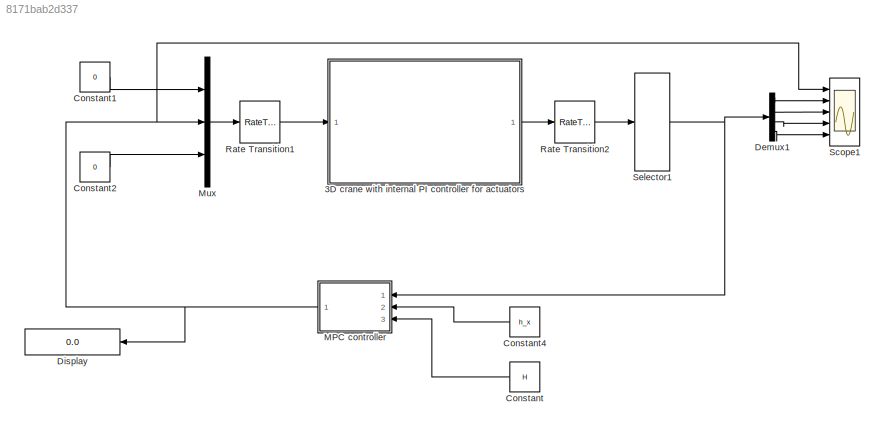
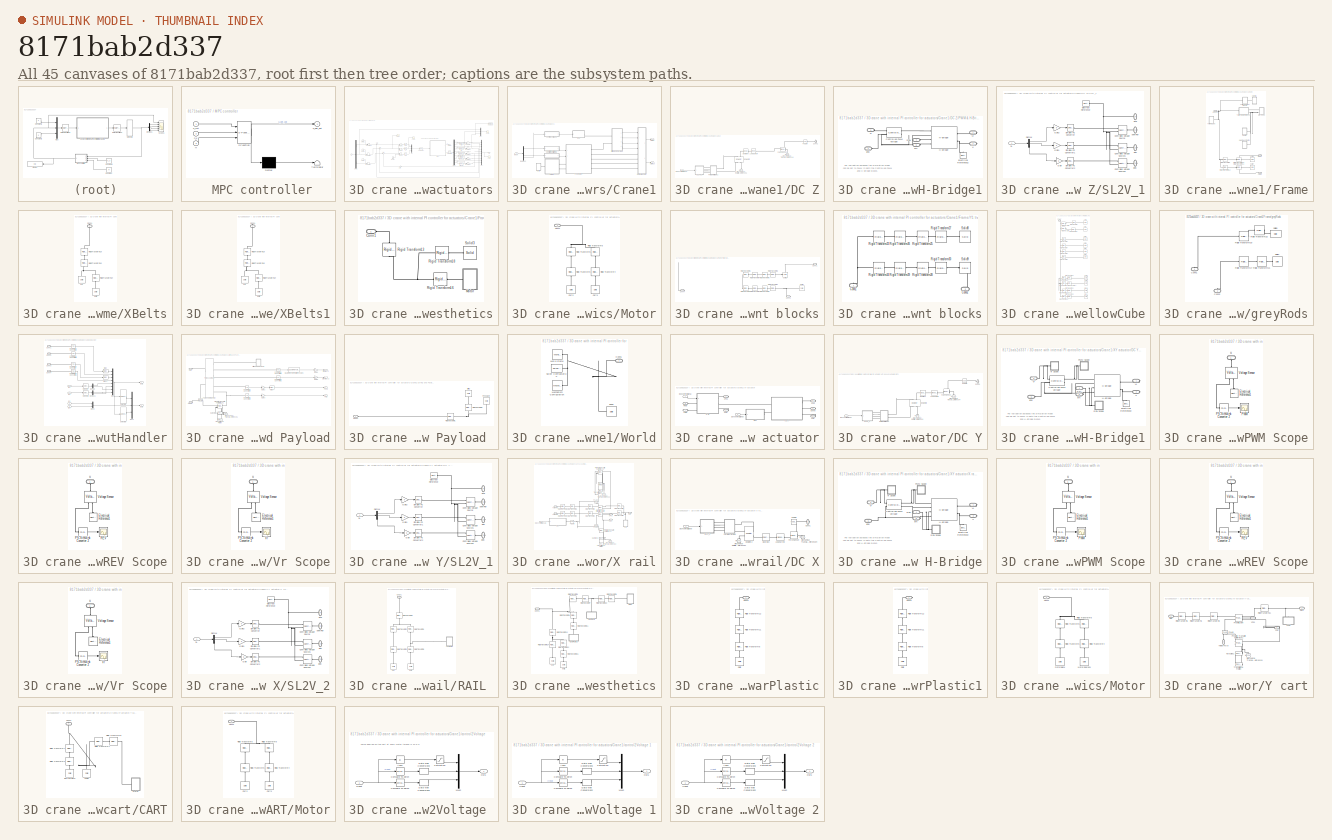
[diagram: thumbnail index - all 45 canvases of the model, root first then tree order]
MODEL slx_8171bab2d337
KIND model
CONFIG AbsTol = auto
CONFIG FixedStep = auto
CONFIG MaxStep = auto
CONFIG MinStep = auto
CONFIG RelTol = 1e-3
CONFIG SampleTimeConstraint = Unconstrained
CONFIG Solver = ode15s
CONFIG SolverMode = Auto
CONFIG SolverName = ode15s
CONFIG StartTime = 0.0
CONFIG StopTime = T
BLOCK [SubSystem]  MPC controller
  ErrorFcn = Stateflow.Translate.translate
  PermitHierarchicalResolution = ExplicitOnly
  Ports = [3, 1]
  RequestExecContextInheritance = off
  SFBlockType = MATLAB Function
  TreatAsAtomicUnit = on
BLOCK [Demux]  MPC controller/ Demux 
  Outputs = 1
  Ports = [1, 1]
BLOCK [S-Function]  MPC controller/ SFunction 
  EnableBusSupport = on
  FunctionName = sf_sfun
  PortCounts = [3 2]
  Ports = [3, 2]
  Tag = Stateflow S-Function SimscapeCrane_StepInput 2
BLOCK [Terminator]  MPC controller/ Terminator 
BLOCK [Inport]  MPC controller/H
  IconDisplay = Port number
  Port = 3
BLOCK [Inport]  MPC controller/h_x
  IconDisplay = Port number
  Port = 2
BLOCK [Outport]  MPC controller/u_opt_out
  IconDisplay = Port number
BLOCK [Inport]  MPC controller/x_init
  IconDisplay = Port number
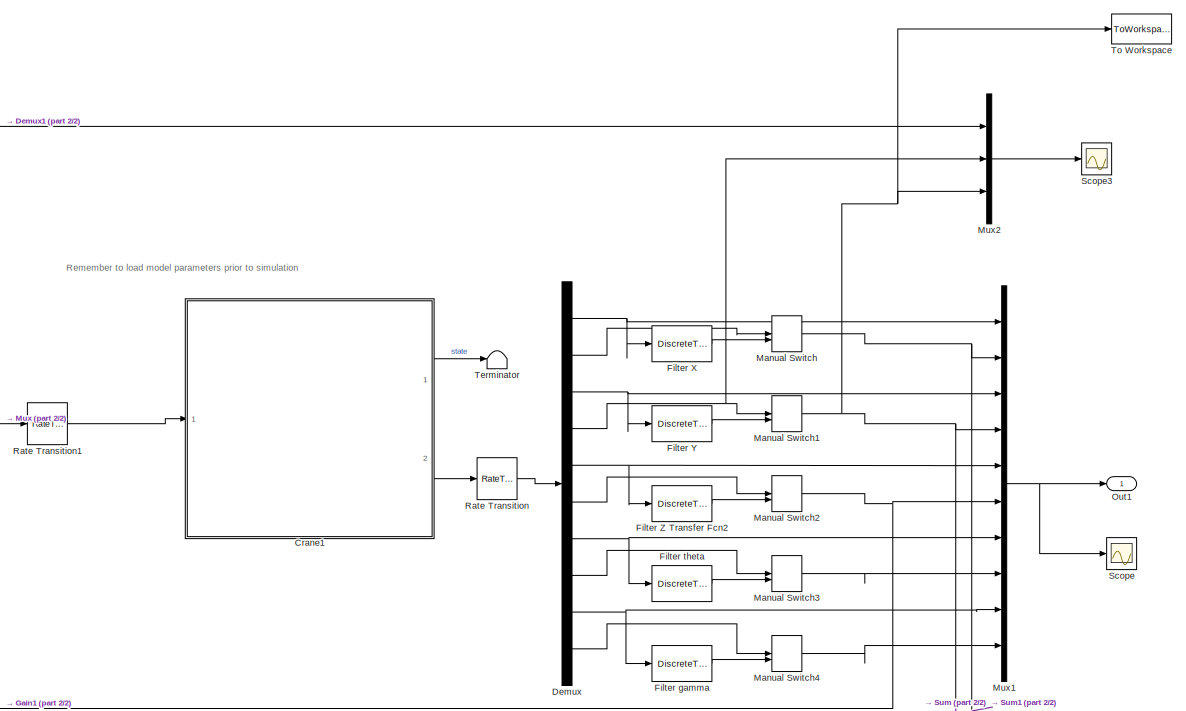
[diagram: 3D crane with internal PI controller for actuators - part 1/2, right side, full height]
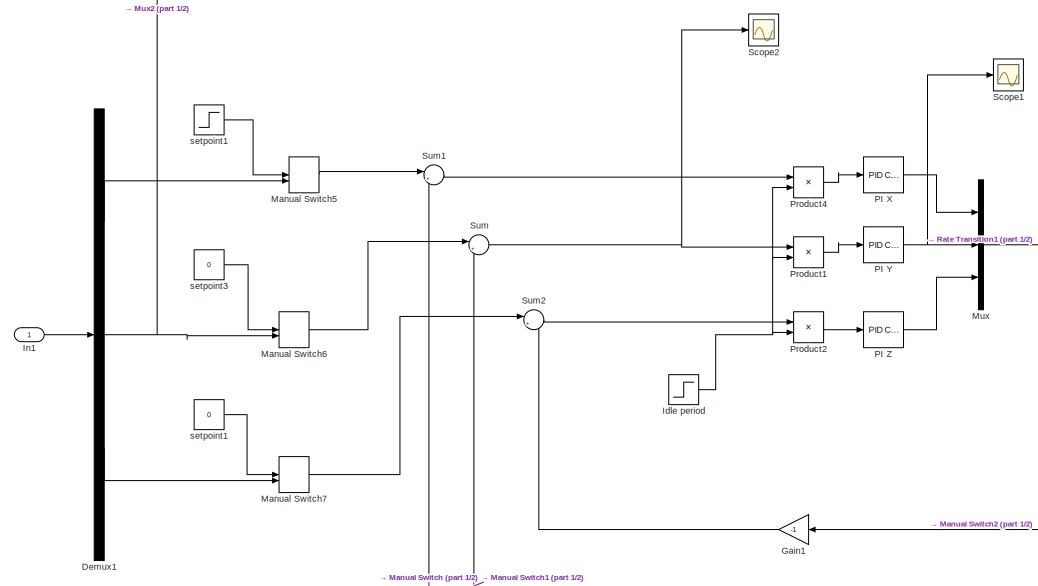
[diagram: 3D crane with internal PI controller for actuators - part 2/2, middle left region]
BLOCK [SubSystem] 3D crane with internal PI controller for actuators
  Ports = [1, 1]
  RequestExecContextInheritance = off
BLOCK [Step] 3D crane with internal PI controller for actuators/ setpoint1
  After = -0.05
  SampleTime = 0
  Time = 1.5
BLOCK [SubSystem] 3D crane with internal PI controller for actuators/Crane1
  Ports = [1, 2]
  RequestExecContextInheritance = off
BLOCK [SubSystem] 3D crane with internal PI controller for actuators/Crane1/DC Z
  Ports = [1, 0, 0, 0, 0, 0, 1]
  RequestExecContextInheritance = off
BLOCK [Reference] 3D crane with internal PI controller for actuators/Crane1/DC Z/ Lead Screw  REF=fl_lib/Mechanical/Mechanisms/Wheel and Axle
  ClassName = wheel_axle
  ComponentPath = foundation.mechanical.mechanisms.wheel_axle
  ComponentVariantNames = wheel_axle
  ComponentVariants = foundation.mechanical.mechanisms.wheel_axle
  LogSimulationData = off
  Ports = [0, 0, 0, 0, 0, 1, 1]
  R = 6
  R_unit = cm
  SchemaVersion = 1
  SourceBlock = fl_lib/Mechanical/Mechanisms/Wheel and Axle
  SourceFile = foundation.mechanical.mechanisms.wheel_axle
  SourceType = Wheel and Axle
  f = 0
  f_priority = High
  f_specify = off
  f_unit = N
  or = 1
  or_unit = 1
  orient = 1
  orient_unit = 1
  t = 0
  t_priority = High
  t_specify = off
  t_unit = N*m
BLOCK [PMIOPort] 3D crane with internal PI controller for actuators/Crane1/DC Z/Conn1
  Port = 1
  Side = Right
BLOCK [Reference] 3D crane with internal PI controller for actuators/Crane1/DC Z/DC Motor2  REF=elec_lib/Actuators & Drivers/Rotational Actuators/DC Motor
  ClassName = Simscape variant
  ComponentPath = elec.actuators.rotational.dc_motor
  ComponentVariantNames = No thermal port, Show thermal port
  ComponentVariants = elec.actuators.rotational.dc_motor, elec.actuators.rotational.dc_motor_thermal
  J = 0.01
  J_unit = g*cm^2
  Ki = 6.876e-4
  Ki_unit = N*m/A
  Kv = 7.2e-5
  Kv_unit = V/rpm
  La = 1.2e-5
  La_unit = H
  LogSimulationData = off
  P_rated = 0.08
  P_rated_unit = W
  Ports = [0, 0, 0, 0, 0, 2, 2]
  Ra = 3.9
  Ra_unit = Ohm
  SchemaVersion = 1
  SourceBlock = elec_lib/Actuators & Drivers/Rotational Actuators/DC Motor
  SourceFile = elec.actuators.rotational.dc_motor
  SourceType = DC Motor
  T_stall = 10000
  T_stall_unit = mN*m
  Tmeas = 25
  Tmeas_unit = C
  V_i_noload = 1.5
  V_i_noload_unit = V
  V_rated = 24
  V_rated_unit = V
  alpha = 0.00393
  alpha_unit = 1/K
  emf_or_torque = 1
  emf_or_torque_unit = 1
  i_noload = 0
  i_noload_unit = A
  initial_temperature = 25
  initial_temperature_unit = C
  lam = 0
  lam_param = 1
  lam_param_unit = 1
  lam_unit = N*m/(rad/s)
  parameterization = 2
  parameterization_unit = 1
  speed0 = 0
  speed0_unit = rpm
  thermal_mass = 100
  thermal_mass_unit = J/K
  w_max = 190
  w_max_unit = rpm
  w_rated = 190
  w_rated_unit = rpm
BLOCK [Inport] 3D crane with internal PI controller for actuators/Crane1/DC Z/DCZcontrolSignal
  IconDisplay = Port number
BLOCK [Reference] 3D crane with internal PI controller for actuators/Crane1/DC Z/Force Sensor  REF=fl_lib/Mechanical/Mechanical Sensors/Ideal Force Sensor
  ClassName = force
  ComponentPath = foundation.mechanical.sensors.force
  ComponentVariantNames = force
  ComponentVariants = foundation.mechanical.sensors.force
  LogSimulationData = off
  Ports = [0, 0, 0, 0, 0, 1, 2]
  SchemaVersion = 1
  SourceBlock = fl_lib/Mechanical/Mechanical Sensors/Ideal Force Sensor
  SourceFile = foundation.mechanical.sensors.force
  SourceType = Ideal Force Sensor
BLOCK [Reference] 3D crane with internal PI controller for actuators/Crane1/DC Z/Gear Box  REF=fl_lib/Mechanical/Mechanisms/Gear Box
  ClassName = gear_box
  ComponentPath = foundation.mechanical.mechanisms.gear_box
  ComponentVariantNames = gear_box
  ComponentVariants = foundation.mechanical.mechanisms.gear_box
  LogSimulationData = off
  Ports = [0, 0, 0, 0, 0, 1, 1]
  SchemaVersion = 1
  SourceBlock = fl_lib/Mechanical/Mechanisms/Gear Box
  SourceFile = foundation.mechanical.mechanisms.gear_box
  SourceType = Gear Box
  Tag = Factory Generic
  ratio = 1/30
  ratio_unit = 1
  t_in = 0
  t_in_priority = High
  t_in_specify = off
  t_in_unit = N*m
  t_out = 0
  t_out_priority = High
  t_out_specify = off
  t_out_unit = N*m
BLOCK [Reference] 3D crane with internal PI controller for actuators/Crane1/DC Z/Mechanical Rotational Reference1  REF=fl_lib/Mechanical/Rotational Elements/Mechanical
Rotational Reference
  ClassName = reference
  ComponentPath = foundation.mechanical.rotational.reference
  ComponentVariantNames = reference
  ComponentVariants = foundation.mechanical.rotational.reference
  LogSimulationData = off
  Ports = [0, 0, 0, 0, 0, 1]
  SchemaVersion = 1
  SourceBlock = fl_lib/Mechanical/Rotational Elements/Mechanical\nRotational Reference
  SourceFile = foundation.mechanical.rotational.reference
  SourceType = Mechanical\nRotational Reference
BLOCK [Reference] 3D crane with internal PI controller for actuators/Crane1/DC Z/Mechanical Translational Reference4  REF=fl_lib/Mechanical/Translational
Elements/Mechanical
Translational
Reference
  ClassName = reference
  ComponentPath = foundation.mechanical.translational.reference
  ComponentVariantNames = reference
  ComponentVariants = foundation.mechanical.translational.reference
  LogSimulationData = off
  Ports = [0, 0, 0, 0, 0, 1]
  SchemaVersion = 1
  SourceBlock = fl_lib/Mechanical/Translational\nElements/Mechanical\nTranslational\nReference
  SourceFile = foundation.mechanical.translational.reference
  SourceType = Mechanical\nTranslational\nReference
BLOCK [Reference] 3D crane with internal PI controller for actuators/Crane1/DC Z/PS Gain  REF=fl_lib/Physical Signals/Functions/PS Gain
  ClassName = gain
  ComponentPath = foundation.physical_signal.functions.gain
  ComponentVariantNames = gain
  ComponentVariants = foundation.physical_signal.functions.gain
  LogSimulationData = off
  Ports = [0, 0, 0, 0, 0, 1, 1]
  SchemaVersion = 1
  SourceBlock = fl_lib/Physical Signals/Functions/PS Gain
  SourceFile = foundation.physical_signal.functions.gain
  SourceType = PS Gain
  gain = -Uz
  gain_unit = 1
BLOCK [SubSystem] 3D crane with internal PI controller for actuators/Crane1/DC Z/PWM & H-Bridge1
  Ports = [0, 0, 0, 0, 0, 4, 2]
  RequestExecContextInheritance = off
BLOCK [Reference] 3D crane with internal PI controller for actuators/Crane1/DC Z/PWM & H-Bridge1/Controlled PWM Voltage  REF=elec_lib/Actuators & Drivers/Drivers/Controlled PWM
Voltage
  ClassName = controlled_pwm
  ComponentPath = elec.actuators.drivers.controlled_pwm
  ComponentVariantNames = controlled_pwm
  ComponentVariants = elec.actuators.drivers.controlled_pwm
  F = 10000
  F_unit = Hz
  LogSimulationData = off
  Ports = [0, 0, 0, 0, 0, 2, 2]
  SchemaVersion = 1
  SourceBlock = elec_lib/Actuators & Drivers/Drivers/Controlled PWM\nVoltage
  SourceFile = elec.actuators.drivers.controlled_pwm
  SourceType = Controlled PWM\nVoltage
  TD = 0
  TD_unit = s
  Vm = 5
  Vm_unit = V
  Vmax = 5
  Vmax_unit = V
  Vmin = 0
  Vmin_unit = V
  event_type = 1
  event_type_unit = 1
  pulse_width_offset = 0
  pulse_width_offset_unit = s
  pwm_or_av = 2
  pwm_or_av_unit = 1
  sample_time = 1e-6
  sample_time_unit = s
BLOCK [Reference] 3D crane with internal PI controller for actuators/Crane1/DC Z/PWM & H-Bridge1/Electrical Reference2  REF=fl_lib/Electrical/Electrical Elements/Electrical Reference
  ClassName = reference_electrical
  ComponentPath = foundation.electrical.elements.reference
  ComponentVariantNames = reference
  ComponentVariants = foundation.electrical.elements.reference
  LogSimulationData = off
  Ports = [0, 0, 0, 0, 0, 1]
  SchemaVersion = 1
  SourceBlock = fl_lib/Electrical/Electrical Elements/Electrical Reference
  SourceFile = foundation.electrical.elements.reference
  SourceType = Electrical Reference
BLOCK [Reference] 3D crane with internal PI controller for actuators/Crane1/DC Z/PWM & H-Bridge1/H-Bridge  REF=elec_lib/Actuators & Drivers/Drivers/H-Bridge
  ClassName = h_bridge
  ComponentPath = elec.actuators.drivers.h_bridge
  ComponentVariantNames = No thermal port, Show thermal port
  ComponentVariants = elec.actuators.drivers.h_bridge, elec.actuators.drivers.h_bridge_thermal
  Don = 0.1
  Don2 = 0.05
  Don2_unit = Ohm
  Don_unit = Ohm
  F = 10
  F_unit = kHz
  Lload = 1e-5
  Lload_unit = H
  LogSimulationData = off
  Ports = [0, 0, 0, 0, 0, 4, 2]
  Rload = 10
  Rload_unit = Ohm
  Ron = 0.1
  Ron2 = 0.1
  Ron2_unit = Ohm
  Ron_unit = Ohm
  SchemaVersion = 1
  SourceBlock = elec_lib/Actuators & Drivers/Drivers/H-Bridge
  SourceFile = elec.actuators.drivers.h_bridge
  SourceType = H-Bridge
  Tmeas = 298.15
  Tmeas2 = 398.15
  Tmeas2_unit = K
  Tmeas_unit = K
  Vbrake = 2.5
  Vbrake_unit = V
  Venable = 2.5
  Venable_unit = V
  Vm = 24
  Vm_unit = V
  Vmax = 5
  Vmax_unit = V
  Vreverse = 2.5
  Vreverse_unit = V
  discontinuous = 0
  discontinuous_unit = 1
  freewheeling_mode = 1
  freewheeling_mode_disc = 1
  freewheeling_mode_disc_unit = 1
  freewheeling_mode_unit = 1
  initial_temperature = 298.15
  initial_temperature_unit = K
  pwm_or_av = 2
  pwm_or_av_unit = 1
  thermal_mass = 100
  thermal_mass_unit = J/K
BLOCK [PMIOPort] 3D crane with internal PI controller for actuators/Crane1/DC Z/PWM & H-Bridge1/REV
  Port = 4
  Side = Left
BLOCK [PMIOPort] 3D crane with internal PI controller for actuators/Crane1/DC Z/PWM & H-Bridge1/V+
  Port = 1
  Side = Right
BLOCK [PMIOPort] 3D crane with internal PI controller for actuators/Crane1/DC Z/PWM & H-Bridge1/V-
  Port = 2
  Side = Right
BLOCK [PMIOPort] 3D crane with internal PI controller for actuators/Crane1/DC Z/PWM & H-Bridge1/Vr
  Port = 3
  Side = Left
BLOCK [PMIOPort] 3D crane with internal PI controller for actuators/Crane1/DC Z/PWM & H-Bridge1/brk 
  Port = 5
  Side = Left
BLOCK [PMIOPort] 3D crane with internal PI controller for actuators/Crane1/DC Z/PWM & H-Bridge1/gnd 
  Port = 6
  Side = Left
BLOCK [SubSystem] 3D crane with internal PI controller for actuators/Crane1/DC Z/SL2V_1
  Ports = [1, 0, 0, 0, 0, 0, 4]
  RequestExecContextInheritance = off
BLOCK [PMIOPort] 3D crane with internal PI controller for actuators/Crane1/DC Z/SL2V_1/BRK
  Port = 3
  Side = Right
BLOCK [Reference] 3D crane with internal PI controller for actuators/Crane1/DC Z/SL2V_1/Controlled Voltage Source  REF=fl_lib/Electrical/Electrical Sources/Controlled Voltage
Source
  ClassName = controlled_voltage_source
  ComponentPath = foundation.electrical.sources.controlled_voltage
  ComponentVariantNames = controlled_voltage
  ComponentVariants = foundation.electrical.sources.controlled_voltage
  LogSimulationData = off
  Ports = [0, 0, 0, 0, 0, 1, 2]
  SchemaVersion = 1
  SourceBlock = fl_lib/Electrical/Electrical Sources/Controlled Voltage\nSource
  SourceFile = foundation.electrical.sources.controlled_voltage
  SourceType = Controlled Voltage\nSource
BLOCK [Reference] 3D crane with internal PI controller for actuators/Crane1/DC Z/SL2V_1/Controlled Voltage Source1  REF=fl_lib/Electrical/Electrical Sources/Controlled Voltage
Source
  ClassName = controlled_voltage_source
  ComponentPath = foundation.electrical.sources.controlled_voltage
  ComponentVariantNames = controlled_voltage
  ComponentVariants = foundation.electrical.sources.controlled_voltage
  LogSimulationData = off
  Ports = [0, 0, 0, 0, 0, 1, 2]
  SchemaVersion = 1
  SourceBlock = fl_lib/Electrical/Electrical Sources/Controlled Voltage\nSource
  SourceFile = foundation.electrical.sources.controlled_voltage
  SourceType = Controlled Voltage\nSource
BLOCK [Reference] 3D crane with internal PI controller for actuators/Crane1/DC Z/SL2V_1/Controlled Voltage Source2  REF=fl_lib/Electrical/Electrical Sources/Controlled Voltage
Source
  ClassName = controlled_voltage_source
  ComponentPath = foundation.electrical.sources.controlled_voltage
  ComponentVariantNames = controlled_voltage
  ComponentVariants = foundation.electrical.sources.controlled_voltage
  LogSimulationData = off
  Ports = [0, 0, 0, 0, 0, 1, 2]
  SchemaVersion = 1
  SourceBlock = fl_lib/Electrical/Electrical Sources/Controlled Voltage\nSource
  SourceFile = foundation.electrical.sources.controlled_voltage
  SourceType = Controlled Voltage\nSource
BLOCK [Demux] 3D crane with internal PI controller for actuators/Crane1/DC Z/SL2V_1/Demux
  DisplayOption = bar
  Outputs = 3
  Ports = [1, 3]
BLOCK [Reference] 3D crane with internal PI controller for actuators/Crane1/DC Z/SL2V_1/Electrical Reference  REF=fl_lib/Electrical/Electrical Elements/Electrical Reference
  ClassName = reference_electrical
  ComponentPath = foundation.electrical.elements.reference
  ComponentVariantNames = reference
  ComponentVariants = foundation.electrical.elements.reference
  LogSimulationData = off
  Ports = [0, 0, 0, 0, 0, 1]
  SchemaVersion = 1
  SourceBlock = fl_lib/Electrical/Electrical Elements/Electrical Reference
  SourceFile = foundation.electrical.elements.reference
  SourceType = Electrical Reference
BLOCK [Gain] 3D crane with internal PI controller for actuators/Crane1/DC Z/SL2V_1/Gain
  Gain = 5
  OutDataTypeStr = Inherit: Inherit via internal rule
  ParamDataTypeStr = Inherit: Inherit via internal rule
  SaturateOnIntegerOverflow = off
BLOCK [Gain] 3D crane with internal PI controller for actuators/Crane1/DC Z/SL2V_1/Gain1
  Gain = 5
  OutDataTypeStr = Inherit: Inherit via internal rule
  ParamDataTypeStr = Inherit: Inherit via internal rule
  SaturateOnIntegerOverflow = off
BLOCK [Gain] 3D crane with internal PI controller for actuators/Crane1/DC Z/SL2V_1/Gain2
  Gain = 5
  OutDataTypeStr = Inherit: Inherit via internal rule
  ParamDataTypeStr = Inherit: Inherit via internal rule
  SaturateOnIntegerOverflow = off
BLOCK [PMIOPort] 3D crane with internal PI controller for actuators/Crane1/DC Z/SL2V_1/Rev
  Port = 2
  Side = Right
BLOCK [Inport] 3D crane with internal PI controller for actuators/Crane1/DC Z/SL2V_1/SL
  IconDisplay = Port number
BLOCK [Reference] 3D crane with internal PI controller for actuators/Crane1/DC Z/SL2V_1/Simulink-PS Converter  REF=nesl_utility/Simulink-PS
Converter
  AffineConversion = off
  Frequencies = []
  InputFilterTimeConstant = .001
  InputFiltering = off
  LeftPortType = input
  NoiseDistribution = none
  NoiseParameters = []
  PhysicalDomain = network_engine_domain
  Ports = [1, 0, 0, 0, 0, 0, 1]
  PseudoPeriodic = off
  RightPortType = output
  SimscapeFilterOrder = 1
  SourceBlock = nesl_utility/Simulink-PS\nConverter
  SourceType = Simulink-PS\nConverter
  SubClassName = ps_input
  UdotUserProvided = 0
  Unit = 1
BLOCK [Reference] 3D crane with internal PI controller for actuators/Crane1/DC Z/SL2V_1/Simulink-PS Converter1  REF=nesl_utility/Simulink-PS
Converter
  AffineConversion = off
  Frequencies = []
  InputFilterTimeConstant = .001
  InputFiltering = off
  LeftPortType = input
  NoiseDistribution = none
  NoiseParameters = []
  PhysicalDomain = network_engine_domain
  Ports = [1, 0, 0, 0, 0, 0, 1]
  PseudoPeriodic = off
  RightPortType = output
  SimscapeFilterOrder = 1
  SourceBlock = nesl_utility/Simulink-PS\nConverter
  SourceType = Simulink-PS\nConverter
  SubClassName = ps_input
  UdotUserProvided = 0
  Unit = 1
BLOCK [Reference] 3D crane with internal PI controller for actuators/Crane1/DC Z/SL2V_1/Simulink-PS Converter2  REF=nesl_utility/Simulink-PS
Converter
  AffineConversion = off
  Frequencies = []
  InputFilterTimeConstant = .001
  InputFiltering = off
  LeftPortType = input
  NoiseDistribution = none
  NoiseParameters = []
  PhysicalDomain = network_engine_domain
  Ports = [1, 0, 0, 0, 0, 0, 1]
  PseudoPeriodic = off
  RightPortType = output
  SimscapeFilterOrder = 1
  SourceBlock = nesl_utility/Simulink-PS\nConverter
  SourceType = Simulink-PS\nConverter
  SubClassName = ps_input
  UdotUserProvided = 0
  Unit = 1
BLOCK [PMIOPort] 3D crane with internal PI controller for actuators/Crane1/DC Z/SL2V_1/gnd 
  Port = 4
  Side = Right
BLOCK [PMIOPort] 3D crane with internal PI controller for actuators/Crane1/DC Z/SL2V_1/pwmRef
  Port = 1
  Side = Right
BLOCK [Demux] 3D crane with internal PI controller for actuators/Crane1/Demux2
  DisplayOption = bar
  Outputs = 3
  Ports = [1, 3]
BLOCK [SubSystem] 3D crane with internal PI controller for actuators/Crane1/Frame
  Ports = [0, 0, 0, 0, 0, 1, 2]
  RequestExecContextInheritance = off
BLOCK [PMIOPort] 3D crane with internal PI controller for actuators/Crane1/Frame/Conn3
  Port = 3
  Side = Left
BLOCK [PMIOPort] 3D crane with internal PI controller for actuators/Crane1/Frame/LRail
  Port = 2
  Side = Right
BLOCK [PMIOPort] 3D crane with internal PI controller for actuators/Crane1/Frame/RRail
  Port = 1
  Side = Right
BLOCK [Reference] 3D crane with internal PI controller for actuators/Crane1/Frame/Rigid Transform10  REF=sm_lib/Frames and
Transforms/Rigid
Transform
  BaseAlignAxisA = +Y
  BaseAlignAxisB = +Z
  BlockFunction = simmechanics.library.frames_transforms.rigid_transform
  ClassName = RigidTransform
  FollAlignAxisA = +X
  FollAlignAxisB = +Y
  LogSimulationData = off
  Ports = [0, 0, 0, 0, 0, 1, 1]
  RotationAngle = 90
  RotationAngleUnits = deg
  RotationArbitraryAxis = [0 0 1]
  RotationMatrix = [1 0 0; 0 1 0; 0 0 1]
  RotationMethod = StandardAxis
  RotationStandardAxis = +Y
  SourceBlock = sm_lib/Frames and\nTransforms/Rigid\nTransform
  SourceType = Rigid\nTransform
  TranslationCartesianOffset = [-0.5 1  0]
  TranslationLengthUnit = m
  TranslationMethod = None
  TranslationROffset = 0
  TranslationROffsetUnits = m
  TranslationStandardAxis = +Z
  TranslationStandardOffset = 0
  TranslationThetaOffset = 0
  TranslationThetaOffsetUnits = deg
  TranslationZOffset = 0
  TranslationZOffsetUnits = m
BLOCK [Reference] 3D crane with internal PI controller for actuators/Crane1/Frame/Rigid Transform11  REF=sm_lib/Frames and
Transforms/Rigid
Transform
  BaseAlignAxisA = +Y
  BaseAlignAxisB = +Z
  BlockFunction = simmechanics.library.frames_transforms.rigid_transform
  ClassName = RigidTransform
  FollAlignAxisA = +X
  FollAlignAxisB = +Y
  LogSimulationData = off
  Ports = [0, 0, 0, 0, 0, 1, 1]
  RotationAngle = 90
  RotationAngleUnits = deg
  RotationArbitraryAxis = [0 0 1]
  RotationMatrix = [1 0 0; 0 1 0; 0 0 1]
  RotationMethod = StandardAxis
  RotationStandardAxis = +Y
  SourceBlock = sm_lib/Frames and\nTransforms/Rigid\nTransform
  SourceType = Rigid\nTransform
  TranslationCartesianOffset = [-0.5 1  0]
  TranslationLengthUnit = m
  TranslationMethod = None
  TranslationROffset = 0
  TranslationROffsetUnits = m
  TranslationStandardAxis = +Z
  TranslationStandardOffset = 0
  TranslationThetaOffset = 0
  TranslationThetaOffsetUnits = deg
  TranslationZOffset = 0
  TranslationZOffsetUnits = m
BLOCK [Reference] 3D crane with internal PI controller for actuators/Crane1/Frame/Rigid Transform12  REF=sm_lib/Frames and
Transforms/Rigid
Transform
  BaseAlignAxisA = +Y
  BaseAlignAxisB = +Z
  BlockFunction = simmechanics.library.frames_transforms.rigid_transform
  ClassName = RigidTransform
  FollAlignAxisA = +X
  FollAlignAxisB = +Y
  LogSimulationData = off
  Ports = [0, 0, 0, 0, 0, 1, 1]
  RotationAngle = 90
  RotationAngleUnits = deg
  RotationArbitraryAxis = [0 0 1]
  RotationMatrix = [1 0 0; 0 1 0; 0 0 1]
  RotationMethod = None
  RotationStandardAxis = +X
  SourceBlock = sm_lib/Frames and\nTransforms/Rigid\nTransform
  SourceType = Rigid\nTransform
  TranslationCartesianOffset = [0 -0.5 1]
  TranslationLengthUnit = m
  TranslationMethod = Cartesian
  TranslationROffset = 0
  TranslationROffsetUnits = m
  TranslationStandardAxis = +Z
  TranslationStandardOffset = 0
  TranslationThetaOffset = 0
  TranslationThetaOffsetUnits = deg
  TranslationZOffset = 0
  TranslationZOffsetUnits = m
BLOCK [Reference] 3D crane with internal PI controller for actuators/Crane1/Frame/Rigid Transform9  REF=sm_lib/Frames and
Transforms/Rigid
Transform
  BaseAlignAxisA = +Y
  BaseAlignAxisB = +Z
  BlockFunction = simmechanics.library.frames_transforms.rigid_transform
  ClassName = RigidTransform
  FollAlignAxisA = +X
  FollAlignAxisB = +Y
  LogSimulationData = off
  Ports = [0, 0, 0, 0, 0, 1, 1]
  RotationAngle = 90
  RotationAngleUnits = deg
  RotationArbitraryAxis = [0 0 1]
  RotationMatrix = [1 0 0; 0 1 0; 0 0 1]
  RotationMethod = None
  RotationStandardAxis = +X
  SourceBlock = sm_lib/Frames and\nTransforms/Rigid\nTransform
  SourceType = Rigid\nTransform
  TranslationCartesianOffset = [0 0.5 1]
  TranslationLengthUnit = m
  TranslationMethod = Cartesian
  TranslationROffset = 0
  TranslationROffsetUnits = m
  TranslationStandardAxis = +Z
  TranslationStandardOffset = 0
  TranslationThetaOffset = 0
  TranslationThetaOffsetUnits = deg
  TranslationZOffset = 0
  TranslationZOffsetUnits = m
BLOCK [Reference] 3D crane with internal PI controller for actuators/Crane1/Frame/Solid6  REF=sm_lib/Body Elements/Solid
  BlockFunction = simmechanics.library.body_elements.solid
  BrickDimensionUnits = m
  BrickDimensions = [0.04 0.04 1.04]
  CenterOfMass = [0 0 0]
  CenterOfMassUnits = m
  ClassName = Solid
  CylinderLength = 1
  CylinderLengthUnits = m
  CylinderRadius = 0.02
  CylinderRadiusUnits = m
  Density = 1000
  DensityBased = on
  DensityUnits = kg/(m^3)
  EllipsoidRadii = [1 1 1]
  EllipsoidRadiiUnits = m
  ExtGeomFileType = STL
  ExtGeomFileUnits = m
  ExtrusionCrossSection = [1 1; -1 1; -1 -1; 1 -1]
  ExtrusionCrossSectionUnits = m
  ExtrusionLength = 1
  ExtrusionLengthUnits = m
  GeometryShape = Brick
  GraphicAmbientColor = [0.15 0.15 0.15 1.0]
  GraphicDiffuseColor = [1.0 1.0 0.2]
  GraphicEmissiveColor = [0.0 0.0 0.0 1.0]
  GraphicOpacity = 1.0
  GraphicShininess = 75
  GraphicSpecularColor = [0.5 0.5 0.5 1.0]
  GraphicType = FromGeometry
  GraphicVisPropType = SimpleVisualProperties
  InertiaType = CalculateFromGeometry
  LogSimulationData = off
  MarkerShape = Sphere
  MarkerSize = 10
  MarkerSizeUnits = m
  Mass = 1
  MassUnits = kg
  MomentsOfInertia = [1 1 1]
  MomentsOfInertiaUnits = kg*m^2
  PolygonNumSides = 3
  PolygonOuterRadius = 1
  PolygonOuterRadiusUnits = m
  Ports = [0, 0, 0, 0, 0, 0, 1]
  ProductsOfInertia = [0 0 0]
  ProductsOfInertiaUnits = kg*m^2
  RectangleSize = [1 1]
  RectangleSizeUnits = m
  RevolutionAngle = 180
  RevolutionAngleUnits = deg
  RevolutionCrossSection = [1 1; 1 -1; 2 -1; 2 1]
  RevolutionCrossSectionUnits = m
  RevolutionExtent = Full
  SourceBlock = sm_lib/Body Elements/Solid
  SourceType = Solid
  SphereRadius = 1
  SphereRadiusUnits = m
BLOCK [Reference] 3D crane with internal PI controller for actuators/Crane1/Frame/Solid7  REF=sm_lib/Body Elements/Solid
  BlockFunction = simmechanics.library.body_elements.solid
  BrickDimensionUnits = m
  BrickDimensions = [0.04 0.04 1.04]
  CenterOfMass = [0 0 0]
  CenterOfMassUnits = m
  ClassName = Solid
  CylinderLength = 1
  CylinderLengthUnits = m
  CylinderRadius = 0.02
  CylinderRadiusUnits = m
  Density = 1000
  DensityBased = on
  DensityUnits = kg/(m^3)
  EllipsoidRadii = [1 1 1]
  EllipsoidRadiiUnits = m
  ExtGeomFileType = STL
  ExtGeomFileUnits = m
  ExtrusionCrossSection = [1 1; -1 1; -1 -1; 1 -1]
  ExtrusionCrossSectionUnits = m
  ExtrusionLength = 1
  ExtrusionLengthUnits = m
  GeometryShape = Brick
  GraphicAmbientColor = [0.15 0.15 0.15 1.0]
  GraphicDiffuseColor = [1.0 1.0 0.2]
  GraphicEmissiveColor = [0.0 0.0 0.0 1.0]
  GraphicOpacity = 1.0
  GraphicShininess = 75
  GraphicSpecularColor = [0.5 0.5 0.5 1.0]
  GraphicType = FromGeometry
  GraphicVisPropType = SimpleVisualProperties
  InertiaType = CalculateFromGeometry
  LogSimulationData = off
  MarkerShape = Sphere
  MarkerSize = 10
  MarkerSizeUnits = m
  Mass = 1
  MassUnits = kg
  MomentsOfInertia = [1 1 1]
  MomentsOfInertiaUnits = kg*m^2
  PolygonNumSides = 3
  PolygonOuterRadius = 1
  PolygonOuterRadiusUnits = m
  Ports = [0, 0, 0, 0, 0, 0, 1]
  ProductsOfInertia = [0 0 0]
  ProductsOfInertiaUnits = kg*m^2
  RectangleSize = [1 1]
  RectangleSizeUnits = m
  RevolutionAngle = 180
  RevolutionAngleUnits = deg
  RevolutionCrossSection = [1 1; 1 -1; 2 -1; 2 1]
  RevolutionCrossSectionUnits = m
  RevolutionExtent = Full
  SourceBlock = sm_lib/Body Elements/Solid
  SourceType = Solid
  SphereRadius = 1
  SphereRadiusUnits = m
BLOCK [SubSystem] 3D crane with internal PI controller for actuators/Crane1/Frame/XBelts
  Ports = [0, 0, 0, 0, 0, 0, 1]
  RequestExecContextInheritance = off
BLOCK [PMIOPort] 3D crane with internal PI controller for actuators/Crane1/Frame/XBelts/Conn1
  Port = 1
  Side = Right
BLOCK [Reference] 3D crane with internal PI controller for actuators/Crane1/Frame/XBelts/Rigid Transform14  REF=sm_lib/Frames and
Transforms/Rigid
Transform
  BaseAlignAxisA = +Y
  BaseAlignAxisB = +Z
  BlockFunction = simmechanics.library.frames_transforms.rigid_transform
  ClassName = RigidTransform
  FollAlignAxisA = +X
  FollAlignAxisB = +Y
  LogSimulationData = off
  Ports = [0, 0, 0, 0, 0, 1, 1]
  RotationAngle = 90
  RotationAngleUnits = deg
  RotationArbitraryAxis = [0 0 1]
  RotationMatrix = [1 0 0; 0 1 0; 0 0 1]
  RotationMethod = None
  RotationStandardAxis = +Y
  SourceBlock = sm_lib/Frames and\nTransforms/Rigid\nTransform
  SourceType = Rigid\nTransform
  TranslationCartesianOffset = [-0.5 0  0]
  TranslationLengthUnit = m
  TranslationMethod = StandardAxis
  TranslationROffset = 0
  TranslationROffsetUnits = m
  TranslationStandardAxis = -Z
  TranslationStandardOffset = 0.06
  TranslationThetaOffset = 0
  TranslationThetaOffsetUnits = deg
  TranslationZOffset = 0
  TranslationZOffsetUnits = m
BLOCK [Reference] 3D crane with internal PI controller for actuators/Crane1/Frame/XBelts/Rigid Transform15  REF=sm_lib/Frames and
Transforms/Rigid
Transform
  BaseAlignAxisA = +Y
  BaseAlignAxisB = +Z
  BlockFunction = simmechanics.library.frames_transforms.rigid_transform
  ClassName = RigidTransform
  FollAlignAxisA = +X
  FollAlignAxisB = +Y
  LogSimulationData = off
  Ports = [0, 0, 0, 0, 0, 1, 1]
  RotationAngle = 90
  RotationAngleUnits = deg
  RotationArbitraryAxis = [0 0 1]
  RotationMatrix = [1 0 0; 0 1 0; 0 0 1]
  RotationMethod = None
  RotationStandardAxis = +Y
  SourceBlock = sm_lib/Frames and\nTransforms/Rigid\nTransform
  SourceType = Rigid\nTransform
  TranslationCartesianOffset = [-0.5 0  0]
  TranslationLengthUnit = m
  TranslationMethod = StandardAxis
  TranslationROffset = 0
  TranslationROffsetUnits = m
  TranslationStandardAxis = +Z
  TranslationStandardOffset = 0.02
  TranslationThetaOffset = 0
  TranslationThetaOffsetUnits = deg
  TranslationZOffset = 0
  TranslationZOffsetUnits = m
BLOCK [Reference] 3D crane with internal PI controller for actuators/Crane1/Frame/XBelts/Rigid Transform19  REF=sm_lib/Frames and
Transforms/Rigid
Transform
  BaseAlignAxisA = +Y
  BaseAlignAxisB = +Z
  BlockFunction = simmechanics.library.frames_transforms.rigid_transform
  ClassName = RigidTransform
  FollAlignAxisA = +X
  FollAlignAxisB = +Y
  LogSimulationData = off
  Ports = [0, 0, 0, 0, 0, 1, 1]
  RotationAngle = 90
  RotationAngleUnits = deg
  RotationArbitraryAxis = [0 0 1]
  RotationMatrix = [1 0 0; 0 1 0; 0 0 1]
  RotationMethod = None
  RotationStandardAxis = +Y
  SourceBlock = sm_lib/Frames and\nTransforms/Rigid\nTransform
  SourceType = Rigid\nTransform
  TranslationCartesianOffset = [-0.5 0  0]
  TranslationLengthUnit = m
  TranslationMethod = StandardAxis
  TranslationROffset = 0
  TranslationROffsetUnits = m
  TranslationStandardAxis = +X
  TranslationStandardOffset = 0.43
  TranslationThetaOffset = 0
  TranslationThetaOffsetUnits = deg
  TranslationZOffset = 0
  TranslationZOffsetUnits = m
BLOCK [Reference] 3D crane with internal PI controller for actuators/Crane1/Frame/XBelts/belt  REF=sm_lib/Body Elements/Solid
  BlockFunction = simmechanics.library.body_elements.solid
  BrickDimensionUnits = m
  BrickDimensions = [0.9 0.001 0.001]
  CenterOfMass = [0 0 0]
  CenterOfMassUnits = m
  ClassName = Solid
  CylinderLength = 1
  CylinderLengthUnits = m
  CylinderRadius = 0.02
  CylinderRadiusUnits = m
  Density = 1000
  DensityBased = off
  DensityUnits = kg/(m^3)
  EllipsoidRadii = [1 1 1]
  EllipsoidRadiiUnits = m
  ExtGeomFileType = STL
  ExtGeomFileUnits = m
  ExtrusionCrossSection = [1 1; -1 1; -1 -1; 1 -1]
  ExtrusionCrossSectionUnits = m
  ExtrusionLength = 1
  ExtrusionLengthUnits = m
  GeometryShape = Brick
  GraphicAmbientColor = [0.15 0.15 0.15 1.0]
  GraphicDiffuseColor = [0.0 0.0 0.8]
  GraphicEmissiveColor = [0.0 0.0 0.0 1.0]
  GraphicOpacity = 1.0
  GraphicShininess = 100
  GraphicSpecularColor = [0.5 0.5 0.5 1.0]
  GraphicType = FromGeometry
  GraphicVisPropType = SimpleVisualProperties
  InertiaType = PointMass
  LogSimulationData = off
  MarkerShape = Sphere
  MarkerSize = 10
  MarkerSizeUnits = m
  Mass = 0
  MassUnits = kg
  MomentsOfInertia = [1 1 1]
  MomentsOfInertiaUnits = kg*m^2
  PolygonNumSides = 3
  PolygonOuterRadius = 1
  PolygonOuterRadiusUnits = m
  Ports = [0, 0, 0, 0, 0, 0, 1]
  ProductsOfInertia = [0 0 0]
  ProductsOfInertiaUnits = kg*m^2
  RectangleSize = [1 1]
  RectangleSizeUnits = m
  RevolutionAngle = 180
  RevolutionAngleUnits = deg
  RevolutionCrossSection = [1 1; 1 -1; 2 -1; 2 1]
  RevolutionCrossSectionUnits = m
  RevolutionExtent = Full
  SourceBlock = sm_lib/Body Elements/Solid
  SourceType = Solid
  SphereRadius = 1
  SphereRadiusUnits = m
BLOCK [Reference] 3D crane with internal PI controller for actuators/Crane1/Frame/XBelts/betl2   REF=sm_lib/Body Elements/Solid
  BlockFunction = simmechanics.library.body_elements.solid
  BrickDimensionUnits = m
  BrickDimensions = [0.9 0.001 0.001]
  CenterOfMass = [0 0 0]
  CenterOfMassUnits = m
  ClassName = Solid
  CylinderLength = 1
  CylinderLengthUnits = m
  CylinderRadius = 0.02
  CylinderRadiusUnits = m
  Density = 1000
  DensityBased = off
  DensityUnits = kg/(m^3)
  EllipsoidRadii = [1 1 1]
  EllipsoidRadiiUnits = m
  ExtGeomFileType = STL
  ExtGeomFileUnits = m
  ExtrusionCrossSection = [1 1; -1 1; -1 -1; 1 -1]
  ExtrusionCrossSectionUnits = m
  ExtrusionLength = 1
  ExtrusionLengthUnits = m
  GeometryShape = Brick
  GraphicAmbientColor = [0.15 0.15 0.15 1.0]
  GraphicDiffuseColor = [0.0 0.0 0.8]
  GraphicEmissiveColor = [0.0 0.0 0.0 1.0]
  GraphicOpacity = 1.0
  GraphicShininess = 100
  GraphicSpecularColor = [0.5 0.5 0.5 1.0]
  GraphicType = FromGeometry
  GraphicVisPropType = SimpleVisualProperties
  InertiaType = PointMass
  LogSimulationData = off
  MarkerShape = Sphere
  MarkerSize = 10
  MarkerSizeUnits = m
  Mass = 0
  MassUnits = kg
  MomentsOfInertia = [1 1 1]
  MomentsOfInertiaUnits = kg*m^2
  PolygonNumSides = 3
  PolygonOuterRadius = 1
  PolygonOuterRadiusUnits = m
  Ports = [0, 0, 0, 0, 0, 0, 1]
  ProductsOfInertia = [0 0 0]
  ProductsOfInertiaUnits = kg*m^2
  RectangleSize = [1 1]
  RectangleSizeUnits = m
  RevolutionAngle = 180
  RevolutionAngleUnits = deg
  RevolutionCrossSection = [1 1; 1 -1; 2 -1; 2 1]
  RevolutionCrossSectionUnits = m
  RevolutionExtent = Full
  SourceBlock = sm_lib/Body Elements/Solid
  SourceType = Solid
  SphereRadius = 1
  SphereRadiusUnits = m
BLOCK [SubSystem] 3D crane with internal PI controller for actuators/Crane1/Frame/XBelts1
  Ports = [0, 0, 0, 0, 0, 0, 1]
  RequestExecContextInheritance = off
BLOCK [PMIOPort] 3D crane with internal PI controller for actuators/Crane1/Frame/XBelts1/Conn1
  Port = 1
  Side = Right
BLOCK [Reference] 3D crane with internal PI controller for actuators/Crane1/Frame/XBelts1/Rigid Transform14  REF=sm_lib/Frames and
Transforms/Rigid
Transform
  BaseAlignAxisA = +Y
  BaseAlignAxisB = +Z
  BlockFunction = simmechanics.library.frames_transforms.rigid_transform
  ClassName = RigidTransform
  FollAlignAxisA = +X
  FollAlignAxisB = +Y
  LogSimulationData = off
  Ports = [0, 0, 0, 0, 0, 1, 1]
  RotationAngle = 90
  RotationAngleUnits = deg
  RotationArbitraryAxis = [0 0 1]
  RotationMatrix = [1 0 0; 0 1 0; 0 0 1]
  RotationMethod = None
  RotationStandardAxis = +Y
  SourceBlock = sm_lib/Frames and\nTransforms/Rigid\nTransform
  SourceType = Rigid\nTransform
  TranslationCartesianOffset = [-0.5 0  0]
  TranslationLengthUnit = m
  TranslationMethod = StandardAxis
  TranslationROffset = 0
  TranslationROffsetUnits = m
  TranslationStandardAxis = -Z
  TranslationStandardOffset = 0.06
  TranslationThetaOffset = 0
  TranslationThetaOffsetUnits = deg
  TranslationZOffset = 0
  TranslationZOffsetUnits = m
BLOCK [Reference] 3D crane with internal PI controller for actuators/Crane1/Frame/XBelts1/Rigid Transform15  REF=sm_lib/Frames and
Transforms/Rigid
Transform
  BaseAlignAxisA = +Y
  BaseAlignAxisB = +Z
  BlockFunction = simmechanics.library.frames_transforms.rigid_transform
  ClassName = RigidTransform
  FollAlignAxisA = +X
  FollAlignAxisB = +Y
  LogSimulationData = off
  Ports = [0, 0, 0, 0, 0, 1, 1]
  RotationAngle = 90
  RotationAngleUnits = deg
  RotationArbitraryAxis = [0 0 1]
  RotationMatrix = [1 0 0; 0 1 0; 0 0 1]
  RotationMethod = None
  RotationStandardAxis = +Y
  SourceBlock = sm_lib/Frames and\nTransforms/Rigid\nTransform
  SourceType = Rigid\nTransform
  TranslationCartesianOffset = [-0.5 0  0]
  TranslationLengthUnit = m
  TranslationMethod = StandardAxis
  TranslationROffset = 0
  TranslationROffsetUnits = m
  TranslationStandardAxis = +Z
  TranslationStandardOffset = 0.02
  TranslationThetaOffset = 0
  TranslationThetaOffsetUnits = deg
  TranslationZOffset = 0
  TranslationZOffsetUnits = m
BLOCK [Reference] 3D crane with internal PI controller for actuators/Crane1/Frame/XBelts1/Rigid Transform19  REF=sm_lib/Frames and
Transforms/Rigid
Transform
  BaseAlignAxisA = +Y
  BaseAlignAxisB = +Z
  BlockFunction = simmechanics.library.frames_transforms.rigid_transform
  ClassName = RigidTransform
  FollAlignAxisA = +X
  FollAlignAxisB = +Y
  LogSimulationData = off
  Ports = [0, 0, 0, 0, 0, 1, 1]
  RotationAngle = 90
  RotationAngleUnits = deg
  RotationArbitraryAxis = [0 0 1]
  RotationMatrix = [1 0 0; 0 1 0; 0 0 1]
  RotationMethod = None
  RotationStandardAxis = +Y
  SourceBlock = sm_lib/Frames and\nTransforms/Rigid\nTransform
  SourceType = Rigid\nTransform
  TranslationCartesianOffset = [-0.5 0  0]
  TranslationLengthUnit = m
  TranslationMethod = StandardAxis
  TranslationROffset = 0
  TranslationROffsetUnits = m
  TranslationStandardAxis = -X
  TranslationStandardOffset = 0.43
  TranslationThetaOffset = 0
  TranslationThetaOffsetUnits = deg
  TranslationZOffset = 0
  TranslationZOffsetUnits = m
BLOCK [Reference] 3D crane with internal PI controller for actuators/Crane1/Frame/XBelts1/belt  REF=sm_lib/Body Elements/Solid
  BlockFunction = simmechanics.library.body_elements.solid
  BrickDimensionUnits = m
  BrickDimensions = [0.9 0.001 0.001]
  CenterOfMass = [0 0 0]
  CenterOfMassUnits = m
  ClassName = Solid
  CylinderLength = 1
  CylinderLengthUnits = m
  CylinderRadius = 0.02
  CylinderRadiusUnits = m
  Density = 1000
  DensityBased = off
  DensityUnits = kg/(m^3)
  EllipsoidRadii = [1 1 1]
  EllipsoidRadiiUnits = m
  ExtGeomFileType = STL
  ExtGeomFileUnits = m
  ExtrusionCrossSection = [1 1; -1 1; -1 -1; 1 -1]
  ExtrusionCrossSectionUnits = m
  ExtrusionLength = 1
  ExtrusionLengthUnits = m
  GeometryShape = Brick
  GraphicAmbientColor = [0.15 0.15 0.15 1.0]
  GraphicDiffuseColor = [0.0 0.0 0.8]
  GraphicEmissiveColor = [0.0 0.0 0.0 1.0]
  GraphicOpacity = 1.0
  GraphicShininess = 100
  GraphicSpecularColor = [0.5 0.5 0.5 1.0]
  GraphicType = FromGeometry
  GraphicVisPropType = SimpleVisualProperties
  InertiaType = PointMass
  LogSimulationData = off
  MarkerShape = Sphere
  MarkerSize = 10
  MarkerSizeUnits = m
  Mass = 0
  MassUnits = kg
  MomentsOfInertia = [1 1 1]
  MomentsOfInertiaUnits = kg*m^2
  PolygonNumSides = 3
  PolygonOuterRadius = 1
  PolygonOuterRadiusUnits = m
  Ports = [0, 0, 0, 0, 0, 0, 1]
  ProductsOfInertia = [0 0 0]
  ProductsOfInertiaUnits = kg*m^2
  RectangleSize = [1 1]
  RectangleSizeUnits = m
  RevolutionAngle = 180
  RevolutionAngleUnits = deg
  RevolutionCrossSection = [1 1; 1 -1; 2 -1; 2 1]
  RevolutionCrossSectionUnits = m
  RevolutionExtent = Full
  SourceBlock = sm_lib/Body Elements/Solid
  SourceType = Solid
  SphereRadius = 1
  SphereRadiusUnits = m
BLOCK [Reference] 3D crane with internal PI controller for actuators/Crane1/Frame/XBelts1/betl2   REF=sm_lib/Body Elements/Solid
  BlockFunction = simmechanics.library.body_elements.solid
  BrickDimensionUnits = m
  BrickDimensions = [0.9 0.001 0.001]
  CenterOfMass = [0 0 0]
  CenterOfMassUnits = m
  ClassName = Solid
  CylinderLength = 1
  CylinderLengthUnits = m
  CylinderRadius = 0.02
  CylinderRadiusUnits = m
  Density = 1000
  DensityBased = off
  DensityUnits = kg/(m^3)
  EllipsoidRadii = [1 1 1]
  EllipsoidRadiiUnits = m
  ExtGeomFileType = STL
  ExtGeomFileUnits = m
  ExtrusionCrossSection = [1 1; -1 1; -1 -1; 1 -1]
  ExtrusionCrossSectionUnits = m
  ExtrusionLength = 1
  ExtrusionLengthUnits = m
  GeometryShape = Brick
  GraphicAmbientColor = [0.15 0.15 0.15 1.0]
  GraphicDiffuseColor = [0.0 0.0 0.8]
  GraphicEmissiveColor = [0.0 0.0 0.0 1.0]
  GraphicOpacity = 1.0
  GraphicShininess = 100
  GraphicSpecularColor = [0.5 0.5 0.5 1.0]
  GraphicType = FromGeometry
  GraphicVisPropType = SimpleVisualProperties
  InertiaType = PointMass
  LogSimulationData = off
  MarkerShape = Sphere
  MarkerSize = 10
  MarkerSizeUnits = m
  Mass = 0
  MassUnits = kg
  MomentsOfInertia = [1 1 1]
  MomentsOfInertiaUnits = kg*m^2
  PolygonNumSides = 3
  PolygonOuterRadius = 1
  PolygonOuterRadiusUnits = m
  Ports = [0, 0, 0, 0, 0, 0, 1]
  ProductsOfInertia = [0 0 0]
  ProductsOfInertiaUnits = kg*m^2
  RectangleSize = [1 1]
  RectangleSizeUnits = m
  RevolutionAngle = 180
  RevolutionAngleUnits = deg
  RevolutionCrossSection = [1 1; 1 -1; 2 -1; 2 1]
  RevolutionCrossSectionUnits = m
  RevolutionExtent = Full
  SourceBlock = sm_lib/Body Elements/Solid
  SourceType = Solid
  SphereRadius = 1
  SphereRadiusUnits = m
BLOCK [SubSystem] 3D crane with internal PI controller for actuators/Crane1/Frame/XMotorAesthetics
  Ports = [0, 0, 0, 0, 0, 1]
  RequestExecContextInheritance = off
BLOCK [PMIOPort] 3D crane with internal PI controller for actuators/Crane1/Frame/XMotorAesthetics/Conn1
  Port = 1
  Side = Left
BLOCK [SubSystem] 3D crane with internal PI controller for actuators/Crane1/Frame/XMotorAesthetics/Motor
  Ports = [0, 0, 0, 0, 0, 1]
  RequestExecContextInheritance = off
BLOCK [Reference] 3D crane with internal PI controller for actuators/Crane1/Frame/XMotorAesthetics/Motor/Cart2  REF=sm_lib/Body Elements/Solid
  BlockFunction = simmechanics.library.body_elements.solid
  BrickDimensionUnits = m
  BrickDimensions = [0.06 0.12 0.12]
  CenterOfMass = [0 0 0]
  CenterOfMassUnits = m
  ClassName = Solid
  CylinderLength = 6
  CylinderLengthUnits = cm
  CylinderRadius = 1.7
  CylinderRadiusUnits = cm
  Density = 1000
  DensityBased = off
  DensityUnits = kg/(m^3)
  EllipsoidRadii = [1 1 1]
  EllipsoidRadiiUnits = m
  ExtGeomFileType = STL
  ExtGeomFileUnits = m
  ExtrusionCrossSection = [1 1; -1 1; -1 -1; 1 -1]
  ExtrusionCrossSectionUnits = m
  ExtrusionLength = 1
  ExtrusionLengthUnits = m
  GeometryShape = Cylinder
  GraphicAmbientColor = [0.15 0.2 0.3 1.0]
  GraphicDiffuseColor = [0.1 0.1 0.0]
  GraphicEmissiveColor = [0.0 0.0 0.0 1.0]
  GraphicOpacity = 1.0
  GraphicShininess = 30
  GraphicSpecularColor = [0.5 0.5 0.5 1.0]
  GraphicType = FromGeometry
  GraphicVisPropType = AdvancedVisualProperties
  InertiaType = PointMass
  LogSimulationData = off
  MarkerShape = Sphere
  MarkerSize = 10
  MarkerSizeUnits = m
  Mass = 0
  MassUnits = kg
  MomentsOfInertia = [1 1 1]
  MomentsOfInertiaUnits = kg*m^2
  PolygonNumSides = 3
  PolygonOuterRadius = 1
  PolygonOuterRadiusUnits = m
  Ports = [0, 0, 0, 0, 0, 0, 1]
  ProductsOfInertia = [0 0 0]
  ProductsOfInertiaUnits = kg*m^2
  RectangleSize = [1 1]
  RectangleSizeUnits = m
  RevolutionAngle = 180
  RevolutionAngleUnits = deg
  RevolutionCrossSection = [1 1; 1 -1; 2 -1; 2 1]
  RevolutionCrossSectionUnits = m
  RevolutionExtent = Full
  SourceBlock = sm_lib/Body Elements/Solid
  SourceType = Solid
  SphereRadius = 1
  SphereRadiusUnits = m
BLOCK [Reference] 3D crane with internal PI controller for actuators/Crane1/Frame/XMotorAesthetics/Motor/Cart3  REF=sm_lib/Body Elements/Solid
  BlockFunction = simmechanics.library.body_elements.solid
  BrickDimensionUnits = m
  BrickDimensions = [0.06 0.12 0.12]
  CenterOfMass = [0 0 0]
  CenterOfMassUnits = m
  ClassName = Solid
  CylinderLength = 3
  CylinderLengthUnits = cm
  CylinderRadius = 2.6
  CylinderRadiusUnits = cm
  Density = 1000
  DensityBased = off
  DensityUnits = kg/(m^3)
  EllipsoidRadii = [1 1 1]
  EllipsoidRadiiUnits = m
  ExtGeomFileType = STL
  ExtGeomFileUnits = m
  ExtrusionCrossSection = [1 1; -1 1; -1 -1; 1 -1]
  ExtrusionCrossSectionUnits = m
  ExtrusionLength = 1
  ExtrusionLengthUnits = m
  GeometryShape = Cylinder
  GraphicAmbientColor = [0.15 0.15 0.15 1.0]
  GraphicDiffuseColor = [0.4 0.4 0.4]
  GraphicEmissiveColor = [0.0 0.0 0.0 1.0]
  GraphicOpacity = 1.0
  GraphicShininess = 75
  GraphicSpecularColor = [0.5 0.5 0.5 1.0]
  GraphicType = FromGeometry
  GraphicVisPropType = SimpleVisualProperties
  InertiaType = PointMass
  LogSimulationData = off
  MarkerShape = Sphere
  MarkerSize = 10
  MarkerSizeUnits = m
  Mass = 0
  MassUnits = kg
  MomentsOfInertia = [1 1 1]
  MomentsOfInertiaUnits = kg*m^2
  PolygonNumSides = 3
  PolygonOuterRadius = 1
  PolygonOuterRadiusUnits = m
  Ports = [0, 0, 0, 0, 0, 0, 1]
  ProductsOfInertia = [0 0 0]
  ProductsOfInertiaUnits = kg*m^2
  RectangleSize = [1 1]
  RectangleSizeUnits = m
  RevolutionAngle = 180
  RevolutionAngleUnits = deg
  RevolutionCrossSection = [1 1; 1 -1; 2 -1; 2 1]
  RevolutionCrossSectionUnits = m
  RevolutionExtent = Full
  SourceBlock = sm_lib/Body Elements/Solid
  SourceType = Solid
  SphereRadius = 1
  SphereRadiusUnits = m
BLOCK [PMIOPort] 3D crane with internal PI controller for actuators/Crane1/Frame/XMotorAesthetics/Motor/Conn1
  Port = 1
  Side = Left
BLOCK [Reference] 3D crane with internal PI controller for actuators/Crane1/Frame/XMotorAesthetics/Motor/Rigid Transform3  REF=sm_lib/Frames and
Transforms/Rigid
Transform
  BaseAlignAxisA = +Y
  BaseAlignAxisB = +Z
  BlockFunction = simmechanics.library.frames_transforms.rigid_transform
  ClassName = RigidTransform
  FollAlignAxisA = +X
  FollAlignAxisB = +Y
  LogSimulationData = off
  Ports = [0, 0, 0, 0, 0, 1, 1]
  RotationAngle = 90
  RotationAngleUnits = deg
  RotationArbitraryAxis = [0 0 1]
  RotationMatrix = [1 0 0; 0 1 0; 0 0 1]
  RotationMethod = StandardAxis
  RotationStandardAxis = -X
  SourceBlock = sm_lib/Frames and\nTransforms/Rigid\nTransform
  SourceType = Rigid\nTransform
  TranslationCartesianOffset = [-0.5 0  0]
  TranslationLengthUnit = m
  TranslationMethod = None
  TranslationROffset = 0
  TranslationROffsetUnits = m
  TranslationStandardAxis = -X
  TranslationStandardOffset = 0.04
  TranslationThetaOffset = 0
  TranslationThetaOffsetUnits = deg
  TranslationZOffset = 0
  TranslationZOffsetUnits = m
BLOCK [Reference] 3D crane with internal PI controller for actuators/Crane1/Frame/XMotorAesthetics/Motor/Rigid Transform4  REF=sm_lib/Frames and
Transforms/Rigid
Transform
  BaseAlignAxisA = +Y
  BaseAlignAxisB = +Z
  BlockFunction = simmechanics.library.frames_transforms.rigid_transform
  ClassName = RigidTransform
  FollAlignAxisA = +X
  FollAlignAxisB = +Y
  LogSimulationData = off
  Ports = [0, 0, 0, 0, 0, 1, 1]
  RotationAngle = 90
  RotationAngleUnits = deg
  RotationArbitraryAxis = [0 0 1]
  RotationMatrix = [1 0 0; 0 1 0; 0 0 1]
  RotationMethod = StandardAxis
  RotationStandardAxis = -X
  SourceBlock = sm_lib/Frames and\nTransforms/Rigid\nTransform
  SourceType = Rigid\nTransform
  TranslationCartesianOffset = [-0.5 0  0]
  TranslationLengthUnit = m
  TranslationMethod = None
  TranslationROffset = 0
  TranslationROffsetUnits = m
  TranslationStandardAxis = -X
  TranslationStandardOffset = 0.04
  TranslationThetaOffset = 0
  TranslationThetaOffsetUnits = deg
  TranslationZOffset = 0
  TranslationZOffsetUnits = m
BLOCK [Reference] 3D crane with internal PI controller for actuators/Crane1/Frame/XMotorAesthetics/Motor/Rigid Transform5  REF=sm_lib/Frames and
Transforms/Rigid
Transform
  BaseAlignAxisA = +Y
  BaseAlignAxisB = +Z
  BlockFunction = simmechanics.library.frames_transforms.rigid_transform
  ClassName = RigidTransform
  FollAlignAxisA = +X
  FollAlignAxisB = +Y
  LogSimulationData = off
  Ports = [0, 0, 0, 0, 0, 1, 1]
  RotationAngle = 90
  RotationAngleUnits = deg
  RotationArbitraryAxis = [0 0 1]
  RotationMatrix = [1 0 0; 0 1 0; 0 0 1]
  RotationMethod = None
  RotationStandardAxis = -X
  SourceBlock = sm_lib/Frames and\nTransforms/Rigid\nTransform
  SourceType = Rigid\nTransform
  TranslationCartesianOffset = [-0.5 0  0]
  TranslationLengthUnit = m
  TranslationMethod = StandardAxis
  TranslationROffset = 0
  TranslationROffsetUnits = m
  TranslationStandardAxis = -Y
  TranslationStandardOffset = 0.015
  TranslationThetaOffset = 0
  TranslationThetaOffsetUnits = deg
  TranslationZOffset = 0
  TranslationZOffsetUnits = m
BLOCK [Reference] 3D crane with internal PI controller for actuators/Crane1/Frame/XMotorAesthetics/Motor/Rigid Transform6  REF=sm_lib/Frames and
Transforms/Rigid
Transform
  BaseAlignAxisA = +Y
  BaseAlignAxisB = +Z
  BlockFunction = simmechanics.library.frames_transforms.rigid_transform
  ClassName = RigidTransform
  FollAlignAxisA = +X
  FollAlignAxisB = +Y
  LogSimulationData = off
  Ports = [0, 0, 0, 0, 0, 1, 1]
  RotationAngle = 90
  RotationAngleUnits = deg
  RotationArbitraryAxis = [0 0 1]
  RotationMatrix = [1 0 0; 0 1 0; 0 0 1]
  RotationMethod = None
  RotationStandardAxis = -X
  SourceBlock = sm_lib/Frames and\nTransforms/Rigid\nTransform
  SourceType = Rigid\nTransform
  TranslationCartesianOffset = [-0.5 0  0]
  TranslationLengthUnit = m
  TranslationMethod = StandardAxis
  TranslationROffset = 0
  TranslationROffsetUnits = m
  TranslationStandardAxis = +Y
  TranslationStandardOffset = 0.03
  TranslationThetaOffset = 0
  TranslationThetaOffsetUnits = deg
  TranslationZOffset = 0
  TranslationZOffsetUnits = m
BLOCK [Reference] 3D crane with internal PI controller for actuators/Crane1/Frame/XMotorAesthetics/Rigid Transform13  REF=sm_lib/Frames and
Transforms/Rigid
Transform
  BaseAlignAxisA = +Y
  BaseAlignAxisB = +Z
  BlockFunction = simmechanics.library.frames_transforms.rigid_transform
  ClassName = RigidTransform
  FollAlignAxisA = +X
  FollAlignAxisB = +Y
  LogSimulationData = off
  Ports = [0, 0, 0, 0, 0, 1, 1]
  RotationAngle = 90
  RotationAngleUnits = deg
  RotationArbitraryAxis = [0 0 1]
  RotationMatrix = [1 0 0; 0 1 0; 0 0 1]
  RotationMethod = None
  RotationStandardAxis = +X
  SourceBlock = sm_lib/Frames and\nTransforms/Rigid\nTransform
  SourceType = Rigid\nTransform
  TranslationCartesianOffset = [-0.5 -0.5 1]
  TranslationLengthUnit = m
  TranslationMethod = StandardAxis
  TranslationROffset = 0
  TranslationROffsetUnits = m
  TranslationStandardAxis = -Y
  TranslationStandardOffset = 0.03
  TranslationThetaOffset = 0
  TranslationThetaOffsetUnits = deg
  TranslationZOffset = 0
  TranslationZOffsetUnits = m
BLOCK [Reference] 3D crane with internal PI controller for actuators/Crane1/Frame/XMotorAesthetics/Rigid Transform16  REF=sm_lib/Frames and
Transforms/Rigid
Transform
  BaseAlignAxisA = +Y
  BaseAlignAxisB = +Z
  BlockFunction = simmechanics.library.frames_transforms.rigid_transform
  ClassName = RigidTransform
  FollAlignAxisA = +X
  FollAlignAxisB = +Y
  LogSimulationData = off
  Ports = [0, 0, 0, 0, 0, 1, 1]
  RotationAngle = 90
  RotationAngleUnits = deg
  RotationArbitraryAxis = [0 0 1]
  RotationMatrix = [1 0 0; 0 1 0; 0 0 1]
  RotationMethod = None
  RotationStandardAxis = +X
  SourceBlock = sm_lib/Frames and\nTransforms/Rigid\nTransform
  SourceType = Rigid\nTransform
  TranslationCartesianOffset = [-0.5 -0.5 1]
  TranslationLengthUnit = m
  TranslationMethod = StandardAxis
  TranslationROffset = 0
  TranslationROffsetUnits = m
  TranslationStandardAxis = -Y
  TranslationStandardOffset = 0.08
  TranslationThetaOffset = 0
  TranslationThetaOffsetUnits = deg
  TranslationZOffset = 0
  TranslationZOffsetUnits = m
BLOCK [Reference] 3D crane with internal PI controller for actuators/Crane1/Frame/XMotorAesthetics/Rigid Transform18  REF=sm_lib/Frames and
Transforms/Rigid
Transform
  BaseAlignAxisA = +Y
  BaseAlignAxisB = +Z
  BlockFunction = simmechanics.library.frames_transforms.rigid_transform
  ClassName = RigidTransform
  FollAlignAxisA = +X
  FollAlignAxisB = +Y
  LogSimulationData = off
  Ports = [0, 0, 0, 0, 0, 1, 1]
  RotationAngle = 90
  RotationAngleUnits = deg
  RotationArbitraryAxis = [0 0 1]
  RotationMatrix = [1 0 0; 0 1 0; 0 0 1]
  RotationMethod = StandardAxis
  RotationStandardAxis = +X
  SourceBlock = sm_lib/Frames and\nTransforms/Rigid\nTransform
  SourceType = Rigid\nTransform
  TranslationCartesianOffset = [-0.5 -0.5 1]
  TranslationLengthUnit = m
  TranslationMethod = None
  TranslationROffset = 0
  TranslationROffsetUnits = m
  TranslationStandardAxis = -Y
  TranslationStandardOffset = 0.04
  TranslationThetaOffset = 0
  TranslationThetaOffsetUnits = deg
  TranslationZOffset = 0
  TranslationZOffsetUnits = m
BLOCK [Reference] 3D crane with internal PI controller for actuators/Crane1/Frame/XMotorAesthetics/Solid3  REF=sm_lib/Body Elements/Solid
  BlockFunction = simmechanics.library.body_elements.solid
  BrickDimensionUnits = m
  BrickDimensions = [0.15 0.02 0.15]
  CenterOfMass = [0 0 0]
  CenterOfMassUnits = m
  ClassName = Solid
  CylinderLength = 0.07
  CylinderLengthUnits = m
  CylinderRadius = 0.015
  CylinderRadiusUnits = m
  Density = 0
  DensityBased = off
  DensityUnits = kg/(m^3)
  EllipsoidRadii = [1 1 1]
  EllipsoidRadiiUnits = m
  ExtGeomFileType = STL
  ExtGeomFileUnits = m
  ExtrusionCrossSection = [1 1; -1 1; -1 -1; 1 -1]
  ExtrusionCrossSectionUnits = m
  ExtrusionLength = 1
  ExtrusionLengthUnits = m
  GeometryShape = Cylinder
  GraphicAmbientColor = [0.15 0.15 0.15 1.0]
  GraphicDiffuseColor = [0.6 0.6 0.6]
  GraphicEmissiveColor = [0.0 0.0 0.0 1.0]
  GraphicOpacity = 1
  GraphicShininess = 75
  GraphicSpecularColor = [0.5 0.5 0.5 1.0]
  GraphicType = FromGeometry
  GraphicVisPropType = SimpleVisualProperties
  InertiaType = PointMass
  LogSimulationData = off
  MarkerShape = Sphere
  MarkerSize = 10
  MarkerSizeUnits = m
  Mass = 0
  MassUnits = kg
  MomentsOfInertia = [1 1 1]
  MomentsOfInertiaUnits = kg*m^2
  PolygonNumSides = 3
  PolygonOuterRadius = 1
  PolygonOuterRadiusUnits = m
  Ports = [0, 0, 0, 0, 0, 0, 1]
  ProductsOfInertia = [0 0 0]
  ProductsOfInertiaUnits = kg*m^2
  RectangleSize = [1 1]
  RectangleSizeUnits = m
  RevolutionAngle = 180
  RevolutionAngleUnits = deg
  RevolutionCrossSection = [1 1; 1 -1; 2 -1; 2 1]
  RevolutionCrossSectionUnits = m
  RevolutionExtent = Full
  SourceBlock = sm_lib/Body Elements/Solid
  SourceType = Solid
  SphereRadius = 1
  SphereRadiusUnits = m
BLOCK [SubSystem] 3D crane with internal PI controller for actuators/Crane1/Frame/Y0 trans[parent blocks
  Ports = [0, 0, 0, 0, 0, 1, 2]
  RequestExecContextInheritance = off
BLOCK [PMIOPort] 3D crane with internal PI controller for actuators/Crane1/Frame/Y0 trans[parent blocks/Conn1
  Port = 1
  Side = Right
BLOCK [PMIOPort] 3D crane with internal PI controller for actuators/Crane1/Frame/Y0 trans[parent blocks/Conn2
  Port = 2
  Side = Right
BLOCK [PMIOPort] 3D crane with internal PI controller for actuators/Crane1/Frame/Y0 trans[parent blocks/Conn4
  Port = 3
  Side = Left
BLOCK [Reference] 3D crane with internal PI controller for actuators/Crane1/Frame/Y0 trans[parent blocks/Rigid Transform1  REF=sm_lib/Frames and
Transforms/Rigid
Transform
  BaseAlignAxisA = +Y
  BaseAlignAxisB = +Z
  BlockFunction = simmechanics.library.frames_transforms.rigid_transform
  ClassName = RigidTransform
  FollAlignAxisA = +X
  FollAlignAxisB = +Y
  LogSimulationData = off
  Ports = [0, 0, 0, 0, 0, 1, 1]
  RotationAngle = 90
  RotationAngleUnits = deg
  RotationArbitraryAxis = [0 0 1]
  RotationMatrix = [1 0 0; 0 1 0; 0 0 1]
  RotationMethod = None
  RotationStandardAxis = +X
  SourceBlock = sm_lib/Frames and\nTransforms/Rigid\nTransform
  SourceType = Rigid\nTransform
  TranslationCartesianOffset = [-0.5 -0.5 1]
  TranslationLengthUnit = m
  TranslationMethod = Cartesian
  TranslationROffset = 0
  TranslationROffsetUnits = m
  TranslationStandardAxis = +Z
  TranslationStandardOffset = 0
  TranslationThetaOffset = 0
  TranslationThetaOffsetUnits = deg
  TranslationZOffset = 0
  TranslationZOffsetUnits = m
BLOCK [Reference] 3D crane with internal PI controller for actuators/Crane1/Frame/Y0 trans[parent blocks/Rigid Transform2  REF=sm_lib/Frames and
Transforms/Rigid
Transform
  BaseAlignAxisA = +Y
  BaseAlignAxisB = +Z
  BlockFunction = simmechanics.library.frames_transforms.rigid_transform
  ClassName = RigidTransform
  FollAlignAxisA = +X
  FollAlignAxisB = +Y
  LogSimulationData = off
  Ports = [0, 0, 0, 0, 0, 1, 1]
  RotationAngle = 90
  RotationAngleUnits = deg
  RotationArbitraryAxis = [0 0 1]
  RotationMatrix = [1 0 0; 0 1 0; 0 0 1]
  RotationMethod = None
  RotationStandardAxis = +X
  SourceBlock = sm_lib/Frames and\nTransforms/Rigid\nTransform
  SourceType = Rigid\nTransform
  TranslationCartesianOffset = [-0.5 -0.5 1]
  TranslationLengthUnit = m
  TranslationMethod = StandardAxis
  TranslationROffset = 0
  TranslationROffsetUnits = m
  TranslationStandardAxis = +X
  TranslationStandardOffset = 0.075
  TranslationThetaOffset = 0
  TranslationThetaOffsetUnits = deg
  TranslationZOffset = 0
  TranslationZOffsetUnits = m
BLOCK [Reference] 3D crane with internal PI controller for actuators/Crane1/Frame/Y0 trans[parent blocks/Rigid Transform3  REF=sm_lib/Frames and
Transforms/Rigid
Transform
  BaseAlignAxisA = +Y
  BaseAlignAxisB = +Z
  BlockFunction = simmechanics.library.frames_transforms.rigid_transform
  ClassName = RigidTransform
  FollAlignAxisA = +X
  FollAlignAxisB = +Y
  LogSimulationData = off
  Ports = [0, 0, 0, 0, 0, 1, 1]
  RotationAngle = 90
  RotationAngleUnits = deg
  RotationArbitraryAxis = [0 0 1]
  RotationMatrix = [1 0 0; 0 1 0; 0 0 1]
  RotationMethod = None
  RotationStandardAxis = +X
  SourceBlock = sm_lib/Frames and\nTransforms/Rigid\nTransform
  SourceType = Rigid\nTransform
  TranslationCartesianOffset = [-0.5 -0.5 1]
  TranslationLengthUnit = m
  TranslationMethod = StandardAxis
  TranslationROffset = 0
  TranslationROffsetUnits = m
  TranslationStandardAxis = -Z
  TranslationStandardOffset = 0.075
  TranslationThetaOffset = 0
  TranslationThetaOffsetUnits = deg
  TranslationZOffset = 0
  TranslationZOffsetUnits = m
BLOCK [Reference] 3D crane with internal PI controller for actuators/Crane1/Frame/Y0 trans[parent blocks/Rigid Transform4  REF=sm_lib/Frames and
Transforms/Rigid
Transform
  BaseAlignAxisA = +Y
  BaseAlignAxisB = +Z
  BlockFunction = simmechanics.library.frames_transforms.rigid_transform
  ClassName = RigidTransform
  FollAlignAxisA = +X
  FollAlignAxisB = +Y
  LogSimulationData = off
  Ports = [0, 0, 0, 0, 0, 1, 1]
  RotationAngle = 90
  RotationAngleUnits = deg
  RotationArbitraryAxis = [0 0 1]
  RotationMatrix = [1 0 0; 0 1 0; 0 0 1]
  RotationMethod = None
  RotationStandardAxis = +X
  SourceBlock = sm_lib/Frames and\nTransforms/Rigid\nTransform
  SourceType = Rigid\nTransform
  TranslationCartesianOffset = [-0.5 -0.5 1]
  TranslationLengthUnit = m
  TranslationMethod = StandardAxis
  TranslationROffset = 0
  TranslationROffsetUnits = m
  TranslationStandardAxis = -Y
  TranslationStandardOffset = 0.02
  TranslationThetaOffset = 0
  TranslationThetaOffsetUnits = deg
  TranslationZOffset = 0
  TranslationZOffsetUnits = m
BLOCK [Reference] 3D crane with internal PI controller for actuators/Crane1/Frame/Y0 trans[parent blocks/Rigid Transform5  REF=sm_lib/Frames and
Transforms/Rigid
Transform
  BaseAlignAxisA = +Y
  BaseAlignAxisB = +Z
  BlockFunction = simmechanics.library.frames_transforms.rigid_transform
  ClassName = RigidTransform
  FollAlignAxisA = +X
  FollAlignAxisB = +Y
  LogSimulationData = off
  Ports = [0, 0, 0, 0, 0, 1, 1]
  RotationAngle = 90
  RotationAngleUnits = deg
  RotationArbitraryAxis = [0 0 1]
  RotationMatrix = [1 0 0; 0 1 0; 0 0 1]
  RotationMethod = None
  RotationStandardAxis = +X
  SourceBlock = sm_lib/Frames and\nTransforms/Rigid\nTransform
  SourceType = Rigid\nTransform
  TranslationCartesianOffset = [0.5 -0.5 1]
  TranslationLengthUnit = m
  TranslationMethod = Cartesian
  TranslationROffset = 0
  TranslationROffsetUnits = m
  TranslationStandardAxis = +Z
  TranslationStandardOffset = 0
  TranslationThetaOffset = 0
  TranslationThetaOffsetUnits = deg
  TranslationZOffset = 0
  TranslationZOffsetUnits = m
BLOCK [Reference] 3D crane with internal PI controller for actuators/Crane1/Frame/Y0 trans[parent blocks/Rigid Transform6  REF=sm_lib/Frames and
Transforms/Rigid
Transform
  BaseAlignAxisA = +Y
  BaseAlignAxisB = +Z
  BlockFunction = simmechanics.library.frames_transforms.rigid_transform
  ClassName = RigidTransform
  FollAlignAxisA = +X
  FollAlignAxisB = +Y
  LogSimulationData = off
  Ports = [0, 0, 0, 0, 0, 1, 1]
  RotationAngle = 90
  RotationAngleUnits = deg
  RotationArbitraryAxis = [0 0 1]
  RotationMatrix = [1 0 0; 0 1 0; 0 0 1]
  RotationMethod = None
  RotationStandardAxis = +X
  SourceBlock = sm_lib/Frames and\nTransforms/Rigid\nTransform
  SourceType = Rigid\nTransform
  TranslationCartesianOffset = [-0.5 -0.5 1]
  TranslationLengthUnit = m
  TranslationMethod = StandardAxis
  TranslationROffset = 0
  TranslationROffsetUnits = m
  TranslationStandardAxis = -X
  TranslationStandardOffset = 0.075
  TranslationThetaOffset = 0
  TranslationThetaOffsetUnits = deg
  TranslationZOffset = 0
  TranslationZOffsetUnits = m
BLOCK [Reference] 3D crane with internal PI controller for actuators/Crane1/Frame/Y0 trans[parent blocks/Rigid Transform7  REF=sm_lib/Frames and
Transforms/Rigid
Transform
  BaseAlignAxisA = +Y
  BaseAlignAxisB = +Z
  BlockFunction = simmechanics.library.frames_transforms.rigid_transform
  ClassName = RigidTransform
  FollAlignAxisA = +X
  FollAlignAxisB = +Y
  LogSimulationData = off
  Ports = [0, 0, 0, 0, 0, 1, 1]
  RotationAngle = 90
  RotationAngleUnits = deg
  RotationArbitraryAxis = [0 0 1]
  RotationMatrix = [1 0 0; 0 1 0; 0 0 1]
  RotationMethod = None
  RotationStandardAxis = +X
  SourceBlock = sm_lib/Frames and\nTransforms/Rigid\nTransform
  SourceType = Rigid\nTransform
  TranslationCartesianOffset = [-0.5 -0.5 1]
  TranslationLengthUnit = m
  TranslationMethod = StandardAxis
  TranslationROffset = 0
  TranslationROffsetUnits = m
  TranslationStandardAxis = -Z
  TranslationStandardOffset = 0.075
  TranslationThetaOffset = 0
  TranslationThetaOffsetUnits = deg
  TranslationZOffset = 0
  TranslationZOffsetUnits = m
BLOCK [Reference] 3D crane with internal PI controller for actuators/Crane1/Frame/Y0 trans[parent blocks/Rigid Transform8  REF=sm_lib/Frames and
Transforms/Rigid
Transform
  BaseAlignAxisA = +Y
  BaseAlignAxisB = +Z
  BlockFunction = simmechanics.library.frames_transforms.rigid_transform
  ClassName = RigidTransform
  FollAlignAxisA = +X
  FollAlignAxisB = +Y
  LogSimulationData = off
  Ports = [0, 0, 0, 0, 0, 1, 1]
  RotationAngle = 90
  RotationAngleUnits = deg
  RotationArbitraryAxis = [0 0 1]
  RotationMatrix = [1 0 0; 0 1 0; 0 0 1]
  RotationMethod = None
  RotationStandardAxis = +X
  SourceBlock = sm_lib/Frames and\nTransforms/Rigid\nTransform
  SourceType = Rigid\nTransform
  TranslationCartesianOffset = [-0.5 -0.5 1]
  TranslationLengthUnit = m
  TranslationMethod = StandardAxis
  TranslationROffset = 0
  TranslationROffsetUnits = m
  TranslationStandardAxis = -Y
  TranslationStandardOffset = 0.02
  TranslationThetaOffset = 0
  TranslationThetaOffsetUnits = deg
  TranslationZOffset = 0
  TranslationZOffsetUnits = m
BLOCK [Reference] 3D crane with internal PI controller for actuators/Crane1/Frame/Y0 trans[parent blocks/Solid1  REF=sm_lib/Body Elements/Solid
  BlockFunction = simmechanics.library.body_elements.solid
  BrickDimensionUnits = m
  BrickDimensions = [0.15 0.02 0.15]
  CenterOfMass = [0 0 0]
  CenterOfMassUnits = m
  ClassName = Solid
  CylinderLength = 1
  CylinderLengthUnits = m
  CylinderRadius = 0.02
  CylinderRadiusUnits = m
  Density = 1000
  DensityBased = on
  DensityUnits = kg/(m^3)
  EllipsoidRadii = [1 1 1]
  EllipsoidRadiiUnits = m
  ExtGeomFileType = STL
  ExtGeomFileUnits = m
  ExtrusionCrossSection = [1 1; -1 1; -1 -1; 1 -1]
  ExtrusionCrossSectionUnits = m
  ExtrusionLength = 1
  ExtrusionLengthUnits = m
  GeometryShape = Brick
  GraphicAmbientColor = [0.15 0.15 0.15 1.0]
  GraphicDiffuseColor = [1.0 1.0 1.0]
  GraphicEmissiveColor = [0.0 0.0 0.0 1.0]
  GraphicOpacity = 0.5
  GraphicShininess = 75
  GraphicSpecularColor = [0.5 0.5 0.5 1.0]
  GraphicType = FromGeometry
  GraphicVisPropType = SimpleVisualProperties
  InertiaType = CalculateFromGeometry
  LogSimulationData = off
  MarkerShape = Sphere
  MarkerSize = 10
  MarkerSizeUnits = m
  Mass = 1
  MassUnits = kg
  MomentsOfInertia = [1 1 1]
  MomentsOfInertiaUnits = kg*m^2
  PolygonNumSides = 3
  PolygonOuterRadius = 1
  PolygonOuterRadiusUnits = m
  Ports = [0, 0, 0, 0, 0, 0, 1]
  ProductsOfInertia = [0 0 0]
  ProductsOfInertiaUnits = kg*m^2
  RectangleSize = [1 1]
  RectangleSizeUnits = m
  RevolutionAngle = 180
  RevolutionAngleUnits = deg
  RevolutionCrossSection = [1 1; 1 -1; 2 -1; 2 1]
  RevolutionCrossSectionUnits = m
  RevolutionExtent = Full
  SourceBlock = sm_lib/Body Elements/Solid
  SourceType = Solid
  SphereRadius = 1
  SphereRadiusUnits = m
BLOCK [Reference] 3D crane with internal PI controller for actuators/Crane1/Frame/Y0 trans[parent blocks/Solid2  REF=sm_lib/Body Elements/Solid
  BlockFunction = simmechanics.library.body_elements.solid
  BrickDimensionUnits = m
  BrickDimensions = [0.15 0.02 0.15]
  CenterOfMass = [0 0 0]
  CenterOfMassUnits = m
  ClassName = Solid
  CylinderLength = 1
  CylinderLengthUnits = m
  CylinderRadius = 0.02
  CylinderRadiusUnits = m
  Density = 1000
  DensityBased = on
  DensityUnits = kg/(m^3)
  EllipsoidRadii = [1 1 1]
  EllipsoidRadiiUnits = m
  ExtGeomFileType = STL
  ExtGeomFileUnits = m
  ExtrusionCrossSection = [1 1; -1 1; -1 -1; 1 -1]
  ExtrusionCrossSectionUnits = m
  ExtrusionLength = 1
  ExtrusionLengthUnits = m
  GeometryShape = Brick
  GraphicAmbientColor = [0.15 0.15 0.15 1.0]
  GraphicDiffuseColor = [1.0 1.0 1.0]
  GraphicEmissiveColor = [0.0 0.0 0.0 1.0]
  GraphicOpacity = 0.5
  GraphicShininess = 75
  GraphicSpecularColor = [0.5 0.5 0.5 1.0]
  GraphicType = FromGeometry
  GraphicVisPropType = SimpleVisualProperties
  InertiaType = CalculateFromGeometry
  LogSimulationData = off
  MarkerShape = Sphere
  MarkerSize = 10
  MarkerSizeUnits = m
  Mass = 1
  MassUnits = kg
  MomentsOfInertia = [1 1 1]
  MomentsOfInertiaUnits = kg*m^2
  PolygonNumSides = 3
  PolygonOuterRadius = 1
  PolygonOuterRadiusUnits = m
  Ports = [0, 0, 0, 0, 0, 0, 1]
  ProductsOfInertia = [0 0 0]
  ProductsOfInertiaUnits = kg*m^2
  RectangleSize = [1 1]
  RectangleSizeUnits = m
  RevolutionAngle = 180
  RevolutionAngleUnits = deg
  RevolutionCrossSection = [1 1; 1 -1; 2 -1; 2 1]
  RevolutionCrossSectionUnits = m
  RevolutionExtent = Full
  SourceBlock = sm_lib/Body Elements/Solid
  SourceType = Solid
  SphereRadius = 1
  SphereRadiusUnits = m
BLOCK [SubSystem] 3D crane with internal PI controller for actuators/Crane1/Frame/Y1 transparent blocks
  Ports = [0, 0, 0, 0, 0, 1, 1]
  RequestExecContextInheritance = off
BLOCK [PMIOPort] 3D crane with internal PI controller for actuators/Crane1/Frame/Y1 transparent blocks/Conn1
  Port = 1
  Side = Left
BLOCK [PMIOPort] 3D crane with internal PI controller for actuators/Crane1/Frame/Y1 transparent blocks/Conn2
  Port = 2
  Side = Right
BLOCK [Reference] 3D crane with internal PI controller for actuators/Crane1/Frame/Y1 transparent blocks/Rigid Transform23  REF=sm_lib/Frames and
Transforms/Rigid
Transform
  BaseAlignAxisA = +Y
  BaseAlignAxisB = +Z
  BlockFunction = simmechanics.library.frames_transforms.rigid_transform
  ClassName = RigidTransform
  FollAlignAxisA = +X
  FollAlignAxisB = +Y
  LogSimulationData = off
  Ports = [0, 0, 0, 0, 0, 1, 1]
  RotationAngle = 90
  RotationAngleUnits = deg
  RotationArbitraryAxis = [0 0 1]
  RotationMatrix = [1 0 0; 0 1 0; 0 0 1]
  RotationMethod = None
  RotationStandardAxis = +X
  SourceBlock = sm_lib/Frames and\nTransforms/Rigid\nTransform
  SourceType = Rigid\nTransform
  TranslationCartesianOffset = [-0.5 0.5 1]
  TranslationLengthUnit = m
  TranslationMethod = Cartesian
  TranslationROffset = 0
  TranslationROffsetUnits = m
  TranslationStandardAxis = +Z
  TranslationStandardOffset = 0
  TranslationThetaOffset = 0
  TranslationThetaOffsetUnits = deg
  TranslationZOffset = 0
  TranslationZOffsetUnits = m
BLOCK [Reference] 3D crane with internal PI controller for actuators/Crane1/Frame/Y1 transparent blocks/Rigid Transform24  REF=sm_lib/Frames and
Transforms/Rigid
Transform
  BaseAlignAxisA = +Y
  BaseAlignAxisB = +Z
  BlockFunction = simmechanics.library.frames_transforms.rigid_transform
  ClassName = RigidTransform
  FollAlignAxisA = +X
  FollAlignAxisB = +Y
  LogSimulationData = off
  Ports = [0, 0, 0, 0, 0, 1, 1]
  RotationAngle = 90
  RotationAngleUnits = deg
  RotationArbitraryAxis = [0 0 1]
  RotationMatrix = [1 0 0; 0 1 0; 0 0 1]
  RotationMethod = None
  RotationStandardAxis = +X
  SourceBlock = sm_lib/Frames and\nTransforms/Rigid\nTransform
  SourceType = Rigid\nTransform
  TranslationCartesianOffset = [0.5 0.5 1]
  TranslationLengthUnit = m
  TranslationMethod = Cartesian
  TranslationROffset = 0
  TranslationROffsetUnits = m
  TranslationStandardAxis = +Z
  TranslationStandardOffset = 0
  TranslationThetaOffset = 0
  TranslationThetaOffsetUnits = deg
  TranslationZOffset = 0
  TranslationZOffsetUnits = m
BLOCK [Reference] 3D crane with internal PI controller for actuators/Crane1/Frame/Y1 transparent blocks/Rigid Transform25  REF=sm_lib/Frames and
Transforms/Rigid
Transform
  BaseAlignAxisA = +Y
  BaseAlignAxisB = +Z
  BlockFunction = simmechanics.library.frames_transforms.rigid_transform
  ClassName = RigidTransform
  FollAlignAxisA = +X
  FollAlignAxisB = +Y
  LogSimulationData = off
  Ports = [0, 0, 0, 0, 0, 1, 1]
  RotationAngle = 90
  RotationAngleUnits = deg
  RotationArbitraryAxis = [0 0 1]
  RotationMatrix = [1 0 0; 0 1 0; 0 0 1]
  RotationMethod = None
  RotationStandardAxis = +X
  SourceBlock = sm_lib/Frames and\nTransforms/Rigid\nTransform
  SourceType = Rigid\nTransform
  TranslationCartesianOffset = [-0.5 -0.5 1]
  TranslationLengthUnit = m
  TranslationMethod = StandardAxis
  TranslationROffset = 0
  TranslationROffsetUnits = m
  TranslationStandardAxis = +X
  TranslationStandardOffset = 0.075
  TranslationThetaOffset = 0
  TranslationThetaOffsetUnits = deg
  TranslationZOffset = 0
  TranslationZOffsetUnits = m
BLOCK [Reference] 3D crane with internal PI controller for actuators/Crane1/Frame/Y1 transparent blocks/Rigid Transform26  REF=sm_lib/Frames and
Transforms/Rigid
Transform
  BaseAlignAxisA = +Y
  BaseAlignAxisB = +Z
  BlockFunction = simmechanics.library.frames_transforms.rigid_transform
  ClassName = RigidTransform
  FollAlignAxisA = +X
  FollAlignAxisB = +Y
  LogSimulationData = off
  Ports = [0, 0, 0, 0, 0, 1, 1]
  RotationAngle = 90
  RotationAngleUnits = deg
  RotationArbitraryAxis = [0 0 1]
  RotationMatrix = [1 0 0; 0 1 0; 0 0 1]
  RotationMethod = None
  RotationStandardAxis = +X
  SourceBlock = sm_lib/Frames and\nTransforms/Rigid\nTransform
  SourceType = Rigid\nTransform
  TranslationCartesianOffset = [-0.5 -0.5 1]
  TranslationLengthUnit = m
  TranslationMethod = StandardAxis
  TranslationROffset = 0
  TranslationROffsetUnits = m
  TranslationStandardAxis = -Z
  TranslationStandardOffset = 0.075
  TranslationThetaOffset = 0
  TranslationThetaOffsetUnits = deg
  TranslationZOffset = 0
  TranslationZOffsetUnits = m
BLOCK [Reference] 3D crane with internal PI controller for actuators/Crane1/Frame/Y1 transparent blocks/Rigid Transform27  REF=sm_lib/Frames and
Transforms/Rigid
Transform
  BaseAlignAxisA = +Y
  BaseAlignAxisB = +Z
  BlockFunction = simmechanics.library.frames_transforms.rigid_transform
  ClassName = RigidTransform
  FollAlignAxisA = +X
  FollAlignAxisB = +Y
  LogSimulationData = off
  Ports = [0, 0, 0, 0, 0, 1, 1]
  RotationAngle = 90
  RotationAngleUnits = deg
  RotationArbitraryAxis = [0 0 1]
  RotationMatrix = [1 0 0; 0 1 0; 0 0 1]
  RotationMethod = None
  RotationStandardAxis = +X
  SourceBlock = sm_lib/Frames and\nTransforms/Rigid\nTransform
  SourceType = Rigid\nTransform
  TranslationCartesianOffset = [-0.5 -0.5 1]
  TranslationLengthUnit = m
  TranslationMethod = StandardAxis
  TranslationROffset = 0
  TranslationROffsetUnits = m
  TranslationStandardAxis = +Y
  TranslationStandardOffset = 0.02
  TranslationThetaOffset = 0
  TranslationThetaOffsetUnits = deg
  TranslationZOffset = 0
  TranslationZOffsetUnits = m
BLOCK [Reference] 3D crane with internal PI controller for actuators/Crane1/Frame/Y1 transparent blocks/Rigid Transform28  REF=sm_lib/Frames and
Transforms/Rigid
Transform
  BaseAlignAxisA = +Y
  BaseAlignAxisB = +Z
  BlockFunction = simmechanics.library.frames_transforms.rigid_transform
  ClassName = RigidTransform
  FollAlignAxisA = +X
  FollAlignAxisB = +Y
  LogSimulationData = off
  Ports = [0, 0, 0, 0, 0, 1, 1]
  RotationAngle = 90
  RotationAngleUnits = deg
  RotationArbitraryAxis = [0 0 1]
  RotationMatrix = [1 0 0; 0 1 0; 0 0 1]
  RotationMethod = None
  RotationStandardAxis = +X
  SourceBlock = sm_lib/Frames and\nTransforms/Rigid\nTransform
  SourceType = Rigid\nTransform
  TranslationCartesianOffset = [-0.5 -0.5 1]
  TranslationLengthUnit = m
  TranslationMethod = StandardAxis
  TranslationROffset = 0
  TranslationROffsetUnits = m
  TranslationStandardAxis = -X
  TranslationStandardOffset = 0.075
  TranslationThetaOffset = 0
  TranslationThetaOffsetUnits = deg
  TranslationZOffset = 0
  TranslationZOffsetUnits = m
BLOCK [Reference] 3D crane with internal PI controller for actuators/Crane1/Frame/Y1 transparent blocks/Rigid Transform29  REF=sm_lib/Frames and
Transforms/Rigid
Transform
  BaseAlignAxisA = +Y
  BaseAlignAxisB = +Z
  BlockFunction = simmechanics.library.frames_transforms.rigid_transform
  ClassName = RigidTransform
  FollAlignAxisA = +X
  FollAlignAxisB = +Y
  LogSimulationData = off
  Ports = [0, 0, 0, 0, 0, 1, 1]
  RotationAngle = 90
  RotationAngleUnits = deg
  RotationArbitraryAxis = [0 0 1]
  RotationMatrix = [1 0 0; 0 1 0; 0 0 1]
  RotationMethod = None
  RotationStandardAxis = +X
  SourceBlock = sm_lib/Frames and\nTransforms/Rigid\nTransform
  SourceType = Rigid\nTransform
  TranslationCartesianOffset = [-0.5 -0.5 1]
  TranslationLengthUnit = m
  TranslationMethod = StandardAxis
  TranslationROffset = 0
  TranslationROffsetUnits = m
  TranslationStandardAxis = -Z
  TranslationStandardOffset = 0.075
  TranslationThetaOffset = 0
  TranslationThetaOffsetUnits = deg
  TranslationZOffset = 0
  TranslationZOffsetUnits = m
BLOCK [Reference] 3D crane with internal PI controller for actuators/Crane1/Frame/Y1 transparent blocks/Rigid Transform30  REF=sm_lib/Frames and
Transforms/Rigid
Transform
  BaseAlignAxisA = +Y
  BaseAlignAxisB = +Z
  BlockFunction = simmechanics.library.frames_transforms.rigid_transform
  ClassName = RigidTransform
  FollAlignAxisA = +X
  FollAlignAxisB = +Y
  LogSimulationData = off
  Ports = [0, 0, 0, 0, 0, 1, 1]
  RotationAngle = 90
  RotationAngleUnits = deg
  RotationArbitraryAxis = [0 0 1]
  RotationMatrix = [1 0 0; 0 1 0; 0 0 1]
  RotationMethod = None
  RotationStandardAxis = +X
  SourceBlock = sm_lib/Frames and\nTransforms/Rigid\nTransform
  SourceType = Rigid\nTransform
  TranslationCartesianOffset = [-0.5 -0.5 1]
  TranslationLengthUnit = m
  TranslationMethod = StandardAxis
  TranslationROffset = 0
  TranslationROffsetUnits = m
  TranslationStandardAxis = +Y
  TranslationStandardOffset = 0.02
  TranslationThetaOffset = 0
  TranslationThetaOffsetUnits = deg
  TranslationZOffset = 0
  TranslationZOffsetUnits = m
BLOCK [Reference] 3D crane with internal PI controller for actuators/Crane1/Frame/Y1 transparent blocks/Solid8  REF=sm_lib/Body Elements/Solid
  BlockFunction = simmechanics.library.body_elements.solid
  BrickDimensionUnits = m
  BrickDimensions = [0.15 0.02 0.15]
  CenterOfMass = [0 0 0]
  CenterOfMassUnits = m
  ClassName = Solid
  CylinderLength = 1
  CylinderLengthUnits = m
  CylinderRadius = 0.02
  CylinderRadiusUnits = m
  Density = 1000
  DensityBased = on
  DensityUnits = kg/(m^3)
  EllipsoidRadii = [1 1 1]
  EllipsoidRadiiUnits = m
  ExtGeomFileType = STL
  ExtGeomFileUnits = m
  ExtrusionCrossSection = [1 1; -1 1; -1 -1; 1 -1]
  ExtrusionCrossSectionUnits = m
  ExtrusionLength = 1
  ExtrusionLengthUnits = m
  GeometryShape = Brick
  GraphicAmbientColor = [0.15 0.15 0.15 1.0]
  GraphicDiffuseColor = [1.0 1.0 1.0]
  GraphicEmissiveColor = [0.0 0.0 0.0 1.0]
  GraphicOpacity = 0.5
  GraphicShininess = 75
  GraphicSpecularColor = [0.5 0.5 0.5 1.0]
  GraphicType = FromGeometry
  GraphicVisPropType = SimpleVisualProperties
  InertiaType = CalculateFromGeometry
  LogSimulationData = off
  MarkerShape = Sphere
  MarkerSize = 10
  MarkerSizeUnits = m
  Mass = 1
  MassUnits = kg
  MomentsOfInertia = [1 1 1]
  MomentsOfInertiaUnits = kg*m^2
  PolygonNumSides = 3
  PolygonOuterRadius = 1
  PolygonOuterRadiusUnits = m
  Ports = [0, 0, 0, 0, 0, 0, 1]
  ProductsOfInertia = [0 0 0]
  ProductsOfInertiaUnits = kg*m^2
  RectangleSize = [1 1]
  RectangleSizeUnits = m
  RevolutionAngle = 180
  RevolutionAngleUnits = deg
  RevolutionCrossSection = [1 1; 1 -1; 2 -1; 2 1]
  RevolutionCrossSectionUnits = m
  RevolutionExtent = Full
  SourceBlock = sm_lib/Body Elements/Solid
  SourceType = Solid
  SphereRadius = 1
  SphereRadiusUnits = m
BLOCK [Reference] 3D crane with internal PI controller for actuators/Crane1/Frame/Y1 transparent blocks/Solid9  REF=sm_lib/Body Elements/Solid
  BlockFunction = simmechanics.library.body_elements.solid
  BrickDimensionUnits = m
  BrickDimensions = [0.15 0.02 0.15]
  CenterOfMass = [0 0 0]
  CenterOfMassUnits = m
  ClassName = Solid
  CylinderLength = 1
  CylinderLengthUnits = m
  CylinderRadius = 0.02
  CylinderRadiusUnits = m
  Density = 1000
  DensityBased = on
  DensityUnits = kg/(m^3)
  EllipsoidRadii = [1 1 1]
  EllipsoidRadiiUnits = m
  ExtGeomFileType = STL
  ExtGeomFileUnits = m
  ExtrusionCrossSection = [1 1; -1 1; -1 -1; 1 -1]
  ExtrusionCrossSectionUnits = m
  ExtrusionLength = 1
  ExtrusionLengthUnits = m
  GeometryShape = Brick
  GraphicAmbientColor = [0.15 0.15 0.15 1.0]
  GraphicDiffuseColor = [1.0 1.0 1.0]
  GraphicEmissiveColor = [0.0 0.0 0.0 1.0]
  GraphicOpacity = 0.5
  GraphicShininess = 75
  GraphicSpecularColor = [0.5 0.5 0.5 1.0]
  GraphicType = FromGeometry
  GraphicVisPropType = SimpleVisualProperties
  InertiaType = CalculateFromGeometry
  LogSimulationData = off
  MarkerShape = Sphere
  MarkerSize = 10
  MarkerSizeUnits = m
  Mass = 1
  MassUnits = kg
  MomentsOfInertia = [1 1 1]
  MomentsOfInertiaUnits = kg*m^2
  PolygonNumSides = 3
  PolygonOuterRadius = 1
  PolygonOuterRadiusUnits = m
  Ports = [0, 0, 0, 0, 0, 0, 1]
  ProductsOfInertia = [0 0 0]
  ProductsOfInertiaUnits = kg*m^2
  RectangleSize = [1 1]
  RectangleSizeUnits = m
  RevolutionAngle = 180
  RevolutionAngleUnits = deg
  RevolutionCrossSection = [1 1; 1 -1; 2 -1; 2 1]
  RevolutionCrossSectionUnits = m
  RevolutionExtent = Full
  SourceBlock = sm_lib/Body Elements/Solid
  SourceType = Solid
  SphereRadius = 1
  SphereRadiusUnits = m
BLOCK [SubSystem] 3D crane with internal PI controller for actuators/Crane1/Frame/YellowCube
  Ports = [0, 0, 0, 0, 0, 0, 1]
  RequestExecContextInheritance = off
BLOCK [PMIOPort] 3D crane with internal PI controller for actuators/Crane1/Frame/YellowCube/Conn7
  Port = 1
  Side = Right
BLOCK [Reference] 3D crane with internal PI controller for actuators/Crane1/Frame/YellowCube/Rigid Transform1  REF=sm_lib/Frames and
Transforms/Rigid
Transform
  BaseAlignAxisA = +Y
  BaseAlignAxisB = +Z
  BlockFunction = simmechanics.library.frames_transforms.rigid_transform
  ClassName = RigidTransform
  FollAlignAxisA = +X
  FollAlignAxisB = +Y
  LogSimulationData = off
  Ports = [0, 0, 0, 0, 0, 1, 1]
  RotationAngle = 90
  RotationAngleUnits = deg
  RotationArbitraryAxis = [0 0 1]
  RotationMatrix = [1 0 0; 0 1 0; 0 0 1]
  RotationMethod = StandardAxis
  RotationStandardAxis = +X
  SourceBlock = sm_lib/Frames and\nTransforms/Rigid\nTransform
  SourceType = Rigid\nTransform
  TranslationCartesianOffset = [0.5 1  0]
  TranslationLengthUnit = m
  TranslationMethod = None
  TranslationROffset = 0
  TranslationROffsetUnits = m
  TranslationStandardAxis = +Z
  TranslationStandardOffset = 0
  TranslationThetaOffset = 0
  TranslationThetaOffsetUnits = deg
  TranslationZOffset = 0
  TranslationZOffsetUnits = m
BLOCK [Reference] 3D crane with internal PI controller for actuators/Crane1/Frame/YellowCube/Rigid Transform13  REF=sm_lib/Frames and
Transforms/Rigid
Transform
  BaseAlignAxisA = +Y
  BaseAlignAxisB = +Z
  BlockFunction = simmechanics.library.frames_transforms.rigid_transform
  ClassName = RigidTransform
  FollAlignAxisA = +X
  FollAlignAxisB = +Y
  LogSimulationData = off
  Ports = [0, 0, 0, 0, 0, 1, 1]
  RotationAngle = 90
  RotationAngleUnits = deg
  RotationArbitraryAxis = [0 0 1]
  RotationMatrix = [1 0 0; 0 1 0; 0 0 1]
  RotationMethod = StandardAxis
  RotationStandardAxis = +X
  SourceBlock = sm_lib/Frames and\nTransforms/Rigid\nTransform
  SourceType = Rigid\nTransform
  TranslationCartesianOffset = [0.5 1  0]
  TranslationLengthUnit = m
  TranslationMethod = None
  TranslationROffset = 0
  TranslationROffsetUnits = m
  TranslationStandardAxis = +Z
  TranslationStandardOffset = 0
  TranslationThetaOffset = 0
  TranslationThetaOffsetUnits = deg
  TranslationZOffset = 0
  TranslationZOffsetUnits = m
BLOCK [Reference] 3D crane with internal PI controller for actuators/Crane1/Frame/YellowCube/Rigid Transform14  REF=sm_lib/Frames and
Transforms/Rigid
Transform
  BaseAlignAxisA = +Y
  BaseAlignAxisB = +Z
  BlockFunction = simmechanics.library.frames_transforms.rigid_transform
  ClassName = RigidTransform
  FollAlignAxisA = +X
  FollAlignAxisB = +Y
  LogSimulationData = off
  Ports = [0, 0, 0, 0, 0, 1, 1]
  RotationAngle = 90
  RotationAngleUnits = deg
  RotationArbitraryAxis = [0 0 1]
  RotationMatrix = [1 0 0; 0 1 0; 0 0 1]
  RotationMethod = StandardAxis
  RotationStandardAxis = +Y
  SourceBlock = sm_lib/Frames and\nTransforms/Rigid\nTransform
  SourceType = Rigid\nTransform
  TranslationCartesianOffset = [-0.5 1  0]
  TranslationLengthUnit = m
  TranslationMethod = None
  TranslationROffset = 0
  TranslationROffsetUnits = m
  TranslationStandardAxis = +Z
  TranslationStandardOffset = 0
  TranslationThetaOffset = 0
  TranslationThetaOffsetUnits = deg
  TranslationZOffset = 0
  TranslationZOffsetUnits = m
BLOCK [Reference] 3D crane with internal PI controller for actuators/Crane1/Frame/YellowCube/Rigid Transform15  REF=sm_lib/Frames and
Transforms/Rigid
Transform
  BaseAlignAxisA = +Y
  BaseAlignAxisB = +Z
  BlockFunction = simmechanics.library.frames_transforms.rigid_transform
  ClassName = RigidTransform
  FollAlignAxisA = +X
  FollAlignAxisB = +Y
  LogSimulationData = off
  Ports = [0, 0, 0, 0, 0, 1, 1]
  RotationAngle = 90
  RotationAngleUnits = deg
  RotationArbitraryAxis = [0 0 1]
  RotationMatrix = [1 0 0; 0 1 0; 0 0 1]
  RotationMethod = StandardAxis
  RotationStandardAxis = +Y
  SourceBlock = sm_lib/Frames and\nTransforms/Rigid\nTransform
  SourceType = Rigid\nTransform
  TranslationCartesianOffset = [-0.5 1  0]
  TranslationLengthUnit = m
  TranslationMethod = None
  TranslationROffset = 0
  TranslationROffsetUnits = m
  TranslationStandardAxis = +Z
  TranslationStandardOffset = 0
  TranslationThetaOffset = 0
  TranslationThetaOffsetUnits = deg
  TranslationZOffset = 0
  TranslationZOffsetUnits = m
BLOCK [Reference] 3D crane with internal PI controller for actuators/Crane1/Frame/YellowCube/Rigid Transform16  REF=sm_lib/Frames and
Transforms/Rigid
Transform
  BaseAlignAxisA = +Y
  BaseAlignAxisB = +Z
  BlockFunction = simmechanics.library.frames_transforms.rigid_transform
  ClassName = RigidTransform
  FollAlignAxisA = +X
  FollAlignAxisB = +Y
  LogSimulationData = off
  Ports = [0, 0, 0, 0, 0, 1, 1]
  RotationAngle = 90
  RotationAngleUnits = deg
  RotationArbitraryAxis = [0 0 1]
  RotationMatrix = [1 0 0; 0 1 0; 0 0 1]
  RotationMethod = None
  RotationStandardAxis = +X
  SourceBlock = sm_lib/Frames and\nTransforms/Rigid\nTransform
  SourceType = Rigid\nTransform
  TranslationCartesianOffset = [0 -0.5 0]
  TranslationLengthUnit = m
  TranslationMethod = Cartesian
  TranslationROffset = 0
  TranslationROffsetUnits = m
  TranslationStandardAxis = +Z
  TranslationStandardOffset = 0
  TranslationThetaOffset = 0
  TranslationThetaOffsetUnits = deg
  TranslationZOffset = 0
  TranslationZOffsetUnits = m
BLOCK [Reference] 3D crane with internal PI controller for actuators/Crane1/Frame/YellowCube/Rigid Transform17  REF=sm_lib/Frames and
Transforms/Rigid
Transform
  BaseAlignAxisA = +Y
  BaseAlignAxisB = +Z
  BlockFunction = simmechanics.library.frames_transforms.rigid_transform
  ClassName = RigidTransform
  FollAlignAxisA = +X
  FollAlignAxisB = +Y
  LogSimulationData = off
  Ports = [0, 0, 0, 0, 0, 1, 1]
  RotationAngle = 90
  RotationAngleUnits = deg
  RotationArbitraryAxis = [0 0 1]
  RotationMatrix = [1 0 0; 0 1 0; 0 0 1]
  RotationMethod = StandardAxis
  RotationStandardAxis = +X
  SourceBlock = sm_lib/Frames and\nTransforms/Rigid\nTransform
  SourceType = Rigid\nTransform
  TranslationCartesianOffset = [-0.5 1  0]
  TranslationLengthUnit = m
  TranslationMethod = None
  TranslationROffset = 0
  TranslationROffsetUnits = m
  TranslationStandardAxis = +Z
  TranslationStandardOffset = 0
  TranslationThetaOffset = 0
  TranslationThetaOffsetUnits = deg
  TranslationZOffset = 0
  TranslationZOffsetUnits = m
BLOCK [Reference] 3D crane with internal PI controller for actuators/Crane1/Frame/YellowCube/Rigid Transform18  REF=sm_lib/Frames and
Transforms/Rigid
Transform
  BaseAlignAxisA = +Y
  BaseAlignAxisB = +Z
  BlockFunction = simmechanics.library.frames_transforms.rigid_transform
  ClassName = RigidTransform
  FollAlignAxisA = +X
  FollAlignAxisB = +Y
  LogSimulationData = off
  Ports = [0, 0, 0, 0, 0, 1, 1]
  RotationAngle = 90
  RotationAngleUnits = deg
  RotationArbitraryAxis = [0 0 1]
  RotationMatrix = [1 0 0; 0 1 0; 0 0 1]
  RotationMethod = None
  RotationStandardAxis = +X
  SourceBlock = sm_lib/Frames and\nTransforms/Rigid\nTransform
  SourceType = Rigid\nTransform
  TranslationCartesianOffset = [0.5 0  0]
  TranslationLengthUnit = m
  TranslationMethod = Cartesian
  TranslationROffset = 0
  TranslationROffsetUnits = m
  TranslationStandardAxis = +Z
  TranslationStandardOffset = 0
  TranslationThetaOffset = 0
  TranslationThetaOffsetUnits = deg
  TranslationZOffset = 0
  TranslationZOffsetUnits = m
BLOCK [Reference] 3D crane with internal PI controller for actuators/Crane1/Frame/YellowCube/Rigid Transform19  REF=sm_lib/Frames and
Transforms/Rigid
Transform
  BaseAlignAxisA = +Y
  BaseAlignAxisB = +Z
  BlockFunction = simmechanics.library.frames_transforms.rigid_transform
  ClassName = RigidTransform
  FollAlignAxisA = +X
  FollAlignAxisB = +Y
  LogSimulationData = off
  Ports = [0, 0, 0, 0, 0, 1, 1]
  RotationAngle = 90
  RotationAngleUnits = deg
  RotationArbitraryAxis = [0 0 1]
  RotationMatrix = [1 0 0; 0 1 0; 0 0 1]
  RotationMethod = None
  RotationStandardAxis = +X
  SourceBlock = sm_lib/Frames and\nTransforms/Rigid\nTransform
  SourceType = Rigid\nTransform
  TranslationCartesianOffset = [-0.5 0  0]
  TranslationLengthUnit = m
  TranslationMethod = Cartesian
  TranslationROffset = 0
  TranslationROffsetUnits = m
  TranslationStandardAxis = +Z
  TranslationStandardOffset = 0
  TranslationThetaOffset = 0
  TranslationThetaOffsetUnits = deg
  TranslationZOffset = 0
  TranslationZOffsetUnits = m
BLOCK [Reference] 3D crane with internal PI controller for actuators/Crane1/Frame/YellowCube/Rigid Transform2  REF=sm_lib/Frames and
Transforms/Rigid
Transform
  BaseAlignAxisA = +Y
  BaseAlignAxisB = +Z
  BlockFunction = simmechanics.library.frames_transforms.rigid_transform
  ClassName = RigidTransform
  FollAlignAxisA = +X
  FollAlignAxisB = +Y
  LogSimulationData = off
  Ports = [0, 0, 0, 0, 0, 1, 1]
  RotationAngle = 90
  RotationAngleUnits = deg
  RotationArbitraryAxis = [0 0 1]
  RotationMatrix = [1 0 0; 0 1 0; 0 0 1]
  RotationMethod = StandardAxis
  RotationStandardAxis = +X
  SourceBlock = sm_lib/Frames and\nTransforms/Rigid\nTransform
  SourceType = Rigid\nTransform
  TranslationCartesianOffset = [-0.5 1  0]
  TranslationLengthUnit = m
  TranslationMethod = None
  TranslationROffset = 0
  TranslationROffsetUnits = m
  TranslationStandardAxis = +Z
  TranslationStandardOffset = 0
  TranslationThetaOffset = 0
  TranslationThetaOffsetUnits = deg
  TranslationZOffset = 0
  TranslationZOffsetUnits = m
BLOCK [Reference] 3D crane with internal PI controller for actuators/Crane1/Frame/YellowCube/Rigid Transform20  REF=sm_lib/Frames and
Transforms/Rigid
Transform
  BaseAlignAxisA = +Y
  BaseAlignAxisB = +Z
  BlockFunction = simmechanics.library.frames_transforms.rigid_transform
  ClassName = RigidTransform
  FollAlignAxisA = +X
  FollAlignAxisB = +Y
  LogSimulationData = off
  Ports = [0, 0, 0, 0, 0, 1, 1]
  RotationAngle = 90
  RotationAngleUnits = deg
  RotationArbitraryAxis = [0 0 1]
  RotationMatrix = [1 0 0; 0 1 0; 0 0 1]
  RotationMethod = None
  RotationStandardAxis = +X
  SourceBlock = sm_lib/Frames and\nTransforms/Rigid\nTransform
  SourceType = Rigid\nTransform
  TranslationCartesianOffset = [0 0.5 0]
  TranslationLengthUnit = m
  TranslationMethod = Cartesian
  TranslationROffset = 0
  TranslationROffsetUnits = m
  TranslationStandardAxis = +Z
  TranslationStandardOffset = 0
  TranslationThetaOffset = 0
  TranslationThetaOffsetUnits = deg
  TranslationZOffset = 0
  TranslationZOffsetUnits = m
BLOCK [Reference] 3D crane with internal PI controller for actuators/Crane1/Frame/YellowCube/Rigid Transform3  REF=sm_lib/Frames and
Transforms/Rigid
Transform
  BaseAlignAxisA = +Y
  BaseAlignAxisB = +Z
  BlockFunction = simmechanics.library.frames_transforms.rigid_transform
  ClassName = RigidTransform
  FollAlignAxisA = +X
  FollAlignAxisB = +Y
  LogSimulationData = off
  Ports = [0, 0, 0, 0, 0, 1, 1]
  RotationAngle = 90
  RotationAngleUnits = deg
  RotationArbitraryAxis = [0 0 1]
  RotationMatrix = [1 0 0; 0 1 0; 0 0 1]
  RotationMethod = None
  RotationStandardAxis = +X
  SourceBlock = sm_lib/Frames and\nTransforms/Rigid\nTransform
  SourceType = Rigid\nTransform
  TranslationCartesianOffset = [0.5 0.5  0.5]
  TranslationLengthUnit = m
  TranslationMethod = Cartesian
  TranslationROffset = 0
  TranslationROffsetUnits = m
  TranslationStandardAxis = +Z
  TranslationStandardOffset = 0
  TranslationThetaOffset = 0
  TranslationThetaOffsetUnits = deg
  TranslationZOffset = 0
  TranslationZOffsetUnits = m
BLOCK [Reference] 3D crane with internal PI controller for actuators/Crane1/Frame/YellowCube/Rigid Transform4  REF=sm_lib/Frames and
Transforms/Rigid
Transform
  BaseAlignAxisA = +Y
  BaseAlignAxisB = +Z
  BlockFunction = simmechanics.library.frames_transforms.rigid_transform
  ClassName = RigidTransform
  FollAlignAxisA = +X
  FollAlignAxisB = +Y
  LogSimulationData = off
  Ports = [0, 0, 0, 0, 0, 1, 1]
  RotationAngle = 90
  RotationAngleUnits = deg
  RotationArbitraryAxis = [0 0 1]
  RotationMatrix = [1 0 0; 0 1 0; 0 0 1]
  RotationMethod = None
  RotationStandardAxis = +X
  SourceBlock = sm_lib/Frames and\nTransforms/Rigid\nTransform
  SourceType = Rigid\nTransform
  TranslationCartesianOffset = [-0.5 0.5  0.5]
  TranslationLengthUnit = m
  TranslationMethod = Cartesian
  TranslationROffset = 0
  TranslationROffsetUnits = m
  TranslationStandardAxis = +Z
  TranslationStandardOffset = 0
  TranslationThetaOffset = 0
  TranslationThetaOffsetUnits = deg
  TranslationZOffset = 0
  TranslationZOffsetUnits = m
BLOCK [Reference] 3D crane with internal PI controller for actuators/Crane1/Frame/YellowCube/Rigid Transform5  REF=sm_lib/Frames and
Transforms/Rigid
Transform
  BaseAlignAxisA = +Y
  BaseAlignAxisB = +Z
  BlockFunction = simmechanics.library.frames_transforms.rigid_transform
  ClassName = RigidTransform
  FollAlignAxisA = +X
  FollAlignAxisB = +Y
  LogSimulationData = off
  Ports = [0, 0, 0, 0, 0, 1, 1]
  RotationAngle = 90
  RotationAngleUnits = deg
  RotationArbitraryAxis = [0 0 1]
  RotationMatrix = [1 0 0; 0 1 0; 0 0 1]
  RotationMethod = None
  RotationStandardAxis = +X
  SourceBlock = sm_lib/Frames and\nTransforms/Rigid\nTransform
  SourceType = Rigid\nTransform
  TranslationCartesianOffset = [0.5 -0.5  0.5]
  TranslationLengthUnit = m
  TranslationMethod = Cartesian
  TranslationROffset = 0
  TranslationROffsetUnits = m
  TranslationStandardAxis = +Z
  TranslationStandardOffset = 0
  TranslationThetaOffset = 0
  TranslationThetaOffsetUnits = deg
  TranslationZOffset = 0
  TranslationZOffsetUnits = m
BLOCK [Reference] 3D crane with internal PI controller for actuators/Crane1/Frame/YellowCube/Rigid Transform6  REF=sm_lib/Frames and
Transforms/Rigid
Transform
  BaseAlignAxisA = +Y
  BaseAlignAxisB = +Z
  BlockFunction = simmechanics.library.frames_transforms.rigid_transform
  ClassName = RigidTransform
  FollAlignAxisA = +X
  FollAlignAxisB = +Y
  LogSimulationData = off
  Ports = [0, 0, 0, 0, 0, 1, 1]
  RotationAngle = 90
  RotationAngleUnits = deg
  RotationArbitraryAxis = [0 0 1]
  RotationMatrix = [1 0 0; 0 1 0; 0 0 1]
  RotationMethod = None
  RotationStandardAxis = +X
  SourceBlock = sm_lib/Frames and\nTransforms/Rigid\nTransform
  SourceType = Rigid\nTransform
  TranslationCartesianOffset = [0.5 0  1]
  TranslationLengthUnit = m
  TranslationMethod = Cartesian
  TranslationROffset = 0
  TranslationROffsetUnits = m
  TranslationStandardAxis = +Z
  TranslationStandardOffset = 0
  TranslationThetaOffset = 0
  TranslationThetaOffsetUnits = deg
  TranslationZOffset = 0
  TranslationZOffsetUnits = m
BLOCK [Reference] 3D crane with internal PI controller for actuators/Crane1/Frame/YellowCube/Rigid Transform7  REF=sm_lib/Frames and
Transforms/Rigid
Transform
  BaseAlignAxisA = +Y
  BaseAlignAxisB = +Z
  BlockFunction = simmechanics.library.frames_transforms.rigid_transform
  ClassName = RigidTransform
  FollAlignAxisA = +X
  FollAlignAxisB = +Y
  LogSimulationData = off
  Ports = [0, 0, 0, 0, 0, 1, 1]
  RotationAngle = 90
  RotationAngleUnits = deg
  RotationArbitraryAxis = [0 0 1]
  RotationMatrix = [1 0 0; 0 1 0; 0 0 1]
  RotationMethod = None
  RotationStandardAxis = +X
  SourceBlock = sm_lib/Frames and\nTransforms/Rigid\nTransform
  SourceType = Rigid\nTransform
  TranslationCartesianOffset = [-0.5 0  1]
  TranslationLengthUnit = m
  TranslationMethod = Cartesian
  TranslationROffset = 0
  TranslationROffsetUnits = m
  TranslationStandardAxis = +Z
  TranslationStandardOffset = 0
  TranslationThetaOffset = 0
  TranslationThetaOffsetUnits = deg
  TranslationZOffset = 0
  TranslationZOffsetUnits = m
BLOCK [Reference] 3D crane with internal PI controller for actuators/Crane1/Frame/YellowCube/Rigid Transform8  REF=sm_lib/Frames and
Transforms/Rigid
Transform
  BaseAlignAxisA = +Y
  BaseAlignAxisB = +Z
  BlockFunction = simmechanics.library.frames_transforms.rigid_transform
  ClassName = RigidTransform
  FollAlignAxisA = +X
  FollAlignAxisB = +Y
  LogSimulationData = off
  Ports = [0, 0, 0, 0, 0, 1, 1]
  RotationAngle = 90
  RotationAngleUnits = deg
  RotationArbitraryAxis = [0 0 1]
  RotationMatrix = [1 0 0; 0 1 0; 0 0 1]
  RotationMethod = None
  RotationStandardAxis = +X
  SourceBlock = sm_lib/Frames and\nTransforms/Rigid\nTransform
  SourceType = Rigid\nTransform
  TranslationCartesianOffset = [-0.5 -0.5  0.5]
  TranslationLengthUnit = m
  TranslationMethod = Cartesian
  TranslationROffset = 0
  TranslationROffsetUnits = m
  TranslationStandardAxis = +Z
  TranslationStandardOffset = 0
  TranslationThetaOffset = 0
  TranslationThetaOffsetUnits = deg
  TranslationZOffset = 0
  TranslationZOffsetUnits = m
BLOCK [Reference] 3D crane with internal PI controller for actuators/Crane1/Frame/YellowCube/Solid  REF=sm_lib/Body Elements/Solid
  BlockFunction = simmechanics.library.body_elements.solid
  BrickDimensionUnits = m
  BrickDimensions = [0.04 0.04 1.04]
  CenterOfMass = [0 0 0]
  CenterOfMassUnits = m
  ClassName = Solid
  CylinderLength = 1
  CylinderLengthUnits = m
  CylinderRadius = 0.02
  CylinderRadiusUnits = m
  Density = 1000
  DensityBased = on
  DensityUnits = kg/(m^3)
  EllipsoidRadii = [1 1 1]
  EllipsoidRadiiUnits = m
  ExtGeomFileType = STL
  ExtGeomFileUnits = m
  ExtrusionCrossSection = [1 1; -1 1; -1 -1; 1 -1]
  ExtrusionCrossSectionUnits = m
  ExtrusionLength = 1
  ExtrusionLengthUnits = m
  GeometryShape = Brick
  GraphicAmbientColor = [0.15 0.15 0.15 1.0]
  GraphicDiffuseColor = [1.0 1.0 0.0]
  GraphicEmissiveColor = [0.0 0.0 0.0 1.0]
  GraphicOpacity = 1.0
  GraphicShininess = 75
  GraphicSpecularColor = [0.5 0.5 0.5 1.0]
  GraphicType = FromGeometry
  GraphicVisPropType = SimpleVisualProperties
  InertiaType = CalculateFromGeometry
  LogSimulationData = off
  MarkerShape = Sphere
  MarkerSize = 10
  MarkerSizeUnits = m
  Mass = 1
  MassUnits = kg
  MomentsOfInertia = [1 1 1]
  MomentsOfInertiaUnits = kg*m^2
  PolygonNumSides = 3
  PolygonOuterRadius = 1
  PolygonOuterRadiusUnits = m
  Ports = [0, 0, 0, 0, 0, 0, 1]
  ProductsOfInertia = [0 0 0]
  ProductsOfInertiaUnits = kg*m^2
  RectangleSize = [1 1]
  RectangleSizeUnits = m
  RevolutionAngle = 180
  RevolutionAngleUnits = deg
  RevolutionCrossSection = [1 1; 1 -1; 2 -1; 2 1]
  RevolutionCrossSectionUnits = m
  RevolutionExtent = Full
  SourceBlock = sm_lib/Body Elements/Solid
  SourceType = Solid
  SphereRadius = 1
  SphereRadiusUnits = m
BLOCK [Reference] 3D crane with internal PI controller for actuators/Crane1/Frame/YellowCube/Solid1  REF=sm_lib/Body Elements/Solid
  BlockFunction = simmechanics.library.body_elements.solid
  BrickDimensionUnits = m
  BrickDimensions = [0.04 0.04 1.04]
  CenterOfMass = [0 0 0]
  CenterOfMassUnits = m
  ClassName = Solid
  CylinderLength = 1
  CylinderLengthUnits = m
  CylinderRadius = 0.02
  CylinderRadiusUnits = m
  Density = 1000
  DensityBased = on
  DensityUnits = kg/(m^3)
  EllipsoidRadii = [1 1 1]
  EllipsoidRadiiUnits = m
  ExtGeomFileType = STL
  ExtGeomFileUnits = m
  ExtrusionCrossSection = [1 1; -1 1; -1 -1; 1 -1]
  ExtrusionCrossSectionUnits = m
  ExtrusionLength = 1
  ExtrusionLengthUnits = m
  GeometryShape = Brick
  GraphicAmbientColor = [0.15 0.15 0.15 1.0]
  GraphicDiffuseColor = [1.0 1.0 0.2]
  GraphicEmissiveColor = [0.0 0.0 0.0 1.0]
  GraphicOpacity = 1.0
  GraphicShininess = 75
  GraphicSpecularColor = [0.5 0.5 0.5 1.0]
  GraphicType = FromGeometry
  GraphicVisPropType = SimpleVisualProperties
  InertiaType = CalculateFromGeometry
  LogSimulationData = off
  MarkerShape = Sphere
  MarkerSize = 10
  MarkerSizeUnits = m
  Mass = 1
  MassUnits = kg
  MomentsOfInertia = [1 1 1]
  MomentsOfInertiaUnits = kg*m^2
  PolygonNumSides = 3
  PolygonOuterRadius = 1
  PolygonOuterRadiusUnits = m
  Ports = [0, 0, 0, 0, 0, 0, 1]
  ProductsOfInertia = [0 0 0]
  ProductsOfInertiaUnits = kg*m^2
  RectangleSize = [1 1]
  RectangleSizeUnits = m
  RevolutionAngle = 180
  RevolutionAngleUnits = deg
  RevolutionCrossSection = [1 1; 1 -1; 2 -1; 2 1]
  RevolutionCrossSectionUnits = m
  RevolutionExtent = Full
  SourceBlock = sm_lib/Body Elements/Solid
  SourceType = Solid
  SphereRadius = 1
  SphereRadiusUnits = m
BLOCK [Reference] 3D crane with internal PI controller for actuators/Crane1/Frame/YellowCube/Solid10  REF=sm_lib/Body Elements/Solid
  BlockFunction = simmechanics.library.body_elements.solid
  BrickDimensionUnits = m
  BrickDimensions = [0.04 0.04 1.04]
  CenterOfMass = [0 0 0]
  CenterOfMassUnits = m
  ClassName = Solid
  CylinderLength = 1
  CylinderLengthUnits = m
  CylinderRadius = 0.02
  CylinderRadiusUnits = m
  Density = 1000
  DensityBased = on
  DensityUnits = kg/(m^3)
  EllipsoidRadii = [1 1 1]
  EllipsoidRadiiUnits = m
  ExtGeomFileType = STL
  ExtGeomFileUnits = m
  ExtrusionCrossSection = [1 1; -1 1; -1 -1; 1 -1]
  ExtrusionCrossSectionUnits = m
  ExtrusionLength = 1
  ExtrusionLengthUnits = m
  GeometryShape = Brick
  GraphicAmbientColor = [0.15 0.15 0.15 1.0]
  GraphicDiffuseColor = [1.0 1.0 0.2]
  GraphicEmissiveColor = [0.0 0.0 0.0 1.0]
  GraphicOpacity = 1.0
  GraphicShininess = 75
  GraphicSpecularColor = [0.5 0.5 0.5 1.0]
  GraphicType = FromGeometry
  GraphicVisPropType = SimpleVisualProperties
  InertiaType = CalculateFromGeometry
  LogSimulationData = off
  MarkerShape = Sphere
  MarkerSize = 10
  MarkerSizeUnits = m
  Mass = 1
  MassUnits = kg
  MomentsOfInertia = [1 1 1]
  MomentsOfInertiaUnits = kg*m^2
  PolygonNumSides = 3
  PolygonOuterRadius = 1
  PolygonOuterRadiusUnits = m
  Ports = [0, 0, 0, 0, 0, 0, 1]
  ProductsOfInertia = [0 0 0]
  ProductsOfInertiaUnits = kg*m^2
  RectangleSize = [1 1]
  RectangleSizeUnits = m
  RevolutionAngle = 180
  RevolutionAngleUnits = deg
  RevolutionCrossSection = [1 1; 1 -1; 2 -1; 2 1]
  RevolutionCrossSectionUnits = m
  RevolutionExtent = Full
  SourceBlock = sm_lib/Body Elements/Solid
  SourceType = Solid
  SphereRadius = 1
  SphereRadiusUnits = m
BLOCK [Reference] 3D crane with internal PI controller for actuators/Crane1/Frame/YellowCube/Solid11  REF=sm_lib/Body Elements/Solid
  BlockFunction = simmechanics.library.body_elements.solid
  BrickDimensionUnits = m
  BrickDimensions = [0.04 0.04 1.04]
  CenterOfMass = [0 0 0]
  CenterOfMassUnits = m
  ClassName = Solid
  CylinderLength = 1
  CylinderLengthUnits = m
  CylinderRadius = 0.02
  CylinderRadiusUnits = m
  Density = 1000
  DensityBased = on
  DensityUnits = kg/(m^3)
  EllipsoidRadii = [1 1 1]
  EllipsoidRadiiUnits = m
  ExtGeomFileType = STL
  ExtGeomFileUnits = m
  ExtrusionCrossSection = [1 1; -1 1; -1 -1; 1 -1]
  ExtrusionCrossSectionUnits = m
  ExtrusionLength = 1
  ExtrusionLengthUnits = m
  GeometryShape = Brick
  GraphicAmbientColor = [0.15 0.15 0.15 1.0]
  GraphicDiffuseColor = [1.0 1.0 0.2]
  GraphicEmissiveColor = [0.0 0.0 0.0 1.0]
  GraphicOpacity = 1.0
  GraphicShininess = 75
  GraphicSpecularColor = [0.5 0.5 0.5 1.0]
  GraphicType = FromGeometry
  GraphicVisPropType = SimpleVisualProperties
  InertiaType = CalculateFromGeometry
  LogSimulationData = off
  MarkerShape = Sphere
  MarkerSize = 10
  MarkerSizeUnits = m
  Mass = 1
  MassUnits = kg
  MomentsOfInertia = [1 1 1]
  MomentsOfInertiaUnits = kg*m^2
  PolygonNumSides = 3
  PolygonOuterRadius = 1
  PolygonOuterRadiusUnits = m
  Ports = [0, 0, 0, 0, 0, 0, 1]
  ProductsOfInertia = [0 0 0]
  ProductsOfInertiaUnits = kg*m^2
  RectangleSize = [1 1]
  RectangleSizeUnits = m
  RevolutionAngle = 180
  RevolutionAngleUnits = deg
  RevolutionCrossSection = [1 1; 1 -1; 2 -1; 2 1]
  RevolutionCrossSectionUnits = m
  RevolutionExtent = Full
  SourceBlock = sm_lib/Body Elements/Solid
  SourceType = Solid
  SphereRadius = 1
  SphereRadiusUnits = m
BLOCK [Reference] 3D crane with internal PI controller for actuators/Crane1/Frame/YellowCube/Solid2  REF=sm_lib/Body Elements/Solid
  BlockFunction = simmechanics.library.body_elements.solid
  BrickDimensionUnits = m
  BrickDimensions = [0.04 0.04 1.04]
  CenterOfMass = [0 0 0]
  CenterOfMassUnits = m
  ClassName = Solid
  CylinderLength = 1
  CylinderLengthUnits = m
  CylinderRadius = 0.02
  CylinderRadiusUnits = m
  Density = 1000
  DensityBased = on
  DensityUnits = kg/(m^3)
  EllipsoidRadii = [1 1 1]
  EllipsoidRadiiUnits = m
  ExtGeomFileType = STL
  ExtGeomFileUnits = m
  ExtrusionCrossSection = [1 1; -1 1; -1 -1; 1 -1]
  ExtrusionCrossSectionUnits = m
  ExtrusionLength = 1
  ExtrusionLengthUnits = m
  GeometryShape = Brick
  GraphicAmbientColor = [0.15 0.15 0.15 1.0]
  GraphicDiffuseColor = [1.0 1.0 0.2]
  GraphicEmissiveColor = [0.0 0.0 0.0 1.0]
  GraphicOpacity = 1.0
  GraphicShininess = 75
  GraphicSpecularColor = [0.5 0.5 0.5 1.0]
  GraphicType = FromGeometry
  GraphicVisPropType = SimpleVisualProperties
  InertiaType = CalculateFromGeometry
  LogSimulationData = off
  MarkerShape = Sphere
  MarkerSize = 10
  MarkerSizeUnits = m
  Mass = 1
  MassUnits = kg
  MomentsOfInertia = [1 1 1]
  MomentsOfInertiaUnits = kg*m^2
  PolygonNumSides = 3
  PolygonOuterRadius = 1
  PolygonOuterRadiusUnits = m
  Ports = [0, 0, 0, 0, 0, 0, 1]
  ProductsOfInertia = [0 0 0]
  ProductsOfInertiaUnits = kg*m^2
  RectangleSize = [1 1]
  RectangleSizeUnits = m
  RevolutionAngle = 180
  RevolutionAngleUnits = deg
  RevolutionCrossSection = [1 1; 1 -1; 2 -1; 2 1]
  RevolutionCrossSectionUnits = m
  RevolutionExtent = Full
  SourceBlock = sm_lib/Body Elements/Solid
  SourceType = Solid
  SphereRadius = 1
  SphereRadiusUnits = m
BLOCK [Reference] 3D crane with internal PI controller for actuators/Crane1/Frame/YellowCube/Solid3  REF=sm_lib/Body Elements/Solid
  BlockFunction = simmechanics.library.body_elements.solid
  BrickDimensionUnits = m
  BrickDimensions = [0.04 0.04 1.04]
  CenterOfMass = [0 0 0]
  CenterOfMassUnits = m
  ClassName = Solid
  CylinderLength = 1
  CylinderLengthUnits = m
  CylinderRadius = 0.02
  CylinderRadiusUnits = m
  Density = 1000
  DensityBased = on
  DensityUnits = kg/(m^3)
  EllipsoidRadii = [1 1 1]
  EllipsoidRadiiUnits = m
  ExtGeomFileType = STL
  ExtGeomFileUnits = m
  ExtrusionCrossSection = [1 1; -1 1; -1 -1; 1 -1]
  ExtrusionCrossSectionUnits = m
  ExtrusionLength = 1
  ExtrusionLengthUnits = m
  GeometryShape = Brick
  GraphicAmbientColor = [0.15 0.15 0.15 1.0]
  GraphicDiffuseColor = [1.0 1.0 0.2]
  GraphicEmissiveColor = [0.0 0.0 0.0 1.0]
  GraphicOpacity = 1.0
  GraphicShininess = 75
  GraphicSpecularColor = [0.5 0.5 0.5 1.0]
  GraphicType = FromGeometry
  GraphicVisPropType = SimpleVisualProperties
  InertiaType = CalculateFromGeometry
  LogSimulationData = off
  MarkerShape = Sphere
  MarkerSize = 10
  MarkerSizeUnits = m
  Mass = 1
  MassUnits = kg
  MomentsOfInertia = [1 1 1]
  MomentsOfInertiaUnits = kg*m^2
  PolygonNumSides = 3
  PolygonOuterRadius = 1
  PolygonOuterRadiusUnits = m
  Ports = [0, 0, 0, 0, 0, 0, 1]
  ProductsOfInertia = [0 0 0]
  ProductsOfInertiaUnits = kg*m^2
  RectangleSize = [1 1]
  RectangleSizeUnits = m
  RevolutionAngle = 180
  RevolutionAngleUnits = deg
  RevolutionCrossSection = [1 1; 1 -1; 2 -1; 2 1]
  RevolutionCrossSectionUnits = m
  RevolutionExtent = Full
  SourceBlock = sm_lib/Body Elements/Solid
  SourceType = Solid
  SphereRadius = 1
  SphereRadiusUnits = m
BLOCK [Reference] 3D crane with internal PI controller for actuators/Crane1/Frame/YellowCube/Solid4  REF=sm_lib/Body Elements/Solid
  BlockFunction = simmechanics.library.body_elements.solid
  BrickDimensionUnits = m
  BrickDimensions = [0.04 0.04 1.04]
  CenterOfMass = [0 0 0]
  CenterOfMassUnits = m
  ClassName = Solid
  CylinderLength = 1
  CylinderLengthUnits = m
  CylinderRadius = 0.02
  CylinderRadiusUnits = m
  Density = 1000
  DensityBased = on
  DensityUnits = kg/(m^3)
  EllipsoidRadii = [1 1 1]
  EllipsoidRadiiUnits = m
  ExtGeomFileType = STL
  ExtGeomFileUnits = m
  ExtrusionCrossSection = [1 1; -1 1; -1 -1; 1 -1]
  ExtrusionCrossSectionUnits = m
  ExtrusionLength = 1
  ExtrusionLengthUnits = m
  GeometryShape = Brick
  GraphicAmbientColor = [0.15 0.15 0.15 1.0]
  GraphicDiffuseColor = [1.0 1.0 0.2]
  GraphicEmissiveColor = [0.0 0.0 0.0 1.0]
  GraphicOpacity = 1.0
  GraphicShininess = 75
  GraphicSpecularColor = [0.5 0.5 0.5 1.0]
  GraphicType = FromGeometry
  GraphicVisPropType = SimpleVisualProperties
  InertiaType = CalculateFromGeometry
  LogSimulationData = off
  MarkerShape = Sphere
  MarkerSize = 10
  MarkerSizeUnits = m
  Mass = 1
  MassUnits = kg
  MomentsOfInertia = [1 1 1]
  MomentsOfInertiaUnits = kg*m^2
  PolygonNumSides = 3
  PolygonOuterRadius = 1
  PolygonOuterRadiusUnits = m
  Ports = [0, 0, 0, 0, 0, 0, 1]
  ProductsOfInertia = [0 0 0]
  ProductsOfInertiaUnits = kg*m^2
  RectangleSize = [1 1]
  RectangleSizeUnits = m
  RevolutionAngle = 180
  RevolutionAngleUnits = deg
  RevolutionCrossSection = [1 1; 1 -1; 2 -1; 2 1]
  RevolutionCrossSectionUnits = m
  RevolutionExtent = Full
  SourceBlock = sm_lib/Body Elements/Solid
  SourceType = Solid
  SphereRadius = 1
  SphereRadiusUnits = m
BLOCK [Reference] 3D crane with internal PI controller for actuators/Crane1/Frame/YellowCube/Solid5  REF=sm_lib/Body Elements/Solid
  BlockFunction = simmechanics.library.body_elements.solid
  BrickDimensionUnits = m
  BrickDimensions = [0.04 0.04 1.04]
  CenterOfMass = [0 0 0]
  CenterOfMassUnits = m
  ClassName = Solid
  CylinderLength = 1
  CylinderLengthUnits = m
  CylinderRadius = 0.02
  CylinderRadiusUnits = m
  Density = 1000
  DensityBased = on
  DensityUnits = kg/(m^3)
  EllipsoidRadii = [1 1 1]
  EllipsoidRadiiUnits = m
  ExtGeomFileType = STL
  ExtGeomFileUnits = m
  ExtrusionCrossSection = [1 1; -1 1; -1 -1; 1 -1]
  ExtrusionCrossSectionUnits = m
  ExtrusionLength = 1
  ExtrusionLengthUnits = m
  GeometryShape = Brick
  GraphicAmbientColor = [0.15 0.15 0.15 1.0]
  GraphicDiffuseColor = [1.0 1.0 0.2]
  GraphicEmissiveColor = [0.0 0.0 0.0 1.0]
  GraphicOpacity = 1.0
  GraphicShininess = 75
  GraphicSpecularColor = [0.5 0.5 0.5 1.0]
  GraphicType = FromGeometry
  GraphicVisPropType = SimpleVisualProperties
  InertiaType = CalculateFromGeometry
  LogSimulationData = off
  MarkerShape = Sphere
  MarkerSize = 10
  MarkerSizeUnits = m
  Mass = 1
  MassUnits = kg
  MomentsOfInertia = [1 1 1]
  MomentsOfInertiaUnits = kg*m^2
  PolygonNumSides = 3
  PolygonOuterRadius = 1
  PolygonOuterRadiusUnits = m
  Ports = [0, 0, 0, 0, 0, 0, 1]
  ProductsOfInertia = [0 0 0]
  ProductsOfInertiaUnits = kg*m^2
  RectangleSize = [1 1]
  RectangleSizeUnits = m
  RevolutionAngle = 180
  RevolutionAngleUnits = deg
  RevolutionCrossSection = [1 1; 1 -1; 2 -1; 2 1]
  RevolutionCrossSectionUnits = m
  RevolutionExtent = Full
  SourceBlock = sm_lib/Body Elements/Solid
  SourceType = Solid
  SphereRadius = 1
  SphereRadiusUnits = m
BLOCK [Reference] 3D crane with internal PI controller for actuators/Crane1/Frame/YellowCube/Solid8  REF=sm_lib/Body Elements/Solid
  BlockFunction = simmechanics.library.body_elements.solid
  BrickDimensionUnits = m
  BrickDimensions = [0.04 0.04 1.04]
  CenterOfMass = [0 0 0]
  CenterOfMassUnits = m
  ClassName = Solid
  CylinderLength = 1
  CylinderLengthUnits = m
  CylinderRadius = 0.02
  CylinderRadiusUnits = m
  Density = 1000
  DensityBased = on
  DensityUnits = kg/(m^3)
  EllipsoidRadii = [1 1 1]
  EllipsoidRadiiUnits = m
  ExtGeomFileType = STL
  ExtGeomFileUnits = m
  ExtrusionCrossSection = [1 1; -1 1; -1 -1; 1 -1]
  ExtrusionCrossSectionUnits = m
  ExtrusionLength = 1
  ExtrusionLengthUnits = m
  GeometryShape = Brick
  GraphicAmbientColor = [0.15 0.15 0.15 1.0]
  GraphicDiffuseColor = [1.0 1.0 0.2]
  GraphicEmissiveColor = [0.0 0.0 0.0 1.0]
  GraphicOpacity = 1.0
  GraphicShininess = 75
  GraphicSpecularColor = [0.5 0.5 0.5 1.0]
  GraphicType = FromGeometry
  GraphicVisPropType = SimpleVisualProperties
  InertiaType = CalculateFromGeometry
  LogSimulationData = off
  MarkerShape = Sphere
  MarkerSize = 10
  MarkerSizeUnits = m
  Mass = 1
  MassUnits = kg
  MomentsOfInertia = [1 1 1]
  MomentsOfInertiaUnits = kg*m^2
  PolygonNumSides = 3
  PolygonOuterRadius = 1
  PolygonOuterRadiusUnits = m
  Ports = [0, 0, 0, 0, 0, 0, 1]
  ProductsOfInertia = [0 0 0]
  ProductsOfInertiaUnits = kg*m^2
  RectangleSize = [1 1]
  RectangleSizeUnits = m
  RevolutionAngle = 180
  RevolutionAngleUnits = deg
  RevolutionCrossSection = [1 1; 1 -1; 2 -1; 2 1]
  RevolutionCrossSectionUnits = m
  RevolutionExtent = Full
  SourceBlock = sm_lib/Body Elements/Solid
  SourceType = Solid
  SphereRadius = 1
  SphereRadiusUnits = m
BLOCK [Reference] 3D crane with internal PI controller for actuators/Crane1/Frame/YellowCube/Solid9  REF=sm_lib/Body Elements/Solid
  BlockFunction = simmechanics.library.body_elements.solid
  BrickDimensionUnits = m
  BrickDimensions = [0.04 0.04 1.04]
  CenterOfMass = [0 0 0]
  CenterOfMassUnits = m
  ClassName = Solid
  CylinderLength = 1
  CylinderLengthUnits = m
  CylinderRadius = 0.02
  CylinderRadiusUnits = m
  Density = 1000
  DensityBased = on
  DensityUnits = kg/(m^3)
  EllipsoidRadii = [1 1 1]
  EllipsoidRadiiUnits = m
  ExtGeomFileType = STL
  ExtGeomFileUnits = m
  ExtrusionCrossSection = [1 1; -1 1; -1 -1; 1 -1]
  ExtrusionCrossSectionUnits = m
  ExtrusionLength = 1
  ExtrusionLengthUnits = m
  GeometryShape = Brick
  GraphicAmbientColor = [0.15 0.15 0.15 1.0]
  GraphicDiffuseColor = [1.0 1.0 0.2]
  GraphicEmissiveColor = [0.0 0.0 0.0 1.0]
  GraphicOpacity = 1.0
  GraphicShininess = 75
  GraphicSpecularColor = [0.5 0.5 0.5 1.0]
  GraphicType = FromGeometry
  GraphicVisPropType = SimpleVisualProperties
  InertiaType = CalculateFromGeometry
  LogSimulationData = off
  MarkerShape = Sphere
  MarkerSize = 10
  MarkerSizeUnits = m
  Mass = 1
  MassUnits = kg
  MomentsOfInertia = [1 1 1]
  MomentsOfInertiaUnits = kg*m^2
  PolygonNumSides = 3
  PolygonOuterRadius = 1
  PolygonOuterRadiusUnits = m
  Ports = [0, 0, 0, 0, 0, 0, 1]
  ProductsOfInertia = [0 0 0]
  ProductsOfInertiaUnits = kg*m^2
  RectangleSize = [1 1]
  RectangleSizeUnits = m
  RevolutionAngle = 180
  RevolutionAngleUnits = deg
  RevolutionCrossSection = [1 1; 1 -1; 2 -1; 2 1]
  RevolutionCrossSectionUnits = m
  RevolutionExtent = Full
  SourceBlock = sm_lib/Body Elements/Solid
  SourceType = Solid
  SphereRadius = 1
  SphereRadiusUnits = m
BLOCK [SubSystem] 3D crane with internal PI controller for actuators/Crane1/Frame/greyRods
  Ports = [0, 0, 0, 0, 0, 2]
  RequestExecContextInheritance = off
BLOCK [PMIOPort] 3D crane with internal PI controller for actuators/Crane1/Frame/greyRods/Conn1
  Port = 1
  Side = Left
BLOCK [PMIOPort] 3D crane with internal PI controller for actuators/Crane1/Frame/greyRods/Conn2
  Port = 2
  Side = Left
BLOCK [Reference] 3D crane with internal PI controller for actuators/Crane1/Frame/greyRods/Rigid Transform17  REF=sm_lib/Frames and
Transforms/Rigid
Transform
  BaseAlignAxisA = +Y
  BaseAlignAxisB = +Z
  BlockFunction = simmechanics.library.frames_transforms.rigid_transform
  ClassName = RigidTransform
  FollAlignAxisA = +X
  FollAlignAxisB = +Y
  LogSimulationData = off
  Ports = [0, 0, 0, 0, 0, 1, 1]
  RotationAngle = 90
  RotationAngleUnits = deg
  RotationArbitraryAxis = [0 0 1]
  RotationMatrix = [1 0 0; 0 1 0; 0 0 1]
  RotationMethod = None
  RotationStandardAxis = +X
  SourceBlock = sm_lib/Frames and\nTransforms/Rigid\nTransform
  SourceType = Rigid\nTransform
  TranslationCartesianOffset = [-0.5 -0.5 1]
  TranslationLengthUnit = m
  TranslationMethod = StandardAxis
  TranslationROffset = 0
  TranslationROffsetUnits = m
  TranslationStandardAxis = +Y
  TranslationStandardOffset = 0.52
  TranslationThetaOffset = 0
  TranslationThetaOffsetUnits = deg
  TranslationZOffset = 0
  TranslationZOffsetUnits = m
BLOCK [Reference] 3D crane with internal PI controller for actuators/Crane1/Frame/greyRods/Rigid Transform20  REF=sm_lib/Frames and
Transforms/Rigid
Transform
  BaseAlignAxisA = +Y
  BaseAlignAxisB = +Z
  BlockFunction = simmechanics.library.frames_transforms.rigid_transform
  ClassName = RigidTransform
  FollAlignAxisA = +X
  FollAlignAxisB = +Y
  LogSimulationData = off
  Ports = [0, 0, 0, 0, 0, 1, 1]
  RotationAngle = 90
  RotationAngleUnits = deg
  RotationArbitraryAxis = [0 0 1]
  RotationMatrix = [1 0 0; 0 1 0; 0 0 1]
  RotationMethod = None
  RotationStandardAxis = +X
  SourceBlock = sm_lib/Frames and\nTransforms/Rigid\nTransform
  SourceType = Rigid\nTransform
  TranslationCartesianOffset = [-0.5 -0.5 1]
  TranslationLengthUnit = m
  TranslationMethod = StandardAxis
  TranslationROffset = 0
  TranslationROffsetUnits = m
  TranslationStandardAxis = +Y
  TranslationStandardOffset = 0.52
  TranslationThetaOffset = 0
  TranslationThetaOffsetUnits = deg
  TranslationZOffset = 0
  TranslationZOffsetUnits = m
BLOCK [Reference] 3D crane with internal PI controller for actuators/Crane1/Frame/greyRods/Rigid Transform21  REF=sm_lib/Frames and
Transforms/Rigid
Transform
  BaseAlignAxisA = +Y
  BaseAlignAxisB = +Z
  BlockFunction = simmechanics.library.frames_transforms.rigid_transform
  ClassName = RigidTransform
  FollAlignAxisA = +X
  FollAlignAxisB = +Y
  LogSimulationData = off
  Ports = [0, 0, 0, 0, 0, 1, 1]
  RotationAngle = 90
  RotationAngleUnits = deg
  RotationArbitraryAxis = [0 0 1]
  RotationMatrix = [1 0 0; 0 1 0; 0 0 1]
  RotationMethod = StandardAxis
  RotationStandardAxis = +X
  SourceBlock = sm_lib/Frames and\nTransforms/Rigid\nTransform
  SourceType = Rigid\nTransform
  TranslationCartesianOffset = [-0.5 -0.5 1]
  TranslationLengthUnit = m
  TranslationMethod = None
  TranslationROffset = 0
  TranslationROffsetUnits = m
  TranslationStandardAxis = -Y
  TranslationStandardOffset = 0.04
  TranslationThetaOffset = 0
  TranslationThetaOffsetUnits = deg
  TranslationZOffset = 0
  TranslationZOffsetUnits = m
BLOCK [Reference] 3D crane with internal PI controller for actuators/Crane1/Frame/greyRods/Rigid Transform22  REF=sm_lib/Frames and
Transforms/Rigid
Transform
  BaseAlignAxisA = +Y
  BaseAlignAxisB = +Z
  BlockFunction = simmechanics.library.frames_transforms.rigid_transform
  ClassName = RigidTransform
  FollAlignAxisA = +X
  FollAlignAxisB = +Y
  LogSimulationData = off
  Ports = [0, 0, 0, 0, 0, 1, 1]
  RotationAngle = 90
  RotationAngleUnits = deg
  RotationArbitraryAxis = [0 0 1]
  RotationMatrix = [1 0 0; 0 1 0; 0 0 1]
  RotationMethod = StandardAxis
  RotationStandardAxis = +X
  SourceBlock = sm_lib/Frames and\nTransforms/Rigid\nTransform
  SourceType = Rigid\nTransform
  TranslationCartesianOffset = [-0.5 -0.5 1]
  TranslationLengthUnit = m
  TranslationMethod = None
  TranslationROffset = 0
  TranslationROffsetUnits = m
  TranslationStandardAxis = -Y
  TranslationStandardOffset = 0.04
  TranslationThetaOffset = 0
  TranslationThetaOffsetUnits = deg
  TranslationZOffset = 0
  TranslationZOffsetUnits = m
BLOCK [Reference] 3D crane with internal PI controller for actuators/Crane1/Frame/greyRods/Solid4  REF=sm_lib/Body Elements/Solid
  BlockFunction = simmechanics.library.body_elements.solid
  BrickDimensionUnits = m
  BrickDimensions = [0.15 0.02 0.15]
  CenterOfMass = [0 0 0]
  CenterOfMassUnits = m
  ClassName = Solid
  CylinderLength = 1.08
  CylinderLengthUnits = m
  CylinderRadius = 0.01
  CylinderRadiusUnits = m
  Density = 0
  DensityBased = off
  DensityUnits = kg/(m^3)
  EllipsoidRadii = [1 1 1]
  EllipsoidRadiiUnits = m
  ExtGeomFileType = STL
  ExtGeomFileUnits = m
  ExtrusionCrossSection = [1 1; -1 1; -1 -1; 1 -1]
  ExtrusionCrossSectionUnits = m
  ExtrusionLength = 1
  ExtrusionLengthUnits = m
  GeometryShape = Cylinder
  GraphicAmbientColor = [0.15 0.15 0.15 1.0]
  GraphicDiffuseColor = [0.4 0.4 0.4]
  GraphicEmissiveColor = [0.0 0.0 0.0 1.0]
  GraphicOpacity = 1
  GraphicShininess = 75
  GraphicSpecularColor = [0.5 0.5 0.5 1.0]
  GraphicType = FromGeometry
  GraphicVisPropType = SimpleVisualProperties
  InertiaType = PointMass
  LogSimulationData = off
  MarkerShape = Sphere
  MarkerSize = 10
  MarkerSizeUnits = m
  Mass = 0
  MassUnits = kg
  MomentsOfInertia = [1 1 1]
  MomentsOfInertiaUnits = kg*m^2
  PolygonNumSides = 3
  PolygonOuterRadius = 1
  PolygonOuterRadiusUnits = m
  Ports = [0, 0, 0, 0, 0, 0, 1]
  ProductsOfInertia = [0 0 0]
  ProductsOfInertiaUnits = kg*m^2
  RectangleSize = [1 1]
  RectangleSizeUnits = m
  RevolutionAngle = 180
  RevolutionAngleUnits = deg
  RevolutionCrossSection = [1 1; 1 -1; 2 -1; 2 1]
  RevolutionCrossSectionUnits = m
  RevolutionExtent = Full
  SourceBlock = sm_lib/Body Elements/Solid
  SourceType = Solid
  SphereRadius = 1
  SphereRadiusUnits = m
BLOCK [Reference] 3D crane with internal PI controller for actuators/Crane1/Frame/greyRods/Solid5  REF=sm_lib/Body Elements/Solid
  BlockFunction = simmechanics.library.body_elements.solid
  BrickDimensionUnits = m
  BrickDimensions = [0.15 0.02 0.15]
  CenterOfMass = [0 0 0]
  CenterOfMassUnits = m
  ClassName = Solid
  CylinderLength = 1.08
  CylinderLengthUnits = m
  CylinderRadius = 0.01
  CylinderRadiusUnits = m
  Density = 0
  DensityBased = off
  DensityUnits = kg/(m^3)
  EllipsoidRadii = [1 1 1]
  EllipsoidRadiiUnits = m
  ExtGeomFileType = STL
  ExtGeomFileUnits = m
  ExtrusionCrossSection = [1 1; -1 1; -1 -1; 1 -1]
  ExtrusionCrossSectionUnits = m
  ExtrusionLength = 1
  ExtrusionLengthUnits = m
  GeometryShape = Cylinder
  GraphicAmbientColor = [0.15 0.15 0.15 1.0]
  GraphicDiffuseColor = [0.4 0.4 0.4]
  GraphicEmissiveColor = [0.0 0.0 0.0 1.0]
  GraphicOpacity = 1
  GraphicShininess = 75
  GraphicSpecularColor = [0.5 0.5 0.5 1.0]
  GraphicType = FromGeometry
  GraphicVisPropType = SimpleVisualProperties
  InertiaType = PointMass
  LogSimulationData = off
  MarkerShape = Sphere
  MarkerSize = 10
  MarkerSizeUnits = m
  Mass = 0
  MassUnits = kg
  MomentsOfInertia = [1 1 1]
  MomentsOfInertiaUnits = kg*m^2
  PolygonNumSides = 3
  PolygonOuterRadius = 1
  PolygonOuterRadiusUnits = m
  Ports = [0, 0, 0, 0, 0, 0, 1]
  ProductsOfInertia = [0 0 0]
  ProductsOfInertiaUnits = kg*m^2
  RectangleSize = [1 1]
  RectangleSizeUnits = m
  RevolutionAngle = 180
  RevolutionAngleUnits = deg
  RevolutionCrossSection = [1 1; 1 -1; 2 -1; 2 1]
  RevolutionCrossSectionUnits = m
  RevolutionExtent = Full
  SourceBlock = sm_lib/Body Elements/Solid
  SourceType = Solid
  SphereRadius = 1
  SphereRadiusUnits = m
BLOCK [Inport] 3D crane with internal PI controller for actuators/Crane1/Input
  IconDisplay = Port number
BLOCK [SubSystem] 3D crane with internal PI controller for actuators/Crane1/OutputHandler
  Ports = [4, 2, 0, 0, 0, 4]
  RequestExecContextInheritance = off
BLOCK [Bias] 3D crane with internal PI controller for actuators/Crane1/OutputHandler/Bias
  Bias = xZero
  SaturateOnIntegerOverflow = off
BLOCK [Bias] 3D crane with internal PI controller for actuators/Crane1/OutputHandler/Bias1
  Bias = yZero
  SaturateOnIntegerOverflow = off
BLOCK [PMIOPort] 3D crane with internal PI controller for actuators/Crane1/OutputHandler/Conn1
  Port = 1
  Side = Left
BLOCK [PMIOPort] 3D crane with internal PI controller for actuators/Crane1/OutputHandler/Conn2
  Port = 2
  Side = Left
BLOCK [PMIOPort] 3D crane with internal PI controller for actuators/Crane1/OutputHandler/Conn3
  Port = 3
  Side = Left
BLOCK [PMIOPort] 3D crane with internal PI controller for actuators/Crane1/OutputHandler/Conn4
  Port = 4
  Side = Left
BLOCK [Demux] 3D crane with internal PI controller for actuators/Crane1/OutputHandler/Demux
  DisplayOption = bar
  Outputs = 2
  Ports = [1, 2]
BLOCK [Demux] 3D crane with internal PI controller for actuators/Crane1/OutputHandler/Demux1
  DisplayOption = bar
  Outputs = 2
  Ports = [1, 2]
BLOCK [Inport] 3D crane with internal PI controller for actuators/Crane1/OutputHandler/In1
  IconDisplay = Port number
BLOCK [Inport] 3D crane with internal PI controller for actuators/Crane1/OutputHandler/In2
  IconDisplay = Port number
  Port = 2
BLOCK [Inport] 3D crane with internal PI controller for actuators/Crane1/OutputHandler/In3
  IconDisplay = Port number
  Port = 3
BLOCK [Inport] 3D crane with internal PI controller for actuators/Crane1/OutputHandler/In4
  IconDisplay = Port number
  Port = 4
BLOCK [Mux] 3D crane with internal PI controller for actuators/Crane1/OutputHandler/Mux
  DisplayOption = bar
  Inputs = 8
  Ports = [8, 1]
BLOCK [Mux] 3D crane with internal PI controller for actuators/Crane1/OutputHandler/Mux1
  DisplayOption = bar
  Inputs = 3
  Ports = [3, 1]
BLOCK [Mux] 3D crane with internal PI controller for actuators/Crane1/OutputHandler/Mux2
  DisplayOption = bar
  Inputs = 2
  Ports = [2, 1]
BLOCK [Outport] 3D crane with internal PI controller for actuators/Crane1/OutputHandler/Out1
  IconDisplay = Port number
BLOCK [Outport] 3D crane with internal PI controller for actuators/Crane1/OutputHandler/Out2
  IconDisplay = Port number
  Port = 2
BLOCK [Reference] 3D crane with internal PI controller for actuators/Crane1/OutputHandler/PS-Simulink Converter  REF=nesl_utility/PS-Simulink
Converter
  AffineConversion = off
  Frequencies = []
  LeftPortType = input
  PhysicalDomain = network_engine_domain
  Ports = [0, 1, 0, 0, 0, 1]
  PseudoPeriodic = off
  RightPortType = output
  SourceBlock = nesl_utility/PS-Simulink\nConverter
  SourceType = PS-Simulink\nConverter
  SubClassName = ps_output
  Unit = 1
BLOCK [Reference] 3D crane with internal PI controller for actuators/Crane1/OutputHandler/PS-Simulink Converter1  REF=nesl_utility/PS-Simulink
Converter
  AffineConversion = off
  Frequencies = []
  LeftPortType = input
  PhysicalDomain = network_engine_domain
  Ports = [0, 1, 0, 0, 0, 1]
  PseudoPeriodic = off
  RightPortType = output
  SourceBlock = nesl_utility/PS-Simulink\nConverter
  SourceType = PS-Simulink\nConverter
  SubClassName = ps_output
  Unit = 1
BLOCK [Reference] 3D crane with internal PI controller for actuators/Crane1/OutputHandler/PS-Simulink Converter2  REF=nesl_utility/PS-Simulink
Converter
  AffineConversion = off
  Frequencies = []
  LeftPortType = input
  PhysicalDomain = network_engine_domain
  Ports = [0, 1, 0, 0, 0, 1]
  PseudoPeriodic = off
  RightPortType = output
  SourceBlock = nesl_utility/PS-Simulink\nConverter
  SourceType = PS-Simulink\nConverter
  SubClassName = ps_output
  Unit = 1
BLOCK [Reference] 3D crane with internal PI controller for actuators/Crane1/OutputHandler/PS-Simulink Converter3  REF=nesl_utility/PS-Simulink
Converter
  AffineConversion = off
  Frequencies = []
  LeftPortType = input
  PhysicalDomain = network_engine_domain
  Ports = [0, 1, 0, 0, 0, 1]
  PseudoPeriodic = off
  RightPortType = output
  SourceBlock = nesl_utility/PS-Simulink\nConverter
  SourceType = PS-Simulink\nConverter
  SubClassName = ps_output
  Unit = 1
BLOCK [Selector] 3D crane with internal PI controller for actuators/Crane1/OutputHandler/Selector
  Indices = [2 3]
  InputPortWidth = 3
  Ports = [1, 1]
BLOCK [Selector] 3D crane with internal PI controller for actuators/Crane1/OutputHandler/Selector1
  Indices = [1 2]
  InputPortWidth = 3
  Ports = [1, 1]
BLOCK [Selector] 3D crane with internal PI controller for actuators/Crane1/OutputHandler/Selector2
  Indices = 1:4
  InputPortWidth = 8
  Ports = [1, 1]
BLOCK [Selector] 3D crane with internal PI controller for actuators/Crane1/OutputHandler/Selector3
  Indices = 5:8
  InputPortWidth = 8
  Ports = [1, 1]
BLOCK [SubSystem] 3D crane with internal PI controller for actuators/Crane1/String and Payload
  Ports = [0, 4, 0, 0, 0, 2]
  RequestExecContextInheritance = off
BLOCK [Bias] 3D crane with internal PI controller for actuators/Crane1/String and Payload/Bias
  Bias = zZero
  SaturateOnIntegerOverflow = off
BLOCK [PMIOPort] 3D crane with internal PI controller for actuators/Crane1/String and Payload/Cart
  Port = 2
  Side = Left
BLOCK [Outport] 3D crane with internal PI controller for actuators/Crane1/String and Payload/Dthetaxyz
  IconDisplay = Port number
  Port = 2
BLOCK [Gain] 3D crane with internal PI controller for actuators/Crane1/String and Payload/Gain1
  Gain = [1 -1 1]
  OutDataTypeStr = Inherit: Inherit via internal rule
  ParamDataTypeStr = Inherit: Inherit via internal rule
  SaturateOnIntegerOverflow = off
BLOCK [Gain] 3D crane with internal PI controller for actuators/Crane1/String and Payload/Gain2
  Gain = -1
  OutDataTypeStr = Inherit: Inherit via internal rule
  ParamDataTypeStr = Inherit: Inherit via internal rule
  SaturateOnIntegerOverflow = off
BLOCK [Gain] 3D crane with internal PI controller for actuators/Crane1/String and Payload/Gain3
  Gain = -1
  OutDataTypeStr = Inherit: Inherit via internal rule
  ParamDataTypeStr = Inherit: Inherit via internal rule
  SaturateOnIntegerOverflow = off
BLOCK [Gain] 3D crane with internal PI controller for actuators/Crane1/String and Payload/Gain5
  Gain = [1 -1 1]
  OutDataTypeStr = Inherit: Inherit via internal rule
  ParamDataTypeStr = Inherit: Inherit via internal rule
  SaturateOnIntegerOverflow = off
BLOCK [Reference] 3D crane with internal PI controller for actuators/Crane1/String and Payload/Hard Stop1  REF=fl_lib/Mechanical/Translational
Elements/Translational Hard
Stop
  ClassName = hardstop
  ComponentPath = foundation.mechanical.translational.hardstop
  ComponentVariantNames = hardstop
  ComponentVariants = foundation.mechanical.translational.hardstop
  D_low = 1000
  D_low_unit = N/(m/s)
  D_up = 1000
  D_up_unit = N/(m/s)
  LogSimulationData = off
  Ports = [0, 0, 0, 0, 0, 1, 1]
  SchemaVersion = 1
  SourceBlock = fl_lib/Mechanical/Translational\nElements/Translational Hard\nStop
  SourceFile = foundation.mechanical.translational.hardstop
  SourceType = Translational Hard\nStop
  f = 0
  f_priority = High
  f_specify = off
  f_unit = N
  lower_bnd = -(zRange(2)-zZero)
  lower_bnd_unit = m
  stiff_low = 2e6
  stiff_low_unit = N/m
  stiff_up = 2e6
  stiff_up_unit = N/m
  upper_bnd = zZero-zRange(1)
  upper_bnd_unit = m
  v = 0
  v_priority = High
  v_specify = off
  v_unit = m/s
  x = 1
  x_priority = High
  x_specify = off
  x_unit = cm
BLOCK [Reference] 3D crane with internal PI controller for actuators/Crane1/String and Payload/Mechanical Translational Reference1  REF=fl_lib/Mechanical/Translational
Elements/Mechanical
Translational
Reference
  ClassName = reference
  ComponentPath = foundation.mechanical.translational.reference
  ComponentVariantNames = reference
  ComponentVariants = foundation.mechanical.translational.reference
  LogSimulationData = off
  Ports = [0, 0, 0, 0, 0, 1]
  SchemaVersion = 1
  SourceBlock = fl_lib/Mechanical/Translational\nElements/Mechanical\nTranslational\nReference
  SourceFile = foundation.mechanical.translational.reference
  SourceType = Mechanical\nTranslational\nReference
BLOCK [Reference] 3D crane with internal PI controller for actuators/Crane1/String and Payload/PS Add  REF=fl_lib/Physical Signals/Functions/PS Add
  ClassName = add
  ComponentPath = foundation.physical_signal.functions.add
  ComponentVariantNames = add
  ComponentVariants = foundation.physical_signal.functions.add
  LogSimulationData = off
  Ports = [0, 0, 0, 0, 0, 2, 1]
  SchemaVersion = 1
  SourceBlock = fl_lib/Physical Signals/Functions/PS Add
  SourceFile = foundation.physical_signal.functions.add
  SourceType = PS Add
BLOCK [Reference] 3D crane with internal PI controller for actuators/Crane1/String and Payload/PS-Simulink Converter1  REF=nesl_utility/PS-Simulink
Converter
  AffineConversion = off
  Frequencies = []
  LeftPortType = input
  PhysicalDomain = network_engine_domain
  Ports = [0, 1, 0, 0, 0, 1]
  PseudoPeriodic = off
  RightPortType = output
  SourceBlock = nesl_utility/PS-Simulink\nConverter
  SourceType = PS-Simulink\nConverter
  SubClassName = ps_output
  Unit = 1
BLOCK [Reference] 3D crane with internal PI controller for actuators/Crane1/String and Payload/PS-Simulink Converter2  REF=nesl_utility/PS-Simulink
Converter
  AffineConversion = off
  Frequencies = []
  LeftPortType = input
  PhysicalDomain = network_engine_domain
  Ports = [0, 1, 0, 0, 0, 1]
  PseudoPeriodic = off
  RightPortType = output
  SourceBlock = nesl_utility/PS-Simulink\nConverter
  SourceType = PS-Simulink\nConverter
  SubClassName = ps_output
  Unit = 1
BLOCK [Reference] 3D crane with internal PI controller for actuators/Crane1/String and Payload/PS-Simulink Converter3  REF=nesl_utility/PS-Simulink
Converter
  AffineConversion = off
  Frequencies = []
  LeftPortType = input
  PhysicalDomain = network_engine_domain
  Ports = [0, 1, 0, 0, 0, 1]
  PseudoPeriodic = off
  RightPortType = output
  SourceBlock = nesl_utility/PS-Simulink\nConverter
  SourceType = PS-Simulink\nConverter
  SubClassName = ps_output
  Unit = 1
BLOCK [Reference] 3D crane with internal PI controller for actuators/Crane1/String and Payload/PS-Simulink Converter4  REF=nesl_utility/PS-Simulink
Converter
  AffineConversion = off
  Frequencies = []
  LeftPortType = input
  PhysicalDomain = network_engine_domain
  Ports = [0, 1, 0, 0, 0, 1]
  PseudoPeriodic = off
  RightPortType = output
  SourceBlock = nesl_utility/PS-Simulink\nConverter
  SourceType = PS-Simulink\nConverter
  SubClassName = ps_output
  Unit = 1
BLOCK [Outport] 3D crane with internal PI controller for actuators/Crane1/String and Payload/PosZ 
  IconDisplay = Port number
  Port = 3
BLOCK [Reference] 3D crane with internal PI controller for actuators/Crane1/String and Payload/Prismatic-Translational Interface1  REF=sm_double_wishbone_suspension_lib/Testing
Platform/Prismatic-Translational
Interface
  Ports = [0, 0, 0, 0, 0, 2, 2]
  SourceBlock = sm_double_wishbone_suspension_lib/Testing\nPlatform/Prismatic-Translational\nInterface
  SourceType = SubSystem
BLOCK [Reference] 3D crane with internal PI controller for actuators/Crane1/String and Payload/Quaternions to Rotation Angles  REF=aerolibtransform2/Quaternions to Rotation Angles
  AttributesFormatString = Rotation Order: %<rotationOrder>
  Ports = [1, 1]
  SourceBlock = aerolibtransform2/Quaternions to Rotation Angles
  SourceType = Quat2Ang
  rotationOrder = ZYX
BLOCK [SubSystem] 3D crane with internal PI controller for actuators/Crane1/String and Payload/String and Payload 
  Ports = [0, 0, 0, 0, 0, 1]
  RequestExecContextInheritance = off
BLOCK [PMIOPort] 3D crane with internal PI controller for actuators/Crane1/String and Payload/String and Payload /Conn1
  Port = 1
  Side = Left
BLOCK [Reference] 3D crane with internal PI controller for actuators/Crane1/String and Payload/String and Payload /Pendulum  REF=sm_lib/Body Elements/Solid
  BlockFunction = simmechanics.library.body_elements.solid
  BrickDimensionUnits = m
  BrickDimensions = [1 1 1]
  CenterOfMass = [0 0 0]
  CenterOfMassUnits = m
  ClassName = Solid
  CylinderLength = 1
  CylinderLengthUnits = m
  CylinderRadius = 1
  CylinderRadiusUnits = m
  Density = 1000
  DensityBased = off
  DensityUnits = kg/(m^3)
  EllipsoidRadii = [1 1 1]
  EllipsoidRadiiUnits = m
  ExtGeomFileType = STL
  ExtGeomFileUnits = m
  ExtrusionCrossSection = [1 1; -1 1; -1 -1; 1 -1]
  ExtrusionCrossSectionUnits = m
  ExtrusionLength = 1
  ExtrusionLengthUnits = m
  GeometryShape = GeneralSolidOfRevolution
  GraphicAmbientColor = [0.15 0.15 0.15 1.0]
  GraphicDiffuseColor = [0.0 0.0 0.0]
  GraphicEmissiveColor = [0.0 0.0 0.0 1.0]
  GraphicOpacity = 1.0
  GraphicShininess = 75
  GraphicSpecularColor = [0.5 0.5 0.5 1.0]
  GraphicType = FromGeometry
  GraphicVisPropType = SimpleVisualProperties
  InertiaType = CalculateFromGeometry
  LogSimulationData = off
  MarkerShape = Sphere
  MarkerSize = 10
  MarkerSizeUnits = m
  Mass = penduMass
  MassUnits = kg
  MomentsOfInertia = [1 1 1]
  MomentsOfInertiaUnits = kg*m^2
  PolygonNumSides = 3
  PolygonOuterRadius = 1
  PolygonOuterRadiusUnits = m
  Ports = [0, 0, 0, 0, 0, 0, 1]
  ProductsOfInertia = [0 0 0]
  ProductsOfInertiaUnits = kg*m^2
  RectangleSize = [1 1]
  RectangleSizeUnits = m
  RevolutionAngle = 180
  RevolutionAngleUnits = deg
  RevolutionCrossSection = [1 1; 1 -6; 3 -6; 2 1]
  RevolutionCrossSectionUnits = cm
  RevolutionExtent = Full
  SourceBlock = sm_lib/Body Elements/Solid
  SourceType = Solid
  SphereRadius = 0.04
  SphereRadiusUnits = m
BLOCK [Reference] 3D crane with internal PI controller for actuators/Crane1/String and Payload/String and Payload /Rigid Transform1  REF=sm_lib/Frames and
Transforms/Rigid
Transform
  BaseAlignAxisA = +Y
  BaseAlignAxisB = +Z
  BlockFunction = simmechanics.library.frames_transforms.rigid_transform
  ClassName = RigidTransform
  FollAlignAxisA = +X
  FollAlignAxisB = +Y
  LogSimulationData = off
  Ports = [0, 0, 0, 0, 0, 1, 1]
  RotationAngle = 0
  RotationAngleUnits = deg
  RotationArbitraryAxis = [0 0 1]
  RotationMatrix = [1 0 0; 0 1 0; 0 0 1]
  RotationMethod = None
  RotationStandardAxis = +X
  SourceBlock = sm_lib/Frames and\nTransforms/Rigid\nTransform
  SourceType = Rigid\nTransform
  TranslationCartesianOffset = [0 0 0]
  TranslationLengthUnit = m
  TranslationMethod = StandardAxis
  TranslationROffset = 0
  TranslationROffsetUnits = m
  TranslationStandardAxis = -Z
  TranslationStandardOffset = zZero
  TranslationThetaOffset = 0
  TranslationThetaOffsetUnits = deg
  TranslationZOffset = 0
  TranslationZOffsetUnits = m
BLOCK [Reference] 3D crane with internal PI controller for actuators/Crane1/String and Payload/String and Payload /Rigid Transform2  REF=sm_lib/Frames and
Transforms/Rigid
Transform
  BaseAlignAxisA = +Y
  BaseAlignAxisB = +Z
  BlockFunction = simmechanics.library.frames_transforms.rigid_transform
  ClassName = RigidTransform
  FollAlignAxisA = +X
  FollAlignAxisB = +Y
  LogSimulationData = off
  Ports = [0, 0, 0, 0, 0, 1, 1]
  RotationAngle = 0
  RotationAngleUnits = deg
  RotationArbitraryAxis = [0 0 1]
  RotationMatrix = [1 0 0; 0 1 0; 0 0 1]
  RotationMethod = None
  RotationStandardAxis = +X
  SourceBlock = sm_lib/Frames and\nTransforms/Rigid\nTransform
  SourceType = Rigid\nTransform
  TranslationCartesianOffset = [0 0 0]
  TranslationLengthUnit = m
  TranslationMethod = StandardAxis
  TranslationROffset = 0
  TranslationROffsetUnits = m
  TranslationStandardAxis = +Z
  TranslationStandardOffset = (zRange(2)-zRange(1))/2
  TranslationThetaOffset = 0
  TranslationThetaOffsetUnits = deg
  TranslationZOffset = 0
  TranslationZOffsetUnits = m
BLOCK [Reference] 3D crane with internal PI controller for actuators/Crane1/String and Payload/String and Payload /String  REF=sm_lib/Body Elements/Solid
  BlockFunction = simmechanics.library.body_elements.solid
  BrickDimensionUnits = m
  BrickDimensions = [1 1 1]
  CenterOfMass = [0 0 0]
  CenterOfMassUnits = m
  ClassName = Solid
  CylinderLength = (zRange(2)-zRange(1))
  CylinderLengthUnits = m
  CylinderRadius = 0.002
  CylinderRadiusUnits = m
  Density = 0
  DensityBased = off
  DensityUnits = kg/(m^3)
  EllipsoidRadii = [1 1 1]
  EllipsoidRadiiUnits = m
  ExtGeomFileType = STL
  ExtGeomFileUnits = m
  ExtrusionCrossSection = [1 1; -1 1; -1 -1; 1 -1]
  ExtrusionCrossSectionUnits = m
  ExtrusionLength = 1
  ExtrusionLengthUnits = m
  GeometryShape = Cylinder
  GraphicAmbientColor = [0.15 0.15 0.15 1.0]
  GraphicDiffuseColor = [1.0 1.0 1.0]
  GraphicEmissiveColor = [0.0 0.0 0.0 1.0]
  GraphicOpacity = 1.0
  GraphicShininess = 75
  GraphicSpecularColor = [0.5 0.5 0.5 1.0]
  GraphicType = FromGeometry
  GraphicVisPropType = SimpleVisualProperties
  InertiaType = PointMass
  LogSimulationData = off
  MarkerShape = Sphere
  MarkerSize = 100
  MarkerSizeUnits = m
  Mass = 0
  MassUnits = kg
  MomentsOfInertia = [1 1 1]
  MomentsOfInertiaUnits = kg*m^2
  PolygonNumSides = 3
  PolygonOuterRadius = 1
  PolygonOuterRadiusUnits = m
  Ports = [0, 0, 0, 0, 0, 0, 1]
  ProductsOfInertia = [0 0 0]
  ProductsOfInertiaUnits = kg*m^2
  RectangleSize = [1 1]
  RectangleSizeUnits = m
  RevolutionAngle = 180
  RevolutionAngleUnits = deg
  RevolutionCrossSection = [1 1; 1 -1; 2 -1; 2 1]
  RevolutionCrossSectionUnits = m
  RevolutionExtent = Full
  SourceBlock = sm_lib/Body Elements/Solid
  SourceType = Solid
  SphereRadius = 0.03
  SphereRadiusUnits = m
BLOCK [Reference] 3D crane with internal PI controller for actuators/Crane1/String and Payload/Telescoping Joint  REF=sm_lib/Joints/Telescoping
Joint
  BlockFunction = simmechanics.library.joints.telescoping_joint
  ClassName = TelescopingJoint
  CompositeWrenchDir = FollowerOnBase
  CompositeWrenchFrame = BaseFrame
  LogSimulationData = off
  Ports = [0, 0, 0, 0, 0, 2, 6]
  PzDampingCoefficient = 0
  PzDampingCoefficientUnits = N/(m/s)
  PzEquilibriumPosition = 0
  PzEquilibriumPositionUnits = m
  PzMotionActuationMode = ComputedMotion
  PzPositionTargetPriority = High
  PzPositionTargetSpecify = off
  PzPositionTargetValue = 0
  PzPositionTargetValueUnits = m
  PzSenseAcceleration = off
  PzSensePosition = on
  PzSenseTorqueForce = off
  PzSenseVelocity = on
  PzSpringStiffness = 0
  PzSpringStiffnessUnits = N/m
  PzTorqueActuationMode = InputTorque
  PzVelocityTargetPriority = High
  PzVelocityTargetSpecify = off
  PzVelocityTargetValue = 0
  PzVelocityTargetValueUnits = m/s
  SenseConstraintForce = off
  SenseConstraintForceX = off
  SenseConstraintForceY = off
  SenseConstraintForceZ = off
  SenseConstraintTorque = off
  SenseConstraintTorqueX = off
  SenseConstraintTorqueY = off
  SenseConstraintTorqueZ = off
  SenseTotalForce = off
  SenseTotalForceX = off
  SenseTotalForceY = off
  SenseTotalForceZ = off
  SenseTotalTorque = off
  SenseTotalTorqueX = off
  SenseTotalTorqueY = off
  SenseTotalTorqueZ = off
  SourceBlock = sm_lib/Joints/Telescoping\nJoint
  SourceType = Telescoping\nJoint
  SphActuateTorque = off
  SphActuateTorqueX = off
  SphActuateTorqueY = off
  SphActuateTorqueZ = off
  SphActuationFrame = BaseFrame
  SphDampingCoefficient = 0
  SphDampingCoefficientUnits = N*m/(deg/s)
  SphDefPosBaseAlignAxisA = +Y
  SphDefPosBaseAlignAxisB = +Z
  SphDefPosFollAlignAxisA = +X
  SphDefPosFollAlignAxisB = +Y
  SphDefPosRotationAngle = 0.0
  SphDefPosRotationAngleUnits = deg
  SphDefPosRotationArbitraryAxis = [0 0 1]
  SphDefPosRotationMatrix = [1 0 0; 0 1 0; 0 0 1]
  SphDefPosRotationMethod = None
  SphDefPosRotationStandardAxis = +Z
  SphEqPosBaseAlignAxisA = +Y
  SphEqPosBaseAlignAxisB = +Z
  SphEqPosFollAlignAxisA = +X
  SphEqPosFollAlignAxisB = +Y
  SphEqPosRotationAngle = 0.0
  SphEqPosRotationAngleUnits = deg
  SphEqPosRotationArbitraryAxis = [0 0 1]
  SphEqPosRotationMatrix = [1 0 0; 0 1 0; 0 0 1]
  SphEqPosRotationMethod = None
  SphEqPosRotationStandardAxis = +Z
  SphMotionActuationMode = ComputedMotion
  SphPositionTargetBaseAlignAxisA = +Y
  SphPositionTargetBaseAlignAxisB = +Z
  SphPositionTargetFollAlignAxisA = +X
  SphPositionTargetFollAlignAxisB = +Y
  SphPositionTargetPriority = High
  SphPositionTargetRotationAngle = 0.0
  SphPositionTargetRotationAngleUnits = deg
  SphPositionTargetRotationArbitraryAxis = [0 0 1]
  SphPositionTargetRotationMatrix = [1 0 0; 0 1 0; 0 0 1]
  SphPositionTargetRotationMethod = None
  SphPositionTargetRotationStandardAxis = +Z
  SphPositionTargetSpecify = off
  SphSenseAcceleration = on
  SphSenseAccelerationX = off
  SphSenseAccelerationY = off
  SphSenseAccelerationZ = off
  SphSensePosition = on
  SphSenseTorqueForce = off
  SphSenseTorqueX = off
  SphSenseTorqueY = off
  SphSenseTorqueZ = off
  SphSenseVelocity = on
  SphSenseVelocityX = off
  SphSenseVelocityY = off
  SphSenseVelocityZ = off
  SphSensingFrame = BaseFrame
  SphSpringStiffness = 0
  SphSpringStiffnessUnits = N*m/deg
  SphTorqueActuationMode = NoTorque
  SphVelocityTargetInFollowerFrame = on
  SphVelocityTargetPriority = High
  SphVelocityTargetSpecify = off
  SphVelocityTargetValue = [0 0 0]
  SphVelocityTargetValueUnits = deg/s
BLOCK [Reference] 3D crane with internal PI controller for actuators/Crane1/String and Payload/Translational Friction  REF=fl_lib/Mechanical/Translational
Elements/Translational
Friction
  ClassName = friction
  Col_frc = TzCoulomb
  Col_frc_unit = N
  ComponentPath = foundation.mechanical.translational.friction
  ComponentVariantNames = friction
  ComponentVariants = foundation.mechanical.translational.friction
  LogSimulationData = off
  Ports = [0, 0, 0, 0, 0, 1, 1]
  SchemaVersion = 1
  SourceBlock = fl_lib/Mechanical/Translational\nElements/Translational\nFriction
  SourceFile = foundation.mechanical.translational.friction
  SourceType = Translational\nFriction
  brkwy_frc = TzBreak+TzCoulomb
  brkwy_frc_unit = N
  f = 0
  f_priority = High
  f_specify = off
  f_unit = N
  trans_coef = TzTrans
  trans_coef_unit = s/m
  v = 0
  v_priority = High
  v_specify = off
  v_unit = m/s
  vel_thr = 1e-4
  vel_thr_unit = m/s
  visc_coef = TzVisc
  visc_coef_unit = N/(m/s)
BLOCK [Outport] 3D crane with internal PI controller for actuators/Crane1/String and Payload/VelZ
  IconDisplay = Port number
  Port = 4
BLOCK [PMIOPort] 3D crane with internal PI controller for actuators/Crane1/String and Payload/Zmotor
  Port = 1
  Side = Left
BLOCK [Outport] 3D crane with internal PI controller for actuators/Crane1/String and Payload/thetaxyz
  IconDisplay = Port number
BLOCK [SubSystem] 3D crane with internal PI controller for actuators/Crane1/World
  Ports = [0, 0, 0, 0, 0, 0, 1]
  RequestExecContextInheritance = off
BLOCK [PMIOPort] 3D crane with internal PI controller for actuators/Crane1/World/Conn1
  Port = 1
  Side = Right
BLOCK [Reference] 3D crane with internal PI controller for actuators/Crane1/World/Mechanism Configuration  REF=sm_lib/Utilities/Mechanism
Configuration
  BlockFunction = simmechanics.library.utilities.mechanism_configuration
  ClassName = MechanismConfiguration
  GravityUnits = m/s^2
  GravityVector = [0 0 -9.81]
  LinearizationDelta = 0.001
  LogSimulationData = off
  Ports = [0, 0, 0, 0, 0, 0, 1]
  SourceBlock = sm_lib/Utilities/Mechanism\nConfiguration
  SourceType = Mechanism\nConfiguration
  UniformGravity = Constant
BLOCK [Reference] 3D crane with internal PI controller for actuators/Crane1/World/Solver Configuration  REF=nesl_utility/Solver
Configuration
  AbsTol = 1e-06
  Accelerate = off
  AutomaticFiltering = on
  DelaysMemoryBudget = 1024
  DoDC = off
  DoFixedCost = off
  EnableSwitchedLinearOptims = on
  FilteringTimeConstant = 0.001
  FrequencyDomain = off
  Harmonics = []
  LeftPortType = input
  LinearAlgebra = Sparse
  LocalSolverChoice = NE_TRAPEZOIDAL_ADVANCER
  LocalSolverSampleTime = 0.001
  MaxModeIter = 2
  MaxNonlinIter = 3
  MinStep = 1e-09
  NumHomotopyIterations = 100
  PhysicalDomain = network_engine_domain
  Ports = [0, 0, 0, 0, 0, 0, 1]
  Profile = off
  RelTol = 0.001
  ResidualTolerance = 1e-09
  RevertToSquareIcSolve = off
  RightPortType = generic
  SimulateNoise = off
  SourceBlock = nesl_utility/Solver\nConfiguration
  SourceType = Solver\nConfiguration
  SubClassName = solver
  ToWorkspace = off
  Tones = []
  UseCCode = off
  UseLocalSampling = off
  UseLocalSolver = off
BLOCK [Reference] 3D crane with internal PI controller for actuators/Crane1/World/World Frame  REF=sm_lib/Frames and
Transforms/World Frame
  BlockFunction = simmechanics.library.frames_transforms.world_frame
  ClassName = WorldFrame
  LogSimulationData = off
  Ports = [0, 0, 0, 0, 0, 0, 1]
  SourceBlock = sm_lib/Frames and\nTransforms/World Frame
  SourceType = World Frame
BLOCK [Reference] 3D crane with internal PI controller for actuators/Crane1/World/base  REF=sm_lib/Body Elements/Solid
  BlockFunction = simmechanics.library.body_elements.solid
  BrickDimensionUnits = m
  BrickDimensions = [1 1 0.01]
  CenterOfMass = [0 0 0]
  CenterOfMassUnits = m
  ClassName = Solid
  CylinderLength = 1
  CylinderLengthUnits = m
  CylinderRadius = 0.02
  CylinderRadiusUnits = m
  Density = 1000
  DensityBased = off
  DensityUnits = kg/(m^3)
  EllipsoidRadii = [1 1 1]
  EllipsoidRadiiUnits = m
  ExtGeomFileType = STL
  ExtGeomFileUnits = m
  ExtrusionCrossSection = [1 1; -1 1; -1 -1; 1 -1]
  ExtrusionCrossSectionUnits = m
  ExtrusionLength = 1
  ExtrusionLengthUnits = m
  GeometryShape = Brick
  GraphicAmbientColor = [0.15 0.15 0.15 1.0]
  GraphicDiffuseColor = [0.5 0.5 0.5]
  GraphicEmissiveColor = [0.0 0.0 0.0 1.0]
  GraphicOpacity = 1.0
  GraphicShininess = 75
  GraphicSpecularColor = [0.5 0.5 0.5 1.0]
  GraphicType = FromGeometry
  GraphicVisPropType = SimpleVisualProperties
  InertiaType = PointMass
  LogSimulationData = off
  MarkerShape = Sphere
  MarkerSize = 10
  MarkerSizeUnits = m
  Mass = 6e24
  MassUnits = kg
  MomentsOfInertia = [1 1 1]
  MomentsOfInertiaUnits = kg*m^2
  PolygonNumSides = 3
  PolygonOuterRadius = 1
  PolygonOuterRadiusUnits = m
  Ports = [0, 0, 0, 0, 0, 0, 1]
  ProductsOfInertia = [0 0 0]
  ProductsOfInertiaUnits = kg*m^2
  RectangleSize = [1 1]
  RectangleSizeUnits = m
  RevolutionAngle = 180
  RevolutionAngleUnits = deg
  RevolutionCrossSection = [1 1; 1 -1; 2 -1; 2 1]
  RevolutionCrossSectionUnits = m
  RevolutionExtent = Full
  SourceBlock = sm_lib/Body Elements/Solid
  SourceType = Solid
  SphereRadius = 1
  SphereRadiusUnits = m
BLOCK [SubSystem] 3D crane with internal PI controller for actuators/Crane1/XY actuator
  Ports = [2, 0, 0, 0, 0, 2, 5]
  RequestExecContextInheritance = off
BLOCK [PMIOPort] 3D crane with internal PI controller for actuators/Crane1/XY actuator/Conn5
  Port = 1
  Side = Right
BLOCK [SubSystem] 3D crane with internal PI controller for actuators/Crane1/XY actuator/DC Y
  Ports = [1, 0, 0, 0, 0, 0, 1]
  RequestExecContextInheritance = off
BLOCK [Reference] 3D crane with internal PI controller for actuators/Crane1/XY actuator/DC Y/ Lead Screw  REF=fl_lib/Mechanical/Mechanisms/Wheel and Axle
  ClassName = wheel_axle
  ComponentPath = foundation.mechanical.mechanisms.wheel_axle
  ComponentVariantNames = wheel_axle
  ComponentVariants = foundation.mechanical.mechanisms.wheel_axle
  LogSimulationData = off
  Ports = [0, 0, 0, 0, 0, 1, 1]
  R = 2
  R_unit = cm
  SchemaVersion = 1
  SourceBlock = fl_lib/Mechanical/Mechanisms/Wheel and Axle
  SourceFile = foundation.mechanical.mechanisms.wheel_axle
  SourceType = Wheel and Axle
  f = 0
  f_priority = High
  f_specify = off
  f_unit = N
  or = 1
  or_unit = 1
  orient = 1
  orient_unit = 1
  t = 0
  t_priority = High
  t_specify = off
  t_unit = N*m
BLOCK [PMIOPort] 3D crane with internal PI controller for actuators/Crane1/XY actuator/DC Y/Conn1
  Port = 1
  Side = Right
BLOCK [Reference] 3D crane with internal PI controller for actuators/Crane1/XY actuator/DC Y/DC Motor2  REF=elec_lib/Actuators & Drivers/Rotational Actuators/DC Motor
  ClassName = Simscape variant
  ComponentPath = elec.actuators.rotational.dc_motor
  ComponentVariantNames = No thermal port, Show thermal port
  ComponentVariants = elec.actuators.rotational.dc_motor, elec.actuators.rotational.dc_motor_thermal
  J = 0.01
  J_unit = g*cm^2
  Ki = 6.876e-4
  Ki_unit = N*m/A
  Kv = 7.2e-5
  Kv_unit = V/rpm
  La = 1.2e-5
  La_unit = H
  LogSimulationData = off
  P_rated = 0.08
  P_rated_unit = W
  Ports = [0, 0, 0, 0, 0, 2, 2]
  Ra = 3.9
  Ra_unit = Ohm
  SchemaVersion = 1
  SourceBlock = elec_lib/Actuators & Drivers/Rotational Actuators/DC Motor
  SourceFile = elec.actuators.rotational.dc_motor
  SourceType = DC Motor
  T_stall = 10000
  T_stall_unit = mN*m
  Tmeas = 25
  Tmeas_unit = C
  V_i_noload = 1.5
  V_i_noload_unit = V
  V_rated = 24
  V_rated_unit = V
  alpha = 0.00393
  alpha_unit = 1/K
  emf_or_torque = 1
  emf_or_torque_unit = 1
  i_noload = 0
  i_noload_unit = A
  initial_temperature = 25
  initial_temperature_unit = C
  lam = 0
  lam_param = 1
  lam_param_unit = 1
  lam_unit = N*m/(rad/s)
  parameterization = 2
  parameterization_unit = 1
  speed0 = 0
  speed0_unit = rpm
  thermal_mass = 100
  thermal_mass_unit = J/K
  w_max = 190
  w_max_unit = rpm
  w_rated = 190
  w_rated_unit = rpm
BLOCK [Inport] 3D crane with internal PI controller for actuators/Crane1/XY actuator/DC Y/DCYcontrolSignal
  IconDisplay = Port number
BLOCK [Reference] 3D crane with internal PI controller for actuators/Crane1/XY actuator/DC Y/Force Sensor  REF=fl_lib/Mechanical/Mechanical Sensors/Ideal Force Sensor
  ClassName = force
  ComponentPath = foundation.mechanical.sensors.force
  ComponentVariantNames = force
  ComponentVariants = foundation.mechanical.sensors.force
  LogSimulationData = off
  Ports = [0, 0, 0, 0, 0, 1, 2]
  SchemaVersion = 1
  SourceBlock = fl_lib/Mechanical/Mechanical Sensors/Ideal Force Sensor
  SourceFile = foundation.mechanical.sensors.force
  SourceType = Ideal Force Sensor
BLOCK [Reference] 3D crane with internal PI controller for actuators/Crane1/XY actuator/DC Y/Gear Box  REF=fl_lib/Mechanical/Mechanisms/Gear Box
  ClassName = gear_box
  ComponentPath = foundation.mechanical.mechanisms.gear_box
  ComponentVariantNames = gear_box
  ComponentVariants = foundation.mechanical.mechanisms.gear_box
  LogSimulationData = off
  Ports = [0, 0, 0, 0, 0, 1, 1]
  SchemaVersion = 1
  SourceBlock = fl_lib/Mechanical/Mechanisms/Gear Box
  SourceFile = foundation.mechanical.mechanisms.gear_box
  SourceType = Gear Box
  Tag = Factory Generic
  ratio = 1/30
  ratio_unit = 1
  t_in = 0
  t_in_priority = High
  t_in_specify = off
  t_in_unit = N*m
  t_out = 0
  t_out_priority = High
  t_out_specify = off
  t_out_unit = N*m
BLOCK [Reference] 3D crane with internal PI controller for actuators/Crane1/XY actuator/DC Y/Mechanical Rotational Reference1  REF=fl_lib/Mechanical/Rotational Elements/Mechanical
Rotational Reference
  ClassName = reference
  ComponentPath = foundation.mechanical.rotational.reference
  ComponentVariantNames = reference
  ComponentVariants = foundation.mechanical.rotational.reference
  LogSimulationData = off
  Ports = [0, 0, 0, 0, 0, 1]
  SchemaVersion = 1
  SourceBlock = fl_lib/Mechanical/Rotational Elements/Mechanical\nRotational Reference
  SourceFile = foundation.mechanical.rotational.reference
  SourceType = Mechanical\nRotational Reference
BLOCK [Reference] 3D crane with internal PI controller for actuators/Crane1/XY actuator/DC Y/Mechanical Translational Reference4  REF=fl_lib/Mechanical/Translational
Elements/Mechanical
Translational
Reference
  ClassName = reference
  ComponentPath = foundation.mechanical.translational.reference
  ComponentVariantNames = reference
  ComponentVariants = foundation.mechanical.translational.reference
  LogSimulationData = off
  Ports = [0, 0, 0, 0, 0, 1]
  SchemaVersion = 1
  SourceBlock = fl_lib/Mechanical/Translational\nElements/Mechanical\nTranslational\nReference
  SourceFile = foundation.mechanical.translational.reference
  SourceType = Mechanical\nTranslational\nReference
BLOCK [Reference] 3D crane with internal PI controller for actuators/Crane1/XY actuator/DC Y/PS Gain  REF=fl_lib/Physical Signals/Functions/PS Gain
  ClassName = gain
  ComponentPath = foundation.physical_signal.functions.gain
  ComponentVariantNames = gain
  ComponentVariants = foundation.physical_signal.functions.gain
  LogSimulationData = off
  Ports = [0, 0, 0, 0, 0, 1, 1]
  SchemaVersion = 1
  SourceBlock = fl_lib/Physical Signals/Functions/PS Gain
  SourceFile = foundation.physical_signal.functions.gain
  SourceType = PS Gain
  gain = -1*Uy
  gain_unit = 1
BLOCK [SubSystem] 3D crane with internal PI controller for actuators/Crane1/XY actuator/DC Y/PWM & H-Bridge1
  Ports = [0, 0, 0, 0, 0, 4, 2]
  RequestExecContextInheritance = off
BLOCK [Reference] 3D crane with internal PI controller for actuators/Crane1/XY actuator/DC Y/PWM & H-Bridge1/Controlled PWM Voltage  REF=elec_lib/Actuators & Drivers/Drivers/Controlled PWM
Voltage
  ClassName = controlled_pwm
  ComponentPath = elec.actuators.drivers.controlled_pwm
  ComponentVariantNames = controlled_pwm
  ComponentVariants = elec.actuators.drivers.controlled_pwm
  F = 10000
  F_unit = Hz
  LogSimulationData = off
  Ports = [0, 0, 0, 0, 0, 2, 2]
  SchemaVersion = 1
  SourceBlock = elec_lib/Actuators & Drivers/Drivers/Controlled PWM\nVoltage
  SourceFile = elec.actuators.drivers.controlled_pwm
  SourceType = Controlled PWM\nVoltage
  TD = 0
  TD_unit = s
  Vm = 5
  Vm_unit = V
  Vmax = 5
  Vmax_unit = V
  Vmin = 0
  Vmin_unit = V
  event_type = 1
  event_type_unit = 1
  pulse_width_offset = 0
  pulse_width_offset_unit = s
  pwm_or_av = 2
  pwm_or_av_unit = 1
  sample_time = 1e-6
  sample_time_unit = s
BLOCK [Reference] 3D crane with internal PI controller for actuators/Crane1/XY actuator/DC Y/PWM & H-Bridge1/Electrical Reference2  REF=fl_lib/Electrical/Electrical Elements/Electrical Reference
  ClassName = reference_electrical
  ComponentPath = foundation.electrical.elements.reference
  ComponentVariantNames = reference
  ComponentVariants = foundation.electrical.elements.reference
  LogSimulationData = off
  Ports = [0, 0, 0, 0, 0, 1]
  SchemaVersion = 1
  SourceBlock = fl_lib/Electrical/Electrical Elements/Electrical Reference
  SourceFile = foundation.electrical.elements.reference
  SourceType = Electrical Reference
BLOCK [Reference] 3D crane with internal PI controller for actuators/Crane1/XY actuator/DC Y/PWM & H-Bridge1/H-Bridge  REF=elec_lib/Actuators & Drivers/Drivers/H-Bridge
  ClassName = h_bridge
  ComponentPath = elec.actuators.drivers.h_bridge
  ComponentVariantNames = No thermal port, Show thermal port
  ComponentVariants = elec.actuators.drivers.h_bridge, elec.actuators.drivers.h_bridge_thermal
  Don = 0.1
  Don2 = 0.05
  Don2_unit = Ohm
  Don_unit = Ohm
  F = 10
  F_unit = kHz
  Lload = 1e-5
  Lload_unit = H
  LogSimulationData = off
  Ports = [0, 0, 0, 0, 0, 4, 2]
  Rload = 10
  Rload_unit = Ohm
  Ron = 0.1
  Ron2 = 0.1
  Ron2_unit = Ohm
  Ron_unit = Ohm
  SchemaVersion = 1
  SourceBlock = elec_lib/Actuators & Drivers/Drivers/H-Bridge
  SourceFile = elec.actuators.drivers.h_bridge
  SourceType = H-Bridge
  Tmeas = 298.15
  Tmeas2 = 398.15
  Tmeas2_unit = K
  Tmeas_unit = K
  Vbrake = 2.5
  Vbrake_unit = V
  Venable = 2.5
  Venable_unit = V
  Vm = 24
  Vm_unit = V
  Vmax = 5
  Vmax_unit = V
  Vreverse = 2.5
  Vreverse_unit = V
  discontinuous = 0
  discontinuous_unit = 1
  freewheeling_mode = 1
  freewheeling_mode_disc = 1
  freewheeling_mode_disc_unit = 1
  freewheeling_mode_unit = 1
  initial_temperature = 298.15
  initial_temperature_unit = K
  pwm_or_av = 2
  pwm_or_av_unit = 1
  thermal_mass = 100
  thermal_mass_unit = J/K
BLOCK [SubSystem] 3D crane with internal PI controller for actuators/Crane1/XY actuator/DC Y/PWM & H-Bridge1/PWM Scope
  Commented = on
  Ports = [0, 0, 0, 0, 0, 1]
  RequestExecContextInheritance = off
BLOCK [Reference] 3D crane with internal PI controller for actuators/Crane1/XY actuator/DC Y/PWM & H-Bridge1/PWM Scope/Electrical Reference1  REF=fl_lib/Electrical/Electrical Elements/Electrical Reference
  ClassName = reference_electrical
  ComponentPath = foundation.electrical.elements.reference
  ComponentVariantNames = reference
  ComponentVariants = foundation.electrical.elements.reference
  LogSimulationData = off
  Ports = [0, 0, 0, 0, 0, 1]
  SchemaVersion = 1
  SourceBlock = fl_lib/Electrical/Electrical Elements/Electrical Reference
  SourceFile = foundation.electrical.elements.reference
  SourceType = Electrical Reference
BLOCK [Reference] 3D crane with internal PI controller for actuators/Crane1/XY actuator/DC Y/PWM & H-Bridge1/PWM Scope/PS-Simulink Converter 2  REF=nesl_utility/PS-Simulink
Converter
  AffineConversion = off
  Frequencies = []
  LeftPortType = input
  PhysicalDomain = network_engine_domain
  Ports = [0, 1, 0, 0, 0, 1]
  PseudoPeriodic = off
  RightPortType = output
  SourceBlock = nesl_utility/PS-Simulink\nConverter
  SourceType = PS-Simulink\nConverter
  SubClassName = ps_output
BLOCK [Scope] 3D crane with internal PI controller for actuators/Crane1/XY actuator/DC Y/PWM & H-Bridge1/PWM Scope/PWM
  DataFormat = StructureWithTime
  Floating = off
  LimitDataPoints = off
  NumInputPorts = 1
  Ports = [1]
  SaveName = ScopeData6
  YMax = 0.16279
  YMin = 0.14729
BLOCK [Reference] 3D crane with internal PI controller for actuators/Crane1/XY actuator/DC Y/PWM & H-Bridge1/PWM Scope/Voltage Sensor  REF=fl_lib/Electrical/Electrical Sensors/Voltage Sensor
  ClassName = sensor_voltage
  ComponentPath = foundation.electrical.sensors.voltage
  ComponentVariantNames = voltage
  ComponentVariants = foundation.electrical.sensors.voltage
  LogSimulationData = off
  Ports = [0, 0, 0, 0, 0, 1, 2]
  SchemaVersion = 1
  SourceBlock = fl_lib/Electrical/Electrical Sensors/Voltage Sensor
  SourceFile = foundation.electrical.sensors.voltage
  SourceType = Voltage Sensor
BLOCK [PMIOPort] 3D crane with internal PI controller for actuators/Crane1/XY actuator/DC Y/PWM & H-Bridge1/PWM Scope/u
  Port = 1
  Side = Left
BLOCK [PMIOPort] 3D crane with internal PI controller for actuators/Crane1/XY actuator/DC Y/PWM & H-Bridge1/REV
  Port = 4
  Side = Left
BLOCK [SubSystem] 3D crane with internal PI controller for actuators/Crane1/XY actuator/DC Y/PWM & H-Bridge1/REV Scope
  Commented = on
  Ports = [0, 0, 0, 0, 0, 1]
  RequestExecContextInheritance = off
BLOCK [Reference] 3D crane with internal PI controller for actuators/Crane1/XY actuator/DC Y/PWM & H-Bridge1/REV Scope/Electrical Reference1  REF=fl_lib/Electrical/Electrical Elements/Electrical Reference
  ClassName = reference_electrical
  ComponentPath = foundation.electrical.elements.reference
  ComponentVariantNames = reference
  ComponentVariants = foundation.electrical.elements.reference
  LogSimulationData = off
  Ports = [0, 0, 0, 0, 0, 1]
  SchemaVersion = 1
  SourceBlock = fl_lib/Electrical/Electrical Elements/Electrical Reference
  SourceFile = foundation.electrical.elements.reference
  SourceType = Electrical Reference
BLOCK [Reference] 3D crane with internal PI controller for actuators/Crane1/XY actuator/DC Y/PWM & H-Bridge1/REV Scope/PS-Simulink Converter 2  REF=nesl_utility/PS-Simulink
Converter
  AffineConversion = off
  Frequencies = []
  LeftPortType = input
  PhysicalDomain = network_engine_domain
  Ports = [0, 1, 0, 0, 0, 1]
  PseudoPeriodic = off
  RightPortType = output
  SourceBlock = nesl_utility/PS-Simulink\nConverter
  SourceType = PS-Simulink\nConverter
  SubClassName = ps_output
BLOCK [Scope] 3D crane with internal PI controller for actuators/Crane1/XY actuator/DC Y/PWM & H-Bridge1/REV Scope/REV
  DataFormat = StructureWithTime
  Floating = off
  LimitDataPoints = off
  NumInputPorts = 1
  Ports = [1]
  SaveName = ScopeData6
  YMax = 6
  YMin = -1
BLOCK [Reference] 3D crane with internal PI controller for actuators/Crane1/XY actuator/DC Y/PWM & H-Bridge1/REV Scope/Voltage Sensor  REF=fl_lib/Electrical/Electrical Sensors/Voltage Sensor
  ClassName = sensor_voltage
  ComponentPath = foundation.electrical.sensors.voltage
  ComponentVariantNames = voltage
  ComponentVariants = foundation.electrical.sensors.voltage
  LogSimulationData = off
  Ports = [0, 0, 0, 0, 0, 1, 2]
  SchemaVersion = 1
  SourceBlock = fl_lib/Electrical/Electrical Sensors/Voltage Sensor
  SourceFile = foundation.electrical.sensors.voltage
  SourceType = Voltage Sensor
BLOCK [PMIOPort] 3D crane with internal PI controller for actuators/Crane1/XY actuator/DC Y/PWM & H-Bridge1/REV Scope/u
  Port = 1
  Side = Left
BLOCK [PMIOPort] 3D crane with internal PI controller for actuators/Crane1/XY actuator/DC Y/PWM & H-Bridge1/V+
  Port = 1
  Side = Right
BLOCK [PMIOPort] 3D crane with internal PI controller for actuators/Crane1/XY actuator/DC Y/PWM & H-Bridge1/V-
  Port = 2
  Side = Right
BLOCK [PMIOPort] 3D crane with internal PI controller for actuators/Crane1/XY actuator/DC Y/PWM & H-Bridge1/Vr
  Port = 3
  Side = Left
BLOCK [SubSystem] 3D crane with internal PI controller for actuators/Crane1/XY actuator/DC Y/PWM & H-Bridge1/Vr Scope
  Commented = on
  Ports = [0, 0, 0, 0, 0, 1]
  RequestExecContextInheritance = off
BLOCK [Reference] 3D crane with internal PI controller for actuators/Crane1/XY actuator/DC Y/PWM & H-Bridge1/Vr Scope/Electrical Reference1  REF=fl_lib/Electrical/Electrical Elements/Electrical Reference
  ClassName = reference_electrical
  ComponentPath = foundation.electrical.elements.reference
  ComponentVariantNames = reference
  ComponentVariants = foundation.electrical.elements.reference
  LogSimulationData = off
  Ports = [0, 0, 0, 0, 0, 1]
  SchemaVersion = 1
  SourceBlock = fl_lib/Electrical/Electrical Elements/Electrical Reference
  SourceFile = foundation.electrical.elements.reference
  SourceType = Electrical Reference
BLOCK [Reference] 3D crane with internal PI controller for actuators/Crane1/XY actuator/DC Y/PWM & H-Bridge1/Vr Scope/PS-Simulink Converter 2  REF=nesl_utility/PS-Simulink
Converter
  AffineConversion = off
  Frequencies = []
  LeftPortType = input
  PhysicalDomain = network_engine_domain
  Ports = [0, 1, 0, 0, 0, 1]
  PseudoPeriodic = off
  RightPortType = output
  SourceBlock = nesl_utility/PS-Simulink\nConverter
  SourceType = PS-Simulink\nConverter
  SubClassName = ps_output
BLOCK [Reference] 3D crane with internal PI controller for actuators/Crane1/XY actuator/DC Y/PWM & H-Bridge1/Vr Scope/Voltage Sensor  REF=fl_lib/Electrical/Electrical Sensors/Voltage Sensor
  ClassName = sensor_voltage
  ComponentPath = foundation.electrical.sensors.voltage
  ComponentVariantNames = voltage
  ComponentVariants = foundation.electrical.sensors.voltage
  LogSimulationData = off
  Ports = [0, 0, 0, 0, 0, 1, 2]
  SchemaVersion = 1
  SourceBlock = fl_lib/Electrical/Electrical Sensors/Voltage Sensor
  SourceFile = foundation.electrical.sensors.voltage
  SourceType = Voltage Sensor
BLOCK [Scope] 3D crane with internal PI controller for actuators/Crane1/XY actuator/DC Y/PWM & H-Bridge1/Vr Scope/Vr
  DataFormat = StructureWithTime
  Floating = off
  LimitDataPoints = off
  NumInputPorts = 1
  Ports = [1]
  SaveName = ScopeData6
  YMax = 6
  YMin = -1
BLOCK [PMIOPort] 3D crane with internal PI controller for actuators/Crane1/XY actuator/DC Y/PWM & H-Bridge1/Vr Scope/u
  Port = 1
  Side = Left
BLOCK [PMIOPort] 3D crane with internal PI controller for actuators/Crane1/XY actuator/DC Y/PWM & H-Bridge1/brk 
  Port = 5
  Side = Left
BLOCK [PMIOPort] 3D crane with internal PI controller for actuators/Crane1/XY actuator/DC Y/PWM & H-Bridge1/gnd 
  Port = 6
  Side = Left
BLOCK [SubSystem] 3D crane with internal PI controller for actuators/Crane1/XY actuator/DC Y/SL2V_1
  Ports = [1, 0, 0, 0, 0, 0, 4]
  RequestExecContextInheritance = off
BLOCK [PMIOPort] 3D crane with internal PI controller for actuators/Crane1/XY actuator/DC Y/SL2V_1/BRK
  Port = 3
  Side = Right
BLOCK [Reference] 3D crane with internal PI controller for actuators/Crane1/XY actuator/DC Y/SL2V_1/Controlled Voltage Source  REF=fl_lib/Electrical/Electrical Sources/Controlled Voltage
Source
  ClassName = controlled_voltage_source
  ComponentPath = foundation.electrical.sources.controlled_voltage
  ComponentVariantNames = controlled_voltage
  ComponentVariants = foundation.electrical.sources.controlled_voltage
  LogSimulationData = off
  Ports = [0, 0, 0, 0, 0, 1, 2]
  SchemaVersion = 1
  SourceBlock = fl_lib/Electrical/Electrical Sources/Controlled Voltage\nSource
  SourceFile = foundation.electrical.sources.controlled_voltage
  SourceType = Controlled Voltage\nSource
BLOCK [Reference] 3D crane with internal PI controller for actuators/Crane1/XY actuator/DC Y/SL2V_1/Controlled Voltage Source1  REF=fl_lib/Electrical/Electrical Sources/Controlled Voltage
Source
  ClassName = controlled_voltage_source
  ComponentPath = foundation.electrical.sources.controlled_voltage
  ComponentVariantNames = controlled_voltage
  ComponentVariants = foundation.electrical.sources.controlled_voltage
  LogSimulationData = off
  Ports = [0, 0, 0, 0, 0, 1, 2]
  SchemaVersion = 1
  SourceBlock = fl_lib/Electrical/Electrical Sources/Controlled Voltage\nSource
  SourceFile = foundation.electrical.sources.controlled_voltage
  SourceType = Controlled Voltage\nSource
BLOCK [Reference] 3D crane with internal PI controller for actuators/Crane1/XY actuator/DC Y/SL2V_1/Controlled Voltage Source2  REF=fl_lib/Electrical/Electrical Sources/Controlled Voltage
Source
  ClassName = controlled_voltage_source
  ComponentPath = foundation.electrical.sources.controlled_voltage
  ComponentVariantNames = controlled_voltage
  ComponentVariants = foundation.electrical.sources.controlled_voltage
  LogSimulationData = off
  Ports = [0, 0, 0, 0, 0, 1, 2]
  SchemaVersion = 1
  SourceBlock = fl_lib/Electrical/Electrical Sources/Controlled Voltage\nSource
  SourceFile = foundation.electrical.sources.controlled_voltage
  SourceType = Controlled Voltage\nSource
BLOCK [Demux] 3D crane with internal PI controller for actuators/Crane1/XY actuator/DC Y/SL2V_1/Demux
  DisplayOption = bar
  Outputs = 3
  Ports = [1, 3]
BLOCK [Reference] 3D crane with internal PI controller for actuators/Crane1/XY actuator/DC Y/SL2V_1/Electrical Reference  REF=fl_lib/Electrical/Electrical Elements/Electrical Reference
  ClassName = reference_electrical
  ComponentPath = foundation.electrical.elements.reference
  ComponentVariantNames = reference
  ComponentVariants = foundation.electrical.elements.reference
  LogSimulationData = off
  Ports = [0, 0, 0, 0, 0, 1]
  SchemaVersion = 1
  SourceBlock = fl_lib/Electrical/Electrical Elements/Electrical Reference
  SourceFile = foundation.electrical.elements.reference
  SourceType = Electrical Reference
BLOCK [Gain] 3D crane with internal PI controller for actuators/Crane1/XY actuator/DC Y/SL2V_1/Gain
  Gain = 5
  OutDataTypeStr = Inherit: Inherit via internal rule
  ParamDataTypeStr = Inherit: Inherit via internal rule
  SaturateOnIntegerOverflow = off
BLOCK [Gain] 3D crane with internal PI controller for actuators/Crane1/XY actuator/DC Y/SL2V_1/Gain1
  Gain = 5
  OutDataTypeStr = Inherit: Inherit via internal rule
  ParamDataTypeStr = Inherit: Inherit via internal rule
  SaturateOnIntegerOverflow = off
BLOCK [Gain] 3D crane with internal PI controller for actuators/Crane1/XY actuator/DC Y/SL2V_1/Gain2
  Gain = 5
  OutDataTypeStr = Inherit: Inherit via internal rule
  ParamDataTypeStr = Inherit: Inherit via internal rule
  SaturateOnIntegerOverflow = off
BLOCK [PMIOPort] 3D crane with internal PI controller for actuators/Crane1/XY actuator/DC Y/SL2V_1/Rev
  Port = 2
  Side = Right
BLOCK [Inport] 3D crane with internal PI controller for actuators/Crane1/XY actuator/DC Y/SL2V_1/SL
  IconDisplay = Port number
BLOCK [Reference] 3D crane with internal PI controller for actuators/Crane1/XY actuator/DC Y/SL2V_1/Simulink-PS Converter  REF=nesl_utility/Simulink-PS
Converter
  AffineConversion = off
  Frequencies = []
  InputFilterTimeConstant = .001
  InputFiltering = off
  LeftPortType = input
  NoiseDistribution = none
  NoiseParameters = []
  PhysicalDomain = network_engine_domain
  Ports = [1, 0, 0, 0, 0, 0, 1]
  PseudoPeriodic = off
  RightPortType = output
  SimscapeFilterOrder = 1
  SourceBlock = nesl_utility/Simulink-PS\nConverter
  SourceType = Simulink-PS\nConverter
  SubClassName = ps_input
  UdotUserProvided = 0
  Unit = 1
BLOCK [Reference] 3D crane with internal PI controller for actuators/Crane1/XY actuator/DC Y/SL2V_1/Simulink-PS Converter1  REF=nesl_utility/Simulink-PS
Converter
  AffineConversion = off
  Frequencies = []
  InputFilterTimeConstant = .001
  InputFiltering = off
  LeftPortType = input
  NoiseDistribution = none
  NoiseParameters = []
  PhysicalDomain = network_engine_domain
  Ports = [1, 0, 0, 0, 0, 0, 1]
  PseudoPeriodic = off
  RightPortType = output
  SimscapeFilterOrder = 1
  SourceBlock = nesl_utility/Simulink-PS\nConverter
  SourceType = Simulink-PS\nConverter
  SubClassName = ps_input
  UdotUserProvided = 0
  Unit = 1
BLOCK [Reference] 3D crane with internal PI controller for actuators/Crane1/XY actuator/DC Y/SL2V_1/Simulink-PS Converter2  REF=nesl_utility/Simulink-PS
Converter
  AffineConversion = off
  Frequencies = []
  InputFilterTimeConstant = .001
  InputFiltering = off
  LeftPortType = input
  NoiseDistribution = none
  NoiseParameters = []
  PhysicalDomain = network_engine_domain
  Ports = [1, 0, 0, 0, 0, 0, 1]
  PseudoPeriodic = off
  RightPortType = output
  SimscapeFilterOrder = 1
  SourceBlock = nesl_utility/Simulink-PS\nConverter
  SourceType = Simulink-PS\nConverter
  SubClassName = ps_input
  UdotUserProvided = 0
  Unit = 1
BLOCK [PMIOPort] 3D crane with internal PI controller for actuators/Crane1/XY actuator/DC Y/SL2V_1/gnd 
  Port = 4
  Side = Right
BLOCK [PMIOPort] 3D crane with internal PI controller for actuators/Crane1/XY actuator/DC Y/SL2V_1/pwmRef
  Port = 1
  Side = Right
BLOCK [Inport] 3D crane with internal PI controller for actuators/Crane1/XY actuator/DCXcontrolSignal
  IconDisplay = Port number
BLOCK [Inport] 3D crane with internal PI controller for actuators/Crane1/XY actuator/DCYcontrolSignal
  IconDisplay = Port number
  Port = 2
BLOCK [PMIOPort] 3D crane with internal PI controller for actuators/Crane1/XY actuator/LRail
  Port = 7
  Side = Left
BLOCK [PMIOPort] 3D crane with internal PI controller for actuators/Crane1/XY actuator/RRail
  Port = 6
  Side = Left
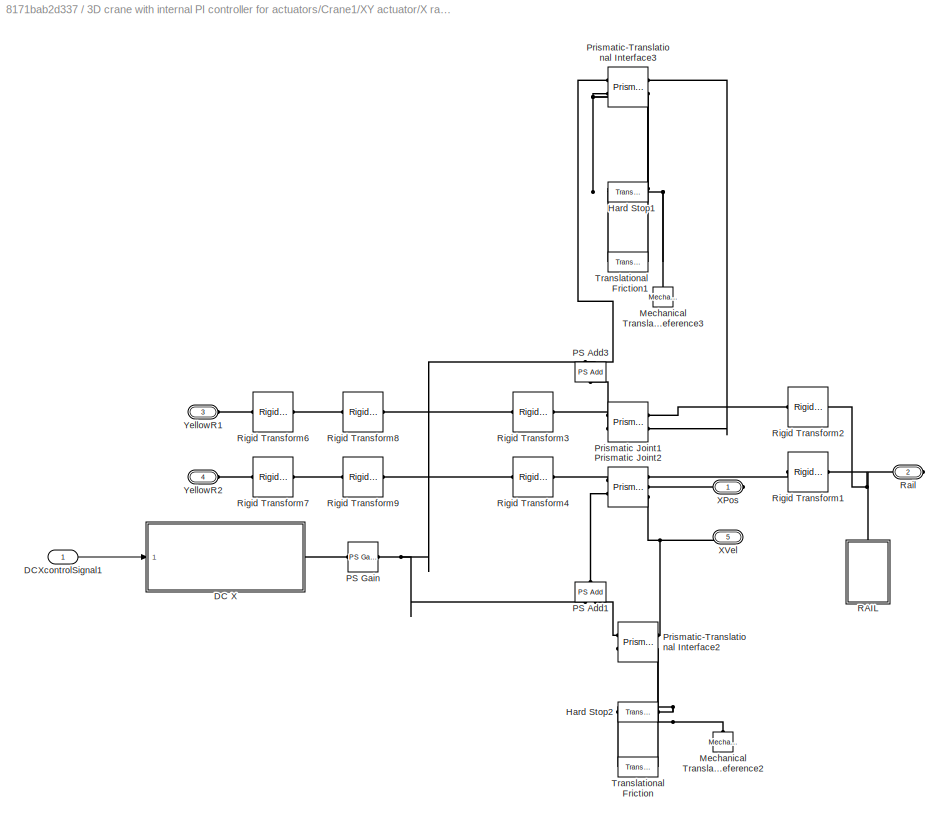
BLOCK [SubSystem] 3D crane with internal PI controller for actuators/Crane1/XY actuator/X rail
  Ports = [1, 0, 0, 0, 0, 2, 3]
  RequestExecContextInheritance = off
BLOCK [SubSystem] 3D crane with internal PI controller for actuators/Crane1/XY actuator/X rail/DC X
  Ports = [1, 0, 0, 0, 0, 0, 1]
  RequestExecContextInheritance = off
BLOCK [Reference] 3D crane with internal PI controller for actuators/Crane1/XY actuator/X rail/DC X/ Lead Screw  REF=fl_lib/Mechanical/Mechanisms/Wheel and Axle
  ClassName = wheel_axle
  ComponentPath = foundation.mechanical.mechanisms.wheel_axle
  ComponentVariantNames = wheel_axle
  ComponentVariants = foundation.mechanical.mechanisms.wheel_axle
  LogSimulationData = off
  Ports = [0, 0, 0, 0, 0, 1, 1]
  R = 2
  R_unit = cm
  SchemaVersion = 1
  SourceBlock = fl_lib/Mechanical/Mechanisms/Wheel and Axle
  SourceFile = foundation.mechanical.mechanisms.wheel_axle
  SourceType = Wheel and Axle
  f = 0
  f_priority = High
  f_specify = off
  f_unit = N
  or = 1
  or_unit = 1
  orient = 1
  orient_unit = 1
  t = 0
  t_priority = High
  t_specify = off
  t_unit = N*m
BLOCK [PMIOPort] 3D crane with internal PI controller for actuators/Crane1/XY actuator/X rail/DC X/Conn1
  Port = 1
  Side = Right
BLOCK [Reference] 3D crane with internal PI controller for actuators/Crane1/XY actuator/X rail/DC X/DC Motor2  REF=elec_lib/Actuators & Drivers/Rotational Actuators/DC Motor
  ClassName = Simscape variant
  ComponentPath = elec.actuators.rotational.dc_motor
  ComponentVariantNames = No thermal port, Show thermal port
  ComponentVariants = elec.actuators.rotational.dc_motor, elec.actuators.rotational.dc_motor_thermal
  J = 0.01
  J_unit = g*cm^2
  Ki = 6.876e-4
  Ki_unit = N*m/A
  Kv = 7.2e-5
  Kv_unit = V/rpm
  La = 1.2e-5
  La_unit = H
  LogSimulationData = off
  P_rated = 0.08
  P_rated_unit = W
  Ports = [0, 0, 0, 0, 0, 2, 2]
  Ra = 3.9
  Ra_unit = Ohm
  SchemaVersion = 1
  SourceBlock = elec_lib/Actuators & Drivers/Rotational Actuators/DC Motor
  SourceFile = elec.actuators.rotational.dc_motor
  SourceType = DC Motor
  T_stall = 10000
  T_stall_unit = mN*m
  Tmeas = 25
  Tmeas_unit = C
  V_i_noload = 1.5
  V_i_noload_unit = V
  V_rated = 24
  V_rated_unit = V
  alpha = 0.00393
  alpha_unit = 1/K
  emf_or_torque = 1
  emf_or_torque_unit = 1
  i_noload = 0
  i_noload_unit = A
  initial_temperature = 25
  initial_temperature_unit = C
  lam = 0
  lam_param = 1
  lam_param_unit = 1
  lam_unit = N*m/(rad/s)
  parameterization = 2
  parameterization_unit = 1
  speed0 = 0
  speed0_unit = rpm
  thermal_mass = 100
  thermal_mass_unit = J/K
  w_max = 190
  w_max_unit = rpm
  w_rated = 190
  w_rated_unit = rpm
BLOCK [Inport] 3D crane with internal PI controller for actuators/Crane1/XY actuator/X rail/DC X/DCYcontrolSignal
  IconDisplay = Port number
BLOCK [Reference] 3D crane with internal PI controller for actuators/Crane1/XY actuator/X rail/DC X/Force Sensor  REF=fl_lib/Mechanical/Mechanical Sensors/Ideal Force Sensor
  ClassName = force
  ComponentPath = foundation.mechanical.sensors.force
  ComponentVariantNames = force
  ComponentVariants = foundation.mechanical.sensors.force
  LogSimulationData = off
  Ports = [0, 0, 0, 0, 0, 1, 2]
  SchemaVersion = 1
  SourceBlock = fl_lib/Mechanical/Mechanical Sensors/Ideal Force Sensor
  SourceFile = foundation.mechanical.sensors.force
  SourceType = Ideal Force Sensor
BLOCK [Reference] 3D crane with internal PI controller for actuators/Crane1/XY actuator/X rail/DC X/Gear Box  REF=fl_lib/Mechanical/Mechanisms/Gear Box
  ClassName = gear_box
  ComponentPath = foundation.mechanical.mechanisms.gear_box
  ComponentVariantNames = gear_box
  ComponentVariants = foundation.mechanical.mechanisms.gear_box
  LogSimulationData = off
  Ports = [0, 0, 0, 0, 0, 1, 1]
  SchemaVersion = 1
  SourceBlock = fl_lib/Mechanical/Mechanisms/Gear Box
  SourceFile = foundation.mechanical.mechanisms.gear_box
  SourceType = Gear Box
  Tag = Factory Generic
  ratio = 1/30
  ratio_unit = 1
  t_in = 0
  t_in_priority = High
  t_in_specify = off
  t_in_unit = N*m
  t_out = 0
  t_out_priority = High
  t_out_specify = off
  t_out_unit = N*m
BLOCK [Reference] 3D crane with internal PI controller for actuators/Crane1/XY actuator/X rail/DC X/Mechanical Rotational Reference1  REF=fl_lib/Mechanical/Rotational Elements/Mechanical
Rotational Reference
  ClassName = reference
  ComponentPath = foundation.mechanical.rotational.reference
  ComponentVariantNames = reference
  ComponentVariants = foundation.mechanical.rotational.reference
  LogSimulationData = off
  Ports = [0, 0, 0, 0, 0, 1]
  SchemaVersion = 1
  SourceBlock = fl_lib/Mechanical/Rotational Elements/Mechanical\nRotational Reference
  SourceFile = foundation.mechanical.rotational.reference
  SourceType = Mechanical\nRotational Reference
BLOCK [Reference] 3D crane with internal PI controller for actuators/Crane1/XY actuator/X rail/DC X/Mechanical Translational Reference4  REF=fl_lib/Mechanical/Translational
Elements/Mechanical
Translational
Reference
  ClassName = reference
  ComponentPath = foundation.mechanical.translational.reference
  ComponentVariantNames = reference
  ComponentVariants = foundation.mechanical.translational.reference
  LogSimulationData = off
  Ports = [0, 0, 0, 0, 0, 1]
  SchemaVersion = 1
  SourceBlock = fl_lib/Mechanical/Translational\nElements/Mechanical\nTranslational\nReference
  SourceFile = foundation.mechanical.translational.reference
  SourceType = Mechanical\nTranslational\nReference
BLOCK [Reference] 3D crane with internal PI controller for actuators/Crane1/XY actuator/X rail/DC X/PS Gain  REF=fl_lib/Physical Signals/Functions/PS Gain
  ClassName = gain
  ComponentPath = foundation.physical_signal.functions.gain
  ComponentVariantNames = gain
  ComponentVariants = foundation.physical_signal.functions.gain
  LogSimulationData = off
  Ports = [0, 0, 0, 0, 0, 1, 1]
  SchemaVersion = 1
  SourceBlock = fl_lib/Physical Signals/Functions/PS Gain
  SourceFile = foundation.physical_signal.functions.gain
  SourceType = PS Gain
  gain = -1*Ux
  gain_unit = 1
BLOCK [SubSystem] 3D crane with internal PI controller for actuators/Crane1/XY actuator/X rail/DC X/PWM & H-Bridge
  Ports = [0, 0, 0, 0, 0, 4, 2]
  RequestExecContextInheritance = off
BLOCK [Reference] 3D crane with internal PI controller for actuators/Crane1/XY actuator/X rail/DC X/PWM & H-Bridge/Controlled PWM Voltage  REF=elec_lib/Actuators & Drivers/Drivers/Controlled PWM
Voltage
  ClassName = controlled_pwm
  ComponentPath = elec.actuators.drivers.controlled_pwm
  ComponentVariantNames = controlled_pwm
  ComponentVariants = elec.actuators.drivers.controlled_pwm
  F = 10000
  F_unit = Hz
  LogSimulationData = off
  Ports = [0, 0, 0, 0, 0, 2, 2]
  SchemaVersion = 1
  SourceBlock = elec_lib/Actuators & Drivers/Drivers/Controlled PWM\nVoltage
  SourceFile = elec.actuators.drivers.controlled_pwm
  SourceType = Controlled PWM\nVoltage
  TD = 0
  TD_unit = s
  Vm = 5
  Vm_unit = V
  Vmax = 5
  Vmax_unit = V
  Vmin = 0
  Vmin_unit = V
  event_type = 1
  event_type_unit = 1
  pulse_width_offset = 0
  pulse_width_offset_unit = s
  pwm_or_av = 2
  pwm_or_av_unit = 1
  sample_time = 1e-6
  sample_time_unit = s
BLOCK [Reference] 3D crane with internal PI controller for actuators/Crane1/XY actuator/X rail/DC X/PWM & H-Bridge/Electrical Reference2  REF=fl_lib/Electrical/Electrical Elements/Electrical Reference
  ClassName = reference_electrical
  ComponentPath = foundation.electrical.elements.reference
  ComponentVariantNames = reference
  ComponentVariants = foundation.electrical.elements.reference
  LogSimulationData = off
  Ports = [0, 0, 0, 0, 0, 1]
  SchemaVersion = 1
  SourceBlock = fl_lib/Electrical/Electrical Elements/Electrical Reference
  SourceFile = foundation.electrical.elements.reference
  SourceType = Electrical Reference
BLOCK [Reference] 3D crane with internal PI controller for actuators/Crane1/XY actuator/X rail/DC X/PWM & H-Bridge/H-Bridge  REF=elec_lib/Actuators & Drivers/Drivers/H-Bridge
  ClassName = h_bridge
  ComponentPath = elec.actuators.drivers.h_bridge
  ComponentVariantNames = No thermal port, Show thermal port
  ComponentVariants = elec.actuators.drivers.h_bridge, elec.actuators.drivers.h_bridge_thermal
  Don = 0.1
  Don2 = 0.05
  Don2_unit = Ohm
  Don_unit = Ohm
  F = 10
  F_unit = kHz
  Lload = 1e-5
  Lload_unit = H
  LogSimulationData = off
  Ports = [0, 0, 0, 0, 0, 4, 2]
  Rload = 10
  Rload_unit = Ohm
  Ron = 0.1
  Ron2 = 0.1
  Ron2_unit = Ohm
  Ron_unit = Ohm
  SchemaVersion = 1
  SourceBlock = elec_lib/Actuators & Drivers/Drivers/H-Bridge
  SourceFile = elec.actuators.drivers.h_bridge
  SourceType = H-Bridge
  Tmeas = 298.15
  Tmeas2 = 398.15
  Tmeas2_unit = K
  Tmeas_unit = K
  Vbrake = 2.5
  Vbrake_unit = V
  Venable = 2.5
  Venable_unit = V
  Vm = 24
  Vm_unit = V
  Vmax = 5
  Vmax_unit = V
  Vreverse = 2.5
  Vreverse_unit = V
  discontinuous = 0
  discontinuous_unit = 1
  freewheeling_mode = 1
  freewheeling_mode_disc = 1
  freewheeling_mode_disc_unit = 1
  freewheeling_mode_unit = 1
  initial_temperature = 298.15
  initial_temperature_unit = K
  pwm_or_av = 2
  pwm_or_av_unit = 1
  thermal_mass = 100
  thermal_mass_unit = J/K
BLOCK [SubSystem] 3D crane with internal PI controller for actuators/Crane1/XY actuator/X rail/DC X/PWM & H-Bridge/PWM Scope
  Ports = [0, 0, 0, 0, 0, 1]
  RequestExecContextInheritance = off
BLOCK [Reference] 3D crane with internal PI controller for actuators/Crane1/XY actuator/X rail/DC X/PWM & H-Bridge/PWM Scope/Electrical Reference1  REF=fl_lib/Electrical/Electrical Elements/Electrical Reference
  ClassName = reference_electrical
  ComponentPath = foundation.electrical.elements.reference
  ComponentVariantNames = reference
  ComponentVariants = foundation.electrical.elements.reference
  LogSimulationData = off
  Ports = [0, 0, 0, 0, 0, 1]
  SchemaVersion = 1
  SourceBlock = fl_lib/Electrical/Electrical Elements/Electrical Reference
  SourceFile = foundation.electrical.elements.reference
  SourceType = Electrical Reference
BLOCK [Reference] 3D crane with internal PI controller for actuators/Crane1/XY actuator/X rail/DC X/PWM & H-Bridge/PWM Scope/PS-Simulink Converter 2  REF=nesl_utility/PS-Simulink
Converter
  AffineConversion = off
  Frequencies = []
  LeftPortType = input
  PhysicalDomain = network_engine_domain
  Ports = [0, 1, 0, 0, 0, 1]
  PseudoPeriodic = off
  RightPortType = output
  SourceBlock = nesl_utility/PS-Simulink\nConverter
  SourceType = PS-Simulink\nConverter
  SubClassName = ps_output
  Unit = 1
BLOCK [Scope] 3D crane with internal PI controller for actuators/Crane1/XY actuator/X rail/DC X/PWM & H-Bridge/PWM Scope/PWM
  DataFormat = StructureWithTime
  Floating = off
  LimitDataPoints = off
  NumInputPorts = 1
  Ports = [1]
  SaveName = ScopeData6
  YMax = 6
  YMin = -1
BLOCK [Reference] 3D crane with internal PI controller for actuators/Crane1/XY actuator/X rail/DC X/PWM & H-Bridge/PWM Scope/Voltage Sensor  REF=fl_lib/Electrical/Electrical Sensors/Voltage Sensor
  ClassName = sensor_voltage
  ComponentPath = foundation.electrical.sensors.voltage
  ComponentVariantNames = voltage
  ComponentVariants = foundation.electrical.sensors.voltage
  LogSimulationData = off
  Ports = [0, 0, 0, 0, 0, 1, 2]
  SchemaVersion = 1
  SourceBlock = fl_lib/Electrical/Electrical Sensors/Voltage Sensor
  SourceFile = foundation.electrical.sensors.voltage
  SourceType = Voltage Sensor
BLOCK [PMIOPort] 3D crane with internal PI controller for actuators/Crane1/XY actuator/X rail/DC X/PWM & H-Bridge/PWM Scope/u
  Port = 1
  Side = Left
BLOCK [PMIOPort] 3D crane with internal PI controller for actuators/Crane1/XY actuator/X rail/DC X/PWM & H-Bridge/REV
  Port = 4
  Side = Left
BLOCK [SubSystem] 3D crane with internal PI controller for actuators/Crane1/XY actuator/X rail/DC X/PWM & H-Bridge/REV Scope
  Commented = on
  Ports = [0, 0, 0, 0, 0, 1]
  RequestExecContextInheritance = off
BLOCK [Reference] 3D crane with internal PI controller for actuators/Crane1/XY actuator/X rail/DC X/PWM & H-Bridge/REV Scope/Electrical Reference1  REF=fl_lib/Electrical/Electrical Elements/Electrical Reference
  ClassName = reference_electrical
  ComponentPath = foundation.electrical.elements.reference
  ComponentVariantNames = reference
  ComponentVariants = foundation.electrical.elements.reference
  LogSimulationData = off
  Ports = [0, 0, 0, 0, 0, 1]
  SchemaVersion = 1
  SourceBlock = fl_lib/Electrical/Electrical Elements/Electrical Reference
  SourceFile = foundation.electrical.elements.reference
  SourceType = Electrical Reference
BLOCK [Reference] 3D crane with internal PI controller for actuators/Crane1/XY actuator/X rail/DC X/PWM & H-Bridge/REV Scope/PS-Simulink Converter 2  REF=nesl_utility/PS-Simulink
Converter
  AffineConversion = off
  Frequencies = []
  LeftPortType = input
  PhysicalDomain = network_engine_domain
  Ports = [0, 1, 0, 0, 0, 1]
  PseudoPeriodic = off
  RightPortType = output
  SourceBlock = nesl_utility/PS-Simulink\nConverter
  SourceType = PS-Simulink\nConverter
  SubClassName = ps_output
BLOCK [Scope] 3D crane with internal PI controller for actuators/Crane1/XY actuator/X rail/DC X/PWM & H-Bridge/REV Scope/REV
  DataFormat = StructureWithTime
  Floating = off
  LimitDataPoints = off
  NumInputPorts = 1
  Ports = [1]
  SaveName = ScopeData6
  YMax = 6
  YMin = -1
BLOCK [Reference] 3D crane with internal PI controller for actuators/Crane1/XY actuator/X rail/DC X/PWM & H-Bridge/REV Scope/Voltage Sensor  REF=fl_lib/Electrical/Electrical Sensors/Voltage Sensor
  ClassName = sensor_voltage
  ComponentPath = foundation.electrical.sensors.voltage
  ComponentVariantNames = voltage
  ComponentVariants = foundation.electrical.sensors.voltage
  LogSimulationData = off
  Ports = [0, 0, 0, 0, 0, 1, 2]
  SchemaVersion = 1
  SourceBlock = fl_lib/Electrical/Electrical Sensors/Voltage Sensor
  SourceFile = foundation.electrical.sensors.voltage
  SourceType = Voltage Sensor
BLOCK [PMIOPort] 3D crane with internal PI controller for actuators/Crane1/XY actuator/X rail/DC X/PWM & H-Bridge/REV Scope/u
  Port = 1
  Side = Left
BLOCK [PMIOPort] 3D crane with internal PI controller for actuators/Crane1/XY actuator/X rail/DC X/PWM & H-Bridge/V+
  Port = 1
  Side = Right
BLOCK [PMIOPort] 3D crane with internal PI controller for actuators/Crane1/XY actuator/X rail/DC X/PWM & H-Bridge/V-
  Port = 2
  Side = Right
BLOCK [PMIOPort] 3D crane with internal PI controller for actuators/Crane1/XY actuator/X rail/DC X/PWM & H-Bridge/Vr
  Port = 3
  Side = Left
BLOCK [SubSystem] 3D crane with internal PI controller for actuators/Crane1/XY actuator/X rail/DC X/PWM & H-Bridge/Vr Scope
  Commented = on
  Ports = [0, 0, 0, 0, 0, 1]
  RequestExecContextInheritance = off
BLOCK [Reference] 3D crane with internal PI controller for actuators/Crane1/XY actuator/X rail/DC X/PWM & H-Bridge/Vr Scope/Electrical Reference1  REF=fl_lib/Electrical/Electrical Elements/Electrical Reference
  ClassName = reference_electrical
  ComponentPath = foundation.electrical.elements.reference
  ComponentVariantNames = reference
  ComponentVariants = foundation.electrical.elements.reference
  LogSimulationData = off
  Ports = [0, 0, 0, 0, 0, 1]
  SchemaVersion = 1
  SourceBlock = fl_lib/Electrical/Electrical Elements/Electrical Reference
  SourceFile = foundation.electrical.elements.reference
  SourceType = Electrical Reference
BLOCK [Reference] 3D crane with internal PI controller for actuators/Crane1/XY actuator/X rail/DC X/PWM & H-Bridge/Vr Scope/PS-Simulink Converter 2  REF=nesl_utility/PS-Simulink
Converter
  AffineConversion = off
  Frequencies = []
  LeftPortType = input
  PhysicalDomain = network_engine_domain
  Ports = [0, 1, 0, 0, 0, 1]
  PseudoPeriodic = off
  RightPortType = output
  SourceBlock = nesl_utility/PS-Simulink\nConverter
  SourceType = PS-Simulink\nConverter
  SubClassName = ps_output
BLOCK [Reference] 3D crane with internal PI controller for actuators/Crane1/XY actuator/X rail/DC X/PWM & H-Bridge/Vr Scope/Voltage Sensor  REF=fl_lib/Electrical/Electrical Sensors/Voltage Sensor
  ClassName = sensor_voltage
  ComponentPath = foundation.electrical.sensors.voltage
  ComponentVariantNames = voltage
  ComponentVariants = foundation.electrical.sensors.voltage
  LogSimulationData = off
  Ports = [0, 0, 0, 0, 0, 1, 2]
  SchemaVersion = 1
  SourceBlock = fl_lib/Electrical/Electrical Sensors/Voltage Sensor
  SourceFile = foundation.electrical.sensors.voltage
  SourceType = Voltage Sensor
BLOCK [Scope] 3D crane with internal PI controller for actuators/Crane1/XY actuator/X rail/DC X/PWM & H-Bridge/Vr Scope/Vr
  DataFormat = StructureWithTime
  Floating = off
  LimitDataPoints = off
  NumInputPorts = 1
  Ports = [1]
  SaveName = ScopeData6
  YMax = 6
  YMin = -1
BLOCK [PMIOPort] 3D crane with internal PI controller for actuators/Crane1/XY actuator/X rail/DC X/PWM & H-Bridge/Vr Scope/u
  Port = 1
  Side = Left
BLOCK [PMIOPort] 3D crane with internal PI controller for actuators/Crane1/XY actuator/X rail/DC X/PWM & H-Bridge/brk 
  Port = 5
  Side = Left
BLOCK [PMIOPort] 3D crane with internal PI controller for actuators/Crane1/XY actuator/X rail/DC X/PWM & H-Bridge/gnd 
  Port = 6
  Side = Left
BLOCK [SubSystem] 3D crane with internal PI controller for actuators/Crane1/XY actuator/X rail/DC X/SL2V_2
  Ports = [1, 0, 0, 0, 0, 0, 4]
  RequestExecContextInheritance = off
BLOCK [PMIOPort] 3D crane with internal PI controller for actuators/Crane1/XY actuator/X rail/DC X/SL2V_2/BRK
  Port = 3
  Side = Right
BLOCK [Reference] 3D crane with internal PI controller for actuators/Crane1/XY actuator/X rail/DC X/SL2V_2/Controlled Voltage Source  REF=fl_lib/Electrical/Electrical Sources/Controlled Voltage
Source
  ClassName = controlled_voltage_source
  ComponentPath = foundation.electrical.sources.controlled_voltage
  ComponentVariantNames = controlled_voltage
  ComponentVariants = foundation.electrical.sources.controlled_voltage
  LogSimulationData = off
  Ports = [0, 0, 0, 0, 0, 1, 2]
  SchemaVersion = 1
  SourceBlock = fl_lib/Electrical/Electrical Sources/Controlled Voltage\nSource
  SourceFile = foundation.electrical.sources.controlled_voltage
  SourceType = Controlled Voltage\nSource
BLOCK [Reference] 3D crane with internal PI controller for actuators/Crane1/XY actuator/X rail/DC X/SL2V_2/Controlled Voltage Source1  REF=fl_lib/Electrical/Electrical Sources/Controlled Voltage
Source
  ClassName = controlled_voltage_source
  ComponentPath = foundation.electrical.sources.controlled_voltage
  ComponentVariantNames = controlled_voltage
  ComponentVariants = foundation.electrical.sources.controlled_voltage
  LogSimulationData = off
  Ports = [0, 0, 0, 0, 0, 1, 2]
  SchemaVersion = 1
  SourceBlock = fl_lib/Electrical/Electrical Sources/Controlled Voltage\nSource
  SourceFile = foundation.electrical.sources.controlled_voltage
  SourceType = Controlled Voltage\nSource
BLOCK [Reference] 3D crane with internal PI controller for actuators/Crane1/XY actuator/X rail/DC X/SL2V_2/Controlled Voltage Source2  REF=fl_lib/Electrical/Electrical Sources/Controlled Voltage
Source
  ClassName = controlled_voltage_source
  ComponentPath = foundation.electrical.sources.controlled_voltage
  ComponentVariantNames = controlled_voltage
  ComponentVariants = foundation.electrical.sources.controlled_voltage
  LogSimulationData = off
  Ports = [0, 0, 0, 0, 0, 1, 2]
  SchemaVersion = 1
  SourceBlock = fl_lib/Electrical/Electrical Sources/Controlled Voltage\nSource
  SourceFile = foundation.electrical.sources.controlled_voltage
  SourceType = Controlled Voltage\nSource
BLOCK [Demux] 3D crane with internal PI controller for actuators/Crane1/XY actuator/X rail/DC X/SL2V_2/Demux
  DisplayOption = bar
  Outputs = 3
  Ports = [1, 3]
BLOCK [Reference] 3D crane with internal PI controller for actuators/Crane1/XY actuator/X rail/DC X/SL2V_2/Electrical Reference  REF=fl_lib/Electrical/Electrical Elements/Electrical Reference
  ClassName = reference_electrical
  ComponentPath = foundation.electrical.elements.reference
  ComponentVariantNames = reference
  ComponentVariants = foundation.electrical.elements.reference
  LogSimulationData = off
  Ports = [0, 0, 0, 0, 0, 1]
  SchemaVersion = 1
  SourceBlock = fl_lib/Electrical/Electrical Elements/Electrical Reference
  SourceFile = foundation.electrical.elements.reference
  SourceType = Electrical Reference
BLOCK [Gain] 3D crane with internal PI controller for actuators/Crane1/XY actuator/X rail/DC X/SL2V_2/Gain
  Gain = 5
  OutDataTypeStr = Inherit: Inherit via internal rule
  ParamDataTypeStr = Inherit: Inherit via internal rule
  SaturateOnIntegerOverflow = off
BLOCK [Gain] 3D crane with internal PI controller for actuators/Crane1/XY actuator/X rail/DC X/SL2V_2/Gain1
  Gain = 5
  OutDataTypeStr = Inherit: Inherit via internal rule
  ParamDataTypeStr = Inherit: Inherit via internal rule
  SaturateOnIntegerOverflow = off
BLOCK [Gain] 3D crane with internal PI controller for actuators/Crane1/XY actuator/X rail/DC X/SL2V_2/Gain2
  Gain = 5
  OutDataTypeStr = Inherit: Inherit via internal rule
  ParamDataTypeStr = Inherit: Inherit via internal rule
  SaturateOnIntegerOverflow = off
BLOCK [PMIOPort] 3D crane with internal PI controller for actuators/Crane1/XY actuator/X rail/DC X/SL2V_2/Rev
  Port = 2
  Side = Right
BLOCK [Inport] 3D crane with internal PI controller for actuators/Crane1/XY actuator/X rail/DC X/SL2V_2/SL
  IconDisplay = Port number
BLOCK [Reference] 3D crane with internal PI controller for actuators/Crane1/XY actuator/X rail/DC X/SL2V_2/Simulink-PS Converter  REF=nesl_utility/Simulink-PS
Converter
  AffineConversion = off
  Frequencies = []
  InputFilterTimeConstant = .001
  InputFiltering = off
  LeftPortType = input
  NoiseDistribution = none
  NoiseParameters = []
  PhysicalDomain = network_engine_domain
  Ports = [1, 0, 0, 0, 0, 0, 1]
  PseudoPeriodic = off
  RightPortType = output
  SimscapeFilterOrder = 1
  SourceBlock = nesl_utility/Simulink-PS\nConverter
  SourceType = Simulink-PS\nConverter
  SubClassName = ps_input
  UdotUserProvided = 0
  Unit = 1
BLOCK [Reference] 3D crane with internal PI controller for actuators/Crane1/XY actuator/X rail/DC X/SL2V_2/Simulink-PS Converter1  REF=nesl_utility/Simulink-PS
Converter
  AffineConversion = off
  Frequencies = []
  InputFilterTimeConstant = .001
  InputFiltering = off
  LeftPortType = input
  NoiseDistribution = none
  NoiseParameters = []
  PhysicalDomain = network_engine_domain
  Ports = [1, 0, 0, 0, 0, 0, 1]
  PseudoPeriodic = off
  RightPortType = output
  SimscapeFilterOrder = 1
  SourceBlock = nesl_utility/Simulink-PS\nConverter
  SourceType = Simulink-PS\nConverter
  SubClassName = ps_input
  UdotUserProvided = 0
  Unit = 1
BLOCK [Reference] 3D crane with internal PI controller for actuators/Crane1/XY actuator/X rail/DC X/SL2V_2/Simulink-PS Converter2  REF=nesl_utility/Simulink-PS
Converter
  AffineConversion = off
  Frequencies = []
  InputFilterTimeConstant = .001
  InputFiltering = off
  LeftPortType = input
  NoiseDistribution = none
  NoiseParameters = []
  PhysicalDomain = network_engine_domain
  Ports = [1, 0, 0, 0, 0, 0, 1]
  PseudoPeriodic = off
  RightPortType = output
  SimscapeFilterOrder = 1
  SourceBlock = nesl_utility/Simulink-PS\nConverter
  SourceType = Simulink-PS\nConverter
  SubClassName = ps_input
  UdotUserProvided = 0
  Unit = 1
BLOCK [PMIOPort] 3D crane with internal PI controller for actuators/Crane1/XY actuator/X rail/DC X/SL2V_2/gnd 
  Port = 4
  Side = Right
BLOCK [PMIOPort] 3D crane with internal PI controller for actuators/Crane1/XY actuator/X rail/DC X/SL2V_2/pwmRef
  Port = 1
  Side = Right
BLOCK [Inport] 3D crane with internal PI controller for actuators/Crane1/XY actuator/X rail/DCXcontrolSignal1
  IconDisplay = Port number
BLOCK [Reference] 3D crane with internal PI controller for actuators/Crane1/XY actuator/X rail/Hard Stop1  REF=fl_lib/Mechanical/Translational
Elements/Translational Hard
Stop
  ClassName = hardstop
  ComponentPath = foundation.mechanical.translational.hardstop
  ComponentVariantNames = hardstop
  ComponentVariants = foundation.mechanical.translational.hardstop
  D_low = 1000
  D_low_unit = N/(m/s)
  D_up = 1000
  D_up_unit = N/(m/s)
  LogSimulationData = off
  Ports = [0, 0, 0, 0, 0, 1, 1]
  SchemaVersion = 1
  SourceBlock = fl_lib/Mechanical/Translational\nElements/Translational Hard\nStop
  SourceFile = foundation.mechanical.translational.hardstop
  SourceType = Translational Hard\nStop
  f = 0
  f_priority = High
  f_specify = off
  f_unit = N
  lower_bnd = (xRange(1)-xZero)
  lower_bnd_unit = m
  stiff_low = 2e6
  stiff_low_unit = N/m
  stiff_up = 2e6
  stiff_up_unit = N/m
  upper_bnd = -xZero +xRange(2)
  upper_bnd_unit = m
  v = 0
  v_priority = High
  v_specify = off
  v_unit = m/s
  x = 1
  x_priority = High
  x_specify = off
  x_unit = cm
BLOCK [Reference] 3D crane with internal PI controller for actuators/Crane1/XY actuator/X rail/Hard Stop2  REF=fl_lib/Mechanical/Translational
Elements/Translational Hard
Stop
  ClassName = hardstop
  ComponentPath = foundation.mechanical.translational.hardstop
  ComponentVariantNames = hardstop
  ComponentVariants = foundation.mechanical.translational.hardstop
  D_low = 1000
  D_low_unit = N/(m/s)
  D_up = 1000
  D_up_unit = N/(m/s)
  LogSimulationData = off
  Ports = [0, 0, 0, 0, 0, 1, 1]
  SchemaVersion = 1
  SourceBlock = fl_lib/Mechanical/Translational\nElements/Translational Hard\nStop
  SourceFile = foundation.mechanical.translational.hardstop
  SourceType = Translational Hard\nStop
  f = 0
  f_priority = High
  f_specify = off
  f_unit = N
  lower_bnd = (xRange(1)-xZero)
  lower_bnd_unit = m
  stiff_low = 2e6
  stiff_low_unit = N/m
  stiff_up = 2e6
  stiff_up_unit = N/m
  upper_bnd = -xZero +xRange(2)
  upper_bnd_unit = m
  v = 0
  v_priority = High
  v_specify = off
  v_unit = m/s
  x = 1
  x_priority = High
  x_specify = off
  x_unit = cm
BLOCK [Reference] 3D crane with internal PI controller for actuators/Crane1/XY actuator/X rail/Mechanical Translational Reference2  REF=fl_lib/Mechanical/Translational
Elements/Mechanical
Translational
Reference
  ClassName = reference
  ComponentPath = foundation.mechanical.translational.reference
  ComponentVariantNames = reference
  ComponentVariants = foundation.mechanical.translational.reference
  LogSimulationData = off
  Ports = [0, 0, 0, 0, 0, 1]
  SchemaVersion = 1
  SourceBlock = fl_lib/Mechanical/Translational\nElements/Mechanical\nTranslational\nReference
  SourceFile = foundation.mechanical.translational.reference
  SourceType = Mechanical\nTranslational\nReference
BLOCK [Reference] 3D crane with internal PI controller for actuators/Crane1/XY actuator/X rail/Mechanical Translational Reference3  REF=fl_lib/Mechanical/Translational
Elements/Mechanical
Translational
Reference
  ClassName = reference
  ComponentPath = foundation.mechanical.translational.reference
  ComponentVariantNames = reference
  ComponentVariants = foundation.mechanical.translational.reference
  LogSimulationData = off
  Ports = [0, 0, 0, 0, 0, 1]
  SchemaVersion = 1
  SourceBlock = fl_lib/Mechanical/Translational\nElements/Mechanical\nTranslational\nReference
  SourceFile = foundation.mechanical.translational.reference
  SourceType = Mechanical\nTranslational\nReference
BLOCK [Reference] 3D crane with internal PI controller for actuators/Crane1/XY actuator/X rail/PS Add1  REF=fl_lib/Physical Signals/Functions/PS Add
  ClassName = add
  ComponentPath = foundation.physical_signal.functions.add
  ComponentVariantNames = add
  ComponentVariants = foundation.physical_signal.functions.add
  LogSimulationData = off
  Ports = [0, 0, 0, 0, 0, 2, 1]
  SchemaVersion = 1
  SourceBlock = fl_lib/Physical Signals/Functions/PS Add
  SourceFile = foundation.physical_signal.functions.add
  SourceType = PS Add
BLOCK [Reference] 3D crane with internal PI controller for actuators/Crane1/XY actuator/X rail/PS Add3  REF=fl_lib/Physical Signals/Functions/PS Add
  ClassName = add
  ComponentPath = foundation.physical_signal.functions.add
  ComponentVariantNames = add
  ComponentVariants = foundation.physical_signal.functions.add
  LogSimulationData = off
  Ports = [0, 0, 0, 0, 0, 2, 1]
  SchemaVersion = 1
  SourceBlock = fl_lib/Physical Signals/Functions/PS Add
  SourceFile = foundation.physical_signal.functions.add
  SourceType = PS Add
BLOCK [Reference] 3D crane with internal PI controller for actuators/Crane1/XY actuator/X rail/PS Gain  REF=fl_lib/Physical Signals/Functions/PS Gain
  ClassName = gain
  ComponentPath = foundation.physical_signal.functions.gain
  ComponentVariantNames = gain
  ComponentVariants = foundation.physical_signal.functions.gain
  LogSimulationData = off
  Ports = [0, 0, 0, 0, 0, 1, 1]
  SchemaVersion = 1
  SourceBlock = fl_lib/Physical Signals/Functions/PS Gain
  SourceFile = foundation.physical_signal.functions.gain
  SourceType = PS Gain
  gain = 1/2
  gain_unit = 1
BLOCK [Reference] 3D crane with internal PI controller for actuators/Crane1/XY actuator/X rail/Prismatic Joint1  REF=sm_lib/Joints/Prismatic
Joint
  BlockFunction = simmechanics.library.joints.prismatic_joint
  ClassName = PrismaticJoint
  CompositeWrenchDir = FollowerOnBase
  CompositeWrenchFrame = BaseFrame
  DampingCoefficient = 0
  DampingCoefficientUnits = N/(m/s)
  EquilibriumPosition = 0
  EquilibriumPositionUnits = m
  LogSimulationData = off
  MotionActuationMode = ComputedMotion
  Ports = [0, 0, 0, 0, 0, 2, 2]
  PositionTargetPriority = High
  PositionTargetSpecify = off
  PositionTargetValue = 0
  PositionTargetValueUnits = m
  SenseAcceleration = off
  SenseConstraintForce = off
  SenseConstraintForceX = off
  SenseConstraintForceY = off
  SenseConstraintForceZ = off
  SenseConstraintTorque = off
  SenseConstraintTorqueX = off
  SenseConstraintTorqueY = off
  SenseConstraintTorqueZ = off
  SensePosition = off
  SenseTorqueForce = off
  SenseTotalForce = off
  SenseTotalForceX = off
  SenseTotalForceY = off
  SenseTotalForceZ = off
  SenseTotalTorque = off
  SenseTotalTorqueX = off
  SenseTotalTorqueY = off
  SenseTotalTorqueZ = off
  SenseVelocity = on
  SourceBlock = sm_lib/Joints/Prismatic\nJoint
  SourceType = Prismatic\nJoint
  SpringStiffness = 0
  SpringStiffnessUnits = N/m
  TorqueActuationMode = InputTorque
  VelocityTargetPriority = High
  VelocityTargetSpecify = off
  VelocityTargetValue = 0
  VelocityTargetValueUnits = m/s
BLOCK [Reference] 3D crane with internal PI controller for actuators/Crane1/XY actuator/X rail/Prismatic Joint2  REF=sm_lib/Joints/Prismatic
Joint
  BlockFunction = simmechanics.library.joints.prismatic_joint
  ClassName = PrismaticJoint
  CompositeWrenchDir = FollowerOnBase
  CompositeWrenchFrame = BaseFrame
  DampingCoefficient = 0
  DampingCoefficientUnits = N/(m/s)
  EquilibriumPosition = 0
  EquilibriumPositionUnits = m
  LogSimulationData = off
  MotionActuationMode = ComputedMotion
  Ports = [0, 0, 0, 0, 0, 2, 3]
  PositionTargetPriority = High
  PositionTargetSpecify = off
  PositionTargetValue = 0
  PositionTargetValueUnits = m
  SenseAcceleration = off
  SenseConstraintForce = off
  SenseConstraintForceX = off
  SenseConstraintForceY = off
  SenseConstraintForceZ = off
  SenseConstraintTorque = off
  SenseConstraintTorqueX = off
  SenseConstraintTorqueY = off
  SenseConstraintTorqueZ = off
  SensePosition = on
  SenseTorqueForce = off
  SenseTotalForce = off
  SenseTotalForceX = off
  SenseTotalForceY = off
  SenseTotalForceZ = off
  SenseTotalTorque = off
  SenseTotalTorqueX = off
  SenseTotalTorqueY = off
  SenseTotalTorqueZ = off
  SenseVelocity = on
  SourceBlock = sm_lib/Joints/Prismatic\nJoint
  SourceType = Prismatic\nJoint
  SpringStiffness = 0
  SpringStiffnessUnits = N/m
  TorqueActuationMode = InputTorque
  VelocityTargetPriority = High
  VelocityTargetSpecify = off
  VelocityTargetValue = 0
  VelocityTargetValueUnits = m/s
BLOCK [Reference] 3D crane with internal PI controller for actuators/Crane1/XY actuator/X rail/Prismatic-Translational Interface2  REF=sm_double_wishbone_suspension_lib/Testing
Platform/Prismatic-Translational
Interface
  Ports = [0, 0, 0, 0, 0, 2, 2]
  SourceBlock = sm_double_wishbone_suspension_lib/Testing\nPlatform/Prismatic-Translational\nInterface
  SourceType = SubSystem
BLOCK [Reference] 3D crane with internal PI controller for actuators/Crane1/XY actuator/X rail/Prismatic-Translational Interface3  REF=sm_double_wishbone_suspension_lib/Testing
Platform/Prismatic-Translational
Interface
  Ports = [0, 0, 0, 0, 0, 2, 2]
  SourceBlock = sm_double_wishbone_suspension_lib/Testing\nPlatform/Prismatic-Translational\nInterface
  SourceType = SubSystem
BLOCK [SubSystem] 3D crane with internal PI controller for actuators/Crane1/XY actuator/X rail/RAIL 
  Ports = [0, 0, 0, 0, 0, 0, 1]
  RequestExecContextInheritance = off
BLOCK [SubSystem] 3D crane with internal PI controller for actuators/Crane1/XY actuator/X rail/RAIL /Aesthetics
  Ports = [0, 0, 0, 0, 0, 1]
  RequestExecContextInheritance = off
BLOCK [SubSystem] 3D crane with internal PI controller for actuators/Crane1/XY actuator/X rail/RAIL /Aesthetics/ClearPlastic
  Ports = [0, 0, 0, 0, 0, 0, 1]
  RequestExecContextInheritance = off
BLOCK [PMIOPort] 3D crane with internal PI controller for actuators/Crane1/XY actuator/X rail/RAIL /Aesthetics/ClearPlastic/Conn1
  Port = 1
  Side = Right
BLOCK [Reference] 3D crane with internal PI controller for actuators/Crane1/XY actuator/X rail/RAIL /Aesthetics/ClearPlastic/Rail2  REF=sm_lib/Body Elements/Solid
  BlockFunction = simmechanics.library.body_elements.solid
  BrickDimensionUnits = m
  BrickDimensions = [0.05 0.09 0.015]
  CenterOfMass = [0 0 0]
  CenterOfMassUnits = m
  ClassName = Solid
  CylinderLength = 1
  CylinderLengthUnits = m
  CylinderRadius = 0.02
  CylinderRadiusUnits = m
  Density = 1000
  DensityBased = off
  DensityUnits = kg/(m^3)
  EllipsoidRadii = [1 1 1]
  EllipsoidRadiiUnits = m
  ExtGeomFileType = STL
  ExtGeomFileUnits = m
  ExtrusionCrossSection = [1 1; -1 1; -1 -1; 1 -1]
  ExtrusionCrossSectionUnits = m
  ExtrusionLength = 1
  ExtrusionLengthUnits = m
  GeometryShape = Brick
  GraphicAmbientColor = [0.15 0.15 0.15 1.0]
  GraphicDiffuseColor = [0.8 0.8 0.8]
  GraphicEmissiveColor = [0.0 0.0 0.0 1.0]
  GraphicOpacity = 0.4
  GraphicShininess = 100
  GraphicSpecularColor = [0.5 0.5 0.5 1.0]
  GraphicType = FromGeometry
  GraphicVisPropType = SimpleVisualProperties
  InertiaType = PointMass
  LogSimulationData = off
  MarkerShape = Sphere
  MarkerSize = 10
  MarkerSizeUnits = m
  Mass = 0
  MassUnits = kg
  MomentsOfInertia = [1 1 1]
  MomentsOfInertiaUnits = kg*m^2
  PolygonNumSides = 3
  PolygonOuterRadius = 1
  PolygonOuterRadiusUnits = m
  Ports = [0, 0, 0, 0, 0, 0, 1]
  ProductsOfInertia = [0 0 0]
  ProductsOfInertiaUnits = kg*m^2
  RectangleSize = [1 1]
  RectangleSizeUnits = m
  RevolutionAngle = 180
  RevolutionAngleUnits = deg
  RevolutionCrossSection = [1 1; 1 -1; 2 -1; 2 1]
  RevolutionCrossSectionUnits = m
  RevolutionExtent = Full
  SourceBlock = sm_lib/Body Elements/Solid
  SourceType = Solid
  SphereRadius = 1
  SphereRadiusUnits = m
BLOCK [Reference] 3D crane with internal PI controller for actuators/Crane1/XY actuator/X rail/RAIL /Aesthetics/ClearPlastic/Rigid Transform11  REF=sm_lib/Frames and
Transforms/Rigid
Transform
  BaseAlignAxisA = +Y
  BaseAlignAxisB = +Z
  BlockFunction = simmechanics.library.frames_transforms.rigid_transform
  ClassName = RigidTransform
  FollAlignAxisA = +X
  FollAlignAxisB = +Y
  LogSimulationData = off
  Ports = [0, 0, 0, 0, 0, 1, 1]
  RotationAngle = 90
  RotationAngleUnits = deg
  RotationArbitraryAxis = [0 0 1]
  RotationMatrix = [1 0 0; 0 1 0; 0 0 1]
  RotationMethod = StandardAxis
  RotationStandardAxis = +Z
  SourceBlock = sm_lib/Frames and\nTransforms/Rigid\nTransform
  SourceType = Rigid\nTransform
  TranslationCartesianOffset = [-0.5 0  0]
  TranslationLengthUnit = m
  TranslationMethod = None
  TranslationROffset = 0
  TranslationROffsetUnits = m
  TranslationStandardAxis = -Z
  TranslationStandardOffset = 0.05
  TranslationThetaOffset = 0
  TranslationThetaOffsetUnits = deg
  TranslationZOffset = 0
  TranslationZOffsetUnits = m
BLOCK [Reference] 3D crane with internal PI controller for actuators/Crane1/XY actuator/X rail/RAIL /Aesthetics/ClearPlastic/Rigid Transform12  REF=sm_lib/Frames and
Transforms/Rigid
Transform
  BaseAlignAxisA = +Y
  BaseAlignAxisB = +Z
  BlockFunction = simmechanics.library.frames_transforms.rigid_transform
  ClassName = RigidTransform
  FollAlignAxisA = +X
  FollAlignAxisB = +Y
  LogSimulationData = off
  Ports = [0, 0, 0, 0, 0, 1, 1]
  RotationAngle = 90
  RotationAngleUnits = deg
  RotationArbitraryAxis = [0 0 1]
  RotationMatrix = [1 0 0; 0 1 0; 0 0 1]
  RotationMethod = None
  RotationStandardAxis = +Y
  SourceBlock = sm_lib/Frames and\nTransforms/Rigid\nTransform
  SourceType = Rigid\nTransform
  TranslationCartesianOffset = [-0.5 0  0]
  TranslationLengthUnit = m
  TranslationMethod = StandardAxis
  TranslationROffset = 0
  TranslationROffsetUnits = m
  TranslationStandardAxis = -X
  TranslationStandardOffset = 0.03
  TranslationThetaOffset = 0
  TranslationThetaOffsetUnits = deg
  TranslationZOffset = 0
  TranslationZOffsetUnits = m
BLOCK [Reference] 3D crane with internal PI controller for actuators/Crane1/XY actuator/X rail/RAIL /Aesthetics/ClearPlastic/Rigid Transform8  REF=sm_lib/Frames and
Transforms/Rigid
Transform
  BaseAlignAxisA = +Y
  BaseAlignAxisB = +Z
  BlockFunction = simmechanics.library.frames_transforms.rigid_transform
  ClassName = RigidTransform
  FollAlignAxisA = +X
  FollAlignAxisB = +Y
  LogSimulationData = off
  Ports = [0, 0, 0, 0, 0, 1, 1]
  RotationAngle = 90
  RotationAngleUnits = deg
  RotationArbitraryAxis = [0 0 1]
  RotationMatrix = [1 0 0; 0 1 0; 0 0 1]
  RotationMethod = StandardAxis
  RotationStandardAxis = +X
  SourceBlock = sm_lib/Frames and\nTransforms/Rigid\nTransform
  SourceType = Rigid\nTransform
  TranslationCartesianOffset = [-0.5 0  0]
  TranslationLengthUnit = m
  TranslationMethod = None
  TranslationROffset = 0
  TranslationROffsetUnits = m
  TranslationStandardAxis = -Z
  TranslationStandardOffset = 0.05
  TranslationThetaOffset = 0
  TranslationThetaOffsetUnits = deg
  TranslationZOffset = 0
  TranslationZOffsetUnits = m
BLOCK [SubSystem] 3D crane with internal PI controller for actuators/Crane1/XY actuator/X rail/RAIL /Aesthetics/ClearPlastic1
  Ports = [0, 0, 0, 0, 0, 0, 1]
  RequestExecContextInheritance = off
BLOCK [PMIOPort] 3D crane with internal PI controller for actuators/Crane1/XY actuator/X rail/RAIL /Aesthetics/ClearPlastic1/Conn1
  Port = 1
  Side = Right
BLOCK [Reference] 3D crane with internal PI controller for actuators/Crane1/XY actuator/X rail/RAIL /Aesthetics/ClearPlastic1/Rail2  REF=sm_lib/Body Elements/Solid
  BlockFunction = simmechanics.library.body_elements.solid
  BrickDimensionUnits = m
  BrickDimensions = [0.05 0.09 0.015]
  CenterOfMass = [0 0 0]
  CenterOfMassUnits = m
  ClassName = Solid
  CylinderLength = 1
  CylinderLengthUnits = m
  CylinderRadius = 0.02
  CylinderRadiusUnits = m
  Density = 1000
  DensityBased = off
  DensityUnits = kg/(m^3)
  EllipsoidRadii = [1 1 1]
  EllipsoidRadiiUnits = m
  ExtGeomFileType = STL
  ExtGeomFileUnits = m
  ExtrusionCrossSection = [1 1; -1 1; -1 -1; 1 -1]
  ExtrusionCrossSectionUnits = m
  ExtrusionLength = 1
  ExtrusionLengthUnits = m
  GeometryShape = Brick
  GraphicAmbientColor = [0.15 0.15 0.15 1.0]
  GraphicDiffuseColor = [0.8 0.8 0.8]
  GraphicEmissiveColor = [0.0 0.0 0.0 1.0]
  GraphicOpacity = 0.4
  GraphicShininess = 100
  GraphicSpecularColor = [0.5 0.5 0.5 1.0]
  GraphicType = FromGeometry
  GraphicVisPropType = SimpleVisualProperties
  InertiaType = PointMass
  LogSimulationData = off
  MarkerShape = Sphere
  MarkerSize = 10
  MarkerSizeUnits = m
  Mass = 0
  MassUnits = kg
  MomentsOfInertia = [1 1 1]
  MomentsOfInertiaUnits = kg*m^2
  PolygonNumSides = 3
  PolygonOuterRadius = 1
  PolygonOuterRadiusUnits = m
  Ports = [0, 0, 0, 0, 0, 0, 1]
  ProductsOfInertia = [0 0 0]
  ProductsOfInertiaUnits = kg*m^2
  RectangleSize = [1 1]
  RectangleSizeUnits = m
  RevolutionAngle = 180
  RevolutionAngleUnits = deg
  RevolutionCrossSection = [1 1; 1 -1; 2 -1; 2 1]
  RevolutionCrossSectionUnits = m
  RevolutionExtent = Full
  SourceBlock = sm_lib/Body Elements/Solid
  SourceType = Solid
  SphereRadius = 1
  SphereRadiusUnits = m
BLOCK [Reference] 3D crane with internal PI controller for actuators/Crane1/XY actuator/X rail/RAIL /Aesthetics/ClearPlastic1/Rigid Transform11  REF=sm_lib/Frames and
Transforms/Rigid
Transform
  BaseAlignAxisA = +Y
  BaseAlignAxisB = +Z
  BlockFunction = simmechanics.library.frames_transforms.rigid_transform
  ClassName = RigidTransform
  FollAlignAxisA = +X
  FollAlignAxisB = +Y
  LogSimulationData = off
  Ports = [0, 0, 0, 0, 0, 1, 1]
  RotationAngle = 90
  RotationAngleUnits = deg
  RotationArbitraryAxis = [0 0 1]
  RotationMatrix = [1 0 0; 0 1 0; 0 0 1]
  RotationMethod = StandardAxis
  RotationStandardAxis = +Z
  SourceBlock = sm_lib/Frames and\nTransforms/Rigid\nTransform
  SourceType = Rigid\nTransform
  TranslationCartesianOffset = [-0.5 0  0]
  TranslationLengthUnit = m
  TranslationMethod = None
  TranslationROffset = 0
  TranslationROffsetUnits = m
  TranslationStandardAxis = -Z
  TranslationStandardOffset = 0.05
  TranslationThetaOffset = 0
  TranslationThetaOffsetUnits = deg
  TranslationZOffset = 0
  TranslationZOffsetUnits = m
BLOCK [Reference] 3D crane with internal PI controller for actuators/Crane1/XY actuator/X rail/RAIL /Aesthetics/ClearPlastic1/Rigid Transform12  REF=sm_lib/Frames and
Transforms/Rigid
Transform
  BaseAlignAxisA = +Y
  BaseAlignAxisB = +Z
  BlockFunction = simmechanics.library.frames_transforms.rigid_transform
  ClassName = RigidTransform
  FollAlignAxisA = +X
  FollAlignAxisB = +Y
  LogSimulationData = off
  Ports = [0, 0, 0, 0, 0, 1, 1]
  RotationAngle = 90
  RotationAngleUnits = deg
  RotationArbitraryAxis = [0 0 1]
  RotationMatrix = [1 0 0; 0 1 0; 0 0 1]
  RotationMethod = None
  RotationStandardAxis = +Y
  SourceBlock = sm_lib/Frames and\nTransforms/Rigid\nTransform
  SourceType = Rigid\nTransform
  TranslationCartesianOffset = [-0.5 0  0]
  TranslationLengthUnit = m
  TranslationMethod = StandardAxis
  TranslationROffset = 0
  TranslationROffsetUnits = m
  TranslationStandardAxis = -X
  TranslationStandardOffset = 0.03
  TranslationThetaOffset = 0
  TranslationThetaOffsetUnits = deg
  TranslationZOffset = 0
  TranslationZOffsetUnits = m
BLOCK [Reference] 3D crane with internal PI controller for actuators/Crane1/XY actuator/X rail/RAIL /Aesthetics/ClearPlastic1/Rigid Transform8  REF=sm_lib/Frames and
Transforms/Rigid
Transform
  BaseAlignAxisA = +Y
  BaseAlignAxisB = +Z
  BlockFunction = simmechanics.library.frames_transforms.rigid_transform
  ClassName = RigidTransform
  FollAlignAxisA = +X
  FollAlignAxisB = +Y
  LogSimulationData = off
  Ports = [0, 0, 0, 0, 0, 1, 1]
  RotationAngle = 90
  RotationAngleUnits = deg
  RotationArbitraryAxis = [0 0 1]
  RotationMatrix = [1 0 0; 0 1 0; 0 0 1]
  RotationMethod = StandardAxis
  RotationStandardAxis = +X
  SourceBlock = sm_lib/Frames and\nTransforms/Rigid\nTransform
  SourceType = Rigid\nTransform
  TranslationCartesianOffset = [-0.5 0  0]
  TranslationLengthUnit = m
  TranslationMethod = None
  TranslationROffset = 0
  TranslationROffsetUnits = m
  TranslationStandardAxis = -Z
  TranslationStandardOffset = 0.05
  TranslationThetaOffset = 0
  TranslationThetaOffsetUnits = deg
  TranslationZOffset = 0
  TranslationZOffsetUnits = m
BLOCK [PMIOPort] 3D crane with internal PI controller for actuators/Crane1/XY actuator/X rail/RAIL /Aesthetics/Conn1
  Port = 1
  Side = Left
BLOCK [SubSystem] 3D crane with internal PI controller for actuators/Crane1/XY actuator/X rail/RAIL /Aesthetics/Motor
  Ports = [0, 0, 0, 0, 0, 1]
  RequestExecContextInheritance = off
BLOCK [PMIOPort] 3D crane with internal PI controller for actuators/Crane1/XY actuator/X rail/RAIL /Aesthetics/Motor/Conn1
  Port = 1
  Side = Left
BLOCK [Reference] 3D crane with internal PI controller for actuators/Crane1/XY actuator/X rail/RAIL /Aesthetics/Motor/MotorGearbox  REF=sm_lib/Body Elements/Solid
  BlockFunction = simmechanics.library.body_elements.solid
  BrickDimensionUnits = m
  BrickDimensions = [0.06 0.12 0.12]
  CenterOfMass = [0 0 0]
  CenterOfMassUnits = m
  ClassName = Solid
  CylinderLength = 3
  CylinderLengthUnits = cm
  CylinderRadius = 2.6
  CylinderRadiusUnits = cm
  Density = 1000
  DensityBased = off
  DensityUnits = kg/(m^3)
  EllipsoidRadii = [1 1 1]
  EllipsoidRadiiUnits = m
  ExtGeomFileType = STL
  ExtGeomFileUnits = m
  ExtrusionCrossSection = [1 1; -1 1; -1 -1; 1 -1]
  ExtrusionCrossSectionUnits = m
  ExtrusionLength = 1
  ExtrusionLengthUnits = m
  GeometryShape = Cylinder
  GraphicAmbientColor = [0.15 0.15 0.15 1.0]
  GraphicDiffuseColor = [0.4 0.4 0.4]
  GraphicEmissiveColor = [0.0 0.0 0.0 1.0]
  GraphicOpacity = 1.0
  GraphicShininess = 75
  GraphicSpecularColor = [0.5 0.5 0.5 1.0]
  GraphicType = FromGeometry
  GraphicVisPropType = SimpleVisualProperties
  InertiaType = PointMass
  LogSimulationData = off
  MarkerShape = Sphere
  MarkerSize = 10
  MarkerSizeUnits = m
  Mass = 0
  MassUnits = kg
  MomentsOfInertia = [1 1 1]
  MomentsOfInertiaUnits = kg*m^2
  PolygonNumSides = 3
  PolygonOuterRadius = 1
  PolygonOuterRadiusUnits = m
  Ports = [0, 0, 0, 0, 0, 0, 1]
  ProductsOfInertia = [0 0 0]
  ProductsOfInertiaUnits = kg*m^2
  RectangleSize = [1 1]
  RectangleSizeUnits = m
  RevolutionAngle = 180
  RevolutionAngleUnits = deg
  RevolutionCrossSection = [1 1; 1 -1; 2 -1; 2 1]
  RevolutionCrossSectionUnits = m
  RevolutionExtent = Full
  SourceBlock = sm_lib/Body Elements/Solid
  SourceType = Solid
  SphereRadius = 1
  SphereRadiusUnits = m
BLOCK [Reference] 3D crane with internal PI controller for actuators/Crane1/XY actuator/X rail/RAIL /Aesthetics/Motor/Rigid Transform3  REF=sm_lib/Frames and
Transforms/Rigid
Transform
  BaseAlignAxisA = +Y
  BaseAlignAxisB = +Z
  BlockFunction = simmechanics.library.frames_transforms.rigid_transform
  ClassName = RigidTransform
  FollAlignAxisA = +X
  FollAlignAxisB = +Y
  LogSimulationData = off
  Ports = [0, 0, 0, 0, 0, 1, 1]
  RotationAngle = 90
  RotationAngleUnits = deg
  RotationArbitraryAxis = [0 0 1]
  RotationMatrix = [1 0 0; 0 1 0; 0 0 1]
  RotationMethod = StandardAxis
  RotationStandardAxis = -X
  SourceBlock = sm_lib/Frames and\nTransforms/Rigid\nTransform
  SourceType = Rigid\nTransform
  TranslationCartesianOffset = [-0.5 0  0]
  TranslationLengthUnit = m
  TranslationMethod = None
  TranslationROffset = 0
  TranslationROffsetUnits = m
  TranslationStandardAxis = -X
  TranslationStandardOffset = 0.04
  TranslationThetaOffset = 0
  TranslationThetaOffsetUnits = deg
  TranslationZOffset = 0
  TranslationZOffsetUnits = m
BLOCK [Reference] 3D crane with internal PI controller for actuators/Crane1/XY actuator/X rail/RAIL /Aesthetics/Motor/Rigid Transform4  REF=sm_lib/Frames and
Transforms/Rigid
Transform
  BaseAlignAxisA = +Y
  BaseAlignAxisB = +Z
  BlockFunction = simmechanics.library.frames_transforms.rigid_transform
  ClassName = RigidTransform
  FollAlignAxisA = +X
  FollAlignAxisB = +Y
  LogSimulationData = off
  Ports = [0, 0, 0, 0, 0, 1, 1]
  RotationAngle = 90
  RotationAngleUnits = deg
  RotationArbitraryAxis = [0 0 1]
  RotationMatrix = [1 0 0; 0 1 0; 0 0 1]
  RotationMethod = StandardAxis
  RotationStandardAxis = -X
  SourceBlock = sm_lib/Frames and\nTransforms/Rigid\nTransform
  SourceType = Rigid\nTransform
  TranslationCartesianOffset = [-0.5 0  0]
  TranslationLengthUnit = m
  TranslationMethod = None
  TranslationROffset = 0
  TranslationROffsetUnits = m
  TranslationStandardAxis = -X
  TranslationStandardOffset = 0.04
  TranslationThetaOffset = 0
  TranslationThetaOffsetUnits = deg
  TranslationZOffset = 0
  TranslationZOffsetUnits = m
BLOCK [Reference] 3D crane with internal PI controller for actuators/Crane1/XY actuator/X rail/RAIL /Aesthetics/Motor/Rigid Transform5  REF=sm_lib/Frames and
Transforms/Rigid
Transform
  BaseAlignAxisA = +Y
  BaseAlignAxisB = +Z
  BlockFunction = simmechanics.library.frames_transforms.rigid_transform
  ClassName = RigidTransform
  FollAlignAxisA = +X
  FollAlignAxisB = +Y
  LogSimulationData = off
  Ports = [0, 0, 0, 0, 0, 1, 1]
  RotationAngle = 90
  RotationAngleUnits = deg
  RotationArbitraryAxis = [0 0 1]
  RotationMatrix = [1 0 0; 0 1 0; 0 0 1]
  RotationMethod = None
  RotationStandardAxis = -X
  SourceBlock = sm_lib/Frames and\nTransforms/Rigid\nTransform
  SourceType = Rigid\nTransform
  TranslationCartesianOffset = [-0.5 0  0]
  TranslationLengthUnit = m
  TranslationMethod = StandardAxis
  TranslationROffset = 0
  TranslationROffsetUnits = m
  TranslationStandardAxis = -Y
  TranslationStandardOffset = 0.015
  TranslationThetaOffset = 0
  TranslationThetaOffsetUnits = deg
  TranslationZOffset = 0
  TranslationZOffsetUnits = m
BLOCK [Reference] 3D crane with internal PI controller for actuators/Crane1/XY actuator/X rail/RAIL /Aesthetics/Motor/Rigid Transform6  REF=sm_lib/Frames and
Transforms/Rigid
Transform
  BaseAlignAxisA = +Y
  BaseAlignAxisB = +Z
  BlockFunction = simmechanics.library.frames_transforms.rigid_transform
  ClassName = RigidTransform
  FollAlignAxisA = +X
  FollAlignAxisB = +Y
  LogSimulationData = off
  Ports = [0, 0, 0, 0, 0, 1, 1]
  RotationAngle = 90
  RotationAngleUnits = deg
  RotationArbitraryAxis = [0 0 1]
  RotationMatrix = [1 0 0; 0 1 0; 0 0 1]
  RotationMethod = None
  RotationStandardAxis = -X
  SourceBlock = sm_lib/Frames and\nTransforms/Rigid\nTransform
  SourceType = Rigid\nTransform
  TranslationCartesianOffset = [-0.5 0  0]
  TranslationLengthUnit = m
  TranslationMethod = StandardAxis
  TranslationROffset = 0
  TranslationROffsetUnits = m
  TranslationStandardAxis = +Y
  TranslationStandardOffset = 0.03
  TranslationThetaOffset = 0
  TranslationThetaOffsetUnits = deg
  TranslationZOffset = 0
  TranslationZOffsetUnits = m
BLOCK [Reference] 3D crane with internal PI controller for actuators/Crane1/XY actuator/X rail/RAIL /Aesthetics/Motor/motorBlack  REF=sm_lib/Body Elements/Solid
  BlockFunction = simmechanics.library.body_elements.solid
  BrickDimensionUnits = m
  BrickDimensions = [0.06 0.12 0.12]
  CenterOfMass = [0 0 0]
  CenterOfMassUnits = m
  ClassName = Solid
  CylinderLength = 6
  CylinderLengthUnits = cm
  CylinderRadius = 1.7
  CylinderRadiusUnits = cm
  Density = 1000
  DensityBased = off
  DensityUnits = kg/(m^3)
  EllipsoidRadii = [1 1 1]
  EllipsoidRadiiUnits = m
  ExtGeomFileType = STL
  ExtGeomFileUnits = m
  ExtrusionCrossSection = [1 1; -1 1; -1 -1; 1 -1]
  ExtrusionCrossSectionUnits = m
  ExtrusionLength = 1
  ExtrusionLengthUnits = m
  GeometryShape = Cylinder
  GraphicAmbientColor = [0.15 0.2 0.3 1.0]
  GraphicDiffuseColor = [0.1 0.1 0.0]
  GraphicEmissiveColor = [0.0 0.0 0.0 1.0]
  GraphicOpacity = 1.0
  GraphicShininess = 30
  GraphicSpecularColor = [0.5 0.5 0.5 1.0]
  GraphicType = FromGeometry
  GraphicVisPropType = AdvancedVisualProperties
  InertiaType = PointMass
  LogSimulationData = off
  MarkerShape = Sphere
  MarkerSize = 10
  MarkerSizeUnits = m
  Mass = 0
  MassUnits = kg
  MomentsOfInertia = [1 1 1]
  MomentsOfInertiaUnits = kg*m^2
  PolygonNumSides = 3
  PolygonOuterRadius = 1
  PolygonOuterRadiusUnits = m
  Ports = [0, 0, 0, 0, 0, 0, 1]
  ProductsOfInertia = [0 0 0]
  ProductsOfInertiaUnits = kg*m^2
  RectangleSize = [1 1]
  RectangleSizeUnits = m
  RevolutionAngle = 180
  RevolutionAngleUnits = deg
  RevolutionCrossSection = [1 1; 1 -1; 2 -1; 2 1]
  RevolutionCrossSectionUnits = m
  RevolutionExtent = Full
  SourceBlock = sm_lib/Body Elements/Solid
  SourceType = Solid
  SphereRadius = 1
  SphereRadiusUnits = m
BLOCK [Reference] 3D crane with internal PI controller for actuators/Crane1/XY actuator/X rail/RAIL /Aesthetics/Rigid Transform10  REF=sm_lib/Frames and
Transforms/Rigid
Transform
  BaseAlignAxisA = +Y
  BaseAlignAxisB = +Z
  BlockFunction = simmechanics.library.frames_transforms.rigid_transform
  ClassName = RigidTransform
  FollAlignAxisA = +X
  FollAlignAxisB = +Y
  LogSimulationData = off
  Ports = [0, 0, 0, 0, 0, 1, 1]
  RotationAngle = 90
  RotationAngleUnits = deg
  RotationArbitraryAxis = [0 0 1]
  RotationMatrix = [1 0 0; 0 1 0; 0 0 1]
  RotationMethod = None
  RotationStandardAxis = +Y
  SourceBlock = sm_lib/Frames and\nTransforms/Rigid\nTransform
  SourceType = Rigid\nTransform
  TranslationCartesianOffset = [-0.5 0  0]
  TranslationLengthUnit = m
  TranslationMethod = StandardAxis
  TranslationROffset = 0
  TranslationROffsetUnits = m
  TranslationStandardAxis = +X
  TranslationStandardOffset = 0.03
  TranslationThetaOffset = 0
  TranslationThetaOffsetUnits = deg
  TranslationZOffset = 0
  TranslationZOffsetUnits = m
BLOCK [Reference] 3D crane with internal PI controller for actuators/Crane1/XY actuator/X rail/RAIL /Aesthetics/Rigid Transform11  REF=sm_lib/Frames and
Transforms/Rigid
Transform
  BaseAlignAxisA = +Y
  BaseAlignAxisB = +Z
  BlockFunction = simmechanics.library.frames_transforms.rigid_transform
  ClassName = RigidTransform
  FollAlignAxisA = +X
  FollAlignAxisB = +Y
  LogSimulationData = off
  Ports = [0, 0, 0, 0, 0, 1, 1]
  RotationAngle = 90
  RotationAngleUnits = deg
  RotationArbitraryAxis = [0 0 1]
  RotationMatrix = [1 0 0; 0 1 0; 0 0 1]
  RotationMethod = None
  RotationStandardAxis = +Y
  SourceBlock = sm_lib/Frames and\nTransforms/Rigid\nTransform
  SourceType = Rigid\nTransform
  TranslationCartesianOffset = [-0.5 0  0]
  TranslationLengthUnit = m
  TranslationMethod = StandardAxis
  TranslationROffset = 0
  TranslationROffsetUnits = m
  TranslationStandardAxis = -Z
  TranslationStandardOffset = 0.05
  TranslationThetaOffset = 0
  TranslationThetaOffsetUnits = deg
  TranslationZOffset = 0
  TranslationZOffsetUnits = m
BLOCK [Reference] 3D crane with internal PI controller for actuators/Crane1/XY actuator/X rail/RAIL /Aesthetics/Rigid Transform12  REF=sm_lib/Frames and
Transforms/Rigid
Transform
  BaseAlignAxisA = +Y
  BaseAlignAxisB = +Z
  BlockFunction = simmechanics.library.frames_transforms.rigid_transform
  ClassName = RigidTransform
  FollAlignAxisA = +X
  FollAlignAxisB = +Y
  LogSimulationData = off
  Ports = [0, 0, 0, 0, 0, 1, 1]
  RotationAngle = 90
  RotationAngleUnits = deg
  RotationArbitraryAxis = [0 0 1]
  RotationMatrix = [1 0 0; 0 1 0; 0 0 1]
  RotationMethod = None
  RotationStandardAxis = +Y
  SourceBlock = sm_lib/Frames and\nTransforms/Rigid\nTransform
  SourceType = Rigid\nTransform
  TranslationCartesianOffset = [-0.5 0  0]
  TranslationLengthUnit = m
  TranslationMethod = StandardAxis
  TranslationROffset = 0
  TranslationROffsetUnits = m
  TranslationStandardAxis = -Z
  TranslationStandardOffset = 0.06
  TranslationThetaOffset = 0
  TranslationThetaOffsetUnits = deg
  TranslationZOffset = 0
  TranslationZOffsetUnits = m
BLOCK [Reference] 3D crane with internal PI controller for actuators/Crane1/XY actuator/X rail/RAIL /Aesthetics/Rigid Transform13  REF=sm_lib/Frames and
Transforms/Rigid
Transform
  BaseAlignAxisA = +Y
  BaseAlignAxisB = +Z
  BlockFunction = simmechanics.library.frames_transforms.rigid_transform
  ClassName = RigidTransform
  FollAlignAxisA = +X
  FollAlignAxisB = +Y
  LogSimulationData = off
  Ports = [0, 0, 0, 0, 0, 1, 1]
  RotationAngle = 90
  RotationAngleUnits = deg
  RotationArbitraryAxis = [0 0 1]
  RotationMatrix = [1 0 0; 0 1 0; 0 0 1]
  RotationMethod = None
  RotationStandardAxis = +Y
  SourceBlock = sm_lib/Frames and\nTransforms/Rigid\nTransform
  SourceType = Rigid\nTransform
  TranslationCartesianOffset = [-0.5 0  0]
  TranslationLengthUnit = m
  TranslationMethod = StandardAxis
  TranslationROffset = 0
  TranslationROffsetUnits = m
  TranslationStandardAxis = -X
  TranslationStandardOffset = 0.04
  TranslationThetaOffset = 0
  TranslationThetaOffsetUnits = deg
  TranslationZOffset = 0
  TranslationZOffsetUnits = m
BLOCK [Reference] 3D crane with internal PI controller for actuators/Crane1/XY actuator/X rail/RAIL /Aesthetics/Rigid Transform14  REF=sm_lib/Frames and
Transforms/Rigid
Transform
  BaseAlignAxisA = +Y
  BaseAlignAxisB = +Z
  BlockFunction = simmechanics.library.frames_transforms.rigid_transform
  ClassName = RigidTransform
  FollAlignAxisA = +X
  FollAlignAxisB = +Y
  LogSimulationData = off
  Ports = [0, 0, 0, 0, 0, 1, 1]
  RotationAngle = 90
  RotationAngleUnits = deg
  RotationArbitraryAxis = [0 0 1]
  RotationMatrix = [1 0 0; 0 1 0; 0 0 1]
  RotationMethod = StandardAxis
  RotationStandardAxis = +Z
  SourceBlock = sm_lib/Frames and\nTransforms/Rigid\nTransform
  SourceType = Rigid\nTransform
  TranslationCartesianOffset = [-0.5 0  0]
  TranslationLengthUnit = m
  TranslationMethod = None
  TranslationROffset = 0
  TranslationROffsetUnits = m
  TranslationStandardAxis = -Z
  TranslationStandardOffset = 0.04
  TranslationThetaOffset = 0
  TranslationThetaOffsetUnits = deg
  TranslationZOffset = 0
  TranslationZOffsetUnits = m
BLOCK [Reference] 3D crane with internal PI controller for actuators/Crane1/XY actuator/X rail/RAIL /Aesthetics/Rigid Transform15  REF=sm_lib/Frames and
Transforms/Rigid
Transform
  BaseAlignAxisA = +Y
  BaseAlignAxisB = +Z
  BlockFunction = simmechanics.library.frames_transforms.rigid_transform
  ClassName = RigidTransform
  FollAlignAxisA = +X
  FollAlignAxisB = +Y
  LogSimulationData = off
  Ports = [0, 0, 0, 0, 0, 1, 1]
  RotationAngle = 90
  RotationAngleUnits = deg
  RotationArbitraryAxis = [0 0 1]
  RotationMatrix = [1 0 0; 0 1 0; 0 0 1]
  RotationMethod = StandardAxis
  RotationStandardAxis = +Z
  SourceBlock = sm_lib/Frames and\nTransforms/Rigid\nTransform
  SourceType = Rigid\nTransform
  TranslationCartesianOffset = [-0.5 0  0]
  TranslationLengthUnit = m
  TranslationMethod = None
  TranslationROffset = 0
  TranslationROffsetUnits = m
  TranslationStandardAxis = -Z
  TranslationStandardOffset = 0.04
  TranslationThetaOffset = 0
  TranslationThetaOffsetUnits = deg
  TranslationZOffset = 0
  TranslationZOffsetUnits = m
BLOCK [Reference] 3D crane with internal PI controller for actuators/Crane1/XY actuator/X rail/RAIL /Aesthetics/Rigid Transform4  REF=sm_lib/Frames and
Transforms/Rigid
Transform
  BaseAlignAxisA = +Y
  BaseAlignAxisB = +Z
  BlockFunction = simmechanics.library.frames_transforms.rigid_transform
  ClassName = RigidTransform
  FollAlignAxisA = +X
  FollAlignAxisB = +Y
  LogSimulationData = off
  Ports = [0, 0, 0, 0, 0, 1, 1]
  RotationAngle = 90
  RotationAngleUnits = deg
  RotationArbitraryAxis = [0 0 1]
  RotationMatrix = [1 0 0; 0 1 0; 0 0 1]
  RotationMethod = None
  RotationStandardAxis = +Y
  SourceBlock = sm_lib/Frames and\nTransforms/Rigid\nTransform
  SourceType = Rigid\nTransform
  TranslationCartesianOffset = [-0.5 0  0]
  TranslationLengthUnit = m
  TranslationMethod = StandardAxis
  TranslationROffset = 0
  TranslationROffsetUnits = m
  TranslationStandardAxis = -Y
  TranslationStandardOffset = 0.56
  TranslationThetaOffset = 0
  TranslationThetaOffsetUnits = deg
  TranslationZOffset = 0
  TranslationZOffsetUnits = m
BLOCK [Reference] 3D crane with internal PI controller for actuators/Crane1/XY actuator/X rail/RAIL /Aesthetics/Rigid Transform7  REF=sm_lib/Frames and
Transforms/Rigid
Transform
  BaseAlignAxisA = +Y
  BaseAlignAxisB = +Z
  BlockFunction = simmechanics.library.frames_transforms.rigid_transform
  ClassName = RigidTransform
  FollAlignAxisA = +X
  FollAlignAxisB = +Y
  LogSimulationData = off
  Ports = [0, 0, 0, 0, 0, 1, 1]
  RotationAngle = 90
  RotationAngleUnits = deg
  RotationArbitraryAxis = [0 0 1]
  RotationMatrix = [1 0 0; 0 1 0; 0 0 1]
  RotationMethod = None
  RotationStandardAxis = +Y
  SourceBlock = sm_lib/Frames and\nTransforms/Rigid\nTransform
  SourceType = Rigid\nTransform
  TranslationCartesianOffset = [-0.5 0  0]
  TranslationLengthUnit = m
  TranslationMethod = StandardAxis
  TranslationROffset = 0
  TranslationROffsetUnits = m
  TranslationStandardAxis = -Z
  TranslationStandardOffset = 0.05
  TranslationThetaOffset = 0
  TranslationThetaOffsetUnits = deg
  TranslationZOffset = 0
  TranslationZOffsetUnits = m
BLOCK [Reference] 3D crane with internal PI controller for actuators/Crane1/XY actuator/X rail/RAIL /Aesthetics/Rigid Transform8  REF=sm_lib/Frames and
Transforms/Rigid
Transform
  BaseAlignAxisA = +Y
  BaseAlignAxisB = +Z
  BlockFunction = simmechanics.library.frames_transforms.rigid_transform
  ClassName = RigidTransform
  FollAlignAxisA = +X
  FollAlignAxisB = +Y
  LogSimulationData = off
  Ports = [0, 0, 0, 0, 0, 1, 1]
  RotationAngle = 90
  RotationAngleUnits = deg
  RotationArbitraryAxis = [0 0 1]
  RotationMatrix = [1 0 0; 0 1 0; 0 0 1]
  RotationMethod = None
  RotationStandardAxis = +Y
  SourceBlock = sm_lib/Frames and\nTransforms/Rigid\nTransform
  SourceType = Rigid\nTransform
  TranslationCartesianOffset = [-0.5 0  0]
  TranslationLengthUnit = m
  TranslationMethod = StandardAxis
  TranslationROffset = 0
  TranslationROffsetUnits = m
  TranslationStandardAxis = +Y
  TranslationStandardOffset = 0.56
  TranslationThetaOffset = 0
  TranslationThetaOffsetUnits = deg
  TranslationZOffset = 0
  TranslationZOffsetUnits = m
BLOCK [Reference] 3D crane with internal PI controller for actuators/Crane1/XY actuator/X rail/RAIL /Aesthetics/Rigid Transform9  REF=sm_lib/Frames and
Transforms/Rigid
Transform
  BaseAlignAxisA = +Y
  BaseAlignAxisB = +Z
  BlockFunction = simmechanics.library.frames_transforms.rigid_transform
  ClassName = RigidTransform
  FollAlignAxisA = +X
  FollAlignAxisB = +Y
  LogSimulationData = off
  Ports = [0, 0, 0, 0, 0, 1, 1]
  RotationAngle = 90
  RotationAngleUnits = deg
  RotationArbitraryAxis = [0 0 1]
  RotationMatrix = [1 0 0; 0 1 0; 0 0 1]
  RotationMethod = StandardAxis
  RotationStandardAxis = +Z
  SourceBlock = sm_lib/Frames and\nTransforms/Rigid\nTransform
  SourceType = Rigid\nTransform
  TranslationCartesianOffset = [-0.5 0  0]
  TranslationLengthUnit = m
  TranslationMethod = None
  TranslationROffset = 0
  TranslationROffsetUnits = m
  TranslationStandardAxis = -Z
  TranslationStandardOffset = 0.05
  TranslationThetaOffset = 0
  TranslationThetaOffsetUnits = deg
  TranslationZOffset = 0
  TranslationZOffsetUnits = m
BLOCK [Reference] 3D crane with internal PI controller for actuators/Crane1/XY actuator/X rail/RAIL /Aesthetics/belt  REF=sm_lib/Body Elements/Solid
  BlockFunction = simmechanics.library.body_elements.solid
  BrickDimensionUnits = m
  BrickDimensions = [1.2 0.001 0.001]
  CenterOfMass = [0 0 0]
  CenterOfMassUnits = m
  ClassName = Solid
  CylinderLength = 1
  CylinderLengthUnits = m
  CylinderRadius = 0.02
  CylinderRadiusUnits = m
  Density = 1000
  DensityBased = off
  DensityUnits = kg/(m^3)
  EllipsoidRadii = [1 1 1]
  EllipsoidRadiiUnits = m
  ExtGeomFileType = STL
  ExtGeomFileUnits = m
  ExtrusionCrossSection = [1 1; -1 1; -1 -1; 1 -1]
  ExtrusionCrossSectionUnits = m
  ExtrusionLength = 1
  ExtrusionLengthUnits = m
  GeometryShape = Brick
  GraphicAmbientColor = [0.15 0.15 0.15 1.0]
  GraphicDiffuseColor = [0.0 0.0 0.8]
  GraphicEmissiveColor = [0.0 0.0 0.0 1.0]
  GraphicOpacity = 1.0
  GraphicShininess = 100
  GraphicSpecularColor = [0.5 0.5 0.5 1.0]
  GraphicType = FromGeometry
  GraphicVisPropType = SimpleVisualProperties
  InertiaType = PointMass
  LogSimulationData = off
  MarkerShape = Sphere
  MarkerSize = 10
  MarkerSizeUnits = m
  Mass = 0
  MassUnits = kg
  MomentsOfInertia = [1 1 1]
  MomentsOfInertiaUnits = kg*m^2
  PolygonNumSides = 3
  PolygonOuterRadius = 1
  PolygonOuterRadiusUnits = m
  Ports = [0, 0, 0, 0, 0, 0, 1]
  ProductsOfInertia = [0 0 0]
  ProductsOfInertiaUnits = kg*m^2
  RectangleSize = [1 1]
  RectangleSizeUnits = m
  RevolutionAngle = 180
  RevolutionAngleUnits = deg
  RevolutionCrossSection = [1 1; 1 -1; 2 -1; 2 1]
  RevolutionCrossSectionUnits = m
  RevolutionExtent = Full
  SourceBlock = sm_lib/Body Elements/Solid
  SourceType = Solid
  SphereRadius = 1
  SphereRadiusUnits = m
BLOCK [Reference] 3D crane with internal PI controller for actuators/Crane1/XY actuator/X rail/RAIL /Aesthetics/betl2   REF=sm_lib/Body Elements/Solid
  BlockFunction = simmechanics.library.body_elements.solid
  BrickDimensionUnits = m
  BrickDimensions = [1.2 0.001 0.001]
  CenterOfMass = [0 0 0]
  CenterOfMassUnits = m
  ClassName = Solid
  CylinderLength = 1
  CylinderLengthUnits = m
  CylinderRadius = 0.02
  CylinderRadiusUnits = m
  Density = 1000
  DensityBased = off
  DensityUnits = kg/(m^3)
  EllipsoidRadii = [1 1 1]
  EllipsoidRadiiUnits = m
  ExtGeomFileType = STL
  ExtGeomFileUnits = m
  ExtrusionCrossSection = [1 1; -1 1; -1 -1; 1 -1]
  ExtrusionCrossSectionUnits = m
  ExtrusionLength = 1
  ExtrusionLengthUnits = m
  GeometryShape = Brick
  GraphicAmbientColor = [0.15 0.15 0.15 1.0]
  GraphicDiffuseColor = [0.0 0.0 0.8]
  GraphicEmissiveColor = [0.0 0.0 0.0 1.0]
  GraphicOpacity = 1.0
  GraphicShininess = 100
  GraphicSpecularColor = [0.5 0.5 0.5 1.0]
  GraphicType = FromGeometry
  GraphicVisPropType = SimpleVisualProperties
  InertiaType = PointMass
  LogSimulationData = off
  MarkerShape = Sphere
  MarkerSize = 10
  MarkerSizeUnits = m
  Mass = 0
  MassUnits = kg
  MomentsOfInertia = [1 1 1]
  MomentsOfInertiaUnits = kg*m^2
  PolygonNumSides = 3
  PolygonOuterRadius = 1
  PolygonOuterRadiusUnits = m
  Ports = [0, 0, 0, 0, 0, 0, 1]
  ProductsOfInertia = [0 0 0]
  ProductsOfInertiaUnits = kg*m^2
  RectangleSize = [1 1]
  RectangleSizeUnits = m
  RevolutionAngle = 180
  RevolutionAngleUnits = deg
  RevolutionCrossSection = [1 1; 1 -1; 2 -1; 2 1]
  RevolutionCrossSectionUnits = m
  RevolutionExtent = Full
  SourceBlock = sm_lib/Body Elements/Solid
  SourceType = Solid
  SphereRadius = 1
  SphereRadiusUnits = m
BLOCK [PMIOPort] 3D crane with internal PI controller for actuators/Crane1/XY actuator/X rail/RAIL /Conn1
  Port = 1
  Side = Right
BLOCK [Reference] 3D crane with internal PI controller for actuators/Crane1/XY actuator/X rail/RAIL /Rail  REF=sm_lib/Body Elements/Solid
  BlockFunction = simmechanics.library.body_elements.solid
  BrickDimensionUnits = m
  BrickDimensions = [1.2 0.04 0.04]
  CenterOfMass = [0 0 0]
  CenterOfMassUnits = m
  ClassName = Solid
  CylinderLength = 1
  CylinderLengthUnits = m
  CylinderRadius = 0.02
  CylinderRadiusUnits = m
  Density = 1000
  DensityBased = off
  DensityUnits = kg/(m^3)
  EllipsoidRadii = [1 1 1]
  EllipsoidRadiiUnits = m
  ExtGeomFileType = STL
  ExtGeomFileUnits = m
  ExtrusionCrossSection = [1 1; -1 1; -1 -1; 1 -1]
  ExtrusionCrossSectionUnits = m
  ExtrusionLength = 1
  ExtrusionLengthUnits = m
  GeometryShape = Brick
  GraphicAmbientColor = [0.15 0.15 0.15 1.0]
  GraphicDiffuseColor = [0.0 0.0 0.0]
  GraphicEmissiveColor = [0.0 0.0 0.0 1.0]
  GraphicOpacity = 1.0
  GraphicShininess = 100
  GraphicSpecularColor = [0.5 0.5 0.5 1.0]
  GraphicType = FromGeometry
  GraphicVisPropType = AdvancedVisualProperties
  InertiaType = CalculateFromGeometry
  LogSimulationData = off
  MarkerShape = Sphere
  MarkerSize = 10
  MarkerSizeUnits = m
  Mass = MR/2
  MassUnits = kg
  MomentsOfInertia = [1 1 1]
  MomentsOfInertiaUnits = kg*m^2
  PolygonNumSides = 3
  PolygonOuterRadius = 1
  PolygonOuterRadiusUnits = m
  Ports = [0, 0, 0, 0, 0, 0, 1]
  ProductsOfInertia = [0 0 0]
  ProductsOfInertiaUnits = kg*m^2
  RectangleSize = [1 1]
  RectangleSizeUnits = m
  RevolutionAngle = 180
  RevolutionAngleUnits = deg
  RevolutionCrossSection = [1 1; 1 -1; 2 -1; 2 1]
  RevolutionCrossSectionUnits = m
  RevolutionExtent = Full
  SourceBlock = sm_lib/Body Elements/Solid
  SourceType = Solid
  SphereRadius = 1
  SphereRadiusUnits = m
BLOCK [Reference] 3D crane with internal PI controller for actuators/Crane1/XY actuator/X rail/RAIL /Rail1  REF=sm_lib/Body Elements/Solid
  BlockFunction = simmechanics.library.body_elements.solid
  BrickDimensionUnits = m
  BrickDimensions = [1.2 0.04 0.04]
  CenterOfMass = [0 0 0]
  CenterOfMassUnits = m
  ClassName = Solid
  CylinderLength = 1
  CylinderLengthUnits = m
  CylinderRadius = 0.02
  CylinderRadiusUnits = m
  Density = 1000
  DensityBased = off
  DensityUnits = kg/(m^3)
  EllipsoidRadii = [1 1 1]
  EllipsoidRadiiUnits = m
  ExtGeomFileType = STL
  ExtGeomFileUnits = m
  ExtrusionCrossSection = [1 1; -1 1; -1 -1; 1 -1]
  ExtrusionCrossSectionUnits = m
  ExtrusionLength = 1
  ExtrusionLengthUnits = m
  GeometryShape = Brick
  GraphicAmbientColor = [0.15 0.15 0.15 1.0]
  GraphicDiffuseColor = [0.0 0.0 0.0]
  GraphicEmissiveColor = [0.0 0.0 0.0 1.0]
  GraphicOpacity = 1.0
  GraphicShininess = 100
  GraphicSpecularColor = [0.5 0.5 0.5 1.0]
  GraphicType = FromGeometry
  GraphicVisPropType = AdvancedVisualProperties
  InertiaType = CalculateFromGeometry
  LogSimulationData = off
  MarkerShape = Sphere
  MarkerSize = 10
  MarkerSizeUnits = m
  Mass = MR/2
  MassUnits = kg
  MomentsOfInertia = [1 1 1]
  MomentsOfInertiaUnits = kg*m^2
  PolygonNumSides = 3
  PolygonOuterRadius = 1
  PolygonOuterRadiusUnits = m
  Ports = [0, 0, 0, 0, 0, 0, 1]
  ProductsOfInertia = [0 0 0]
  ProductsOfInertiaUnits = kg*m^2
  RectangleSize = [1 1]
  RectangleSizeUnits = m
  RevolutionAngle = 180
  RevolutionAngleUnits = deg
  RevolutionCrossSection = [1 1; 1 -1; 2 -1; 2 1]
  RevolutionCrossSectionUnits = m
  RevolutionExtent = Full
  SourceBlock = sm_lib/Body Elements/Solid
  SourceType = Solid
  SphereRadius = 1
  SphereRadiusUnits = m
BLOCK [Reference] 3D crane with internal PI controller for actuators/Crane1/XY actuator/X rail/RAIL /Rigid Transform1  REF=sm_lib/Frames and
Transforms/Rigid
Transform
  BaseAlignAxisA = +Y
  BaseAlignAxisB = +Z
  BlockFunction = simmechanics.library.frames_transforms.rigid_transform
  ClassName = RigidTransform
  FollAlignAxisA = +X
  FollAlignAxisB = +Y
  LogSimulationData = off
  Ports = [0, 0, 0, 0, 0, 1, 1]
  RotationAngle = 90
  RotationAngleUnits = deg
  RotationArbitraryAxis = [0 0 1]
  RotationMatrix = [1 0 0; 0 1 0; 0 0 1]
  RotationMethod = None
  RotationStandardAxis = +Y
  SourceBlock = sm_lib/Frames and\nTransforms/Rigid\nTransform
  SourceType = Rigid\nTransform
  TranslationCartesianOffset = [-0.5 0  0]
  TranslationLengthUnit = m
  TranslationMethod = StandardAxis
  TranslationROffset = 0
  TranslationROffsetUnits = m
  TranslationStandardAxis = -X
  TranslationStandardOffset = 0.04
  TranslationThetaOffset = 0
  TranslationThetaOffsetUnits = deg
  TranslationZOffset = 0
  TranslationZOffsetUnits = m
BLOCK [Reference] 3D crane with internal PI controller for actuators/Crane1/XY actuator/X rail/RAIL /Rigid Transform2  REF=sm_lib/Frames and
Transforms/Rigid
Transform
  BaseAlignAxisA = +Y
  BaseAlignAxisB = +Z
  BlockFunction = simmechanics.library.frames_transforms.rigid_transform
  ClassName = RigidTransform
  FollAlignAxisA = +X
  FollAlignAxisB = +Y
  LogSimulationData = off
  Ports = [0, 0, 0, 0, 0, 1, 1]
  RotationAngle = 90
  RotationAngleUnits = deg
  RotationArbitraryAxis = [0 0 1]
  RotationMatrix = [1 0 0; 0 1 0; 0 0 1]
  RotationMethod = None
  RotationStandardAxis = +Y
  SourceBlock = sm_lib/Frames and\nTransforms/Rigid\nTransform
  SourceType = Rigid\nTransform
  TranslationCartesianOffset = [-0.5 0  0]
  TranslationLengthUnit = m
  TranslationMethod = StandardAxis
  TranslationROffset = 0
  TranslationROffsetUnits = m
  TranslationStandardAxis = +X
  TranslationStandardOffset = 0.04
  TranslationThetaOffset = 0
  TranslationThetaOffsetUnits = deg
  TranslationZOffset = 0
  TranslationZOffsetUnits = m
BLOCK [Reference] 3D crane with internal PI controller for actuators/Crane1/XY actuator/X rail/RAIL /Rigid Transform3  REF=sm_lib/Frames and
Transforms/Rigid
Transform
  BaseAlignAxisA = +Y
  BaseAlignAxisB = +Z
  BlockFunction = simmechanics.library.frames_transforms.rigid_transform
  ClassName = RigidTransform
  FollAlignAxisA = +X
  FollAlignAxisB = +Y
  LogSimulationData = off
  Ports = [0, 0, 0, 0, 0, 1, 1]
  RotationAngle = 90
  RotationAngleUnits = deg
  RotationArbitraryAxis = [0 0 1]
  RotationMatrix = [1 0 0; 0 1 0; 0 0 1]
  RotationMethod = None
  RotationStandardAxis = +Y
  SourceBlock = sm_lib/Frames and\nTransforms/Rigid\nTransform
  SourceType = Rigid\nTransform
  TranslationCartesianOffset = [-0.5 0  0]
  TranslationLengthUnit = m
  TranslationMethod = StandardAxis
  TranslationROffset = 0
  TranslationROffsetUnits = m
  TranslationStandardAxis = -Z
  TranslationStandardOffset = 0.04
  TranslationThetaOffset = 0
  TranslationThetaOffsetUnits = deg
  TranslationZOffset = 0
  TranslationZOffsetUnits = m
BLOCK [Reference] 3D crane with internal PI controller for actuators/Crane1/XY actuator/X rail/RAIL /Rigid Transform5  REF=sm_lib/Frames and
Transforms/Rigid
Transform
  BaseAlignAxisA = +Y
  BaseAlignAxisB = +Z
  BlockFunction = simmechanics.library.frames_transforms.rigid_transform
  ClassName = RigidTransform
  FollAlignAxisA = +X
  FollAlignAxisB = +Y
  LogSimulationData = off
  Ports = [0, 0, 0, 0, 0, 1, 1]
  RotationAngle = 90
  RotationAngleUnits = deg
  RotationArbitraryAxis = [0 0 1]
  RotationMatrix = [1 0 0; 0 1 0; 0 0 1]
  RotationMethod = StandardAxis
  RotationStandardAxis = +Z
  SourceBlock = sm_lib/Frames and\nTransforms/Rigid\nTransform
  SourceType = Rigid\nTransform
  TranslationCartesianOffset = [-0.5 0  0]
  TranslationLengthUnit = m
  TranslationMethod = None
  TranslationROffset = 0
  TranslationROffsetUnits = m
  TranslationStandardAxis = -Z
  TranslationStandardOffset = 0.04
  TranslationThetaOffset = 0
  TranslationThetaOffsetUnits = deg
  TranslationZOffset = 0
  TranslationZOffsetUnits = m
BLOCK [Reference] 3D crane with internal PI controller for actuators/Crane1/XY actuator/X rail/RAIL /Rigid Transform6  REF=sm_lib/Frames and
Transforms/Rigid
Transform
  BaseAlignAxisA = +Y
  BaseAlignAxisB = +Z
  BlockFunction = simmechanics.library.frames_transforms.rigid_transform
  ClassName = RigidTransform
  FollAlignAxisA = +X
  FollAlignAxisB = +Y
  LogSimulationData = off
  Ports = [0, 0, 0, 0, 0, 1, 1]
  RotationAngle = 90
  RotationAngleUnits = deg
  RotationArbitraryAxis = [0 0 1]
  RotationMatrix = [1 0 0; 0 1 0; 0 0 1]
  RotationMethod = StandardAxis
  RotationStandardAxis = +Z
  SourceBlock = sm_lib/Frames and\nTransforms/Rigid\nTransform
  SourceType = Rigid\nTransform
  TranslationCartesianOffset = [-0.5 0  0]
  TranslationLengthUnit = m
  TranslationMethod = None
  TranslationROffset = 0
  TranslationROffsetUnits = m
  TranslationStandardAxis = -Z
  TranslationStandardOffset = 0.04
  TranslationThetaOffset = 0
  TranslationThetaOffsetUnits = deg
  TranslationZOffset = 0
  TranslationZOffsetUnits = m
BLOCK [PMIOPort] 3D crane with internal PI controller for actuators/Crane1/XY actuator/X rail/Rail
  Port = 2
  Side = Right
BLOCK [Reference] 3D crane with internal PI controller for actuators/Crane1/XY actuator/X rail/Rigid Transform1  REF=sm_lib/Frames and
Transforms/Rigid
Transform
  BaseAlignAxisA = +Y
  BaseAlignAxisB = +Z
  BlockFunction = simmechanics.library.frames_transforms.rigid_transform
  ClassName = RigidTransform
  FollAlignAxisA = +X
  FollAlignAxisB = +Y
  LogSimulationData = off
  Ports = [0, 0, 0, 0, 0, 1, 1]
  RotationAngle = 90
  RotationAngleUnits = deg
  RotationArbitraryAxis = [0 0 1]
  RotationMatrix = [1 0 0; 0 1 0; 0 0 1]
  RotationMethod = StandardAxis
  RotationStandardAxis = -Y
  SourceBlock = sm_lib/Frames and\nTransforms/Rigid\nTransform
  SourceType = Rigid\nTransform
  TranslationCartesianOffset = [0 0.5  0]
  TranslationLengthUnit = m
  TranslationMethod = Cartesian
  TranslationROffset = 0
  TranslationROffsetUnits = m
  TranslationStandardAxis = +Z
  TranslationStandardOffset = 0
  TranslationThetaOffset = 0
  TranslationThetaOffsetUnits = deg
  TranslationZOffset = 0
  TranslationZOffsetUnits = m
BLOCK [Reference] 3D crane with internal PI controller for actuators/Crane1/XY actuator/X rail/Rigid Transform2  REF=sm_lib/Frames and
Transforms/Rigid
Transform
  BaseAlignAxisA = +Y
  BaseAlignAxisB = +Z
  BlockFunction = simmechanics.library.frames_transforms.rigid_transform
  ClassName = RigidTransform
  FollAlignAxisA = +X
  FollAlignAxisB = +Y
  LogSimulationData = off
  Ports = [0, 0, 0, 0, 0, 1, 1]
  RotationAngle = 90
  RotationAngleUnits = deg
  RotationArbitraryAxis = [0 0 1]
  RotationMatrix = [1 0 0; 0 1 0; 0 0 1]
  RotationMethod = StandardAxis
  RotationStandardAxis = -Y
  SourceBlock = sm_lib/Frames and\nTransforms/Rigid\nTransform
  SourceType = Rigid\nTransform
  TranslationCartesianOffset = [ 0 -0.5  0]
  TranslationLengthUnit = m
  TranslationMethod = Cartesian
  TranslationROffset = 0
  TranslationROffsetUnits = m
  TranslationStandardAxis = +Z
  TranslationStandardOffset = 0
  TranslationThetaOffset = 0
  TranslationThetaOffsetUnits = deg
  TranslationZOffset = 0
  TranslationZOffsetUnits = m
BLOCK [Reference] 3D crane with internal PI controller for actuators/Crane1/XY actuator/X rail/Rigid Transform3  REF=sm_lib/Frames and
Transforms/Rigid
Transform
  BaseAlignAxisA = +Y
  BaseAlignAxisB = +Z
  BlockFunction = simmechanics.library.frames_transforms.rigid_transform
  ClassName = RigidTransform
  FollAlignAxisA = +X
  FollAlignAxisB = +Y
  LogSimulationData = off
  Ports = [0, 0, 0, 0, 0, 1, 1]
  RotationAngle = 90
  RotationAngleUnits = deg
  RotationArbitraryAxis = [0 0 1]
  RotationMatrix = [1 0 0; 0 1 0; 0 0 1]
  RotationMethod = StandardAxis
  RotationStandardAxis = +Y
  SourceBlock = sm_lib/Frames and\nTransforms/Rigid\nTransform
  SourceType = Rigid\nTransform
  TranslationCartesianOffset = [0.5 1  0]
  TranslationLengthUnit = m
  TranslationMethod = None
  TranslationROffset = 0
  TranslationROffsetUnits = m
  TranslationStandardAxis = +Z
  TranslationStandardOffset = 0
  TranslationThetaOffset = 0
  TranslationThetaOffsetUnits = deg
  TranslationZOffset = 0
  TranslationZOffsetUnits = m
BLOCK [Reference] 3D crane with internal PI controller for actuators/Crane1/XY actuator/X rail/Rigid Transform4  REF=sm_lib/Frames and
Transforms/Rigid
Transform
  BaseAlignAxisA = +Y
  BaseAlignAxisB = +Z
  BlockFunction = simmechanics.library.frames_transforms.rigid_transform
  ClassName = RigidTransform
  FollAlignAxisA = +X
  FollAlignAxisB = +Y
  LogSimulationData = off
  Ports = [0, 0, 0, 0, 0, 1, 1]
  RotationAngle = 90
  RotationAngleUnits = deg
  RotationArbitraryAxis = [0 0 1]
  RotationMatrix = [1 0 0; 0 1 0; 0 0 1]
  RotationMethod = StandardAxis
  RotationStandardAxis = +Y
  SourceBlock = sm_lib/Frames and\nTransforms/Rigid\nTransform
  SourceType = Rigid\nTransform
  TranslationCartesianOffset = [0.5 1  0]
  TranslationLengthUnit = m
  TranslationMethod = None
  TranslationROffset = 0
  TranslationROffsetUnits = m
  TranslationStandardAxis = +Z
  TranslationStandardOffset = 0
  TranslationThetaOffset = 0
  TranslationThetaOffsetUnits = deg
  TranslationZOffset = 0
  TranslationZOffsetUnits = m
BLOCK [Reference] 3D crane with internal PI controller for actuators/Crane1/XY actuator/X rail/Rigid Transform6  REF=sm_lib/Frames and
Transforms/Rigid
Transform
  BaseAlignAxisA = +Y
  BaseAlignAxisB = +Z
  BlockFunction = simmechanics.library.frames_transforms.rigid_transform
  ClassName = RigidTransform
  FollAlignAxisA = +X
  FollAlignAxisB = +Y
  LogSimulationData = off
  Ports = [0, 0, 0, 0, 0, 1, 1]
  RotationAngle = 90
  RotationAngleUnits = deg
  RotationArbitraryAxis = [0 0 1]
  RotationMatrix = [1 0 0; 0 1 0; 0 0 1]
  RotationMethod = None
  RotationStandardAxis = +Y
  SourceBlock = sm_lib/Frames and\nTransforms/Rigid\nTransform
  SourceType = Rigid\nTransform
  TranslationCartesianOffset = [-0.28 0  0]
  TranslationLengthUnit = m
  TranslationMethod = Cartesian
  TranslationROffset = 0
  TranslationROffsetUnits = m
  TranslationStandardAxis = +Z
  TranslationStandardOffset = 0
  TranslationThetaOffset = 0
  TranslationThetaOffsetUnits = deg
  TranslationZOffset = 0
  TranslationZOffsetUnits = m
BLOCK [Reference] 3D crane with internal PI controller for actuators/Crane1/XY actuator/X rail/Rigid Transform7  REF=sm_lib/Frames and
Transforms/Rigid
Transform
  BaseAlignAxisA = +Y
  BaseAlignAxisB = +Z
  BlockFunction = simmechanics.library.frames_transforms.rigid_transform
  ClassName = RigidTransform
  FollAlignAxisA = +X
  FollAlignAxisB = +Y
  LogSimulationData = off
  Ports = [0, 0, 0, 0, 0, 1, 1]
  RotationAngle = 90
  RotationAngleUnits = deg
  RotationArbitraryAxis = [0 0 1]
  RotationMatrix = [1 0 0; 0 1 0; 0 0 1]
  RotationMethod = None
  RotationStandardAxis = +Y
  SourceBlock = sm_lib/Frames and\nTransforms/Rigid\nTransform
  SourceType = Rigid\nTransform
  TranslationCartesianOffset = [-0.28 0  0]
  TranslationLengthUnit = m
  TranslationMethod = Cartesian
  TranslationROffset = 0
  TranslationROffsetUnits = m
  TranslationStandardAxis = +Z
  TranslationStandardOffset = 0
  TranslationThetaOffset = 0
  TranslationThetaOffsetUnits = deg
  TranslationZOffset = 0
  TranslationZOffsetUnits = m
BLOCK [Reference] 3D crane with internal PI controller for actuators/Crane1/XY actuator/X rail/Rigid Transform8  REF=sm_lib/Frames and
Transforms/Rigid
Transform
  BaseAlignAxisA = +Y
  BaseAlignAxisB = +Z
  BlockFunction = simmechanics.library.frames_transforms.rigid_transform
  ClassName = RigidTransform
  FollAlignAxisA = +X
  FollAlignAxisB = +Y
  LogSimulationData = off
  Ports = [0, 0, 0, 0, 0, 1, 1]
  RotationAngle = 90
  RotationAngleUnits = deg
  RotationArbitraryAxis = [0 0 1]
  RotationMatrix = [1 0 0; 0 1 0; 0 0 1]
  RotationMethod = None
  RotationStandardAxis = +Y
  SourceBlock = sm_lib/Frames and\nTransforms/Rigid\nTransform
  SourceType = Rigid\nTransform
  TranslationCartesianOffset = [xZero 0  0]
  TranslationLengthUnit = m
  TranslationMethod = Cartesian
  TranslationROffset = 0
  TranslationROffsetUnits = m
  TranslationStandardAxis = +Z
  TranslationStandardOffset = 0
  TranslationThetaOffset = 0
  TranslationThetaOffsetUnits = deg
  TranslationZOffset = 0
  TranslationZOffsetUnits = m
BLOCK [Reference] 3D crane with internal PI controller for actuators/Crane1/XY actuator/X rail/Rigid Transform9  REF=sm_lib/Frames and
Transforms/Rigid
Transform
  BaseAlignAxisA = +Y
  BaseAlignAxisB = +Z
  BlockFunction = simmechanics.library.frames_transforms.rigid_transform
  ClassName = RigidTransform
  FollAlignAxisA = +X
  FollAlignAxisB = +Y
  LogSimulationData = off
  Ports = [0, 0, 0, 0, 0, 1, 1]
  RotationAngle = 90
  RotationAngleUnits = deg
  RotationArbitraryAxis = [0 0 1]
  RotationMatrix = [1 0 0; 0 1 0; 0 0 1]
  RotationMethod = None
  RotationStandardAxis = +Y
  SourceBlock = sm_lib/Frames and\nTransforms/Rigid\nTransform
  SourceType = Rigid\nTransform
  TranslationCartesianOffset = [xZero 0  0]
  TranslationLengthUnit = m
  TranslationMethod = Cartesian
  TranslationROffset = 0
  TranslationROffsetUnits = m
  TranslationStandardAxis = +Z
  TranslationStandardOffset = 0
  TranslationThetaOffset = 0
  TranslationThetaOffsetUnits = deg
  TranslationZOffset = 0
  TranslationZOffsetUnits = m
BLOCK [Reference] 3D crane with internal PI controller for actuators/Crane1/XY actuator/X rail/Translational Friction  REF=fl_lib/Mechanical/Translational
Elements/Translational
Friction
  ClassName = friction
  Col_frc = TxCoulomb/2
  Col_frc_unit = N
  ComponentPath = foundation.mechanical.translational.friction
  ComponentVariantNames = friction
  ComponentVariants = foundation.mechanical.translational.friction
  LogSimulationData = off
  Ports = [0, 0, 0, 0, 0, 1, 1]
  SchemaVersion = 1
  SourceBlock = fl_lib/Mechanical/Translational\nElements/Translational\nFriction
  SourceFile = foundation.mechanical.translational.friction
  SourceType = Translational\nFriction
  brkwy_frc = (TxBreak+TxCoulomb)/2
  brkwy_frc_unit = N
  f = 0
  f_priority = High
  f_specify = off
  f_unit = N
  trans_coef = TxTrans
  trans_coef_unit = s/m
  v = 0
  v_priority = High
  v_specify = off
  v_unit = m/s
  vel_thr = 1e-4
  vel_thr_unit = m/s
  visc_coef = TxVisc/2
  visc_coef_unit = N/(m/s)
BLOCK [Reference] 3D crane with internal PI controller for actuators/Crane1/XY actuator/X rail/Translational Friction1  REF=fl_lib/Mechanical/Translational
Elements/Translational
Friction
  ClassName = friction
  Col_frc = TxCoulomb/2
  Col_frc_unit = N
  ComponentPath = foundation.mechanical.translational.friction
  ComponentVariantNames = friction
  ComponentVariants = foundation.mechanical.translational.friction
  LogSimulationData = off
  Ports = [0, 0, 0, 0, 0, 1, 1]
  SchemaVersion = 1
  SourceBlock = fl_lib/Mechanical/Translational\nElements/Translational\nFriction
  SourceFile = foundation.mechanical.translational.friction
  SourceType = Translational\nFriction
  brkwy_frc = (TxBreak+TxCoulomb)/2
  brkwy_frc_unit = N
  f = 0
  f_priority = High
  f_specify = off
  f_unit = N
  trans_coef = TxTrans
  trans_coef_unit = s/m
  v = 0
  v_priority = High
  v_specify = off
  v_unit = m/s
  vel_thr = 1e-4
  vel_thr_unit = m/s
  visc_coef = TxVisc/2
  visc_coef_unit = N/(m/s)
BLOCK [PMIOPort] 3D crane with internal PI controller for actuators/Crane1/XY actuator/X rail/XPos
  Port = 1
  Side = Right
BLOCK [PMIOPort] 3D crane with internal PI controller for actuators/Crane1/XY actuator/X rail/XVel
  Port = 5
  Side = Right
BLOCK [PMIOPort] 3D crane with internal PI controller for actuators/Crane1/XY actuator/X rail/YellowR1
  Port = 3
  Side = Left
BLOCK [PMIOPort] 3D crane with internal PI controller for actuators/Crane1/XY actuator/X rail/YellowR2
  Port = 4
  Side = Left
BLOCK [PMIOPort] 3D crane with internal PI controller for actuators/Crane1/XY actuator/XPos
  Port = 2
  Side = Right
BLOCK [PMIOPort] 3D crane with internal PI controller for actuators/Crane1/XY actuator/XVel
  Port = 3
  Side = Right
BLOCK [SubSystem] 3D crane with internal PI controller for actuators/Crane1/XY actuator/Y cart
  Ports = [0, 0, 0, 0, 0, 2, 3]
  RequestExecContextInheritance = off
BLOCK [SubSystem] 3D crane with internal PI controller for actuators/Crane1/XY actuator/Y cart/CART
  Ports = [0, 0, 0, 0, 0, 0, 1]
  RequestExecContextInheritance = off
BLOCK [Reference] 3D crane with internal PI controller for actuators/Crane1/XY actuator/Y cart/CART/BottomPlate  REF=sm_lib/Body Elements/Solid
  BlockFunction = simmechanics.library.body_elements.solid
  BrickDimensionUnits = m
  BrickDimensions = [0.18 0.2 0.02]
  CenterOfMass = [0 0 0]
  CenterOfMassUnits = m
  ClassName = Solid
  CylinderLength = 1
  CylinderLengthUnits = m
  CylinderRadius = 1
  CylinderRadiusUnits = m
  Density = 1000
  DensityBased = off
  DensityUnits = kg/(m^3)
  EllipsoidRadii = [1 1 1]
  EllipsoidRadiiUnits = m
  ExtGeomFileType = STL
  ExtGeomFileUnits = m
  ExtrusionCrossSection = [1 1; -1 1; -1 -1; 1 -1]
  ExtrusionCrossSectionUnits = m
  ExtrusionLength = 1
  ExtrusionLengthUnits = m
  GeometryShape = Brick
  GraphicAmbientColor = [0.15 0.15 0.15 1.0]
  GraphicDiffuseColor = [1.0 1.0 1.0]
  GraphicEmissiveColor = [0.0 0.0 0.0 1.0]
  GraphicOpacity = 0.5
  GraphicShininess = 75
  GraphicSpecularColor = [0.5 0.5 0.5 1.0]
  GraphicType = FromGeometry
  GraphicVisPropType = SimpleVisualProperties
  InertiaType = PointMass
  LogSimulationData = off
  MarkerShape = Sphere
  MarkerSize = 10
  MarkerSizeUnits = m
  Mass = cartMass
  MassUnits = kg
  MomentsOfInertia = [1 1 1]
  MomentsOfInertiaUnits = kg*m^2
  PolygonNumSides = 3
  PolygonOuterRadius = 1
  PolygonOuterRadiusUnits = m
  Ports = [0, 0, 0, 0, 0, 0, 1]
  ProductsOfInertia = [0 0 0]
  ProductsOfInertiaUnits = kg*m^2
  RectangleSize = [1 1]
  RectangleSizeUnits = m
  RevolutionAngle = 180
  RevolutionAngleUnits = deg
  RevolutionCrossSection = [1 1; 1 -1; 2 -1; 2 1]
  RevolutionCrossSectionUnits = m
  RevolutionExtent = Full
  SourceBlock = sm_lib/Body Elements/Solid
  SourceType = Solid
  SphereRadius = 1
  SphereRadiusUnits = m
BLOCK [PMIOPort] 3D crane with internal PI controller for actuators/Crane1/XY actuator/Y cart/CART/Conn1
  Port = 1
  Side = Right
BLOCK [SubSystem] 3D crane with internal PI controller for actuators/Crane1/XY actuator/Y cart/CART/Motor
  Ports = [0, 0, 0, 0, 0, 1]
  RequestExecContextInheritance = off
BLOCK [Reference] 3D crane with internal PI controller for actuators/Crane1/XY actuator/Y cart/CART/Motor/Cart2  REF=sm_lib/Body Elements/Solid
  BlockFunction = simmechanics.library.body_elements.solid
  BrickDimensionUnits = m
  BrickDimensions = [0.06 0.12 0.12]
  CenterOfMass = [0 0 0]
  CenterOfMassUnits = m
  ClassName = Solid
  CylinderLength = 6
  CylinderLengthUnits = cm
  CylinderRadius = 1.7
  CylinderRadiusUnits = cm
  Density = 1000
  DensityBased = off
  DensityUnits = kg/(m^3)
  EllipsoidRadii = [1 1 1]
  EllipsoidRadiiUnits = m
  ExtGeomFileType = STL
  ExtGeomFileUnits = m
  ExtrusionCrossSection = [1 1; -1 1; -1 -1; 1 -1]
  ExtrusionCrossSectionUnits = m
  ExtrusionLength = 1
  ExtrusionLengthUnits = m
  GeometryShape = Cylinder
  GraphicAmbientColor = [0.15 0.2 0.3 1.0]
  GraphicDiffuseColor = [0.1 0.1 0.0]
  GraphicEmissiveColor = [0.0 0.0 0.0 1.0]
  GraphicOpacity = 1.0
  GraphicShininess = 30
  GraphicSpecularColor = [0.5 0.5 0.5 1.0]
  GraphicType = FromGeometry
  GraphicVisPropType = AdvancedVisualProperties
  InertiaType = PointMass
  LogSimulationData = off
  MarkerShape = Sphere
  MarkerSize = 10
  MarkerSizeUnits = m
  Mass = 0
  MassUnits = kg
  MomentsOfInertia = [1 1 1]
  MomentsOfInertiaUnits = kg*m^2
  PolygonNumSides = 3
  PolygonOuterRadius = 1
  PolygonOuterRadiusUnits = m
  Ports = [0, 0, 0, 0, 0, 0, 1]
  ProductsOfInertia = [0 0 0]
  ProductsOfInertiaUnits = kg*m^2
  RectangleSize = [1 1]
  RectangleSizeUnits = m
  RevolutionAngle = 180
  RevolutionAngleUnits = deg
  RevolutionCrossSection = [1 1; 1 -1; 2 -1; 2 1]
  RevolutionCrossSectionUnits = m
  RevolutionExtent = Full
  SourceBlock = sm_lib/Body Elements/Solid
  SourceType = Solid
  SphereRadius = 1
  SphereRadiusUnits = m
BLOCK [Reference] 3D crane with internal PI controller for actuators/Crane1/XY actuator/Y cart/CART/Motor/Cart3  REF=sm_lib/Body Elements/Solid
  BlockFunction = simmechanics.library.body_elements.solid
  BrickDimensionUnits = m
  BrickDimensions = [0.06 0.12 0.12]
  CenterOfMass = [0 0 0]
  CenterOfMassUnits = m
  ClassName = Solid
  CylinderLength = 3
  CylinderLengthUnits = cm
  CylinderRadius = 2.6
  CylinderRadiusUnits = cm
  Density = 1000
  DensityBased = off
  DensityUnits = kg/(m^3)
  EllipsoidRadii = [1 1 1]
  EllipsoidRadiiUnits = m
  ExtGeomFileType = STL
  ExtGeomFileUnits = m
  ExtrusionCrossSection = [1 1; -1 1; -1 -1; 1 -1]
  ExtrusionCrossSectionUnits = m
  ExtrusionLength = 1
  ExtrusionLengthUnits = m
  GeometryShape = Cylinder
  GraphicAmbientColor = [0.15 0.15 0.15 1.0]
  GraphicDiffuseColor = [0.4 0.4 0.4]
  GraphicEmissiveColor = [0.0 0.0 0.0 1.0]
  GraphicOpacity = 1.0
  GraphicShininess = 75
  GraphicSpecularColor = [0.5 0.5 0.5 1.0]
  GraphicType = FromGeometry
  GraphicVisPropType = SimpleVisualProperties
  InertiaType = PointMass
  LogSimulationData = off
  MarkerShape = Sphere
  MarkerSize = 10
  MarkerSizeUnits = m
  Mass = 0
  MassUnits = kg
  MomentsOfInertia = [1 1 1]
  MomentsOfInertiaUnits = kg*m^2
  PolygonNumSides = 3
  PolygonOuterRadius = 1
  PolygonOuterRadiusUnits = m
  Ports = [0, 0, 0, 0, 0, 0, 1]
  ProductsOfInertia = [0 0 0]
  ProductsOfInertiaUnits = kg*m^2
  RectangleSize = [1 1]
  RectangleSizeUnits = m
  RevolutionAngle = 180
  RevolutionAngleUnits = deg
  RevolutionCrossSection = [1 1; 1 -1; 2 -1; 2 1]
  RevolutionCrossSectionUnits = m
  RevolutionExtent = Full
  SourceBlock = sm_lib/Body Elements/Solid
  SourceType = Solid
  SphereRadius = 1
  SphereRadiusUnits = m
BLOCK [PMIOPort] 3D crane with internal PI controller for actuators/Crane1/XY actuator/Y cart/CART/Motor/Conn1
  Port = 1
  Side = Left
BLOCK [Reference] 3D crane with internal PI controller for actuators/Crane1/XY actuator/Y cart/CART/Motor/Rigid Transform3  REF=sm_lib/Frames and
Transforms/Rigid
Transform
  BaseAlignAxisA = +Y
  BaseAlignAxisB = +Z
  BlockFunction = simmechanics.library.frames_transforms.rigid_transform
  ClassName = RigidTransform
  FollAlignAxisA = +X
  FollAlignAxisB = +Y
  LogSimulationData = off
  Ports = [0, 0, 0, 0, 0, 1, 1]
  RotationAngle = 90
  RotationAngleUnits = deg
  RotationArbitraryAxis = [0 0 1]
  RotationMatrix = [1 0 0; 0 1 0; 0 0 1]
  RotationMethod = StandardAxis
  RotationStandardAxis = -X
  SourceBlock = sm_lib/Frames and\nTransforms/Rigid\nTransform
  SourceType = Rigid\nTransform
  TranslationCartesianOffset = [-0.5 0  0]
  TranslationLengthUnit = m
  TranslationMethod = None
  TranslationROffset = 0
  TranslationROffsetUnits = m
  TranslationStandardAxis = -X
  TranslationStandardOffset = 0.04
  TranslationThetaOffset = 0
  TranslationThetaOffsetUnits = deg
  TranslationZOffset = 0
  TranslationZOffsetUnits = m
BLOCK [Reference] 3D crane with internal PI controller for actuators/Crane1/XY actuator/Y cart/CART/Motor/Rigid Transform4  REF=sm_lib/Frames and
Transforms/Rigid
Transform
  BaseAlignAxisA = +Y
  BaseAlignAxisB = +Z
  BlockFunction = simmechanics.library.frames_transforms.rigid_transform
  ClassName = RigidTransform
  FollAlignAxisA = +X
  FollAlignAxisB = +Y
  LogSimulationData = off
  Ports = [0, 0, 0, 0, 0, 1, 1]
  RotationAngle = 90
  RotationAngleUnits = deg
  RotationArbitraryAxis = [0 0 1]
  RotationMatrix = [1 0 0; 0 1 0; 0 0 1]
  RotationMethod = StandardAxis
  RotationStandardAxis = -X
  SourceBlock = sm_lib/Frames and\nTransforms/Rigid\nTransform
  SourceType = Rigid\nTransform
  TranslationCartesianOffset = [-0.5 0  0]
  TranslationLengthUnit = m
  TranslationMethod = None
  TranslationROffset = 0
  TranslationROffsetUnits = m
  TranslationStandardAxis = -X
  TranslationStandardOffset = 0.04
  TranslationThetaOffset = 0
  TranslationThetaOffsetUnits = deg
  TranslationZOffset = 0
  TranslationZOffsetUnits = m
BLOCK [Reference] 3D crane with internal PI controller for actuators/Crane1/XY actuator/Y cart/CART/Motor/Rigid Transform5  REF=sm_lib/Frames and
Transforms/Rigid
Transform
  BaseAlignAxisA = +Y
  BaseAlignAxisB = +Z
  BlockFunction = simmechanics.library.frames_transforms.rigid_transform
  ClassName = RigidTransform
  FollAlignAxisA = +X
  FollAlignAxisB = +Y
  LogSimulationData = off
  Ports = [0, 0, 0, 0, 0, 1, 1]
  RotationAngle = 90
  RotationAngleUnits = deg
  RotationArbitraryAxis = [0 0 1]
  RotationMatrix = [1 0 0; 0 1 0; 0 0 1]
  RotationMethod = None
  RotationStandardAxis = -X
  SourceBlock = sm_lib/Frames and\nTransforms/Rigid\nTransform
  SourceType = Rigid\nTransform
  TranslationCartesianOffset = [-0.5 0  0]
  TranslationLengthUnit = m
  TranslationMethod = StandardAxis
  TranslationROffset = 0
  TranslationROffsetUnits = m
  TranslationStandardAxis = -Y
  TranslationStandardOffset = 0.015
  TranslationThetaOffset = 0
  TranslationThetaOffsetUnits = deg
  TranslationZOffset = 0
  TranslationZOffsetUnits = m
BLOCK [Reference] 3D crane with internal PI controller for actuators/Crane1/XY actuator/Y cart/CART/Motor/Rigid Transform6  REF=sm_lib/Frames and
Transforms/Rigid
Transform
  BaseAlignAxisA = +Y
  BaseAlignAxisB = +Z
  BlockFunction = simmechanics.library.frames_transforms.rigid_transform
  ClassName = RigidTransform
  FollAlignAxisA = +X
  FollAlignAxisB = +Y
  LogSimulationData = off
  Ports = [0, 0, 0, 0, 0, 1, 1]
  RotationAngle = 90
  RotationAngleUnits = deg
  RotationArbitraryAxis = [0 0 1]
  RotationMatrix = [1 0 0; 0 1 0; 0 0 1]
  RotationMethod = None
  RotationStandardAxis = -X
  SourceBlock = sm_lib/Frames and\nTransforms/Rigid\nTransform
  SourceType = Rigid\nTransform
  TranslationCartesianOffset = [-0.5 0  0]
  TranslationLengthUnit = m
  TranslationMethod = StandardAxis
  TranslationROffset = 0
  TranslationROffsetUnits = m
  TranslationStandardAxis = +Y
  TranslationStandardOffset = 0.03
  TranslationThetaOffset = 0
  TranslationThetaOffsetUnits = deg
  TranslationZOffset = 0
  TranslationZOffsetUnits = m
BLOCK [Reference] 3D crane with internal PI controller for actuators/Crane1/XY actuator/Y cart/CART/Rigid Transform1  REF=sm_lib/Frames and
Transforms/Rigid
Transform
  BaseAlignAxisA = +Y
  BaseAlignAxisB = +Z
  BlockFunction = simmechanics.library.frames_transforms.rigid_transform
  ClassName = RigidTransform
  FollAlignAxisA = +X
  FollAlignAxisB = +Y
  LogSimulationData = off
  Ports = [0, 0, 0, 0, 0, 1, 1]
  RotationAngle = 90
  RotationAngleUnits = deg
  RotationArbitraryAxis = [0 0 1]
  RotationMatrix = [1 0 0; 0 1 0; 0 0 1]
  RotationMethod = None
  RotationStandardAxis = -Y
  SourceBlock = sm_lib/Frames and\nTransforms/Rigid\nTransform
  SourceType = Rigid\nTransform
  TranslationCartesianOffset = [-0.5 0  0]
  TranslationLengthUnit = m
  TranslationMethod = StandardAxis
  TranslationROffset = 0
  TranslationROffsetUnits = m
  TranslationStandardAxis = -X
  TranslationStandardOffset = 0.04
  TranslationThetaOffset = 0
  TranslationThetaOffsetUnits = deg
  TranslationZOffset = 0
  TranslationZOffsetUnits = m
BLOCK [Reference] 3D crane with internal PI controller for actuators/Crane1/XY actuator/Y cart/CART/Rigid Transform2  REF=sm_lib/Frames and
Transforms/Rigid
Transform
  BaseAlignAxisA = +Y
  BaseAlignAxisB = +Z
  BlockFunction = simmechanics.library.frames_transforms.rigid_transform
  ClassName = RigidTransform
  FollAlignAxisA = +X
  FollAlignAxisB = +Y
  LogSimulationData = off
  Ports = [0, 0, 0, 0, 0, 1, 1]
  RotationAngle = 90
  RotationAngleUnits = deg
  RotationArbitraryAxis = [0 0 1]
  RotationMatrix = [1 0 0; 0 1 0; 0 0 1]
  RotationMethod = None
  RotationStandardAxis = -Y
  SourceBlock = sm_lib/Frames and\nTransforms/Rigid\nTransform
  SourceType = Rigid\nTransform
  TranslationCartesianOffset = [-0.5 0  0]
  TranslationLengthUnit = m
  TranslationMethod = StandardAxis
  TranslationROffset = 0
  TranslationROffsetUnits = m
  TranslationStandardAxis = -Z
  TranslationStandardOffset = 0.07
  TranslationThetaOffset = 0
  TranslationThetaOffsetUnits = deg
  TranslationZOffset = 0
  TranslationZOffsetUnits = m
BLOCK [Reference] 3D crane with internal PI controller for actuators/Crane1/XY actuator/Y cart/CART/Rigid Transform7  REF=sm_lib/Frames and
Transforms/Rigid
Transform
  BaseAlignAxisA = +Y
  BaseAlignAxisB = +Z
  BlockFunction = simmechanics.library.frames_transforms.rigid_transform
  ClassName = RigidTransform
  FollAlignAxisA = +X
  FollAlignAxisB = +Y
  LogSimulationData = off
  Ports = [0, 0, 0, 0, 0, 1, 1]
  RotationAngle = 90
  RotationAngleUnits = deg
  RotationArbitraryAxis = [0 0 1]
  RotationMatrix = [1 0 0; 0 1 0; 0 0 1]
  RotationMethod = None
  RotationStandardAxis = -X
  SourceBlock = sm_lib/Frames and\nTransforms/Rigid\nTransform
  SourceType = Rigid\nTransform
  TranslationCartesianOffset = [-0.5 0  0]
  TranslationLengthUnit = m
  TranslationMethod = StandardAxis
  TranslationROffset = 0
  TranslationROffsetUnits = m
  TranslationStandardAxis = +Z
  TranslationStandardOffset = 0.04
  TranslationThetaOffset = 0
  TranslationThetaOffsetUnits = deg
  TranslationZOffset = 0
  TranslationZOffsetUnits = m
BLOCK [Reference] 3D crane with internal PI controller for actuators/Crane1/XY actuator/Y cart/CART/Rigid Transform8  REF=sm_lib/Frames and
Transforms/Rigid
Transform
  BaseAlignAxisA = +Y
  BaseAlignAxisB = +Z
  BlockFunction = simmechanics.library.frames_transforms.rigid_transform
  ClassName = RigidTransform
  FollAlignAxisA = +X
  FollAlignAxisB = +Y
  LogSimulationData = off
  Ports = [0, 0, 0, 0, 0, 1, 1]
  RotationAngle = 90
  RotationAngleUnits = deg
  RotationArbitraryAxis = [0 0 1]
  RotationMatrix = [1 0 0; 0 1 0; 0 0 1]
  RotationMethod = None
  RotationStandardAxis = -X
  SourceBlock = sm_lib/Frames and\nTransforms/Rigid\nTransform
  SourceType = Rigid\nTransform
  TranslationCartesianOffset = [-0.5 0  0]
  TranslationLengthUnit = m
  TranslationMethod = StandardAxis
  TranslationROffset = 0
  TranslationROffsetUnits = m
  TranslationStandardAxis = -Y
  TranslationStandardOffset = 0.1
  TranslationThetaOffset = 0
  TranslationThetaOffsetUnits = deg
  TranslationZOffset = 0
  TranslationZOffsetUnits = m
BLOCK [Reference] 3D crane with internal PI controller for actuators/Crane1/XY actuator/Y cart/CART/Tower  REF=sm_lib/Body Elements/Solid
  BlockFunction = simmechanics.library.body_elements.solid
  BrickDimensionUnits = m
  BrickDimensions = [0.06 0.12 0.12]
  CenterOfMass = [0 0 0]
  CenterOfMassUnits = m
  ClassName = Solid
  CylinderLength = 1
  CylinderLengthUnits = m
  CylinderRadius = 1
  CylinderRadiusUnits = m
  Density = 1000
  DensityBased = off
  DensityUnits = kg/(m^3)
  EllipsoidRadii = [1 1 1]
  EllipsoidRadiiUnits = m
  ExtGeomFileType = STL
  ExtGeomFileUnits = m
  ExtrusionCrossSection = [1 1; -1 1; -1 -1; 1 -1]
  ExtrusionCrossSectionUnits = m
  ExtrusionLength = 1
  ExtrusionLengthUnits = m
  GeometryShape = Brick
  GraphicAmbientColor = [0.15 0.15 0.15 1.0]
  GraphicDiffuseColor = [1.0 1.0 1.0]
  GraphicEmissiveColor = [0.0 0.0 0.0 1.0]
  GraphicOpacity = 0.5
  GraphicShininess = 75
  GraphicSpecularColor = [0.5 0.5 0.5 1.0]
  GraphicType = FromGeometry
  GraphicVisPropType = SimpleVisualProperties
  InertiaType = PointMass
  LogSimulationData = off
  MarkerShape = Sphere
  MarkerSize = 10
  MarkerSizeUnits = m
  Mass = 0
  MassUnits = kg
  MomentsOfInertia = [1 1 1]
  MomentsOfInertiaUnits = kg*m^2
  PolygonNumSides = 3
  PolygonOuterRadius = 1
  PolygonOuterRadiusUnits = m
  Ports = [0, 0, 0, 0, 0, 0, 1]
  ProductsOfInertia = [0 0 0]
  ProductsOfInertiaUnits = kg*m^2
  RectangleSize = [1 1]
  RectangleSizeUnits = m
  RevolutionAngle = 180
  RevolutionAngleUnits = deg
  RevolutionCrossSection = [1 1; 1 -1; 2 -1; 2 1]
  RevolutionCrossSectionUnits = m
  RevolutionExtent = Full
  SourceBlock = sm_lib/Body Elements/Solid
  SourceType = Solid
  SphereRadius = 1
  SphereRadiusUnits = m
BLOCK [Reference] 3D crane with internal PI controller for actuators/Crane1/XY actuator/Y cart/Hard Stop1  REF=fl_lib/Mechanical/Translational
Elements/Translational Hard
Stop
  ClassName = hardstop
  ComponentPath = foundation.mechanical.translational.hardstop
  ComponentVariantNames = hardstop
  ComponentVariants = foundation.mechanical.translational.hardstop
  D_low = 1000
  D_low_unit = N/(m/s)
  D_up = 1000
  D_up_unit = N/(m/s)
  LogSimulationData = off
  Ports = [0, 0, 0, 0, 0, 1, 1]
  SchemaVersion = 1
  SourceBlock = fl_lib/Mechanical/Translational\nElements/Translational Hard\nStop
  SourceFile = foundation.mechanical.translational.hardstop
  SourceType = Translational Hard\nStop
  f = 0
  f_priority = High
  f_specify = off
  f_unit = N
  lower_bnd = (yRange(1)-yZero)
  lower_bnd_unit = m
  stiff_low = 2e6
  stiff_low_unit = N/m
  stiff_up = 2e6
  stiff_up_unit = N/m
  upper_bnd = -yZero +yRange(2)
  upper_bnd_unit = m
  v = 0
  v_priority = High
  v_specify = off
  v_unit = m/s
  x = 1
  x_priority = High
  x_specify = off
  x_unit = cm
BLOCK [Reference] 3D crane with internal PI controller for actuators/Crane1/XY actuator/Y cart/Mechanical Translational Reference1  REF=fl_lib/Mechanical/Translational
Elements/Mechanical
Translational
Reference
  ClassName = reference
  ComponentPath = foundation.mechanical.translational.reference
  ComponentVariantNames = reference
  ComponentVariants = foundation.mechanical.translational.reference
  LogSimulationData = off
  Ports = [0, 0, 0, 0, 0, 1]
  SchemaVersion = 1
  SourceBlock = fl_lib/Mechanical/Translational\nElements/Mechanical\nTranslational\nReference
  SourceFile = foundation.mechanical.translational.reference
  SourceType = Mechanical\nTranslational\nReference
BLOCK [Reference] 3D crane with internal PI controller for actuators/Crane1/XY actuator/Y cart/PS Add  REF=fl_lib/Physical Signals/Functions/PS Add
  ClassName = add
  ComponentPath = foundation.physical_signal.functions.add
  ComponentVariantNames = add
  ComponentVariants = foundation.physical_signal.functions.add
  LogSimulationData = off
  Ports = [0, 0, 0, 0, 0, 2, 1]
  SchemaVersion = 1
  SourceBlock = fl_lib/Physical Signals/Functions/PS Add
  SourceFile = foundation.physical_signal.functions.add
  SourceType = PS Add
BLOCK [Reference] 3D crane with internal PI controller for actuators/Crane1/XY actuator/Y cart/Prismatic Joint  REF=sm_lib/Joints/Prismatic
Joint
  BlockFunction = simmechanics.library.joints.prismatic_joint
  ClassName = PrismaticJoint
  CompositeWrenchDir = BaseOnFollower
  CompositeWrenchFrame = BaseFrame
  DampingCoefficient = 0
  DampingCoefficientUnits = N/(m/s)
  EquilibriumPosition = 0
  EquilibriumPositionUnits = m
  LogSimulationData = off
  MotionActuationMode = ComputedMotion
  Ports = [0, 0, 0, 0, 0, 2, 3]
  PositionTargetPriority = High
  PositionTargetSpecify = on
  PositionTargetValue = 0
  PositionTargetValueUnits = m
  SenseAcceleration = off
  SenseConstraintForce = off
  SenseConstraintForceX = off
  SenseConstraintForceY = off
  SenseConstraintForceZ = off
  SenseConstraintTorque = off
  SenseConstraintTorqueX = off
  SenseConstraintTorqueY = off
  SenseConstraintTorqueZ = off
  SensePosition = on
  SenseTorqueForce = off
  SenseTotalForce = off
  SenseTotalForceX = off
  SenseTotalForceY = off
  SenseTotalForceZ = off
  SenseTotalTorque = off
  SenseTotalTorqueX = off
  SenseTotalTorqueY = off
  SenseTotalTorqueZ = off
  SenseVelocity = on
  SourceBlock = sm_lib/Joints/Prismatic\nJoint
  SourceType = Prismatic\nJoint
  SpringStiffness = 0
  SpringStiffnessUnits = N/m
  TorqueActuationMode = InputTorque
  VelocityTargetPriority = High
  VelocityTargetSpecify = off
  VelocityTargetValue = 0
  VelocityTargetValueUnits = m/s
BLOCK [Reference] 3D crane with internal PI controller for actuators/Crane1/XY actuator/Y cart/Prismatic-Translational Interface1  REF=sm_double_wishbone_suspension_lib/Testing
Platform/Prismatic-Translational
Interface
  Ports = [0, 0, 0, 0, 0, 2, 2]
  SourceBlock = sm_double_wishbone_suspension_lib/Testing\nPlatform/Prismatic-Translational\nInterface
  SourceType = SubSystem
BLOCK [PMIOPort] 3D crane with internal PI controller for actuators/Crane1/XY actuator/Y cart/Rail
  Port = 3
  Side = Left
BLOCK [Reference] 3D crane with internal PI controller for actuators/Crane1/XY actuator/Y cart/Rigid Transform1  REF=sm_lib/Frames and
Transforms/Rigid
Transform
  BaseAlignAxisA = +Y
  BaseAlignAxisB = +Z
  BlockFunction = simmechanics.library.frames_transforms.rigid_transform
  ClassName = RigidTransform
  FollAlignAxisA = +X
  FollAlignAxisB = +Y
  LogSimulationData = off
  Ports = [0, 0, 0, 0, 0, 1, 1]
  RotationAngle = 90
  RotationAngleUnits = deg
  RotationArbitraryAxis = [0 0 1]
  RotationMatrix = [1 0 0; 0 1 0; 0 0 1]
  RotationMethod = None
  RotationStandardAxis = +Y
  SourceBlock = sm_lib/Frames and\nTransforms/Rigid\nTransform
  SourceType = Rigid\nTransform
  TranslationCartesianOffset = [0 yZero  0]
  TranslationLengthUnit = m
  TranslationMethod = Cartesian
  TranslationROffset = 0
  TranslationROffsetUnits = m
  TranslationStandardAxis = +Z
  TranslationStandardOffset = 0
  TranslationThetaOffset = 0
  TranslationThetaOffsetUnits = deg
  TranslationZOffset = 0
  TranslationZOffsetUnits = m
BLOCK [Reference] 3D crane with internal PI controller for actuators/Crane1/XY actuator/Y cart/Rigid Transform11  REF=sm_lib/Frames and
Transforms/Rigid
Transform
  BaseAlignAxisA = +Y
  BaseAlignAxisB = +Z
  BlockFunction = simmechanics.library.frames_transforms.rigid_transform
  ClassName = RigidTransform
  FollAlignAxisA = +X
  FollAlignAxisB = +Y
  LogSimulationData = off
  Ports = [0, 0, 0, 0, 0, 1, 1]
  RotationAngle = 90
  RotationAngleUnits = deg
  RotationArbitraryAxis = [0 0 1]
  RotationMatrix = [1 0 0; 0 1 0; 0 0 1]
  RotationMethod = StandardAxis
  RotationStandardAxis = +X
  SourceBlock = sm_lib/Frames and\nTransforms/Rigid\nTransform
  SourceType = Rigid\nTransform
  TranslationCartesianOffset = [-0.5 0  0]
  TranslationLengthUnit = m
  TranslationMethod = None
  TranslationROffset = 0
  TranslationROffsetUnits = m
  TranslationStandardAxis = +Z
  TranslationStandardOffset = 0
  TranslationThetaOffset = 0
  TranslationThetaOffsetUnits = deg
  TranslationZOffset = 0
  TranslationZOffsetUnits = m
BLOCK [Reference] 3D crane with internal PI controller for actuators/Crane1/XY actuator/Y cart/Rigid Transform5  REF=sm_lib/Frames and
Transforms/Rigid
Transform
  BaseAlignAxisA = +Y
  BaseAlignAxisB = +Z
  BlockFunction = simmechanics.library.frames_transforms.rigid_transform
  ClassName = RigidTransform
  FollAlignAxisA = +X
  FollAlignAxisB = +Y
  LogSimulationData = off
  Ports = [0, 0, 0, 0, 0, 1, 1]
  RotationAngle = 90
  RotationAngleUnits = deg
  RotationArbitraryAxis = [0 0 1]
  RotationMatrix = [1 0 0; 0 1 0; 0 0 1]
  RotationMethod = None
  RotationStandardAxis = +Y
  SourceBlock = sm_lib/Frames and\nTransforms/Rigid\nTransform
  SourceType = Rigid\nTransform
  TranslationCartesianOffset = [0 -0.3  0]
  TranslationLengthUnit = m
  TranslationMethod = Cartesian
  TranslationROffset = 0
  TranslationROffsetUnits = m
  TranslationStandardAxis = +Z
  TranslationStandardOffset = 0
  TranslationThetaOffset = 0
  TranslationThetaOffsetUnits = deg
  TranslationZOffset = 0
  TranslationZOffsetUnits = m
BLOCK [Reference] 3D crane with internal PI controller for actuators/Crane1/XY actuator/Y cart/Rigid Transform8  REF=sm_lib/Frames and
Transforms/Rigid
Transform
  BaseAlignAxisA = +Y
  BaseAlignAxisB = +Z
  BlockFunction = simmechanics.library.frames_transforms.rigid_transform
  ClassName = RigidTransform
  FollAlignAxisA = +X
  FollAlignAxisB = +Y
  LogSimulationData = off
  Ports = [0, 0, 0, 0, 0, 1, 1]
  RotationAngle = 90
  RotationAngleUnits = deg
  RotationArbitraryAxis = [0 0 1]
  RotationMatrix = [1 0 0; 0 1 0; 0 0 1]
  RotationMethod = StandardAxis
  RotationStandardAxis = -X
  SourceBlock = sm_lib/Frames and\nTransforms/Rigid\nTransform
  SourceType = Rigid\nTransform
  TranslationCartesianOffset = [-0.5 0  0]
  TranslationLengthUnit = m
  TranslationMethod = None
  TranslationROffset = 0
  TranslationROffsetUnits = m
  TranslationStandardAxis = +Z
  TranslationStandardOffset = 0
  TranslationThetaOffset = 0
  TranslationThetaOffsetUnits = deg
  TranslationZOffset = 0
  TranslationZOffsetUnits = m
BLOCK [Reference] 3D crane with internal PI controller for actuators/Crane1/XY actuator/Y cart/Translational Friction  REF=fl_lib/Mechanical/Translational
Elements/Translational
Friction
  ClassName = friction
  Col_frc = TyCoulomb
  Col_frc_unit = N
  ComponentPath = foundation.mechanical.translational.friction
  ComponentVariantNames = friction
  ComponentVariants = foundation.mechanical.translational.friction
  LogSimulationData = off
  Ports = [0, 0, 0, 0, 0, 1, 1]
  SchemaVersion = 1
  SourceBlock = fl_lib/Mechanical/Translational\nElements/Translational\nFriction
  SourceFile = foundation.mechanical.translational.friction
  SourceType = Translational\nFriction
  brkwy_frc = TyBreak+TyCoulomb
  brkwy_frc_unit = N
  f = 0
  f_priority = High
  f_specify = off
  f_unit = N
  trans_coef = TyTrans
  trans_coef_unit = s/m
  v = 0
  v_priority = High
  v_specify = off
  v_unit = m/s
  vel_thr = 1e-4
  vel_thr_unit = m/s
  visc_coef = TyVisc
  visc_coef_unit = N/(m/s)
BLOCK [PMIOPort] 3D crane with internal PI controller for actuators/Crane1/XY actuator/Y cart/YMotorForce
  Port = 4
  Side = Left
BLOCK [PMIOPort] 3D crane with internal PI controller for actuators/Crane1/XY actuator/Y cart/YPos
  Port = 1
  Side = Right
BLOCK [PMIOPort] 3D crane with internal PI controller for actuators/Crane1/XY actuator/Y cart/YVel
  Port = 5
  Side = Right
BLOCK [PMIOPort] 3D crane with internal PI controller for actuators/Crane1/XY actuator/Y cart/cart
  Port = 2
  Side = Right
BLOCK [PMIOPort] 3D crane with internal PI controller for actuators/Crane1/XY actuator/YPos
  Port = 4
  Side = Right
BLOCK [PMIOPort] 3D crane with internal PI controller for actuators/Crane1/XY actuator/YVel 
  Port = 5
  Side = Right
BLOCK [SubSystem] 3D crane with internal PI controller for actuators/Crane1/control2Voltage 
  Ports = [1, 1]
  RequestExecContextInheritance = off
BLOCK [Abs] 3D crane with internal PI controller for actuators/Crane1/control2Voltage /Abs2
  SaturateOnIntegerOverflow = off
BLOCK [Reference] 3D crane with internal PI controller for actuators/Crane1/control2Voltage /Compare To Zero3  REF=simulink/Logic and Bit
Operations/Compare
To Zero
  OutDataTypeStr = boolean
  Ports = [1, 1]
  SourceBlock = simulink/Logic and Bit\nOperations/Compare\nTo Zero
  SourceType = Compare To Zero
  ZeroCross = on
  relop = ==
BLOCK [Reference] 3D crane with internal PI controller for actuators/Crane1/control2Voltage /Compare To Zero4  REF=simulink/Logic and Bit
Operations/Compare
To Zero
  OutDataTypeStr = boolean
  Ports = [1, 1]
  SourceBlock = simulink/Logic and Bit\nOperations/Compare\nTo Zero
  SourceType = Compare To Zero
  ZeroCross = on
  relop = <
BLOCK [DataTypeConversion] 3D crane with internal PI controller for actuators/Crane1/control2Voltage /Data Type Conversion2
  OutDataTypeStr = double
  RndMeth = Floor
  SaturateOnIntegerOverflow = off
BLOCK [DataTypeConversion] 3D crane with internal PI controller for actuators/Crane1/control2Voltage /Data Type Conversion3
  OutDataTypeStr = double
  RndMeth = Floor
  SaturateOnIntegerOverflow = off
BLOCK [Mux] 3D crane with internal PI controller for actuators/Crane1/control2Voltage /Mux2
  DisplayOption = bar
  Inputs = 3
  Ports = [3, 1]
BLOCK [Outport] 3D crane with internal PI controller for actuators/Crane1/control2Voltage /Out1
  IconDisplay = Port number
BLOCK [Saturate] 3D crane with internal PI controller for actuators/Crane1/control2Voltage /Saturation
  InputPortMap = u0
  LowerLimit = -1
  Ports = [1, 1]
  UpperLimit = 1
BLOCK [Inport] 3D crane with internal PI controller for actuators/Crane1/control2Voltage /xInput
  IconDisplay = Port number
BLOCK [SubSystem] 3D crane with internal PI controller for actuators/Crane1/control2Voltage 1
  Ports = [1, 1]
  RequestExecContextInheritance = off
BLOCK [Abs] 3D crane with internal PI controller for actuators/Crane1/control2Voltage 1/Abs2
  SaturateOnIntegerOverflow = off
BLOCK [Reference] 3D crane with internal PI controller for actuators/Crane1/control2Voltage 1/Compare To Zero3  REF=simulink/Logic and Bit
Operations/Compare
To Zero
  OutDataTypeStr = boolean
  Ports = [1, 1]
  SourceBlock = simulink/Logic and Bit\nOperations/Compare\nTo Zero
  SourceType = Compare To Zero
  ZeroCross = on
  relop = ==
BLOCK [Reference] 3D crane with internal PI controller for actuators/Crane1/control2Voltage 1/Compare To Zero4  REF=simulink/Logic and Bit
Operations/Compare
To Zero
  OutDataTypeStr = boolean
  Ports = [1, 1]
  SourceBlock = simulink/Logic and Bit\nOperations/Compare\nTo Zero
  SourceType = Compare To Zero
  ZeroCross = on
  relop = <
BLOCK [DataTypeConversion] 3D crane with internal PI controller for actuators/Crane1/control2Voltage 1/Data Type Conversion2
  OutDataTypeStr = double
  RndMeth = Floor
  SaturateOnIntegerOverflow = off
BLOCK [DataTypeConversion] 3D crane with internal PI controller for actuators/Crane1/control2Voltage 1/Data Type Conversion3
  OutDataTypeStr = double
  RndMeth = Floor
  SaturateOnIntegerOverflow = off
BLOCK [Mux] 3D crane with internal PI controller for actuators/Crane1/control2Voltage 1/Mux2
  DisplayOption = bar
  Inputs = 3
  Ports = [3, 1]
BLOCK [Outport] 3D crane with internal PI controller for actuators/Crane1/control2Voltage 1/Out1
  IconDisplay = Port number
BLOCK [Saturate] 3D crane with internal PI controller for actuators/Crane1/control2Voltage 1/Saturation
  InputPortMap = u0
  LowerLimit = -1
  Ports = [1, 1]
  UpperLimit = 1
BLOCK [Inport] 3D crane with internal PI controller for actuators/Crane1/control2Voltage 1/yInput
  IconDisplay = Port number
BLOCK [SubSystem] 3D crane with internal PI controller for actuators/Crane1/control2Voltage 2
  Ports = [1, 1]
  RequestExecContextInheritance = off
BLOCK [Abs] 3D crane with internal PI controller for actuators/Crane1/control2Voltage 2/Abs2
  SaturateOnIntegerOverflow = off
BLOCK [Reference] 3D crane with internal PI controller for actuators/Crane1/control2Voltage 2/Compare To Zero3  REF=simulink/Logic and Bit
Operations/Compare
To Zero
  OutDataTypeStr = boolean
  Ports = [1, 1]
  SourceBlock = simulink/Logic and Bit\nOperations/Compare\nTo Zero
  SourceType = Compare To Zero
  ZeroCross = on
  relop = ==
BLOCK [Reference] 3D crane with internal PI controller for actuators/Crane1/control2Voltage 2/Compare To Zero4  REF=simulink/Logic and Bit
Operations/Compare
To Zero
  OutDataTypeStr = boolean
  Ports = [1, 1]
  SourceBlock = simulink/Logic and Bit\nOperations/Compare\nTo Zero
  SourceType = Compare To Zero
  ZeroCross = on
  relop = <
BLOCK [DataTypeConversion] 3D crane with internal PI controller for actuators/Crane1/control2Voltage 2/Data Type Conversion2
  OutDataTypeStr = double
  RndMeth = Floor
  SaturateOnIntegerOverflow = off
BLOCK [DataTypeConversion] 3D crane with internal PI controller for actuators/Crane1/control2Voltage 2/Data Type Conversion3
  OutDataTypeStr = double
  RndMeth = Floor
  SaturateOnIntegerOverflow = off
BLOCK [Mux] 3D crane with internal PI controller for actuators/Crane1/control2Voltage 2/Mux2
  DisplayOption = bar
  Inputs = 3
  Ports = [3, 1]
BLOCK [Outport] 3D crane with internal PI controller for actuators/Crane1/control2Voltage 2/Out1
  IconDisplay = Port number
BLOCK [Saturate] 3D crane with internal PI controller for actuators/Crane1/control2Voltage 2/Saturation
  InputPortMap = u0
  LowerLimit = -1
  Ports = [1, 1]
  UpperLimit = 1
BLOCK [Inport] 3D crane with internal PI controller for actuators/Crane1/control2Voltage 2/yInput
  IconDisplay = Port number
BLOCK [Outport] 3D crane with internal PI controller for actuators/Crane1/state 10
  IconDisplay = Port number
  Port = 2
BLOCK [Outport] 3D crane with internal PI controller for actuators/Crane1/state8 
  IconDisplay = Port number
BLOCK [Demux] 3D crane with internal PI controller for actuators/Demux
  DisplayOption = bar
  Outputs = 10
  Ports = [1, 10]
BLOCK [Demux] 3D crane with internal PI controller for actuators/Demux1
  DisplayOption = bar
  Outputs = 3
  Ports = [1, 3]
BLOCK [DiscreteTransferFcn] 3D crane with internal PI controller for actuators/Filter X
  Denominator = filter_denominator
  InitialStates = [0.3]
  InputPortMap = u0
  Numerator = filter_numerator
  Ports = [1, 1]
  SampleTime = Ts
  a0EqualsOne = on
BLOCK [DiscreteTransferFcn] 3D crane with internal PI controller for actuators/Filter Y
  Denominator = filter_denominator
  InitialStates = [yZero]
  InputPortMap = u0
  Numerator = filter_numerator
  Ports = [1, 1]
  SampleTime = Ts
  a0EqualsOne = on
BLOCK [DiscreteTransferFcn] 3D crane with internal PI controller for actuators/Filter Z Transfer Fcn2
  Denominator = filter_denominator
  InitialStates = [0.3]
  InputPortMap = u0
  Numerator = filter_numerator
  Ports = [1, 1]
  SampleTime = Ts
  a0EqualsOne = on
BLOCK [DiscreteTransferFcn] 3D crane with internal PI controller for actuators/Filter gamma 
  Denominator = filter_denominator
  InitialStates = [0.3]
  InputPortMap = u0
  Numerator = filter_numerator
  Ports = [1, 1]
  SampleTime = Ts
  a0EqualsOne = on
BLOCK [DiscreteTransferFcn] 3D crane with internal PI controller for actuators/Filter theta
  Denominator = filter_denominator
  InitialStates = [0.3]
  InputPortMap = u0
  Numerator = filter_numerator
  Ports = [1, 1]
  SampleTime = Ts
  a0EqualsOne = on
BLOCK [Gain] 3D crane with internal PI controller for actuators/Gain1
  Gain = -1
  OutDataTypeStr = Inherit: Inherit via internal rule
  ParamDataTypeStr = Inherit: Inherit via internal rule
  SaturateOnIntegerOverflow = off
BLOCK [Step] 3D crane with internal PI controller for actuators/Idle period
  SampleTime = Ts
BLOCK [Inport] 3D crane with internal PI controller for actuators/In1
  IconDisplay = Port number
BLOCK [ManualSwitch] 3D crane with internal PI controller for actuators/Manual Switch
  CurrentSetting = 0
BLOCK [ManualSwitch] 3D crane with internal PI controller for actuators/Manual Switch1
  CurrentSetting = 0
BLOCK [ManualSwitch] 3D crane with internal PI controller for actuators/Manual Switch2
  CurrentSetting = 0
BLOCK [ManualSwitch] 3D crane with internal PI controller for actuators/Manual Switch3
  CurrentSetting = 0
BLOCK [ManualSwitch] 3D crane with internal PI controller for actuators/Manual Switch4
  CurrentSetting = 0
BLOCK [ManualSwitch] 3D crane with internal PI controller for actuators/Manual Switch5
  CurrentSetting = 0
BLOCK [ManualSwitch] 3D crane with internal PI controller for actuators/Manual Switch6
  CurrentSetting = 0
BLOCK [ManualSwitch] 3D crane with internal PI controller for actuators/Manual Switch7
  CurrentSetting = 0
BLOCK [Mux] 3D crane with internal PI controller for actuators/Mux
  DisplayOption = bar
  Inputs = 3
  Ports = [3, 1]
BLOCK [Mux] 3D crane with internal PI controller for actuators/Mux1
  DisplayOption = bar
  Inputs = 10
  Ports = [10, 1]
BLOCK [Mux] 3D crane with internal PI controller for actuators/Mux2
  DisplayOption = bar
  Inputs = 3
  Ports = [3, 1]
BLOCK [Outport] 3D crane with internal PI controller for actuators/Out1
  IconDisplay = Port number
BLOCK [Reference] 3D crane with internal PI controller for actuators/PI X  REF=simulink/Continuous/PID Controller
  AntiWindupMode = clamping
  Controller = PI
  ControllerParametersSource = internal
  D = 0
  DGainOutDataTypeStr = Inherit: Inherit via internal rule
  DOutDataTypeStr = Inherit: Inherit via internal rule
  DOutMax = []
  DOutMin = []
  DParamDataTypeStr = Inherit: Inherit via internal rule
  DParamMax = []
  DParamMin = []
  DProdOutDataTypeStr = Inherit: Inherit via internal rule
  DifferentiatorICPrevScaledInput = 0
  DifferentiatorOutDataTypeStr = Inherit: Inherit via internal rule
  DifferentiatorOutMax = []
  DifferentiatorOutMin = []
  ExternalReset = none
  FilterContinuousStateAttributes = ''
  FilterMethod = Forward Euler
  FilterOutDataTypeStr = Inherit: Inherit via internal rule
  FilterOutMax = []
  FilterOutMin = []
  FilterRTWStateStorageClass = Auto
  FilterStateMustResolveToSignalObject = off
  Form = Parallel
  I = 25
  IGainOutDataTypeStr = Inherit: Inherit via internal rule
  IOutDataTypeStr = Inherit: Inherit via internal rule
  IOutMax = []
  IOutMin = []
  IParamDataTypeStr = Inherit: Inherit via internal rule
  IParamMax = []
  IParamMin = []
  IProdOutDataTypeStr = Inherit: Inherit via internal rule
  IgnoreLimit = off
  InitialConditionForFilter = 0
  InitialConditionForIntegrator = 0
  InitialConditionSource = internal
  IntegratorContinuousStateAttributes = ''
  IntegratorMethod = Forward Euler
  IntegratorOutDataTypeStr = Inherit: Inherit via internal rule
  IntegratorOutMax = []
  IntegratorOutMin = []
  IntegratorRTWStateStorageClass = Auto
  IntegratorStateMustResolveToSignalObject = off
  Kb = 1
  KbOutDataTypeStr = Inherit: Inherit via internal rule
  KbOutMax = []
  KbOutMin = []
  KbParamDataTypeStr = Inherit: Inherit via internal rule
  KbParamMax = []
  KbParamMin = []
  Kt = 1
  KtOutDataTypeStr = Inherit: Inherit via internal rule
  KtOutMax = []
  KtOutMin = []
  KtParamDataTypeStr = Inherit: Inherit via internal rule
  KtParamMax = []
  KtParamMin = []
  LimitOutput = on
  LinearizeAsGain = off
  LockScale = off
  LowerSaturationLimit = -1
  N = 100
  NGainOutDataTypeStr = Inherit: Inherit via internal rule
  NOutDataTypeStr = Inherit: Inherit via internal rule
  NOutMax = []
  NOutMin = []
  NParamDataTypeStr = Inherit: Inherit via internal rule
  NParamMax = []
  NParamMin = []
  NProdOutDataTypeStr = Inherit: Inherit via internal rule
  P = 1
  PGainOutDataTypeStr = Inherit: Inherit via internal rule
  POutDataTypeStr = Inherit: Inherit via internal rule
  POutMax = []
  POutMin = []
  PParamDataTypeStr = Inherit: Inherit via internal rule
  PParamMax = []
  PParamMin = []
  PProdOutDataTypeStr = Inherit: Inherit via internal rule
  Ports = [1, 1]
  RndMeth = Floor
  SampleTime = Ts
  SaturateOnIntegerOverflow = off
  SaturationOutDataTypeStr = Inherit: Same as input
  SaturationOutMax = []
  SaturationOutMin = []
  SourceBlock = simulink/Continuous/PID Controller
  SourceType = PID 1dof
  SumAccumDataTypeStr = Inherit: Inherit via internal rule
  SumDAccumDataTypeStr = Inherit: Inherit via internal rule
  SumDOutDataTypeStr = Inherit: Inherit via internal rule
  SumDOutMax = []
  SumDOutMin = []
  SumI1AccumDataTypeStr = Inherit: Inherit via internal rule
  SumI1OutDataTypeStr = Inherit: Inherit via internal rule
  SumI1OutMax = []
  SumI1OutMin = []
  SumI2AccumDataTypeStr = Inherit: Inherit via internal rule
  SumI2OutDataTypeStr = Inherit: Inherit via internal rule
  SumI2OutMax = []
  SumI2OutMin = []
  SumI3AccumDataTypeStr = Inherit: Inherit via internal rule
  SumI3OutDataTypeStr = Inherit: Inherit via internal rule
  SumI3OutMax = []
  SumI3OutMin = []
  SumOutDataTypeStr = Inherit: Inherit via internal rule
  SumOutMax = []
  SumOutMin = []
  TimeDomain = Discrete-time
  TrackingMode = off
  UpperSaturationLimit = 1
  UseFilter = on
  ZeroCross = on
BLOCK [Reference] 3D crane with internal PI controller for actuators/PI Y  REF=simulink/Continuous/PID Controller
  AntiWindupMode = clamping
  Controller = PI
  ControllerParametersSource = internal
  D = 0.05
  DGainOutDataTypeStr = Inherit: Inherit via internal rule
  DOutDataTypeStr = Inherit: Inherit via internal rule
  DOutMax = []
  DOutMin = []
  DParamDataTypeStr = Inherit: Inherit via internal rule
  DParamMax = []
  DParamMin = []
  DProdOutDataTypeStr = Inherit: Inherit via internal rule
  DifferentiatorICPrevScaledInput = 0
  DifferentiatorOutDataTypeStr = Inherit: Inherit via internal rule
  DifferentiatorOutMax = []
  DifferentiatorOutMin = []
  ExternalReset = none
  FilterContinuousStateAttributes = ''
  FilterMethod = Forward Euler
  FilterOutDataTypeStr = Inherit: Inherit via internal rule
  FilterOutMax = []
  FilterOutMin = []
  FilterRTWStateStorageClass = Auto
  FilterStateMustResolveToSignalObject = off
  Form = Parallel
  I = 30
  IGainOutDataTypeStr = Inherit: Inherit via internal rule
  IOutDataTypeStr = Inherit: Inherit via internal rule
  IOutMax = []
  IOutMin = []
  IParamDataTypeStr = Inherit: Inherit via internal rule
  IParamMax = []
  IParamMin = []
  IProdOutDataTypeStr = Inherit: Inherit via internal rule
  IgnoreLimit = off
  InitialConditionForFilter = 0
  InitialConditionForIntegrator = 0
  InitialConditionSource = internal
  IntegratorContinuousStateAttributes = ''
  IntegratorMethod = Forward Euler
  IntegratorOutDataTypeStr = Inherit: Inherit via internal rule
  IntegratorOutMax = []
  IntegratorOutMin = []
  IntegratorRTWStateStorageClass = Auto
  IntegratorStateMustResolveToSignalObject = off
  Kb = 1
  KbOutDataTypeStr = Inherit: Inherit via internal rule
  KbOutMax = []
  KbOutMin = []
  KbParamDataTypeStr = Inherit: Inherit via internal rule
  KbParamMax = []
  KbParamMin = []
  Kt = 1
  KtOutDataTypeStr = Inherit: Inherit via internal rule
  KtOutMax = []
  KtOutMin = []
  KtParamDataTypeStr = Inherit: Inherit via internal rule
  KtParamMax = []
  KtParamMin = []
  LimitOutput = on
  LinearizeAsGain = off
  LockScale = off
  LowerSaturationLimit = -1
  N = 100
  NGainOutDataTypeStr = Inherit: Inherit via internal rule
  NOutDataTypeStr = Inherit: Inherit via internal rule
  NOutMax = []
  NOutMin = []
  NParamDataTypeStr = Inherit: Inherit via internal rule
  NParamMax = []
  NParamMin = []
  NProdOutDataTypeStr = Inherit: Inherit via internal rule
  P = 1
  PGainOutDataTypeStr = Inherit: Inherit via internal rule
  POutDataTypeStr = Inherit: Inherit via internal rule
  POutMax = []
  POutMin = []
  PParamDataTypeStr = Inherit: Inherit via internal rule
  PParamMax = []
  PParamMin = []
  PProdOutDataTypeStr = Inherit: Inherit via internal rule
  Ports = [1, 1]
  RndMeth = Floor
  SampleTime = Ts
  SaturateOnIntegerOverflow = off
  SaturationOutDataTypeStr = Inherit: Same as input
  SaturationOutMax = []
  SaturationOutMin = []
  SourceBlock = simulink/Continuous/PID Controller
  SourceType = PID 1dof
  SumAccumDataTypeStr = Inherit: Inherit via internal rule
  SumDAccumDataTypeStr = Inherit: Inherit via internal rule
  SumDOutDataTypeStr = Inherit: Inherit via internal rule
  SumDOutMax = []
  SumDOutMin = []
  SumI1AccumDataTypeStr = Inherit: Inherit via internal rule
  SumI1OutDataTypeStr = Inherit: Inherit via internal rule
  SumI1OutMax = []
  SumI1OutMin = []
  SumI2AccumDataTypeStr = Inherit: Inherit via internal rule
  SumI2OutDataTypeStr = Inherit: Inherit via internal rule
  SumI2OutMax = []
  SumI2OutMin = []
  SumI3AccumDataTypeStr = Inherit: Inherit via internal rule
  SumI3OutDataTypeStr = Inherit: Inherit via internal rule
  SumI3OutMax = []
  SumI3OutMin = []
  SumOutDataTypeStr = Inherit: Inherit via internal rule
  SumOutMax = []
  SumOutMin = []
  TimeDomain = Discrete-time
  TrackingMode = off
  UpperSaturationLimit = 1
  UseFilter = on
  ZeroCross = on
BLOCK [Reference] 3D crane with internal PI controller for actuators/PI Z  REF=simulink/Continuous/PID Controller
  AntiWindupMode = clamping
  Controller = PI
  ControllerParametersSource = internal
  D = 0
  DGainOutDataTypeStr = Inherit: Inherit via internal rule
  DOutDataTypeStr = Inherit: Inherit via internal rule
  DOutMax = []
  DOutMin = []
  DParamDataTypeStr = Inherit: Inherit via internal rule
  DParamMax = []
  DParamMin = []
  DProdOutDataTypeStr = Inherit: Inherit via internal rule
  DifferentiatorICPrevScaledInput = 0
  DifferentiatorOutDataTypeStr = Inherit: Inherit via internal rule
  DifferentiatorOutMax = []
  DifferentiatorOutMin = []
  ExternalReset = none
  FilterContinuousStateAttributes = ''
  FilterMethod = Forward Euler
  FilterOutDataTypeStr = Inherit: Inherit via internal rule
  FilterOutMax = []
  FilterOutMin = []
  FilterRTWStateStorageClass = Auto
  FilterStateMustResolveToSignalObject = off
  Form = Parallel
  I = 80
  IGainOutDataTypeStr = Inherit: Inherit via internal rule
  IOutDataTypeStr = Inherit: Inherit via internal rule
  IOutMax = []
  IOutMin = []
  IParamDataTypeStr = Inherit: Inherit via internal rule
  IParamMax = []
  IParamMin = []
  IProdOutDataTypeStr = Inherit: Inherit via internal rule
  IgnoreLimit = off
  InitialConditionForFilter = 0
  InitialConditionForIntegrator = 0
  InitialConditionSource = internal
  IntegratorContinuousStateAttributes = ''
  IntegratorMethod = Forward Euler
  IntegratorOutDataTypeStr = Inherit: Inherit via internal rule
  IntegratorOutMax = []
  IntegratorOutMin = []
  IntegratorRTWStateStorageClass = Auto
  IntegratorStateMustResolveToSignalObject = off
  Kb = 1
  KbOutDataTypeStr = Inherit: Inherit via internal rule
  KbOutMax = []
  KbOutMin = []
  KbParamDataTypeStr = Inherit: Inherit via internal rule
  KbParamMax = []
  KbParamMin = []
  Kt = 1
  KtOutDataTypeStr = Inherit: Inherit via internal rule
  KtOutMax = []
  KtOutMin = []
  KtParamDataTypeStr = Inherit: Inherit via internal rule
  KtParamMax = []
  KtParamMin = []
  LimitOutput = on
  LinearizeAsGain = off
  LockScale = off
  LowerSaturationLimit = -1
  N = 100
  NGainOutDataTypeStr = Inherit: Inherit via internal rule
  NOutDataTypeStr = Inherit: Inherit via internal rule
  NOutMax = []
  NOutMin = []
  NParamDataTypeStr = Inherit: Inherit via internal rule
  NParamMax = []
  NParamMin = []
  NProdOutDataTypeStr = Inherit: Inherit via internal rule
  P = 3
  PGainOutDataTypeStr = Inherit: Inherit via internal rule
  POutDataTypeStr = Inherit: Inherit via internal rule
  POutMax = []
  POutMin = []
  PParamDataTypeStr = Inherit: Inherit via internal rule
  PParamMax = []
  PParamMin = []
  PProdOutDataTypeStr = Inherit: Inherit via internal rule
  Ports = [1, 1]
  RndMeth = Floor
  SampleTime = Ts
  SaturateOnIntegerOverflow = off
  SaturationOutDataTypeStr = Inherit: Same as input
  SaturationOutMax = []
  SaturationOutMin = []
  SourceBlock = simulink/Continuous/PID Controller
  SourceType = PID 1dof
  SumAccumDataTypeStr = Inherit: Inherit via internal rule
  SumDAccumDataTypeStr = Inherit: Inherit via internal rule
  SumDOutDataTypeStr = Inherit: Inherit via internal rule
  SumDOutMax = []
  SumDOutMin = []
  SumI1AccumDataTypeStr = Inherit: Inherit via internal rule
  SumI1OutDataTypeStr = Inherit: Inherit via internal rule
  SumI1OutMax = []
  SumI1OutMin = []
  SumI2AccumDataTypeStr = Inherit: Inherit via internal rule
  SumI2OutDataTypeStr = Inherit: Inherit via internal rule
  SumI2OutMax = []
  SumI2OutMin = []
  SumI3AccumDataTypeStr = Inherit: Inherit via internal rule
  SumI3OutDataTypeStr = Inherit: Inherit via internal rule
  SumI3OutMax = []
  SumI3OutMin = []
  SumOutDataTypeStr = Inherit: Inherit via internal rule
  SumOutMax = []
  SumOutMin = []
  TimeDomain = Discrete-time
  TrackingMode = off
  UpperSaturationLimit = 1
  UseFilter = on
  ZeroCross = on
BLOCK [Product] 3D crane with internal PI controller for actuators/Product1
  InputSameDT = off
  OutDataTypeStr = Inherit: Inherit via internal rule
  Ports = [2, 1]
  RndMeth = Floor
  SaturateOnIntegerOverflow = off
BLOCK [Product] 3D crane with internal PI controller for actuators/Product2
  InputSameDT = off
  OutDataTypeStr = Inherit: Inherit via internal rule
  Ports = [2, 1]
  RndMeth = Floor
  SaturateOnIntegerOverflow = off
BLOCK [Product] 3D crane with internal PI controller for actuators/Product4
  InputSameDT = off
  OutDataTypeStr = Inherit: Inherit via internal rule
  Ports = [2, 1]
  RndMeth = Floor
  SaturateOnIntegerOverflow = off
BLOCK [RateTransition] 3D crane with internal PI controller for actuators/Rate Transition
  OutPortSampleTime = Ts
BLOCK [RateTransition] 3D crane with internal PI controller for actuators/Rate Transition1
  Deterministic = off
  Integrity = off
  OutPortSampleTime = Ts
BLOCK [Scope] 3D crane with internal PI controller for actuators/Scope
  Floating = off
  NumInputPorts = 1
  Ports = [1]
  YMax = 8.5
  YMin = -0.5
BLOCK [Scope] 3D crane with internal PI controller for actuators/Scope1
  Floating = off
  NumInputPorts = 1
  Ports = [1]
  SaveName = ScopeData1
  YMax = 8.5
  YMin = -0.5
BLOCK [Scope] 3D crane with internal PI controller for actuators/Scope2
  Floating = off
  NumInputPorts = 1
  Ports = [1]
  SaveName = ScopeData2
  YMax = 8.5
  YMin = -0.5
BLOCK [Scope] 3D crane with internal PI controller for actuators/Scope3
  Floating = off
  NumInputPorts = 1
  Ports = [1]
  SaveName = ScopeData3
  TimeRange = 0.2241381795957391
  YMax = 0.001098885050038889
  YMin = -0.001529361097544082
BLOCK [Sum] 3D crane with internal PI controller for actuators/Sum
  IconShape = round
  InputSameDT = off
  Inputs = |+-
  OutDataTypeStr = Inherit: Inherit via internal rule
  Ports = [2, 1]
  SaturateOnIntegerOverflow = off
BLOCK [Sum] 3D crane with internal PI controller for actuators/Sum1
  IconShape = round
  InputSameDT = off
  Inputs = |+-
  OutDataTypeStr = Inherit: Inherit via internal rule
  Ports = [2, 1]
  SaturateOnIntegerOverflow = off
BLOCK [Sum] 3D crane with internal PI controller for actuators/Sum2
  IconShape = round
  InputSameDT = off
  Inputs = |+-
  OutDataTypeStr = Inherit: Inherit via internal rule
  Ports = [2, 1]
  SaturateOnIntegerOverflow = off
BLOCK [Terminator] 3D crane with internal PI controller for actuators/Terminator
BLOCK [ToWorkspace] 3D crane with internal PI controller for actuators/To Workspace
  FixptAsFi = on
  MaxDataPoints = inf
  Ports = [1]
  SampleTime = Ts
  Save2DSignal = 3-D array (concatenate along third dimension)
  SaveFormat = Structure With Time
  VariableName = id_output
BLOCK [Constant] 3D crane with internal PI controller for actuators/setpoint1
  Value = 0
BLOCK [Constant] 3D crane with internal PI controller for actuators/setpoint3
  Value = 0
BLOCK [Constant] Constant
  SampleTime = Ts_mpc
  Value = H
BLOCK [Constant] Constant1
  Value = 0
BLOCK [Constant] Constant2
  Value = 0
BLOCK [Constant] Constant4
  SampleTime = Ts_mpc
  Value = h_x
BLOCK [Demux] Demux1
  DisplayOption = bar
  Ports = [1, 4]
BLOCK [Display] Display
  Decimation = 1
  Ports = [1]
BLOCK [Mux] Mux
  DisplayOption = bar
  Inputs = 3
  Ports = [3, 1]
BLOCK [RateTransition] Rate Transition1
  Deterministic = off
  Integrity = off
  OutPortSampleTime = Ts
BLOCK [RateTransition] Rate Transition2
  Deterministic = off
  Integrity = off
  OutPortSampleTime = Ts_mpc
BLOCK [Scope] Scope1
  Floating = off
  LimitDataPoints = off
  NumInputPorts = 5
  Ports = [5]
  SaveName = ScopeData5
  YMax = 0.0005~0.202~0~0.0002~0.0015
  YMin = -0.0035~0.20025~-0.004~-0.0009~-0.00075
BLOCK [Selector] Selector1
  Indices = [3 4 9 10]
  InputPortWidth = 10
  Ports = [1, 1]
ANNOTATION 3D crane with internal PI controller for actuators: Remember to load model parameters prior to simulation
ANNOTATION 3D crane with internal PI controller for actuators/Crane1/DC Z/PWM & H-Bridge1: For validation purposes the simulation mode can be set to PWM in both the Controlled PWM and H-Bridge blocks.
ANNOTATION 3D crane with internal PI controller for actuators/Crane1/XY actuator/DC Y/PWM & H-Bridge1: For validation purposes the simulation mode can be set to PWM in both the Controlled PWM and H-Bridge blocks.
ANNOTATION 3D crane with internal PI controller for actuators/Crane1/XY actuator/X rail/DC X/PWM & H-Bridge: For validation purposes the simulation mode can be set to PWM in both the Controlled PWM and H-Bridge blocks.
ANNOTATION 3D crane with internal PI controller for actuators/Crane1/control2Voltage : Force applied on the cart at 100% motor torque is 12.9 N
NET  MPC controller:1 -> Display:1, Mux:2, Scope1:1
LINE 3D crane with internal PI controller for actuators/ setpoint1:1 -> 3D crane with internal PI controller for actuators/Manual Switch5:1
LINE 3D crane with internal PI controller for actuators/Crane1/DC Z/DCZcontrolSignal:1 -> 3D crane with internal PI controller for actuators/Crane1/DC Z/SL2V_1:1
LINE 3D crane with internal PI controller for actuators/Crane1/DC Z/SL2V_1/Demux:1 -> 3D crane with internal PI controller for actuators/Crane1/DC Z/SL2V_1/Gain2:1
LINE 3D crane with internal PI controller for actuators/Crane1/DC Z/SL2V_1/Demux:2 -> 3D crane with internal PI controller for actuators/Crane1/DC Z/SL2V_1/Gain1:1
LINE 3D crane with internal PI controller for actuators/Crane1/DC Z/SL2V_1/Demux:3 -> 3D crane with internal PI controller for actuators/Crane1/DC Z/SL2V_1/Gain:1
LINE 3D crane with internal PI controller for actuators/Crane1/DC Z/SL2V_1/Gain1:1 -> 3D crane with internal PI controller for actuators/Crane1/DC Z/SL2V_1/Simulink-PS Converter1:1
LINE 3D crane with internal PI controller for actuators/Crane1/DC Z/SL2V_1/Gain2:1 -> 3D crane with internal PI controller for actuators/Crane1/DC Z/SL2V_1/Simulink-PS Converter:1
LINE 3D crane with internal PI controller for actuators/Crane1/DC Z/SL2V_1/Gain:1 -> 3D crane with internal PI controller for actuators/Crane1/DC Z/SL2V_1/Simulink-PS Converter2:1
LINE 3D crane with internal PI controller for actuators/Crane1/DC Z/SL2V_1/SL:1 -> 3D crane with internal PI controller for actuators/Crane1/DC Z/SL2V_1/Demux:1
LINE 3D crane with internal PI controller for actuators/Crane1/Demux2:1 -> 3D crane with internal PI controller for actuators/Crane1/control2Voltage :1
LINE 3D crane with internal PI controller for actuators/Crane1/Demux2:2 -> 3D crane with internal PI controller for actuators/Crane1/control2Voltage 1:1
LINE 3D crane with internal PI controller for actuators/Crane1/Demux2:3 -> 3D crane with internal PI controller for actuators/Crane1/control2Voltage 2:1
LINE 3D crane with internal PI controller for actuators/Crane1/Input:1 -> 3D crane with internal PI controller for actuators/Crane1/Demux2:1
LINE 3D crane with internal PI controller for actuators/Crane1/OutputHandler/Bias1:1 -> 3D crane with internal PI controller for actuators/Crane1/OutputHandler/Mux:3
LINE 3D crane with internal PI controller for actuators/Crane1/OutputHandler/Bias:1 -> 3D crane with internal PI controller for actuators/Crane1/OutputHandler/Mux:1
LINE 3D crane with internal PI controller for actuators/Crane1/OutputHandler/Demux1:1 -> 3D crane with internal PI controller for actuators/Crane1/OutputHandler/Mux:8
LINE 3D crane with internal PI controller for actuators/Crane1/OutputHandler/Demux1:2 -> 3D crane with internal PI controller for actuators/Crane1/OutputHandler/Mux:6
LINE 3D crane with internal PI controller for actuators/Crane1/OutputHandler/Demux:1 -> 3D crane with internal PI controller for actuators/Crane1/OutputHandler/Mux:5
LINE 3D crane with internal PI controller for actuators/Crane1/OutputHandler/Demux:2 -> 3D crane with internal PI controller for actuators/Crane1/OutputHandler/Mux:7
LINE 3D crane with internal PI controller for actuators/Crane1/OutputHandler/In1:1 -> 3D crane with internal PI controller for actuators/Crane1/OutputHandler/Selector:1
LINE 3D crane with internal PI controller for actuators/Crane1/OutputHandler/In2:1 -> 3D crane with internal PI controller for actuators/Crane1/OutputHandler/Selector1:1
LINE 3D crane with internal PI controller for actuators/Crane1/OutputHandler/In3:1 -> 3D crane with internal PI controller for actuators/Crane1/OutputHandler/Mux2:1
LINE 3D crane with internal PI controller for actuators/Crane1/OutputHandler/In4:1 -> 3D crane with internal PI controller for actuators/Crane1/OutputHandler/Mux2:2
LINE 3D crane with internal PI controller for actuators/Crane1/OutputHandler/Mux1:1 -> 3D crane with internal PI controller for actuators/Crane1/OutputHandler/Out2:1
LINE 3D crane with internal PI controller for actuators/Crane1/OutputHandler/Mux2:1 -> 3D crane with internal PI controller for actuators/Crane1/OutputHandler/Mux1:2
NET 3D crane with internal PI controller for actuators/Crane1/OutputHandler/Mux:1 -> 3D crane with internal PI controller for actuators/Crane1/OutputHandler/Out1:1, 3D crane with internal PI controller for actuators/Crane1/OutputHandler/Selector2:1, 3D crane with internal PI controller for actuators/Crane1/OutputHandler/Selector3:1
LINE 3D crane with internal PI controller for actuators/Crane1/OutputHandler/PS-Simulink Converter1:1 -> 3D crane with internal PI controller for actuators/Crane1/OutputHandler/Mux:4
LINE 3D crane with internal PI controller for actuators/Crane1/OutputHandler/PS-Simulink Converter2:1 -> 3D crane with internal PI controller for actuators/Crane1/OutputHandler/Bias:1
LINE 3D crane with internal PI controller for actuators/Crane1/OutputHandler/PS-Simulink Converter3:1 -> 3D crane with internal PI controller for actuators/Crane1/OutputHandler/Mux:2
LINE 3D crane with internal PI controller for actuators/Crane1/OutputHandler/PS-Simulink Converter:1 -> 3D crane with internal PI controller for actuators/Crane1/OutputHandler/Bias1:1
LINE 3D crane with internal PI controller for actuators/Crane1/OutputHandler/Selector1:1 -> 3D crane with internal PI controller for actuators/Crane1/OutputHandler/Demux1:1
LINE 3D crane with internal PI controller for actuators/Crane1/OutputHandler/Selector2:1 -> 3D crane with internal PI controller for actuators/Crane1/OutputHandler/Mux1:1
LINE 3D crane with internal PI controller for actuators/Crane1/OutputHandler/Selector3:1 -> 3D crane with internal PI controller for actuators/Crane1/OutputHandler/Mux1:3
LINE 3D crane with internal PI controller for actuators/Crane1/OutputHandler/Selector:1 -> 3D crane with internal PI controller for actuators/Crane1/OutputHandler/Demux:1
LINE 3D crane with internal PI controller for actuators/Crane1/OutputHandler:1 -> 3D crane with internal PI controller for actuators/Crane1/state8 :1
LINE 3D crane with internal PI controller for actuators/Crane1/OutputHandler:2 -> 3D crane with internal PI controller for actuators/Crane1/state 10:1
LINE 3D crane with internal PI controller for actuators/Crane1/String and Payload/Bias:1 -> 3D crane with internal PI controller for actuators/Crane1/String and Payload/PosZ :1
LINE 3D crane with internal PI controller for actuators/Crane1/String and Payload/Gain1:1 -> 3D crane with internal PI controller for actuators/Crane1/String and Payload/thetaxyz:1
LINE 3D crane with internal PI controller for actuators/Crane1/String and Payload/Gain2:1 -> 3D crane with internal PI controller for actuators/Crane1/String and Payload/Bias:1
LINE 3D crane with internal PI controller for actuators/Crane1/String and Payload/Gain3:1 -> 3D crane with internal PI controller for actuators/Crane1/String and Payload/VelZ:1
LINE 3D crane with internal PI controller for actuators/Crane1/String and Payload/Gain5:1 -> 3D crane with internal PI controller for actuators/Crane1/String and Payload/Dthetaxyz:1
LINE 3D crane with internal PI controller for actuators/Crane1/String and Payload/PS-Simulink Converter1:1 -> 3D crane with internal PI controller for actuators/Crane1/String and Payload/Gain5:1
LINE 3D crane with internal PI controller for actuators/Crane1/String and Payload/PS-Simulink Converter2:1 -> 3D crane with internal PI controller for actuators/Crane1/String and Payload/Quaternions to Rotation Angles:1
LINE 3D crane with internal PI controller for actuators/Crane1/String and Payload/PS-Simulink Converter3:1 -> 3D crane with internal PI controller for actuators/Crane1/String and Payload/Gain3:1
LINE 3D crane with internal PI controller for actuators/Crane1/String and Payload/PS-Simulink Converter4:1 -> 3D crane with internal PI controller for actuators/Crane1/String and Payload/Gain2:1
LINE 3D crane with internal PI controller for actuators/Crane1/String and Payload/Quaternions to Rotation Angles:1 -> 3D crane with internal PI controller for actuators/Crane1/String and Payload/Gain1:1
LINE 3D crane with internal PI controller for actuators/Crane1/String and Payload:1 -> 3D crane with internal PI controller for actuators/Crane1/OutputHandler:1
LINE 3D crane with internal PI controller for actuators/Crane1/String and Payload:2 -> 3D crane with internal PI controller for actuators/Crane1/OutputHandler:2
LINE 3D crane with internal PI controller for actuators/Crane1/String and Payload:3 -> 3D crane with internal PI controller for actuators/Crane1/OutputHandler:3
LINE 3D crane with internal PI controller for actuators/Crane1/String and Payload:4 -> 3D crane with internal PI controller for actuators/Crane1/OutputHandler:4
LINE 3D crane with internal PI controller for actuators/Crane1/XY actuator/DC Y/DCYcontrolSignal:1 -> 3D crane with internal PI controller for actuators/Crane1/XY actuator/DC Y/SL2V_1:1
LINE 3D crane with internal PI controller for actuators/Crane1/XY actuator/DC Y/PWM & H-Bridge1/PWM Scope/PS-Simulink Converter 2:1 -> 3D crane with internal PI controller for actuators/Crane1/XY actuator/DC Y/PWM & H-Bridge1/PWM Scope/PWM:1
LINE 3D crane with internal PI controller for actuators/Crane1/XY actuator/DC Y/PWM & H-Bridge1/REV Scope/PS-Simulink Converter 2:1 -> 3D crane with internal PI controller for actuators/Crane1/XY actuator/DC Y/PWM & H-Bridge1/REV Scope/REV:1
LINE 3D crane with internal PI controller for actuators/Crane1/XY actuator/DC Y/PWM & H-Bridge1/Vr Scope/PS-Simulink Converter 2:1 -> 3D crane with internal PI controller for actuators/Crane1/XY actuator/DC Y/PWM & H-Bridge1/Vr Scope/Vr:1
LINE 3D crane with internal PI controller for actuators/Crane1/XY actuator/DC Y/SL2V_1/Demux:1 -> 3D crane with internal PI controller for actuators/Crane1/XY actuator/DC Y/SL2V_1/Gain2:1
LINE 3D crane with internal PI controller for actuators/Crane1/XY actuator/DC Y/SL2V_1/Demux:2 -> 3D crane with internal PI controller for actuators/Crane1/XY actuator/DC Y/SL2V_1/Gain1:1
LINE 3D crane with internal PI controller for actuators/Crane1/XY actuator/DC Y/SL2V_1/Demux:3 -> 3D crane with internal PI controller for actuators/Crane1/XY actuator/DC Y/SL2V_1/Gain:1
LINE 3D crane with internal PI controller for actuators/Crane1/XY actuator/DC Y/SL2V_1/Gain1:1 -> 3D crane with internal PI controller for actuators/Crane1/XY actuator/DC Y/SL2V_1/Simulink-PS Converter1:1
LINE 3D crane with internal PI controller for actuators/Crane1/XY actuator/DC Y/SL2V_1/Gain2:1 -> 3D crane with internal PI controller for actuators/Crane1/XY actuator/DC Y/SL2V_1/Simulink-PS Converter:1
LINE 3D crane with internal PI controller for actuators/Crane1/XY actuator/DC Y/SL2V_1/Gain:1 -> 3D crane with internal PI controller for actuators/Crane1/XY actuator/DC Y/SL2V_1/Simulink-PS Converter2:1
LINE 3D crane with internal PI controller for actuators/Crane1/XY actuator/DC Y/SL2V_1/SL:1 -> 3D crane with internal PI controller for actuators/Crane1/XY actuator/DC Y/SL2V_1/Demux:1
LINE 3D crane with internal PI controller for actuators/Crane1/XY actuator/DCXcontrolSignal:1 -> 3D crane with internal PI controller for actuators/Crane1/XY actuator/X rail:1
LINE 3D crane with internal PI controller for actuators/Crane1/XY actuator/DCYcontrolSignal:1 -> 3D crane with internal PI controller for actuators/Crane1/XY actuator/DC Y:1
LINE 3D crane with internal PI controller for actuators/Crane1/XY actuator/X rail/DC X/DCYcontrolSignal:1 -> 3D crane with internal PI controller for actuators/Crane1/XY actuator/X rail/DC X/SL2V_2:1
LINE 3D crane with internal PI controller for actuators/Crane1/XY actuator/X rail/DC X/PWM & H-Bridge/PWM Scope/PS-Simulink Converter 2:1 -> 3D crane with internal PI controller for actuators/Crane1/XY actuator/X rail/DC X/PWM & H-Bridge/PWM Scope/PWM:1
LINE 3D crane with internal PI controller for actuators/Crane1/XY actuator/X rail/DC X/PWM & H-Bridge/REV Scope/PS-Simulink Converter 2:1 -> 3D crane with internal PI controller for actuators/Crane1/XY actuator/X rail/DC X/PWM & H-Bridge/REV Scope/REV:1
LINE 3D crane with internal PI controller for actuators/Crane1/XY actuator/X rail/DC X/PWM & H-Bridge/Vr Scope/PS-Simulink Converter 2:1 -> 3D crane with internal PI controller for actuators/Crane1/XY actuator/X rail/DC X/PWM & H-Bridge/Vr Scope/Vr:1
LINE 3D crane with internal PI controller for actuators/Crane1/XY actuator/X rail/DC X/SL2V_2/Demux:1 -> 3D crane with internal PI controller for actuators/Crane1/XY actuator/X rail/DC X/SL2V_2/Gain2:1
LINE 3D crane with internal PI controller for actuators/Crane1/XY actuator/X rail/DC X/SL2V_2/Demux:2 -> 3D crane with internal PI controller for actuators/Crane1/XY actuator/X rail/DC X/SL2V_2/Gain1:1
LINE 3D crane with internal PI controller for actuators/Crane1/XY actuator/X rail/DC X/SL2V_2/Demux:3 -> 3D crane with internal PI controller for actuators/Crane1/XY actuator/X rail/DC X/SL2V_2/Gain:1
LINE 3D crane with internal PI controller for actuators/Crane1/XY actuator/X rail/DC X/SL2V_2/Gain1:1 -> 3D crane with internal PI controller for actuators/Crane1/XY actuator/X rail/DC X/SL2V_2/Simulink-PS Converter1:1
LINE 3D crane with internal PI controller for actuators/Crane1/XY actuator/X rail/DC X/SL2V_2/Gain2:1 -> 3D crane with internal PI controller for actuators/Crane1/XY actuator/X rail/DC X/SL2V_2/Simulink-PS Converter:1
LINE 3D crane with internal PI controller for actuators/Crane1/XY actuator/X rail/DC X/SL2V_2/Gain:1 -> 3D crane with internal PI controller for actuators/Crane1/XY actuator/X rail/DC X/SL2V_2/Simulink-PS Converter2:1
LINE 3D crane with internal PI controller for actuators/Crane1/XY actuator/X rail/DC X/SL2V_2/SL:1 -> 3D crane with internal PI controller for actuators/Crane1/XY actuator/X rail/DC X/SL2V_2/Demux:1
LINE 3D crane with internal PI controller for actuators/Crane1/XY actuator/X rail/DCXcontrolSignal1:1 -> 3D crane with internal PI controller for actuators/Crane1/XY actuator/X rail/DC X:1
LINE 3D crane with internal PI controller for actuators/Crane1/control2Voltage /Abs2:1 -> 3D crane with internal PI controller for actuators/Crane1/control2Voltage /Saturation:1
LINE 3D crane with internal PI controller for actuators/Crane1/control2Voltage /Compare To Zero3:1 -> 3D crane with internal PI controller for actuators/Crane1/control2Voltage /Data Type Conversion2:1
LINE 3D crane with internal PI controller for actuators/Crane1/control2Voltage /Compare To Zero4:1 -> 3D crane with internal PI controller for actuators/Crane1/control2Voltage /Data Type Conversion3:1
LINE 3D crane with internal PI controller for actuators/Crane1/control2Voltage /Data Type Conversion2:1 -> 3D crane with internal PI controller for actuators/Crane1/control2Voltage /Mux2:3
LINE 3D crane with internal PI controller for actuators/Crane1/control2Voltage /Data Type Conversion3:1 -> 3D crane with internal PI controller for actuators/Crane1/control2Voltage /Mux2:2
LINE 3D crane with internal PI controller for actuators/Crane1/control2Voltage /Mux2:1 -> 3D crane with internal PI controller for actuators/Crane1/control2Voltage /Out1:1
LINE 3D crane with internal PI controller for actuators/Crane1/control2Voltage /Saturation:1 -> 3D crane with internal PI controller for actuators/Crane1/control2Voltage /Mux2:1
NET 3D crane with internal PI controller for actuators/Crane1/control2Voltage /xInput:1 -> 3D crane with internal PI controller for actuators/Crane1/control2Voltage /Abs2:1, 3D crane with internal PI controller for actuators/Crane1/control2Voltage /Compare To Zero3:1, 3D crane with internal PI controller for actuators/Crane1/control2Voltage /Compare To Zero4:1
LINE 3D crane with internal PI controller for actuators/Crane1/control2Voltage 1/Abs2:1 -> 3D crane with internal PI controller for actuators/Crane1/control2Voltage 1/Saturation:1
LINE 3D crane with internal PI controller for actuators/Crane1/control2Voltage 1/Compare To Zero3:1 -> 3D crane with internal PI controller for actuators/Crane1/control2Voltage 1/Data Type Conversion2:1
LINE 3D crane with internal PI controller for actuators/Crane1/control2Voltage 1/Compare To Zero4:1 -> 3D crane with internal PI controller for actuators/Crane1/control2Voltage 1/Data Type Conversion3:1
LINE 3D crane with internal PI controller for actuators/Crane1/control2Voltage 1/Data Type Conversion2:1 -> 3D crane with internal PI controller for actuators/Crane1/control2Voltage 1/Mux2:3
LINE 3D crane with internal PI controller for actuators/Crane1/control2Voltage 1/Data Type Conversion3:1 -> 3D crane with internal PI controller for actuators/Crane1/control2Voltage 1/Mux2:2
LINE 3D crane with internal PI controller for actuators/Crane1/control2Voltage 1/Mux2:1 -> 3D crane with internal PI controller for actuators/Crane1/control2Voltage 1/Out1:1
LINE 3D crane with internal PI controller for actuators/Crane1/control2Voltage 1/Saturation:1 -> 3D crane with internal PI controller for actuators/Crane1/control2Voltage 1/Mux2:1
NET 3D crane with internal PI controller for actuators/Crane1/control2Voltage 1/yInput:1 -> 3D crane with internal PI controller for actuators/Crane1/control2Voltage 1/Abs2:1, 3D crane with internal PI controller for actuators/Crane1/control2Voltage 1/Compare To Zero3:1, 3D crane with internal PI controller for actuators/Crane1/control2Voltage 1/Compare To Zero4:1
LINE 3D crane with internal PI controller for actuators/Crane1/control2Voltage 1:1 -> 3D crane with internal PI controller for actuators/Crane1/XY actuator:2
LINE 3D crane with internal PI controller for actuators/Crane1/control2Voltage 2/Abs2:1 -> 3D crane with internal PI controller for actuators/Crane1/control2Voltage 2/Saturation:1
LINE 3D crane with internal PI controller for actuators/Crane1/control2Voltage 2/Compare To Zero3:1 -> 3D crane with internal PI controller for actuators/Crane1/control2Voltage 2/Data Type Conversion2:1
LINE 3D crane with internal PI controller for actuators/Crane1/control2Voltage 2/Compare To Zero4:1 -> 3D crane with internal PI controller for actuators/Crane1/control2Voltage 2/Data Type Conversion3:1
LINE 3D crane with internal PI controller for actuators/Crane1/control2Voltage 2/Data Type Conversion2:1 -> 3D crane with internal PI controller for actuators/Crane1/control2Voltage 2/Mux2:3
LINE 3D crane with internal PI controller for actuators/Crane1/control2Voltage 2/Data Type Conversion3:1 -> 3D crane with internal PI controller for actuators/Crane1/control2Voltage 2/Mux2:2
LINE 3D crane with internal PI controller for actuators/Crane1/control2Voltage 2/Mux2:1 -> 3D crane with internal PI controller for actuators/Crane1/control2Voltage 2/Out1:1
LINE 3D crane with internal PI controller for actuators/Crane1/control2Voltage 2/Saturation:1 -> 3D crane with internal PI controller for actuators/Crane1/control2Voltage 2/Mux2:1
NET 3D crane with internal PI controller for actuators/Crane1/control2Voltage 2/yInput:1 -> 3D crane with internal PI controller for actuators/Crane1/control2Voltage 2/Abs2:1, 3D crane with internal PI controller for actuators/Crane1/control2Voltage 2/Compare To Zero3:1, 3D crane with internal PI controller for actuators/Crane1/control2Voltage 2/Compare To Zero4:1
LINE 3D crane with internal PI controller for actuators/Crane1/control2Voltage 2:1 -> 3D crane with internal PI controller for actuators/Crane1/DC Z:1
LINE 3D crane with internal PI controller for actuators/Crane1/control2Voltage :1 -> 3D crane with internal PI controller for actuators/Crane1/XY actuator:1
LINE 3D crane with internal PI controller for actuators/Crane1:1 -> 3D crane with internal PI controller for actuators/Terminator:1
LINE 3D crane with internal PI controller for actuators/Crane1:2 -> 3D crane with internal PI controller for actuators/Rate Transition:1
LINE 3D crane with internal PI controller for actuators/Demux1:1 -> 3D crane with internal PI controller for actuators/Manual Switch5:2
NET 3D crane with internal PI controller for actuators/Demux1:2 -> 3D crane with internal PI controller for actuators/Manual Switch6:2, 3D crane with internal PI controller for actuators/Mux2:1
LINE 3D crane with internal PI controller for actuators/Demux1:3 -> 3D crane with internal PI controller for actuators/Manual Switch7:2
NET 3D crane with internal PI controller for actuators/Demux:1 -> 3D crane with internal PI controller for actuators/Filter X:1, 3D crane with internal PI controller for actuators/Mux1:1
LINE 3D crane with internal PI controller for actuators/Demux:10 -> 3D crane with internal PI controller for actuators/Manual Switch4:1
LINE 3D crane with internal PI controller for actuators/Demux:2 -> 3D crane with internal PI controller for actuators/Manual Switch:1
NET 3D crane with internal PI controller for actuators/Demux:3 -> 3D crane with internal PI controller for actuators/Filter Y:1, 3D crane with internal PI controller for actuators/Mux1:3
NET 3D crane with internal PI controller for actuators/Demux:4 -> 3D crane with internal PI controller for actuators/Manual Switch1:1, 3D crane with internal PI controller for actuators/Mux2:2
NET 3D crane with internal PI controller for actuators/Demux:5 -> 3D crane with internal PI controller for actuators/Filter Z Transfer Fcn2:1, 3D crane with internal PI controller for actuators/Mux1:5
LINE 3D crane with internal PI controller for actuators/Demux:6 -> 3D crane with internal PI controller for actuators/Manual Switch2:1
NET 3D crane with internal PI controller for actuators/Demux:7 -> 3D crane with internal PI controller for actuators/Filter theta:1, 3D crane with internal PI controller for actuators/Mux1:7
LINE 3D crane with internal PI controller for actuators/Demux:8 -> 3D crane with internal PI controller for actuators/Manual Switch3:1
NET 3D crane with internal PI controller for actuators/Demux:9 -> 3D crane with internal PI controller for actuators/Filter gamma :1, 3D crane with internal PI controller for actuators/Mux1:9
LINE 3D crane with internal PI controller for actuators/Filter X:1 -> 3D crane with internal PI controller for actuators/Manual Switch:2
LINE 3D crane with internal PI controller for actuators/Filter Y:1 -> 3D crane with internal PI controller for actuators/Manual Switch1:2
LINE 3D crane with internal PI controller for actuators/Filter Z Transfer Fcn2:1 -> 3D crane with internal PI controller for actuators/Manual Switch2:2
LINE 3D crane with internal PI controller for actuators/Filter gamma :1 -> 3D crane with internal PI controller for actuators/Manual Switch4:2
LINE 3D crane with internal PI controller for actuators/Filter theta:1 -> 3D crane with internal PI controller for actuators/Manual Switch3:2
LINE 3D crane with internal PI controller for actuators/Gain1:1 -> 3D crane with internal PI controller for actuators/Sum2:2
NET 3D crane with internal PI controller for actuators/Idle period:1 -> 3D crane with internal PI controller for actuators/Product1:2, 3D crane with internal PI controller for actuators/Product2:2, 3D crane with internal PI controller for actuators/Product4:2
LINE 3D crane with internal PI controller for actuators/In1:1 -> 3D crane with internal PI controller for actuators/Demux1:1
NET 3D crane with internal PI controller for actuators/Manual Switch1:1 -> 3D crane with internal PI controller for actuators/Mux1:4, 3D crane with internal PI controller for actuators/Mux2:3, 3D crane with internal PI controller for actuators/Sum:2, 3D crane with internal PI controller for actuators/To Workspace:1
NET 3D crane with internal PI controller for actuators/Manual Switch2:1 -> 3D crane with internal PI controller for actuators/Gain1:1, 3D crane with internal PI controller for actuators/Mux1:6
LINE 3D crane with internal PI controller for actuators/Manual Switch3:1 -> 3D crane with internal PI controller for actuators/Mux1:8
LINE 3D crane with internal PI controller for actuators/Manual Switch4:1 -> 3D crane with internal PI controller for actuators/Mux1:10
LINE 3D crane with internal PI controller for actuators/Manual Switch5:1 -> 3D crane with internal PI controller for actuators/Sum1:1
LINE 3D crane with internal PI controller for actuators/Manual Switch6:1 -> 3D crane with internal PI controller for actuators/Sum:1
LINE 3D crane with internal PI controller for actuators/Manual Switch7:1 -> 3D crane with internal PI controller for actuators/Sum2:1
NET 3D crane with internal PI controller for actuators/Manual Switch:1 -> 3D crane with internal PI controller for actuators/Mux1:2, 3D crane with internal PI controller for actuators/Sum1:2
NET 3D crane with internal PI controller for actuators/Mux1:1 -> 3D crane with internal PI controller for actuators/Out1:1, 3D crane with internal PI controller for actuators/Scope:1
LINE 3D crane with internal PI controller for actuators/Mux2:1 -> 3D crane with internal PI controller for actuators/Scope3:1
LINE 3D crane with internal PI controller for actuators/Mux:1 -> 3D crane with internal PI controller for actuators/Rate Transition1:1
LINE 3D crane with internal PI controller for actuators/PI X:1 -> 3D crane with internal PI controller for actuators/Mux:1
NET 3D crane with internal PI controller for actuators/PI Y:1 -> 3D crane with internal PI controller for actuators/Mux:2, 3D crane with internal PI controller for actuators/Scope1:1
LINE 3D crane with internal PI controller for actuators/PI Z:1 -> 3D crane with internal PI controller for actuators/Mux:3
LINE 3D crane with internal PI controller for actuators/Product1:1 -> 3D crane with internal PI controller for actuators/PI Y:1
LINE 3D crane with internal PI controller for actuators/Product2:1 -> 3D crane with internal PI controller for actuators/PI Z:1
LINE 3D crane with internal PI controller for actuators/Product4:1 -> 3D crane with internal PI controller for actuators/PI X:1
LINE 3D crane with internal PI controller for actuators/Rate Transition1:1 -> 3D crane with internal PI controller for actuators/Crane1:1
LINE 3D crane with internal PI controller for actuators/Rate Transition:1 -> 3D crane with internal PI controller for actuators/Demux:1
LINE 3D crane with internal PI controller for actuators/Sum1:1 -> 3D crane with internal PI controller for actuators/Product4:1
LINE 3D crane with internal PI controller for actuators/Sum2:1 -> 3D crane with internal PI controller for actuators/Product2:1
NET 3D crane with internal PI controller for actuators/Sum:1 -> 3D crane with internal PI controller for actuators/Product1:1, 3D crane with internal PI controller for actuators/Scope2:1
LINE 3D crane with internal PI controller for actuators/setpoint1:1 -> 3D crane with internal PI controller for actuators/Manual Switch7:1
LINE 3D crane with internal PI controller for actuators/setpoint3:1 -> 3D crane with internal PI controller for actuators/Manual Switch6:1
LINE 3D crane with internal PI controller for actuators:1 -> Rate Transition2:1
LINE Constant1:1 -> Mux:1
LINE Constant2:1 -> Mux:3
LINE Constant4:1 ->  MPC controller:2
LINE Constant:1 ->  MPC controller:3
LINE Demux1:1 -> Scope1:2
LINE Demux1:2 -> Scope1:3
LINE Demux1:3 -> Scope1:4
LINE Demux1:4 -> Scope1:5
LINE Mux:1 -> Rate Transition1:1
LINE Rate Transition1:1 -> 3D crane with internal PI controller for actuators:1
LINE Rate Transition2:1 -> Selector1:1
NET Selector1:1 ->  MPC controller:1, Demux1:1
PLINE 3D crane with internal PI controller for actuators/Crane1/DC Z/ Lead Screw:LConn1 -- 3D crane with internal PI controller for actuators/Crane1/DC Z/Gear Box:RConn1
PLINE 3D crane with internal PI controller for actuators/Crane1/DC Z/ Lead Screw:RConn1 -- 3D crane with internal PI controller for actuators/Crane1/DC Z/Force Sensor:RConn1
PLINE 3D crane with internal PI controller for actuators/Crane1/DC Z/Conn1:RConn1 -- 3D crane with internal PI controller for actuators/Crane1/DC Z/PS Gain:RConn1
PLINE 3D crane with internal PI controller for actuators/Crane1/DC Z/DC Motor2:LConn1 -- 3D crane with internal PI controller for actuators/Crane1/DC Z/PWM & H-Bridge1:RConn1
PLINE 3D crane with internal PI controller for actuators/Crane1/DC Z/DC Motor2:LConn2 -- 3D crane with internal PI controller for actuators/Crane1/DC Z/Gear Box:LConn1
PLINE 3D crane with internal PI controller for actuators/Crane1/DC Z/DC Motor2:RConn1 -- 3D crane with internal PI controller for actuators/Crane1/DC Z/PWM & H-Bridge1:RConn2
PLINE 3D crane with internal PI controller for actuators/Crane1/DC Z/DC Motor2:RConn2 -- 3D crane with internal PI controller for actuators/Crane1/DC Z/Mechanical Rotational Reference1:LConn1
PLINE 3D crane with internal PI controller for actuators/Crane1/DC Z/Force Sensor:LConn1 -- 3D crane with internal PI controller for actuators/Crane1/DC Z/Mechanical Translational Reference4:LConn1
PLINE 3D crane with internal PI controller for actuators/Crane1/DC Z/Force Sensor:RConn2 -- 3D crane with internal PI controller for actuators/Crane1/DC Z/PS Gain:LConn1
PLINE 3D crane with internal PI controller for actuators/Crane1/DC Z/PWM & H-Bridge1/Controlled PWM Voltage:LConn1 -- 3D crane with internal PI controller for actuators/Crane1/DC Z/PWM & H-Bridge1/Vr:RConn1
PNET net1: 3D crane with internal PI controller for actuators/Crane1/DC Z/PWM & H-Bridge1/Controlled PWM Voltage:LConn2 -- 3D crane with internal PI controller for actuators/Crane1/DC Z/PWM & H-Bridge1/Controlled PWM Voltage:RConn2 -- 3D crane with internal PI controller for actuators/Crane1/DC Z/PWM & H-Bridge1/H-Bridge:LConn2 -- 3D crane with internal PI controller for actuators/Crane1/DC Z/PWM & H-Bridge1/gnd :RConn1
PLINE 3D crane with internal PI controller for actuators/Crane1/DC Z/PWM & H-Bridge1/Controlled PWM Voltage:RConn1 -- 3D crane with internal PI controller for actuators/Crane1/DC Z/PWM & H-Bridge1/H-Bridge:LConn1
PNET net2: 3D crane with internal PI controller for actuators/Crane1/DC Z/PWM & H-Bridge1/Electrical Reference2:LConn1 -- 3D crane with internal PI controller for actuators/Crane1/DC Z/PWM & H-Bridge1/H-Bridge:RConn2 -- 3D crane with internal PI controller for actuators/Crane1/DC Z/PWM & H-Bridge1/V-:RConn1
PLINE 3D crane with internal PI controller for actuators/Crane1/DC Z/PWM & H-Bridge1/H-Bridge:LConn3 -- 3D crane with internal PI controller for actuators/Crane1/DC Z/PWM & H-Bridge1/REV:RConn1
PLINE 3D crane with internal PI controller for actuators/Crane1/DC Z/PWM & H-Bridge1/H-Bridge:LConn4 -- 3D crane with internal PI controller for actuators/Crane1/DC Z/PWM & H-Bridge1/brk :RConn1
PLINE 3D crane with internal PI controller for actuators/Crane1/DC Z/PWM & H-Bridge1/H-Bridge:RConn1 -- 3D crane with internal PI controller for actuators/Crane1/DC Z/PWM & H-Bridge1/V+:RConn1
PLINE 3D crane with internal PI controller for actuators/Crane1/DC Z/PWM & H-Bridge1:LConn1 -- 3D crane with internal PI controller for actuators/Crane1/DC Z/SL2V_1:RConn1
PLINE 3D crane with internal PI controller for actuators/Crane1/DC Z/PWM & H-Bridge1:LConn2 -- 3D crane with internal PI controller for actuators/Crane1/DC Z/SL2V_1:RConn2
PLINE 3D crane with internal PI controller for actuators/Crane1/DC Z/PWM & H-Bridge1:LConn3 -- 3D crane with internal PI controller for actuators/Crane1/DC Z/SL2V_1:RConn3
PLINE 3D crane with internal PI controller for actuators/Crane1/DC Z/PWM & H-Bridge1:LConn4 -- 3D crane with internal PI controller for actuators/Crane1/DC Z/SL2V_1:RConn4
PLINE 3D crane with internal PI controller for actuators/Crane1/DC Z/SL2V_1/BRK:RConn1 -- 3D crane with internal PI controller for actuators/Crane1/DC Z/SL2V_1/Controlled Voltage Source2:LConn1
PLINE 3D crane with internal PI controller for actuators/Crane1/DC Z/SL2V_1/Controlled Voltage Source1:LConn1 -- 3D crane with internal PI controller for actuators/Crane1/DC Z/SL2V_1/Rev:RConn1
PLINE 3D crane with internal PI controller for actuators/Crane1/DC Z/SL2V_1/Controlled Voltage Source1:RConn1 -- 3D crane with internal PI controller for actuators/Crane1/DC Z/SL2V_1/Simulink-PS Converter1:RConn1
PNET net3: 3D crane with internal PI controller for actuators/Crane1/DC Z/SL2V_1/Controlled Voltage Source1:RConn2 -- 3D crane with internal PI controller for actuators/Crane1/DC Z/SL2V_1/Controlled Voltage Source2:RConn2 -- 3D crane with internal PI controller for actuators/Crane1/DC Z/SL2V_1/Controlled Voltage Source:RConn2 -- 3D crane with internal PI controller for actuators/Crane1/DC Z/SL2V_1/Electrical Reference:LConn1 -- 3D crane with internal PI controller for actuators/Crane1/DC Z/SL2V_1/gnd :RConn1
PLINE 3D crane with internal PI controller for actuators/Crane1/DC Z/SL2V_1/Controlled Voltage Source2:RConn1 -- 3D crane with internal PI controller for actuators/Crane1/DC Z/SL2V_1/Simulink-PS Converter2:RConn1
PLINE 3D crane with internal PI controller for actuators/Crane1/DC Z/SL2V_1/Controlled Voltage Source:LConn1 -- 3D crane with internal PI controller for actuators/Crane1/DC Z/SL2V_1/pwmRef:RConn1
PLINE 3D crane with internal PI controller for actuators/Crane1/DC Z/SL2V_1/Controlled Voltage Source:RConn1 -- 3D crane with internal PI controller for actuators/Crane1/DC Z/SL2V_1/Simulink-PS Converter:RConn1
PLINE 3D crane with internal PI controller for actuators/Crane1/DC Z:RConn1 -- 3D crane with internal PI controller for actuators/Crane1/String and Payload:LConn1
PNET net4: 3D crane with internal PI controller for actuators/Crane1/Frame/Conn3:RConn1 -- 3D crane with internal PI controller for actuators/Crane1/Frame/Rigid Transform12:LConn1 -- 3D crane with internal PI controller for actuators/Crane1/Frame/Rigid Transform9:LConn1 -- 3D crane with internal PI controller for actuators/Crane1/Frame/Y0 trans[parent blocks:LConn1 -- 3D crane with internal PI controller for actuators/Crane1/Frame/Y1 transparent blocks:LConn1 -- 3D crane with internal PI controller for actuators/Crane1/Frame/YellowCube:RConn1
PNET net5: 3D crane with internal PI controller for actuators/Crane1/Frame/LRail:RConn1 -- 3D crane with internal PI controller for actuators/Crane1/Frame/Rigid Transform11:LConn1 -- 3D crane with internal PI controller for actuators/Crane1/Frame/Rigid Transform12:RConn1
PNET net6: 3D crane with internal PI controller for actuators/Crane1/Frame/RRail:RConn1 -- 3D crane with internal PI controller for actuators/Crane1/Frame/Rigid Transform10:LConn1 -- 3D crane with internal PI controller for actuators/Crane1/Frame/Rigid Transform9:RConn1
PLINE 3D crane with internal PI controller for actuators/Crane1/Frame/Rigid Transform10:RConn1 -- 3D crane with internal PI controller for actuators/Crane1/Frame/Solid6:RConn1
PLINE 3D crane with internal PI controller for actuators/Crane1/Frame/Rigid Transform11:RConn1 -- 3D crane with internal PI controller for actuators/Crane1/Frame/Solid7:RConn1
PLINE 3D crane with internal PI controller for actuators/Crane1/Frame/XBelts/Conn1:RConn1 -- 3D crane with internal PI controller for actuators/Crane1/Frame/XBelts/Rigid Transform19:LConn1
PNET net7: 3D crane with internal PI controller for actuators/Crane1/Frame/XBelts/Rigid Transform14:LConn1 -- 3D crane with internal PI controller for actuators/Crane1/Frame/XBelts/Rigid Transform15:RConn1 -- 3D crane with internal PI controller for actuators/Crane1/Frame/XBelts/belt:RConn1
PLINE 3D crane with internal PI controller for actuators/Crane1/Frame/XBelts/Rigid Transform14:RConn1 -- 3D crane with internal PI controller for actuators/Crane1/Frame/XBelts/betl2 :RConn1
PLINE 3D crane with internal PI controller for actuators/Crane1/Frame/XBelts/Rigid Transform15:LConn1 -- 3D crane with internal PI controller for actuators/Crane1/Frame/XBelts/Rigid Transform19:RConn1
PLINE 3D crane with internal PI controller for actuators/Crane1/Frame/XBelts1/Conn1:RConn1 -- 3D crane with internal PI controller for actuators/Crane1/Frame/XBelts1/Rigid Transform19:LConn1
PNET net8: 3D crane with internal PI controller for actuators/Crane1/Frame/XBelts1/Rigid Transform14:LConn1 -- 3D crane with internal PI controller for actuators/Crane1/Frame/XBelts1/Rigid Transform15:RConn1 -- 3D crane with internal PI controller for actuators/Crane1/Frame/XBelts1/belt:RConn1
PLINE 3D crane with internal PI controller for actuators/Crane1/Frame/XBelts1/Rigid Transform14:RConn1 -- 3D crane with internal PI controller for actuators/Crane1/Frame/XBelts1/betl2 :RConn1
PLINE 3D crane with internal PI controller for actuators/Crane1/Frame/XBelts1/Rigid Transform15:LConn1 -- 3D crane with internal PI controller for actuators/Crane1/Frame/XBelts1/Rigid Transform19:RConn1
PLINE 3D crane with internal PI controller for actuators/Crane1/Frame/XBelts1:RConn1 -- 3D crane with internal PI controller for actuators/Crane1/Frame/Y1 transparent blocks:RConn1
PNET net9: 3D crane with internal PI controller for actuators/Crane1/Frame/XBelts:RConn1 -- 3D crane with internal PI controller for actuators/Crane1/Frame/XMotorAesthetics:LConn1 -- 3D crane with internal PI controller for actuators/Crane1/Frame/Y0 trans[parent blocks:RConn2 -- 3D crane with internal PI controller for actuators/Crane1/Frame/greyRods:LConn2
PLINE 3D crane with internal PI controller for actuators/Crane1/Frame/XMotorAesthetics/Conn1:RConn1 -- 3D crane with internal PI controller for actuators/Crane1/Frame/XMotorAesthetics/Rigid Transform13:LConn1
PLINE 3D crane with internal PI controller for actuators/Crane1/Frame/XMotorAesthetics/Motor/Cart2:RConn1 -- 3D crane with internal PI controller for actuators/Crane1/Frame/XMotorAesthetics/Motor/Rigid Transform3:RConn1
PLINE 3D crane with internal PI controller for actuators/Crane1/Frame/XMotorAesthetics/Motor/Cart3:RConn1 -- 3D crane with internal PI controller for actuators/Crane1/Frame/XMotorAesthetics/Motor/Rigid Transform4:RConn1
PNET net10: 3D crane with internal PI controller for actuators/Crane1/Frame/XMotorAesthetics/Motor/Conn1:RConn1 -- 3D crane with internal PI controller for actuators/Crane1/Frame/XMotorAesthetics/Motor/Rigid Transform5:LConn1 -- 3D crane with internal PI controller for actuators/Crane1/Frame/XMotorAesthetics/Motor/Rigid Transform6:LConn1
PLINE 3D crane with internal PI controller for actuators/Crane1/Frame/XMotorAesthetics/Motor/Rigid Transform3:LConn1 -- 3D crane with internal PI controller for actuators/Crane1/Frame/XMotorAesthetics/Motor/Rigid Transform5:RConn1
PLINE 3D crane with internal PI controller for actuators/Crane1/Frame/XMotorAesthetics/Motor/Rigid Transform4:LConn1 -- 3D crane with internal PI controller for actuators/Crane1/Frame/XMotorAesthetics/Motor/Rigid Transform6:RConn1
PLINE 3D crane with internal PI controller for actuators/Crane1/Frame/XMotorAesthetics/Motor:LConn1 -- 3D crane with internal PI controller for actuators/Crane1/Frame/XMotorAesthetics/Rigid Transform16:RConn1
PNET net11: 3D crane with internal PI controller for actuators/Crane1/Frame/XMotorAesthetics/Rigid Transform13:RConn1 -- 3D crane with internal PI controller for actuators/Crane1/Frame/XMotorAesthetics/Rigid Transform16:LConn1 -- 3D crane with internal PI controller for actuators/Crane1/Frame/XMotorAesthetics/Rigid Transform18:LConn1
PLINE 3D crane with internal PI controller for actuators/Crane1/Frame/XMotorAesthetics/Rigid Transform18:RConn1 -- 3D crane with internal PI controller for actuators/Crane1/Frame/XMotorAesthetics/Solid3:RConn1
PNET net12: 3D crane with internal PI controller for actuators/Crane1/Frame/Y0 trans[parent blocks/Conn1:RConn1 -- 3D crane with internal PI controller for actuators/Crane1/Frame/Y0 trans[parent blocks/Rigid Transform8:RConn1 -- 3D crane with internal PI controller for actuators/Crane1/Frame/Y0 trans[parent blocks/Solid2:RConn1
PNET net13: 3D crane with internal PI controller for actuators/Crane1/Frame/Y0 trans[parent blocks/Conn2:RConn1 -- 3D crane with internal PI controller for actuators/Crane1/Frame/Y0 trans[parent blocks/Rigid Transform4:RConn1 -- 3D crane with internal PI controller for actuators/Crane1/Frame/Y0 trans[parent blocks/Solid1:RConn1
PNET net14: 3D crane with internal PI controller for actuators/Crane1/Frame/Y0 trans[parent blocks/Conn4:RConn1 -- 3D crane with internal PI controller for actuators/Crane1/Frame/Y0 trans[parent blocks/Rigid Transform1:LConn1 -- 3D crane with internal PI controller for actuators/Crane1/Frame/Y0 trans[parent blocks/Rigid Transform5:LConn1
PLINE 3D crane with internal PI controller for actuators/Crane1/Frame/Y0 trans[parent blocks/Rigid Transform1:RConn1 -- 3D crane with internal PI controller for actuators/Crane1/Frame/Y0 trans[parent blocks/Rigid Transform3:LConn1
PLINE 3D crane with internal PI controller for actuators/Crane1/Frame/Y0 trans[parent blocks/Rigid Transform2:LConn1 -- 3D crane with internal PI controller for actuators/Crane1/Frame/Y0 trans[parent blocks/Rigid Transform3:RConn1
PLINE 3D crane with internal PI controller for actuators/Crane1/Frame/Y0 trans[parent blocks/Rigid Transform2:RConn1 -- 3D crane with internal PI controller for actuators/Crane1/Frame/Y0 trans[parent blocks/Rigid Transform4:LConn1
PLINE 3D crane with internal PI controller for actuators/Crane1/Frame/Y0 trans[parent blocks/Rigid Transform5:RConn1 -- 3D crane with internal PI controller for actuators/Crane1/Frame/Y0 trans[parent blocks/Rigid Transform7:LConn1
PLINE 3D crane with internal PI controller for actuators/Crane1/Frame/Y0 trans[parent blocks/Rigid Transform6:LConn1 -- 3D crane with internal PI controller for actuators/Crane1/Frame/Y0 trans[parent blocks/Rigid Transform7:RConn1
PLINE 3D crane with internal PI controller for actuators/Crane1/Frame/Y0 trans[parent blocks/Rigid Transform6:RConn1 -- 3D crane with internal PI controller for actuators/Crane1/Frame/Y0 trans[parent blocks/Rigid Transform8:LConn1
PLINE 3D crane with internal PI controller for actuators/Crane1/Frame/Y0 trans[parent blocks:RConn1 -- 3D crane with internal PI controller for actuators/Crane1/Frame/greyRods:LConn1
PNET net15: 3D crane with internal PI controller for actuators/Crane1/Frame/Y1 transparent blocks/Conn1:RConn1 -- 3D crane with internal PI controller for actuators/Crane1/Frame/Y1 transparent blocks/Rigid Transform23:LConn1 -- 3D crane with internal PI controller for actuators/Crane1/Frame/Y1 transparent blocks/Rigid Transform24:LConn1
PNET net16: 3D crane with internal PI controller for actuators/Crane1/Frame/Y1 transparent blocks/Conn2:RConn1 -- 3D crane with internal PI controller for actuators/Crane1/Frame/Y1 transparent blocks/Rigid Transform30:RConn1 -- 3D crane with internal PI controller for actuators/Crane1/Frame/Y1 transparent blocks/Solid9:RConn1
PLINE 3D crane with internal PI controller for actuators/Crane1/Frame/Y1 transparent blocks/Rigid Transform23:RConn1 -- 3D crane with internal PI controller for actuators/Crane1/Frame/Y1 transparent blocks/Rigid Transform26:LConn1
PLINE 3D crane with internal PI controller for actuators/Crane1/Frame/Y1 transparent blocks/Rigid Transform24:RConn1 -- 3D crane with internal PI controller for actuators/Crane1/Frame/Y1 transparent blocks/Rigid Transform29:LConn1
PLINE 3D crane with internal PI controller for actuators/Crane1/Frame/Y1 transparent blocks/Rigid Transform25:LConn1 -- 3D crane with internal PI controller for actuators/Crane1/Frame/Y1 transparent blocks/Rigid Transform26:RConn1
PLINE 3D crane with internal PI controller for actuators/Crane1/Frame/Y1 transparent blocks/Rigid Transform25:RConn1 -- 3D crane with internal PI controller for actuators/Crane1/Frame/Y1 transparent blocks/Rigid Transform27:LConn1
PLINE 3D crane with internal PI controller for actuators/Crane1/Frame/Y1 transparent blocks/Rigid Transform27:RConn1 -- 3D crane with internal PI controller for actuators/Crane1/Frame/Y1 transparent blocks/Solid8:RConn1
PLINE 3D crane with internal PI controller for actuators/Crane1/Frame/Y1 transparent blocks/Rigid Transform28:LConn1 -- 3D crane with internal PI controller for actuators/Crane1/Frame/Y1 transparent blocks/Rigid Transform29:RConn1
PLINE 3D crane with internal PI controller for actuators/Crane1/Frame/Y1 transparent blocks/Rigid Transform28:RConn1 -- 3D crane with internal PI controller for actuators/Crane1/Frame/Y1 transparent blocks/Rigid Transform30:LConn1
PNET net17: 3D crane with internal PI controller for actuators/Crane1/Frame/YellowCube/Conn7:RConn1 -- 3D crane with internal PI controller for actuators/Crane1/Frame/YellowCube/Rigid Transform16:LConn1 -- 3D crane with internal PI controller for actuators/Crane1/Frame/YellowCube/Rigid Transform18:LConn1 -- 3D crane with internal PI controller for actuators/Crane1/Frame/YellowCube/Rigid Transform19:LConn1 -- 3D crane with internal PI controller for actuators/Crane1/Frame/YellowCube/Rigid Transform20:LConn1 -- 3D crane with internal PI controller for actuators/Crane1/Frame/YellowCube/Rigid Transform3:LConn1 -- 3D crane with internal PI controller for actuators/Crane1/Frame/YellowCube/Rigid Transform4:LConn1 -- 3D crane with internal PI controller for actuators/Crane1/Frame/YellowCube/Rigid Transform5:LConn1 -- 3D crane with internal PI controller for actuators/Crane1/Frame/YellowCube/Rigid Transform6:LConn1 -- 3D crane with internal PI controller for actuators/Crane1/Frame/YellowCube/Rigid Transform7:LConn1 -- 3D crane with internal PI controller for actuators/Crane1/Frame/YellowCube/Rigid Transform8:LConn1
PLINE 3D crane with internal PI controller for actuators/Crane1/Frame/YellowCube/Rigid Transform13:LConn1 -- 3D crane with internal PI controller for actuators/Crane1/Frame/YellowCube/Rigid Transform18:RConn1
PLINE 3D crane with internal PI controller for actuators/Crane1/Frame/YellowCube/Rigid Transform13:RConn1 -- 3D crane with internal PI controller for actuators/Crane1/Frame/YellowCube/Solid8:RConn1
PLINE 3D crane with internal PI controller for actuators/Crane1/Frame/YellowCube/Rigid Transform14:LConn1 -- 3D crane with internal PI controller for actuators/Crane1/Frame/YellowCube/Rigid Transform20:RConn1
PLINE 3D crane with internal PI controller for actuators/Crane1/Frame/YellowCube/Rigid Transform14:RConn1 -- 3D crane with internal PI controller for actuators/Crane1/Frame/YellowCube/Solid10:RConn1
PLINE 3D crane with internal PI controller for actuators/Crane1/Frame/YellowCube/Rigid Transform15:LConn1 -- 3D crane with internal PI controller for actuators/Crane1/Frame/YellowCube/Rigid Transform16:RConn1
PLINE 3D crane with internal PI controller for actuators/Crane1/Frame/YellowCube/Rigid Transform15:RConn1 -- 3D crane with internal PI controller for actuators/Crane1/Frame/YellowCube/Solid11:RConn1
PLINE 3D crane with internal PI controller for actuators/Crane1/Frame/YellowCube/Rigid Transform17:LConn1 -- 3D crane with internal PI controller for actuators/Crane1/Frame/YellowCube/Rigid Transform19:RConn1
PLINE 3D crane with internal PI controller for actuators/Crane1/Frame/YellowCube/Rigid Transform17:RConn1 -- 3D crane with internal PI controller for actuators/Crane1/Frame/YellowCube/Solid9:RConn1
PLINE 3D crane with internal PI controller for actuators/Crane1/Frame/YellowCube/Rigid Transform1:LConn1 -- 3D crane with internal PI controller for actuators/Crane1/Frame/YellowCube/Rigid Transform6:RConn1
PLINE 3D crane with internal PI controller for actuators/Crane1/Frame/YellowCube/Rigid Transform1:RConn1 -- 3D crane with internal PI controller for actuators/Crane1/Frame/YellowCube/Solid:RConn1
PLINE 3D crane with internal PI controller for actuators/Crane1/Frame/YellowCube/Rigid Transform2:LConn1 -- 3D crane with internal PI controller for actuators/Crane1/Frame/YellowCube/Rigid Transform7:RConn1
PLINE 3D crane with internal PI controller for actuators/Crane1/Frame/YellowCube/Rigid Transform2:RConn1 -- 3D crane with internal PI controller for actuators/Crane1/Frame/YellowCube/Solid1:RConn1
PLINE 3D crane with internal PI controller for actuators/Crane1/Frame/YellowCube/Rigid Transform3:RConn1 -- 3D crane with internal PI controller for actuators/Crane1/Frame/YellowCube/Solid2:RConn1
PLINE 3D crane with internal PI controller for actuators/Crane1/Frame/YellowCube/Rigid Transform4:RConn1 -- 3D crane with internal PI controller for actuators/Crane1/Frame/YellowCube/Solid3:RConn1
PLINE 3D crane with internal PI controller for actuators/Crane1/Frame/YellowCube/Rigid Transform5:RConn1 -- 3D crane with internal PI controller for actuators/Crane1/Frame/YellowCube/Solid4:RConn1
PLINE 3D crane with internal PI controller for actuators/Crane1/Frame/YellowCube/Rigid Transform8:RConn1 -- 3D crane with internal PI controller for actuators/Crane1/Frame/YellowCube/Solid5:RConn1
PLINE 3D crane with internal PI controller for actuators/Crane1/Frame/greyRods/Conn1:RConn1 -- 3D crane with internal PI controller for actuators/Crane1/Frame/greyRods/Rigid Transform20:LConn1
PLINE 3D crane with internal PI controller for actuators/Crane1/Frame/greyRods/Conn2:RConn1 -- 3D crane with internal PI controller for actuators/Crane1/Frame/greyRods/Rigid Transform17:LConn1
PLINE 3D crane with internal PI controller for actuators/Crane1/Frame/greyRods/Rigid Transform17:RConn1 -- 3D crane with internal PI controller for actuators/Crane1/Frame/greyRods/Rigid Transform21:LConn1
PLINE 3D crane with internal PI controller for actuators/Crane1/Frame/greyRods/Rigid Transform20:RConn1 -- 3D crane with internal PI controller for actuators/Crane1/Frame/greyRods/Rigid Transform22:LConn1
PLINE 3D crane with internal PI controller for actuators/Crane1/Frame/greyRods/Rigid Transform21:RConn1 -- 3D crane with internal PI controller for actuators/Crane1/Frame/greyRods/Solid4:RConn1
PLINE 3D crane with internal PI controller for actuators/Crane1/Frame/greyRods/Rigid Transform22:RConn1 -- 3D crane with internal PI controller for actuators/Crane1/Frame/greyRods/Solid5:RConn1
PLINE 3D crane with internal PI controller for actuators/Crane1/Frame:LConn1 -- 3D crane with internal PI controller for actuators/Crane1/World:RConn1
PLINE 3D crane with internal PI controller for actuators/Crane1/Frame:RConn1 -- 3D crane with internal PI controller for actuators/Crane1/XY actuator:LConn1
PLINE 3D crane with internal PI controller for actuators/Crane1/Frame:RConn2 -- 3D crane with internal PI controller for actuators/Crane1/XY actuator:LConn2
PLINE 3D crane with internal PI controller for actuators/Crane1/OutputHandler/Conn1:RConn1 -- 3D crane with internal PI controller for actuators/Crane1/OutputHandler/PS-Simulink Converter2:LConn1
PLINE 3D crane with internal PI controller for actuators/Crane1/OutputHandler/Conn2:RConn1 -- 3D crane with internal PI controller for actuators/Crane1/OutputHandler/PS-Simulink Converter3:LConn1
PLINE 3D crane with internal PI controller for actuators/Crane1/OutputHandler/Conn3:RConn1 -- 3D crane with internal PI controller for actuators/Crane1/OutputHandler/PS-Simulink Converter:LConn1
PLINE 3D crane with internal PI controller for actuators/Crane1/OutputHandler/Conn4:RConn1 -- 3D crane with internal PI controller for actuators/Crane1/OutputHandler/PS-Simulink Converter1:LConn1
PLINE 3D crane with internal PI controller for actuators/Crane1/OutputHandler:LConn1 -- 3D crane with internal PI controller for actuators/Crane1/XY actuator:RConn2
PLINE 3D crane with internal PI controller for actuators/Crane1/OutputHandler:LConn2 -- 3D crane with internal PI controller for actuators/Crane1/XY actuator:RConn3
PLINE 3D crane with internal PI controller for actuators/Crane1/OutputHandler:LConn3 -- 3D crane with internal PI controller for actuators/Crane1/XY actuator:RConn4
PLINE 3D crane with internal PI controller for actuators/Crane1/OutputHandler:LConn4 -- 3D crane with internal PI controller for actuators/Crane1/XY actuator:RConn5
PLINE 3D crane with internal PI controller for actuators/Crane1/String and Payload/Cart:RConn1 -- 3D crane with internal PI controller for actuators/Crane1/String and Payload/Telescoping Joint:LConn1
PNET net18: 3D crane with internal PI controller for actuators/Crane1/String and Payload/Hard Stop1:LConn1 -- 3D crane with internal PI controller for actuators/Crane1/String and Payload/Mechanical Translational Reference1:LConn1 -- 3D crane with internal PI controller for actuators/Crane1/String and Payload/Prismatic-Translational Interface1:LConn2 -- 3D crane with internal PI controller for actuators/Crane1/String and Payload/Translational Friction:LConn1
PNET net19: 3D crane with internal PI controller for actuators/Crane1/String and Payload/Hard Stop1:RConn1 -- 3D crane with internal PI controller for actuators/Crane1/String and Payload/Prismatic-Translational Interface1:RConn2 -- 3D crane with internal PI controller for actuators/Crane1/String and Payload/Translational Friction:RConn1
PLINE 3D crane with internal PI controller for actuators/Crane1/String and Payload/PS Add:LConn1 -- 3D crane with internal PI controller for actuators/Crane1/String and Payload/Zmotor:RConn1
PLINE 3D crane with internal PI controller for actuators/Crane1/String and Payload/PS Add:LConn2 -- 3D crane with internal PI controller for actuators/Crane1/String and Payload/Prismatic-Translational Interface1:RConn1
PLINE 3D crane with internal PI controller for actuators/Crane1/String and Payload/PS Add:RConn1 -- 3D crane with internal PI controller for actuators/Crane1/String and Payload/Telescoping Joint:LConn2
PLINE 3D crane with internal PI controller for actuators/Crane1/String and Payload/PS-Simulink Converter1:LConn1 -- 3D crane with internal PI controller for actuators/Crane1/String and Payload/Telescoping Joint:RConn3
PLINE 3D crane with internal PI controller for actuators/Crane1/String and Payload/PS-Simulink Converter2:LConn1 -- 3D crane with internal PI controller for actuators/Crane1/String and Payload/Telescoping Joint:RConn2
PNET net20: 3D crane with internal PI controller for actuators/Crane1/String and Payload/PS-Simulink Converter3:LConn1 -- 3D crane with internal PI controller for actuators/Crane1/String and Payload/Prismatic-Translational Interface1:LConn1 -- 3D crane with internal PI controller for actuators/Crane1/String and Payload/Telescoping Joint:RConn6
PLINE 3D crane with internal PI controller for actuators/Crane1/String and Payload/PS-Simulink Converter4:LConn1 -- 3D crane with internal PI controller for actuators/Crane1/String and Payload/Telescoping Joint:RConn5
PLINE 3D crane with internal PI controller for actuators/Crane1/String and Payload/String and Payload /Conn1:RConn1 -- 3D crane with internal PI controller for actuators/Crane1/String and Payload/String and Payload /Rigid Transform1:LConn1
PNET net21: 3D crane with internal PI controller for actuators/Crane1/String and Payload/String and Payload /Pendulum:RConn1 -- 3D crane with internal PI controller for actuators/Crane1/String and Payload/String and Payload /Rigid Transform1:RConn1 -- 3D crane with internal PI controller for actuators/Crane1/String and Payload/String and Payload /Rigid Transform2:LConn1
PLINE 3D crane with internal PI controller for actuators/Crane1/String and Payload/String and Payload /Rigid Transform2:RConn1 -- 3D crane with internal PI controller for actuators/Crane1/String and Payload/String and Payload /String:RConn1
PLINE 3D crane with internal PI controller for actuators/Crane1/String and Payload/String and Payload :LConn1 -- 3D crane with internal PI controller for actuators/Crane1/String and Payload/Telescoping Joint:RConn1
PLINE 3D crane with internal PI controller for actuators/Crane1/String and Payload:LConn2 -- 3D crane with internal PI controller for actuators/Crane1/XY actuator:RConn1
PNET net22: 3D crane with internal PI controller for actuators/Crane1/World/Conn1:RConn1 -- 3D crane with internal PI controller for actuators/Crane1/World/Mechanism Configuration:RConn1 -- 3D crane with internal PI controller for actuators/Crane1/World/Solver Configuration:RConn1 -- 3D crane with internal PI controller for actuators/Crane1/World/World Frame:RConn1 -- 3D crane with internal PI controller for actuators/Crane1/World/base:RConn1
PLINE 3D crane with internal PI controller for actuators/Crane1/XY actuator/Conn5:RConn1 -- 3D crane with internal PI controller for actuators/Crane1/XY actuator/Y cart:RConn2
PLINE 3D crane with internal PI controller for actuators/Crane1/XY actuator/DC Y/ Lead Screw:LConn1 -- 3D crane with internal PI controller for actuators/Crane1/XY actuator/DC Y/Gear Box:RConn1
PLINE 3D crane with internal PI controller for actuators/Crane1/XY actuator/DC Y/ Lead Screw:RConn1 -- 3D crane with internal PI controller for actuators/Crane1/XY actuator/DC Y/Force Sensor:RConn1
PLINE 3D crane with internal PI controller for actuators/Crane1/XY actuator/DC Y/Conn1:RConn1 -- 3D crane with internal PI controller for actuators/Crane1/XY actuator/DC Y/PS Gain:RConn1
PLINE 3D crane with internal PI controller for actuators/Crane1/XY actuator/DC Y/DC Motor2:LConn1 -- 3D crane with internal PI controller for actuators/Crane1/XY actuator/DC Y/PWM & H-Bridge1:RConn1
PLINE 3D crane with internal PI controller for actuators/Crane1/XY actuator/DC Y/DC Motor2:LConn2 -- 3D crane with internal PI controller for actuators/Crane1/XY actuator/DC Y/Gear Box:LConn1
PLINE 3D crane with internal PI controller for actuators/Crane1/XY actuator/DC Y/DC Motor2:RConn1 -- 3D crane with internal PI controller for actuators/Crane1/XY actuator/DC Y/PWM & H-Bridge1:RConn2
PLINE 3D crane with internal PI controller for actuators/Crane1/XY actuator/DC Y/DC Motor2:RConn2 -- 3D crane with internal PI controller for actuators/Crane1/XY actuator/DC Y/Mechanical Rotational Reference1:LConn1
PLINE 3D crane with internal PI controller for actuators/Crane1/XY actuator/DC Y/Force Sensor:LConn1 -- 3D crane with internal PI controller for actuators/Crane1/XY actuator/DC Y/Mechanical Translational Reference4:LConn1
PLINE 3D crane with internal PI controller for actuators/Crane1/XY actuator/DC Y/Force Sensor:RConn2 -- 3D crane with internal PI controller for actuators/Crane1/XY actuator/DC Y/PS Gain:LConn1
PNET net23: 3D crane with internal PI controller for actuators/Crane1/XY actuator/DC Y/PWM & H-Bridge1/Controlled PWM Voltage:LConn1 -- 3D crane with internal PI controller for actuators/Crane1/XY actuator/DC Y/PWM & H-Bridge1/Vr Scope:LConn1 -- 3D crane with internal PI controller for actuators/Crane1/XY actuator/DC Y/PWM & H-Bridge1/Vr:RConn1
PNET net24: 3D crane with internal PI controller for actuators/Crane1/XY actuator/DC Y/PWM & H-Bridge1/Controlled PWM Voltage:LConn2 -- 3D crane with internal PI controller for actuators/Crane1/XY actuator/DC Y/PWM & H-Bridge1/Controlled PWM Voltage:RConn2 -- 3D crane with internal PI controller for actuators/Crane1/XY actuator/DC Y/PWM & H-Bridge1/H-Bridge:LConn2 -- 3D crane with internal PI controller for actuators/Crane1/XY actuator/DC Y/PWM & H-Bridge1/gnd :RConn1
PNET net25: 3D crane with internal PI controller for actuators/Crane1/XY actuator/DC Y/PWM & H-Bridge1/Controlled PWM Voltage:RConn1 -- 3D crane with internal PI controller for actuators/Crane1/XY actuator/DC Y/PWM & H-Bridge1/H-Bridge:LConn1 -- 3D crane with internal PI controller for actuators/Crane1/XY actuator/DC Y/PWM & H-Bridge1/PWM Scope:LConn1
PNET net26: 3D crane with internal PI controller for actuators/Crane1/XY actuator/DC Y/PWM & H-Bridge1/Electrical Reference2:LConn1 -- 3D crane with internal PI controller for actuators/Crane1/XY actuator/DC Y/PWM & H-Bridge1/H-Bridge:RConn2 -- 3D crane with internal PI controller for actuators/Crane1/XY actuator/DC Y/PWM & H-Bridge1/V-:RConn1
PNET net27: 3D crane with internal PI controller for actuators/Crane1/XY actuator/DC Y/PWM & H-Bridge1/H-Bridge:LConn3 -- 3D crane with internal PI controller for actuators/Crane1/XY actuator/DC Y/PWM & H-Bridge1/REV Scope:LConn1 -- 3D crane with internal PI controller for actuators/Crane1/XY actuator/DC Y/PWM & H-Bridge1/REV:RConn1
PLINE 3D crane with internal PI controller for actuators/Crane1/XY actuator/DC Y/PWM & H-Bridge1/H-Bridge:LConn4 -- 3D crane with internal PI controller for actuators/Crane1/XY actuator/DC Y/PWM & H-Bridge1/brk :RConn1
PLINE 3D crane with internal PI controller for actuators/Crane1/XY actuator/DC Y/PWM & H-Bridge1/H-Bridge:RConn1 -- 3D crane with internal PI controller for actuators/Crane1/XY actuator/DC Y/PWM & H-Bridge1/V+:RConn1
PLINE 3D crane with internal PI controller for actuators/Crane1/XY actuator/DC Y/PWM & H-Bridge1/PWM Scope/Electrical Reference1:LConn1 -- 3D crane with internal PI controller for actuators/Crane1/XY actuator/DC Y/PWM & H-Bridge1/PWM Scope/Voltage Sensor:RConn2
PLINE 3D crane with internal PI controller for actuators/Crane1/XY actuator/DC Y/PWM & H-Bridge1/PWM Scope/PS-Simulink Converter 2:LConn1 -- 3D crane with internal PI controller for actuators/Crane1/XY actuator/DC Y/PWM & H-Bridge1/PWM Scope/Voltage Sensor:RConn1
PLINE 3D crane with internal PI controller for actuators/Crane1/XY actuator/DC Y/PWM & H-Bridge1/PWM Scope/Voltage Sensor:LConn1 -- 3D crane with internal PI controller for actuators/Crane1/XY actuator/DC Y/PWM & H-Bridge1/PWM Scope/u:RConn1
PLINE 3D crane with internal PI controller for actuators/Crane1/XY actuator/DC Y/PWM & H-Bridge1/REV Scope/Electrical Reference1:LConn1 -- 3D crane with internal PI controller for actuators/Crane1/XY actuator/DC Y/PWM & H-Bridge1/REV Scope/Voltage Sensor:RConn2
PLINE 3D crane with internal PI controller for actuators/Crane1/XY actuator/DC Y/PWM & H-Bridge1/REV Scope/PS-Simulink Converter 2:LConn1 -- 3D crane with internal PI controller for actuators/Crane1/XY actuator/DC Y/PWM & H-Bridge1/REV Scope/Voltage Sensor:RConn1
PLINE 3D crane with internal PI controller for actuators/Crane1/XY actuator/DC Y/PWM & H-Bridge1/REV Scope/Voltage Sensor:LConn1 -- 3D crane with internal PI controller for actuators/Crane1/XY actuator/DC Y/PWM & H-Bridge1/REV Scope/u:RConn1
PLINE 3D crane with internal PI controller for actuators/Crane1/XY actuator/DC Y/PWM & H-Bridge1/Vr Scope/Electrical Reference1:LConn1 -- 3D crane with internal PI controller for actuators/Crane1/XY actuator/DC Y/PWM & H-Bridge1/Vr Scope/Voltage Sensor:RConn2
PLINE 3D crane with internal PI controller for actuators/Crane1/XY actuator/DC Y/PWM & H-Bridge1/Vr Scope/PS-Simulink Converter 2:LConn1 -- 3D crane with internal PI controller for actuators/Crane1/XY actuator/DC Y/PWM & H-Bridge1/Vr Scope/Voltage Sensor:RConn1
PLINE 3D crane with internal PI controller for actuators/Crane1/XY actuator/DC Y/PWM & H-Bridge1/Vr Scope/Voltage Sensor:LConn1 -- 3D crane with internal PI controller for actuators/Crane1/XY actuator/DC Y/PWM & H-Bridge1/Vr Scope/u:RConn1
PLINE 3D crane with internal PI controller for actuators/Crane1/XY actuator/DC Y/PWM & H-Bridge1:LConn1 -- 3D crane with internal PI controller for actuators/Crane1/XY actuator/DC Y/SL2V_1:RConn1
PLINE 3D crane with internal PI controller for actuators/Crane1/XY actuator/DC Y/PWM & H-Bridge1:LConn2 -- 3D crane with internal PI controller for actuators/Crane1/XY actuator/DC Y/SL2V_1:RConn2
PLINE 3D crane with internal PI controller for actuators/Crane1/XY actuator/DC Y/PWM & H-Bridge1:LConn3 -- 3D crane with internal PI controller for actuators/Crane1/XY actuator/DC Y/SL2V_1:RConn3
PLINE 3D crane with internal PI controller for actuators/Crane1/XY actuator/DC Y/PWM & H-Bridge1:LConn4 -- 3D crane with internal PI controller for actuators/Crane1/XY actuator/DC Y/SL2V_1:RConn4
PLINE 3D crane with internal PI controller for actuators/Crane1/XY actuator/DC Y/SL2V_1/BRK:RConn1 -- 3D crane with internal PI controller for actuators/Crane1/XY actuator/DC Y/SL2V_1/Controlled Voltage Source2:LConn1
PLINE 3D crane with internal PI controller for actuators/Crane1/XY actuator/DC Y/SL2V_1/Controlled Voltage Source1:LConn1 -- 3D crane with internal PI controller for actuators/Crane1/XY actuator/DC Y/SL2V_1/Rev:RConn1
PLINE 3D crane with internal PI controller for actuators/Crane1/XY actuator/DC Y/SL2V_1/Controlled Voltage Source1:RConn1 -- 3D crane with internal PI controller for actuators/Crane1/XY actuator/DC Y/SL2V_1/Simulink-PS Converter1:RConn1
PNET net28: 3D crane with internal PI controller for actuators/Crane1/XY actuator/DC Y/SL2V_1/Controlled Voltage Source1:RConn2 -- 3D crane with internal PI controller for actuators/Crane1/XY actuator/DC Y/SL2V_1/Controlled Voltage Source2:RConn2 -- 3D crane with internal PI controller for actuators/Crane1/XY actuator/DC Y/SL2V_1/Controlled Voltage Source:RConn2 -- 3D crane with internal PI controller for actuators/Crane1/XY actuator/DC Y/SL2V_1/Electrical Reference:LConn1 -- 3D crane with internal PI controller for actuators/Crane1/XY actuator/DC Y/SL2V_1/gnd :RConn1
PLINE 3D crane with internal PI controller for actuators/Crane1/XY actuator/DC Y/SL2V_1/Controlled Voltage Source2:RConn1 -- 3D crane with internal PI controller for actuators/Crane1/XY actuator/DC Y/SL2V_1/Simulink-PS Converter2:RConn1
PLINE 3D crane with internal PI controller for actuators/Crane1/XY actuator/DC Y/SL2V_1/Controlled Voltage Source:LConn1 -- 3D crane with internal PI controller for actuators/Crane1/XY actuator/DC Y/SL2V_1/pwmRef:RConn1
PLINE 3D crane with internal PI controller for actuators/Crane1/XY actuator/DC Y/SL2V_1/Controlled Voltage Source:RConn1 -- 3D crane with internal PI controller for actuators/Crane1/XY actuator/DC Y/SL2V_1/Simulink-PS Converter:RConn1
PLINE 3D crane with internal PI controller for actuators/Crane1/XY actuator/DC Y:RConn1 -- 3D crane with internal PI controller for actuators/Crane1/XY actuator/Y cart:LConn2
PLINE 3D crane with internal PI controller for actuators/Crane1/XY actuator/LRail:RConn1 -- 3D crane with internal PI controller for actuators/Crane1/XY actuator/X rail:LConn2
PLINE 3D crane with internal PI controller for actuators/Crane1/XY actuator/RRail:RConn1 -- 3D crane with internal PI controller for actuators/Crane1/XY actuator/X rail:LConn1
PLINE 3D crane with internal PI controller for actuators/Crane1/XY actuator/X rail/DC X/ Lead Screw:LConn1 -- 3D crane with internal PI controller for actuators/Crane1/XY actuator/X rail/DC X/Gear Box:RConn1
PLINE 3D crane with internal PI controller for actuators/Crane1/XY actuator/X rail/DC X/ Lead Screw:RConn1 -- 3D crane with internal PI controller for actuators/Crane1/XY actuator/X rail/DC X/Force Sensor:RConn1
PLINE 3D crane with internal PI controller for actuators/Crane1/XY actuator/X rail/DC X/Conn1:RConn1 -- 3D crane with internal PI controller for actuators/Crane1/XY actuator/X rail/DC X/PS Gain:RConn1
PLINE 3D crane with internal PI controller for actuators/Crane1/XY actuator/X rail/DC X/DC Motor2:LConn1 -- 3D crane with internal PI controller for actuators/Crane1/XY actuator/X rail/DC X/PWM & H-Bridge:RConn1
PLINE 3D crane with internal PI controller for actuators/Crane1/XY actuator/X rail/DC X/DC Motor2:LConn2 -- 3D crane with internal PI controller for actuators/Crane1/XY actuator/X rail/DC X/Gear Box:LConn1
PLINE 3D crane with internal PI controller for actuators/Crane1/XY actuator/X rail/DC X/DC Motor2:RConn1 -- 3D crane with internal PI controller for actuators/Crane1/XY actuator/X rail/DC X/PWM & H-Bridge:RConn2
PLINE 3D crane with internal PI controller for actuators/Crane1/XY actuator/X rail/DC X/DC Motor2:RConn2 -- 3D crane with internal PI controller for actuators/Crane1/XY actuator/X rail/DC X/Mechanical Rotational Reference1:LConn1
PLINE 3D crane with internal PI controller for actuators/Crane1/XY actuator/X rail/DC X/Force Sensor:LConn1 -- 3D crane with internal PI controller for actuators/Crane1/XY actuator/X rail/DC X/Mechanical Translational Reference4:LConn1
PLINE 3D crane with internal PI controller for actuators/Crane1/XY actuator/X rail/DC X/Force Sensor:RConn2 -- 3D crane with internal PI controller for actuators/Crane1/XY actuator/X rail/DC X/PS Gain:LConn1
PNET net29: 3D crane with internal PI controller for actuators/Crane1/XY actuator/X rail/DC X/PWM & H-Bridge/Controlled PWM Voltage:LConn1 -- 3D crane with internal PI controller for actuators/Crane1/XY actuator/X rail/DC X/PWM & H-Bridge/Vr Scope:LConn1 -- 3D crane with internal PI controller for actuators/Crane1/XY actuator/X rail/DC X/PWM & H-Bridge/Vr:RConn1
PNET net30: 3D crane with internal PI controller for actuators/Crane1/XY actuator/X rail/DC X/PWM & H-Bridge/Controlled PWM Voltage:LConn2 -- 3D crane with internal PI controller for actuators/Crane1/XY actuator/X rail/DC X/PWM & H-Bridge/Controlled PWM Voltage:RConn2 -- 3D crane with internal PI controller for actuators/Crane1/XY actuator/X rail/DC X/PWM & H-Bridge/H-Bridge:LConn2 -- 3D crane with internal PI controller for actuators/Crane1/XY actuator/X rail/DC X/PWM & H-Bridge/gnd :RConn1
PNET net31: 3D crane with internal PI controller for actuators/Crane1/XY actuator/X rail/DC X/PWM & H-Bridge/Controlled PWM Voltage:RConn1 -- 3D crane with internal PI controller for actuators/Crane1/XY actuator/X rail/DC X/PWM & H-Bridge/H-Bridge:LConn1 -- 3D crane with internal PI controller for actuators/Crane1/XY actuator/X rail/DC X/PWM & H-Bridge/PWM Scope:LConn1
PNET net32: 3D crane with internal PI controller for actuators/Crane1/XY actuator/X rail/DC X/PWM & H-Bridge/Electrical Reference2:LConn1 -- 3D crane with internal PI controller for actuators/Crane1/XY actuator/X rail/DC X/PWM & H-Bridge/H-Bridge:RConn2 -- 3D crane with internal PI controller for actuators/Crane1/XY actuator/X rail/DC X/PWM & H-Bridge/V-:RConn1
PNET net33: 3D crane with internal PI controller for actuators/Crane1/XY actuator/X rail/DC X/PWM & H-Bridge/H-Bridge:LConn3 -- 3D crane with internal PI controller for actuators/Crane1/XY actuator/X rail/DC X/PWM & H-Bridge/REV Scope:LConn1 -- 3D crane with internal PI controller for actuators/Crane1/XY actuator/X rail/DC X/PWM & H-Bridge/REV:RConn1
PLINE 3D crane with internal PI controller for actuators/Crane1/XY actuator/X rail/DC X/PWM & H-Bridge/H-Bridge:LConn4 -- 3D crane with internal PI controller for actuators/Crane1/XY actuator/X rail/DC X/PWM & H-Bridge/brk :RConn1
PLINE 3D crane with internal PI controller for actuators/Crane1/XY actuator/X rail/DC X/PWM & H-Bridge/H-Bridge:RConn1 -- 3D crane with internal PI controller for actuators/Crane1/XY actuator/X rail/DC X/PWM & H-Bridge/V+:RConn1
PLINE 3D crane with internal PI controller for actuators/Crane1/XY actuator/X rail/DC X/PWM & H-Bridge/PWM Scope/Electrical Reference1:LConn1 -- 3D crane with internal PI controller for actuators/Crane1/XY actuator/X rail/DC X/PWM & H-Bridge/PWM Scope/Voltage Sensor:RConn2
PLINE 3D crane with internal PI controller for actuators/Crane1/XY actuator/X rail/DC X/PWM & H-Bridge/PWM Scope/PS-Simulink Converter 2:LConn1 -- 3D crane with internal PI controller for actuators/Crane1/XY actuator/X rail/DC X/PWM & H-Bridge/PWM Scope/Voltage Sensor:RConn1
PLINE 3D crane with internal PI controller for actuators/Crane1/XY actuator/X rail/DC X/PWM & H-Bridge/PWM Scope/Voltage Sensor:LConn1 -- 3D crane with internal PI controller for actuators/Crane1/XY actuator/X rail/DC X/PWM & H-Bridge/PWM Scope/u:RConn1
PLINE 3D crane with internal PI controller for actuators/Crane1/XY actuator/X rail/DC X/PWM & H-Bridge/REV Scope/Electrical Reference1:LConn1 -- 3D crane with internal PI controller for actuators/Crane1/XY actuator/X rail/DC X/PWM & H-Bridge/REV Scope/Voltage Sensor:RConn2
PLINE 3D crane with internal PI controller for actuators/Crane1/XY actuator/X rail/DC X/PWM & H-Bridge/REV Scope/PS-Simulink Converter 2:LConn1 -- 3D crane with internal PI controller for actuators/Crane1/XY actuator/X rail/DC X/PWM & H-Bridge/REV Scope/Voltage Sensor:RConn1
PLINE 3D crane with internal PI controller for actuators/Crane1/XY actuator/X rail/DC X/PWM & H-Bridge/REV Scope/Voltage Sensor:LConn1 -- 3D crane with internal PI controller for actuators/Crane1/XY actuator/X rail/DC X/PWM & H-Bridge/REV Scope/u:RConn1
PLINE 3D crane with internal PI controller for actuators/Crane1/XY actuator/X rail/DC X/PWM & H-Bridge/Vr Scope/Electrical Reference1:LConn1 -- 3D crane with internal PI controller for actuators/Crane1/XY actuator/X rail/DC X/PWM & H-Bridge/Vr Scope/Voltage Sensor:RConn2
PLINE 3D crane with internal PI controller for actuators/Crane1/XY actuator/X rail/DC X/PWM & H-Bridge/Vr Scope/PS-Simulink Converter 2:LConn1 -- 3D crane with internal PI controller for actuators/Crane1/XY actuator/X rail/DC X/PWM & H-Bridge/Vr Scope/Voltage Sensor:RConn1
PLINE 3D crane with internal PI controller for actuators/Crane1/XY actuator/X rail/DC X/PWM & H-Bridge/Vr Scope/Voltage Sensor:LConn1 -- 3D crane with internal PI controller for actuators/Crane1/XY actuator/X rail/DC X/PWM & H-Bridge/Vr Scope/u:RConn1
PLINE 3D crane with internal PI controller for actuators/Crane1/XY actuator/X rail/DC X/PWM & H-Bridge:LConn1 -- 3D crane with internal PI controller for actuators/Crane1/XY actuator/X rail/DC X/SL2V_2:RConn1
PLINE 3D crane with internal PI controller for actuators/Crane1/XY actuator/X rail/DC X/PWM & H-Bridge:LConn2 -- 3D crane with internal PI controller for actuators/Crane1/XY actuator/X rail/DC X/SL2V_2:RConn2
PLINE 3D crane with internal PI controller for actuators/Crane1/XY actuator/X rail/DC X/PWM & H-Bridge:LConn3 -- 3D crane with internal PI controller for actuators/Crane1/XY actuator/X rail/DC X/SL2V_2:RConn3
PLINE 3D crane with internal PI controller for actuators/Crane1/XY actuator/X rail/DC X/PWM & H-Bridge:LConn4 -- 3D crane with internal PI controller for actuators/Crane1/XY actuator/X rail/DC X/SL2V_2:RConn4
PLINE 3D crane with internal PI controller for actuators/Crane1/XY actuator/X rail/DC X/SL2V_2/BRK:RConn1 -- 3D crane with internal PI controller for actuators/Crane1/XY actuator/X rail/DC X/SL2V_2/Controlled Voltage Source2:LConn1
PLINE 3D crane with internal PI controller for actuators/Crane1/XY actuator/X rail/DC X/SL2V_2/Controlled Voltage Source1:LConn1 -- 3D crane with internal PI controller for actuators/Crane1/XY actuator/X rail/DC X/SL2V_2/Rev:RConn1
PLINE 3D crane with internal PI controller for actuators/Crane1/XY actuator/X rail/DC X/SL2V_2/Controlled Voltage Source1:RConn1 -- 3D crane with internal PI controller for actuators/Crane1/XY actuator/X rail/DC X/SL2V_2/Simulink-PS Converter1:RConn1
PNET net34: 3D crane with internal PI controller for actuators/Crane1/XY actuator/X rail/DC X/SL2V_2/Controlled Voltage Source1:RConn2 -- 3D crane with internal PI controller for actuators/Crane1/XY actuator/X rail/DC X/SL2V_2/Controlled Voltage Source2:RConn2 -- 3D crane with internal PI controller for actuators/Crane1/XY actuator/X rail/DC X/SL2V_2/Controlled Voltage Source:RConn2 -- 3D crane with internal PI controller for actuators/Crane1/XY actuator/X rail/DC X/SL2V_2/Electrical Reference:LConn1 -- 3D crane with internal PI controller for actuators/Crane1/XY actuator/X rail/DC X/SL2V_2/gnd :RConn1
PLINE 3D crane with internal PI controller for actuators/Crane1/XY actuator/X rail/DC X/SL2V_2/Controlled Voltage Source2:RConn1 -- 3D crane with internal PI controller for actuators/Crane1/XY actuator/X rail/DC X/SL2V_2/Simulink-PS Converter2:RConn1
PLINE 3D crane with internal PI controller for actuators/Crane1/XY actuator/X rail/DC X/SL2V_2/Controlled Voltage Source:LConn1 -- 3D crane with internal PI controller for actuators/Crane1/XY actuator/X rail/DC X/SL2V_2/pwmRef:RConn1
PLINE 3D crane with internal PI controller for actuators/Crane1/XY actuator/X rail/DC X/SL2V_2/Controlled Voltage Source:RConn1 -- 3D crane with internal PI controller for actuators/Crane1/XY actuator/X rail/DC X/SL2V_2/Simulink-PS Converter:RConn1
PLINE 3D crane with internal PI controller for actuators/Crane1/XY actuator/X rail/DC X:RConn1 -- 3D crane with internal PI controller for actuators/Crane1/XY actuator/X rail/PS Gain:LConn1
PNET net35: 3D crane with internal PI controller for actuators/Crane1/XY actuator/X rail/Hard Stop1:LConn1 -- 3D crane with internal PI controller for actuators/Crane1/XY actuator/X rail/Mechanical Translational Reference3:LConn1 -- 3D crane with internal PI controller for actuators/Crane1/XY actuator/X rail/Prismatic-Translational Interface3:LConn2 -- 3D crane with internal PI controller for actuators/Crane1/XY actuator/X rail/Translational Friction1:LConn1
PNET net36: 3D crane with internal PI controller for actuators/Crane1/XY actuator/X rail/Hard Stop1:RConn1 -- 3D crane with internal PI controller for actuators/Crane1/XY actuator/X rail/Prismatic-Translational Interface3:RConn2 -- 3D crane with internal PI controller for actuators/Crane1/XY actuator/X rail/Translational Friction1:RConn1
PNET net37: 3D crane with internal PI controller for actuators/Crane1/XY actuator/X rail/Hard Stop2:LConn1 -- 3D crane with internal PI controller for actuators/Crane1/XY actuator/X rail/Mechanical Translational Reference2:LConn1 -- 3D crane with internal PI controller for actuators/Crane1/XY actuator/X rail/Prismatic-Translational Interface2:LConn2 -- 3D crane with internal PI controller for actuators/Crane1/XY actuator/X rail/Translational Friction:LConn1
PNET net38: 3D crane with internal PI controller for actuators/Crane1/XY actuator/X rail/Hard Stop2:RConn1 -- 3D crane with internal PI controller for actuators/Crane1/XY actuator/X rail/Prismatic-Translational Interface2:RConn2 -- 3D crane with internal PI controller for actuators/Crane1/XY actuator/X rail/Translational Friction:RConn1
PNET net39: 3D crane with internal PI controller for actuators/Crane1/XY actuator/X rail/PS Add1:LConn1 -- 3D crane with internal PI controller for actuators/Crane1/XY actuator/X rail/PS Add3:LConn2 -- 3D crane with internal PI controller for actuators/Crane1/XY actuator/X rail/PS Gain:RConn1
PLINE 3D crane with internal PI controller for actuators/Crane1/XY actuator/X rail/PS Add1:LConn2 -- 3D crane with internal PI controller for actuators/Crane1/XY actuator/X rail/Prismatic-Translational Interface2:RConn1
PLINE 3D crane with internal PI controller for actuators/Crane1/XY actuator/X rail/PS Add1:RConn1 -- 3D crane with internal PI controller for actuators/Crane1/XY actuator/X rail/Prismatic Joint2:LConn2
PLINE 3D crane with internal PI controller for actuators/Crane1/XY actuator/X rail/PS Add3:LConn1 -- 3D crane with internal PI controller for actuators/Crane1/XY actuator/X rail/Prismatic-Translational Interface3:RConn1
PLINE 3D crane with internal PI controller for actuators/Crane1/XY actuator/X rail/PS Add3:RConn1 -- 3D crane with internal PI controller for actuators/Crane1/XY actuator/X rail/Prismatic Joint1:LConn2
PLINE 3D crane with internal PI controller for actuators/Crane1/XY actuator/X rail/Prismatic Joint1:LConn1 -- 3D crane with internal PI controller for actuators/Crane1/XY actuator/X rail/Rigid Transform3:RConn1
PLINE 3D crane with internal PI controller for actuators/Crane1/XY actuator/X rail/Prismatic Joint1:RConn1 -- 3D crane with internal PI controller for actuators/Crane1/XY actuator/X rail/Rigid Transform2:LConn1
PLINE 3D crane with internal PI controller for actuators/Crane1/XY actuator/X rail/Prismatic Joint1:RConn2 -- 3D crane with internal PI controller for actuators/Crane1/XY actuator/X rail/Prismatic-Translational Interface3:LConn1
PLINE 3D crane with internal PI controller for actuators/Crane1/XY actuator/X rail/Prismatic Joint2:LConn1 -- 3D crane with internal PI controller for actuators/Crane1/XY actuator/X rail/Rigid Transform4:RConn1
PLINE 3D crane with internal PI controller for actuators/Crane1/XY actuator/X rail/Prismatic Joint2:RConn1 -- 3D crane with internal PI controller for actuators/Crane1/XY actuator/X rail/Rigid Transform1:LConn1
PLINE 3D crane with internal PI controller for actuators/Crane1/XY actuator/X rail/Prismatic Joint2:RConn2 -- 3D crane with internal PI controller for actuators/Crane1/XY actuator/X rail/XPos:RConn1
PNET net40: 3D crane with internal PI controller for actuators/Crane1/XY actuator/X rail/Prismatic Joint2:RConn3 -- 3D crane with internal PI controller for actuators/Crane1/XY actuator/X rail/Prismatic-Translational Interface2:LConn1 -- 3D crane with internal PI controller for actuators/Crane1/XY actuator/X rail/XVel:RConn1
PLINE 3D crane with internal PI controller for actuators/Crane1/XY actuator/X rail/RAIL /Aesthetics/ClearPlastic/Conn1:RConn1 -- 3D crane with internal PI controller for actuators/Crane1/XY actuator/X rail/RAIL /Aesthetics/ClearPlastic/Rigid Transform12:LConn1
PLINE 3D crane with internal PI controller for actuators/Crane1/XY actuator/X rail/RAIL /Aesthetics/ClearPlastic/Rail2:RConn1 -- 3D crane with internal PI controller for actuators/Crane1/XY actuator/X rail/RAIL /Aesthetics/ClearPlastic/Rigid Transform8:RConn1
PLINE 3D crane with internal PI controller for actuators/Crane1/XY actuator/X rail/RAIL /Aesthetics/ClearPlastic/Rigid Transform11:LConn1 -- 3D crane with internal PI controller for actuators/Crane1/XY actuator/X rail/RAIL /Aesthetics/ClearPlastic/Rigid Transform12:RConn1
PLINE 3D crane with internal PI controller for actuators/Crane1/XY actuator/X rail/RAIL /Aesthetics/ClearPlastic/Rigid Transform11:RConn1 -- 3D crane with internal PI controller for actuators/Crane1/XY actuator/X rail/RAIL /Aesthetics/ClearPlastic/Rigid Transform8:LConn1
PLINE 3D crane with internal PI controller for actuators/Crane1/XY actuator/X rail/RAIL /Aesthetics/ClearPlastic1/Conn1:RConn1 -- 3D crane with internal PI controller for actuators/Crane1/XY actuator/X rail/RAIL /Aesthetics/ClearPlastic1/Rigid Transform12:LConn1
PLINE 3D crane with internal PI controller for actuators/Crane1/XY actuator/X rail/RAIL /Aesthetics/ClearPlastic1/Rail2:RConn1 -- 3D crane with internal PI controller for actuators/Crane1/XY actuator/X rail/RAIL /Aesthetics/ClearPlastic1/Rigid Transform8:RConn1
PLINE 3D crane with internal PI controller for actuators/Crane1/XY actuator/X rail/RAIL /Aesthetics/ClearPlastic1/Rigid Transform11:LConn1 -- 3D crane with internal PI controller for actuators/Crane1/XY actuator/X rail/RAIL /Aesthetics/ClearPlastic1/Rigid Transform12:RConn1
PLINE 3D crane with internal PI controller for actuators/Crane1/XY actuator/X rail/RAIL /Aesthetics/ClearPlastic1/Rigid Transform11:RConn1 -- 3D crane with internal PI controller for actuators/Crane1/XY actuator/X rail/RAIL /Aesthetics/ClearPlastic1/Rigid Transform8:LConn1
PLINE 3D crane with internal PI controller for actuators/Crane1/XY actuator/X rail/RAIL /Aesthetics/ClearPlastic1:RConn1 -- 3D crane with internal PI controller for actuators/Crane1/XY actuator/X rail/RAIL /Aesthetics/Rigid Transform11:RConn1
PNET net41: 3D crane with internal PI controller for actuators/Crane1/XY actuator/X rail/RAIL /Aesthetics/ClearPlastic:RConn1 -- 3D crane with internal PI controller for actuators/Crane1/XY actuator/X rail/RAIL /Aesthetics/Rigid Transform10:LConn1 -- 3D crane with internal PI controller for actuators/Crane1/XY actuator/X rail/RAIL /Aesthetics/Rigid Transform7:RConn1
PNET net42: 3D crane with internal PI controller for actuators/Crane1/XY actuator/X rail/RAIL /Aesthetics/Conn1:RConn1 -- 3D crane with internal PI controller for actuators/Crane1/XY actuator/X rail/RAIL /Aesthetics/Rigid Transform13:LConn1 -- 3D crane with internal PI controller for actuators/Crane1/XY actuator/X rail/RAIL /Aesthetics/Rigid Transform4:LConn1 -- 3D crane with internal PI controller for actuators/Crane1/XY actuator/X rail/RAIL /Aesthetics/Rigid Transform8:LConn1
PNET net43: 3D crane with internal PI controller for actuators/Crane1/XY actuator/X rail/RAIL /Aesthetics/Motor/Conn1:RConn1 -- 3D crane with internal PI controller for actuators/Crane1/XY actuator/X rail/RAIL /Aesthetics/Motor/Rigid Transform5:LConn1 -- 3D crane with internal PI controller for actuators/Crane1/XY actuator/X rail/RAIL /Aesthetics/Motor/Rigid Transform6:LConn1
PLINE 3D crane with internal PI controller for actuators/Crane1/XY actuator/X rail/RAIL /Aesthetics/Motor/MotorGearbox:RConn1 -- 3D crane with internal PI controller for actuators/Crane1/XY actuator/X rail/RAIL /Aesthetics/Motor/Rigid Transform4:RConn1
PLINE 3D crane with internal PI controller for actuators/Crane1/XY actuator/X rail/RAIL /Aesthetics/Motor/Rigid Transform3:LConn1 -- 3D crane with internal PI controller for actuators/Crane1/XY actuator/X rail/RAIL /Aesthetics/Motor/Rigid Transform5:RConn1
PLINE 3D crane with internal PI controller for actuators/Crane1/XY actuator/X rail/RAIL /Aesthetics/Motor/Rigid Transform3:RConn1 -- 3D crane with internal PI controller for actuators/Crane1/XY actuator/X rail/RAIL /Aesthetics/Motor/motorBlack:RConn1
PLINE 3D crane with internal PI controller for actuators/Crane1/XY actuator/X rail/RAIL /Aesthetics/Motor/Rigid Transform4:LConn1 -- 3D crane with internal PI controller for actuators/Crane1/XY actuator/X rail/RAIL /Aesthetics/Motor/Rigid Transform6:RConn1
PLINE 3D crane with internal PI controller for actuators/Crane1/XY actuator/X rail/RAIL /Aesthetics/Motor:LConn1 -- 3D crane with internal PI controller for actuators/Crane1/XY actuator/X rail/RAIL /Aesthetics/Rigid Transform9:RConn1
PLINE 3D crane with internal PI controller for actuators/Crane1/XY actuator/X rail/RAIL /Aesthetics/Rigid Transform10:RConn1 -- 3D crane with internal PI controller for actuators/Crane1/XY actuator/X rail/RAIL /Aesthetics/Rigid Transform9:LConn1
PLINE 3D crane with internal PI controller for actuators/Crane1/XY actuator/X rail/RAIL /Aesthetics/Rigid Transform11:LConn1 -- 3D crane with internal PI controller for actuators/Crane1/XY actuator/X rail/RAIL /Aesthetics/Rigid Transform8:RConn1
PNET net44: 3D crane with internal PI controller for actuators/Crane1/XY actuator/X rail/RAIL /Aesthetics/Rigid Transform12:LConn1 -- 3D crane with internal PI controller for actuators/Crane1/XY actuator/X rail/RAIL /Aesthetics/Rigid Transform13:RConn1 -- 3D crane with internal PI controller for actuators/Crane1/XY actuator/X rail/RAIL /Aesthetics/Rigid Transform14:LConn1
PLINE 3D crane with internal PI controller for actuators/Crane1/XY actuator/X rail/RAIL /Aesthetics/Rigid Transform12:RConn1 -- 3D crane with internal PI controller for actuators/Crane1/XY actuator/X rail/RAIL /Aesthetics/Rigid Transform15:LConn1
PLINE 3D crane with internal PI controller for actuators/Crane1/XY actuator/X rail/RAIL /Aesthetics/Rigid Transform14:RConn1 -- 3D crane with internal PI controller for actuators/Crane1/XY actuator/X rail/RAIL /Aesthetics/belt:RConn1
PLINE 3D crane with internal PI controller for actuators/Crane1/XY actuator/X rail/RAIL /Aesthetics/Rigid Transform15:RConn1 -- 3D crane with internal PI controller for actuators/Crane1/XY actuator/X rail/RAIL /Aesthetics/betl2 :RConn1
PLINE 3D crane with internal PI controller for actuators/Crane1/XY actuator/X rail/RAIL /Aesthetics/Rigid Transform4:RConn1 -- 3D crane with internal PI controller for actuators/Crane1/XY actuator/X rail/RAIL /Aesthetics/Rigid Transform7:LConn1
PNET net45: 3D crane with internal PI controller for actuators/Crane1/XY actuator/X rail/RAIL /Aesthetics:LConn1 -- 3D crane with internal PI controller for actuators/Crane1/XY actuator/X rail/RAIL /Rigid Transform1:RConn1 -- 3D crane with internal PI controller for actuators/Crane1/XY actuator/X rail/RAIL /Rigid Transform5:LConn1
PLINE 3D crane with internal PI controller for actuators/Crane1/XY actuator/X rail/RAIL /Conn1:RConn1 -- 3D crane with internal PI controller for actuators/Crane1/XY actuator/X rail/RAIL /Rigid Transform3:LConn1
PLINE 3D crane with internal PI controller for actuators/Crane1/XY actuator/X rail/RAIL /Rail1:RConn1 -- 3D crane with internal PI controller for actuators/Crane1/XY actuator/X rail/RAIL /Rigid Transform5:RConn1
PLINE 3D crane with internal PI controller for actuators/Crane1/XY actuator/X rail/RAIL /Rail:RConn1 -- 3D crane with internal PI controller for actuators/Crane1/XY actuator/X rail/RAIL /Rigid Transform6:RConn1
PNET net46: 3D crane with internal PI controller for actuators/Crane1/XY actuator/X rail/RAIL /Rigid Transform1:LConn1 -- 3D crane with internal PI controller for actuators/Crane1/XY actuator/X rail/RAIL /Rigid Transform2:LConn1 -- 3D crane with internal PI controller for actuators/Crane1/XY actuator/X rail/RAIL /Rigid Transform3:RConn1
PLINE 3D crane with internal PI controller for actuators/Crane1/XY actuator/X rail/RAIL /Rigid Transform2:RConn1 -- 3D crane with internal PI controller for actuators/Crane1/XY actuator/X rail/RAIL /Rigid Transform6:LConn1
PNET net47: 3D crane with internal PI controller for actuators/Crane1/XY actuator/X rail/RAIL :RConn1 -- 3D crane with internal PI controller for actuators/Crane1/XY actuator/X rail/Rail:RConn1 -- 3D crane with internal PI controller for actuators/Crane1/XY actuator/X rail/Rigid Transform1:RConn1 -- 3D crane with internal PI controller for actuators/Crane1/XY actuator/X rail/Rigid Transform2:RConn1
PLINE 3D crane with internal PI controller for actuators/Crane1/XY actuator/X rail/Rigid Transform3:LConn1 -- 3D crane with internal PI controller for actuators/Crane1/XY actuator/X rail/Rigid Transform8:RConn1
PLINE 3D crane with internal PI controller for actuators/Crane1/XY actuator/X rail/Rigid Transform4:LConn1 -- 3D crane with internal PI controller for actuators/Crane1/XY actuator/X rail/Rigid Transform9:RConn1
PLINE 3D crane with internal PI controller for actuators/Crane1/XY actuator/X rail/Rigid Transform6:LConn1 -- 3D crane with internal PI controller for actuators/Crane1/XY actuator/X rail/YellowR1:RConn1
PLINE 3D crane with internal PI controller for actuators/Crane1/XY actuator/X rail/Rigid Transform6:RConn1 -- 3D crane with internal PI controller for actuators/Crane1/XY actuator/X rail/Rigid Transform8:LConn1
PLINE 3D crane with internal PI controller for actuators/Crane1/XY actuator/X rail/Rigid Transform7:LConn1 -- 3D crane with internal PI controller for actuators/Crane1/XY actuator/X rail/YellowR2:RConn1
PLINE 3D crane with internal PI controller for actuators/Crane1/XY actuator/X rail/Rigid Transform7:RConn1 -- 3D crane with internal PI controller for actuators/Crane1/XY actuator/X rail/Rigid Transform9:LConn1
PLINE 3D crane with internal PI controller for actuators/Crane1/XY actuator/X rail:RConn1 -- 3D crane with internal PI controller for actuators/Crane1/XY actuator/XPos:RConn1
PLINE 3D crane with internal PI controller for actuators/Crane1/XY actuator/X rail:RConn2 -- 3D crane with internal PI controller for actuators/Crane1/XY actuator/Y cart:LConn1
PLINE 3D crane with internal PI controller for actuators/Crane1/XY actuator/X rail:RConn3 -- 3D crane with internal PI controller for actuators/Crane1/XY actuator/XVel:RConn1
PLINE 3D crane with internal PI controller for actuators/Crane1/XY actuator/Y cart/CART/BottomPlate:RConn1 -- 3D crane with internal PI controller for actuators/Crane1/XY actuator/Y cart/CART/Rigid Transform2:RConn1
PNET net48: 3D crane with internal PI controller for actuators/Crane1/XY actuator/Y cart/CART/Conn1:RConn1 -- 3D crane with internal PI controller for actuators/Crane1/XY actuator/Y cart/CART/Rigid Transform1:LConn1 -- 3D crane with internal PI controller for actuators/Crane1/XY actuator/Y cart/CART/Rigid Transform7:LConn1 -- 3D crane with internal PI controller for actuators/Crane1/XY actuator/Y cart/CART/Tower:RConn1
PLINE 3D crane with internal PI controller for actuators/Crane1/XY actuator/Y cart/CART/Motor/Cart2:RConn1 -- 3D crane with internal PI controller for actuators/Crane1/XY actuator/Y cart/CART/Motor/Rigid Transform3:RConn1
PLINE 3D crane with internal PI controller for actuators/Crane1/XY actuator/Y cart/CART/Motor/Cart3:RConn1 -- 3D crane with internal PI controller for actuators/Crane1/XY actuator/Y cart/CART/Motor/Rigid Transform4:RConn1
PNET net49: 3D crane with internal PI controller for actuators/Crane1/XY actuator/Y cart/CART/Motor/Conn1:RConn1 -- 3D crane with internal PI controller for actuators/Crane1/XY actuator/Y cart/CART/Motor/Rigid Transform5:LConn1 -- 3D crane with internal PI controller for actuators/Crane1/XY actuator/Y cart/CART/Motor/Rigid Transform6:LConn1
PLINE 3D crane with internal PI controller for actuators/Crane1/XY actuator/Y cart/CART/Motor/Rigid Transform3:LConn1 -- 3D crane with internal PI controller for actuators/Crane1/XY actuator/Y cart/CART/Motor/Rigid Transform5:RConn1
PLINE 3D crane with internal PI controller for actuators/Crane1/XY actuator/Y cart/CART/Motor/Rigid Transform4:LConn1 -- 3D crane with internal PI controller for actuators/Crane1/XY actuator/Y cart/CART/Motor/Rigid Transform6:RConn1
PLINE 3D crane with internal PI controller for actuators/Crane1/XY actuator/Y cart/CART/Motor:LConn1 -- 3D crane with internal PI controller for actuators/Crane1/XY actuator/Y cart/CART/Rigid Transform8:RConn1
PLINE 3D crane with internal PI controller for actuators/Crane1/XY actuator/Y cart/CART/Rigid Transform1:RConn1 -- 3D crane with internal PI controller for actuators/Crane1/XY actuator/Y cart/CART/Rigid Transform2:LConn1
PLINE 3D crane with internal PI controller for actuators/Crane1/XY actuator/Y cart/CART/Rigid Transform7:RConn1 -- 3D crane with internal PI controller for actuators/Crane1/XY actuator/Y cart/CART/Rigid Transform8:LConn1
PNET net50: 3D crane with internal PI controller for actuators/Crane1/XY actuator/Y cart/CART:RConn1 -- 3D crane with internal PI controller for actuators/Crane1/XY actuator/Y cart/Rigid Transform11:RConn1 -- 3D crane with internal PI controller for actuators/Crane1/XY actuator/Y cart/cart:RConn1
PNET net51: 3D crane with internal PI controller for actuators/Crane1/XY actuator/Y cart/Hard Stop1:LConn1 -- 3D crane with internal PI controller for actuators/Crane1/XY actuator/Y cart/Mechanical Translational Reference1:LConn1 -- 3D crane with internal PI controller for actuators/Crane1/XY actuator/Y cart/Prismatic-Translational Interface1:LConn2 -- 3D crane with internal PI controller for actuators/Crane1/XY actuator/Y cart/Translational Friction:LConn1
PNET net52: 3D crane with internal PI controller for actuators/Crane1/XY actuator/Y cart/Hard Stop1:RConn1 -- 3D crane with internal PI controller for actuators/Crane1/XY actuator/Y cart/Prismatic-Translational Interface1:RConn2 -- 3D crane with internal PI controller for actuators/Crane1/XY actuator/Y cart/Translational Friction:RConn1
PLINE 3D crane with internal PI controller for actuators/Crane1/XY actuator/Y cart/PS Add:LConn1 -- 3D crane with internal PI controller for actuators/Crane1/XY actuator/Y cart/YMotorForce:RConn1
PLINE 3D crane with internal PI controller for actuators/Crane1/XY actuator/Y cart/PS Add:LConn2 -- 3D crane with internal PI controller for actuators/Crane1/XY actuator/Y cart/Prismatic-Translational Interface1:RConn1
PLINE 3D crane with internal PI controller for actuators/Crane1/XY actuator/Y cart/PS Add:RConn1 -- 3D crane with internal PI controller for actuators/Crane1/XY actuator/Y cart/Prismatic Joint:LConn2
PLINE 3D crane with internal PI controller for actuators/Crane1/XY actuator/Y cart/Prismatic Joint:LConn1 -- 3D crane with internal PI controller for actuators/Crane1/XY actuator/Y cart/Rigid Transform8:RConn1
PLINE 3D crane with internal PI controller for actuators/Crane1/XY actuator/Y cart/Prismatic Joint:RConn1 -- 3D crane with internal PI controller for actuators/Crane1/XY actuator/Y cart/Rigid Transform11:LConn1
PLINE 3D crane with internal PI controller for actuators/Crane1/XY actuator/Y cart/Prismatic Joint:RConn2 -- 3D crane with internal PI controller for actuators/Crane1/XY actuator/Y cart/YPos:RConn1
PNET net53: 3D crane with internal PI controller for actuators/Crane1/XY actuator/Y cart/Prismatic Joint:RConn3 -- 3D crane with internal PI controller for actuators/Crane1/XY actuator/Y cart/Prismatic-Translational Interface1:LConn1 -- 3D crane with internal PI controller for actuators/Crane1/XY actuator/Y cart/YVel:RConn1
PLINE 3D crane with internal PI controller for actuators/Crane1/XY actuator/Y cart/Rail:RConn1 -- 3D crane with internal PI controller for actuators/Crane1/XY actuator/Y cart/Rigid Transform5:LConn1
PLINE 3D crane with internal PI controller for actuators/Crane1/XY actuator/Y cart/Rigid Transform1:LConn1 -- 3D crane with internal PI controller for actuators/Crane1/XY actuator/Y cart/Rigid Transform5:RConn1
PLINE 3D crane with internal PI controller for actuators/Crane1/XY actuator/Y cart/Rigid Transform1:RConn1 -- 3D crane with internal PI controller for actuators/Crane1/XY actuator/Y cart/Rigid Transform8:LConn1
PLINE 3D crane with internal PI controller for actuators/Crane1/XY actuator/Y cart:RConn1 -- 3D crane with internal PI controller for actuators/Crane1/XY actuator/YPos:RConn1
PLINE 3D crane with internal PI controller for actuators/Crane1/XY actuator/Y cart:RConn3 -- 3D crane with internal PI controller for actuators/Crane1/XY actuator/YVel :RConn1
note: NET lines group one-source signal fan-out (src -> all destinations, sorted); 1:1 wires keep LINE; PNET lines group multi-terminal physical nets as a canonical sorted terminal list (undirected conserving connections); 2-terminal nets keep the pairwise PLINE form
CHART  MPC controller states=1 transitions=1
  STATE_LABEL 'eML_blk_kernel()'
  STATE_LABEL "SCRIPT:\nfunction u_opt_out = fcn(x_init,h_x,H)\n\n\n    eml.extrinsic('quadprog'); \n    x_init(1) = x_init(1) - 0.2; % offset to track nozero reference\n    h = x_init' * h_x;\n\n    u_opt_all = zeros(30,1);\n    u_opt_all = quadprog(H,h); % unconstrained QP\n    u_opt_out = u_opt_all(1);\nend"
